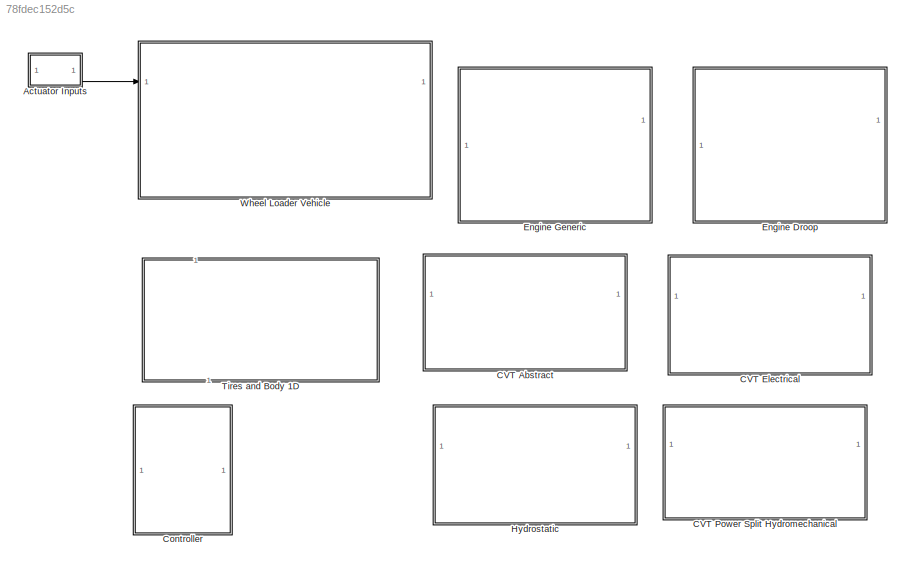
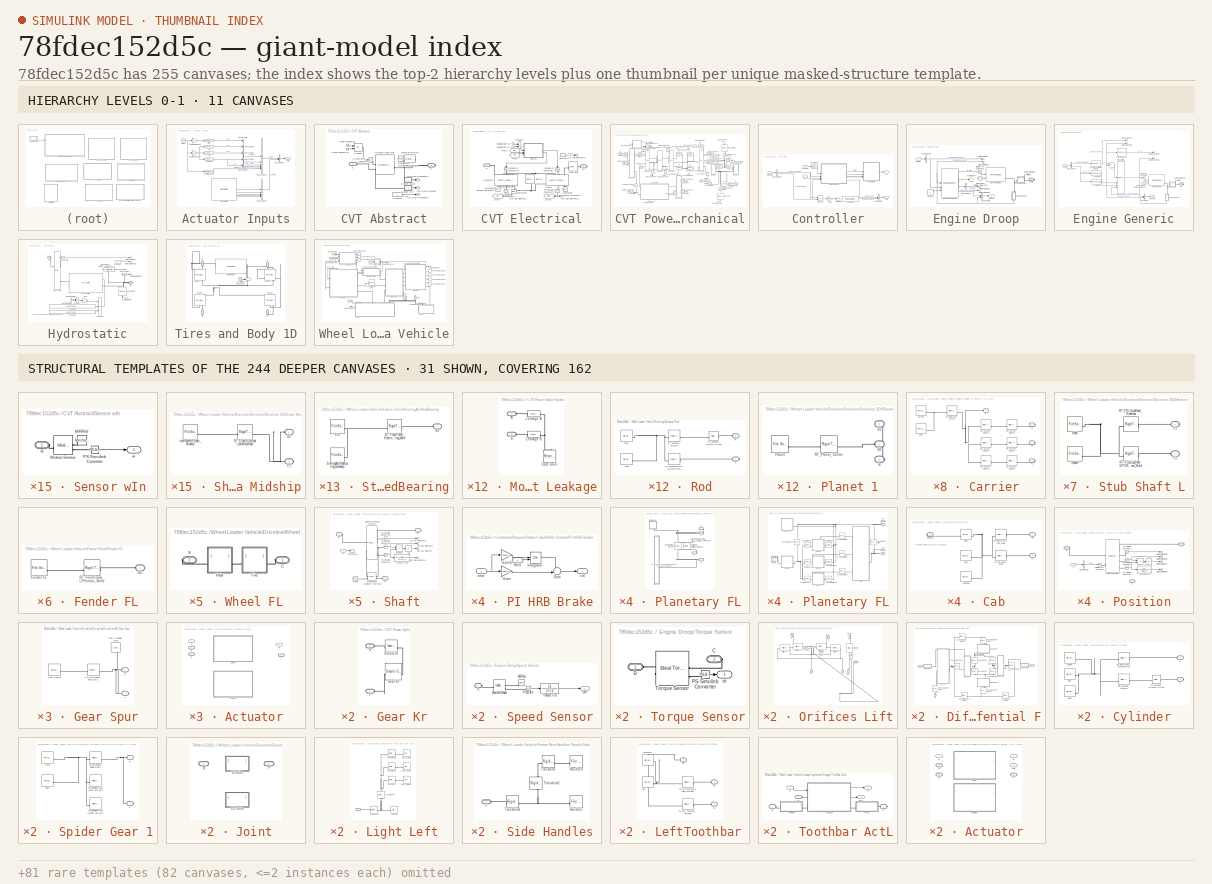
[diagram: thumbnail index - top-2 hierarchy levels (11 canvases) + 31 structural-template representatives of the remaining 244 canvases]
MODEL slx_78fdec152d5c
KIND library
CONFIG SolverName = VariableStepAuto
BLOCK [SubSystem] Actuator Inputs
  AttributesFormatString = %<popup_impl>
BLOCK [BusCreator] Actuator Inputs/Bus Creator
  DisplayOption = bar
  InheritFromInputs = on
  Inputs = 1
BLOCK [BusCreator] Actuator Inputs/Bus Creator1
  DisplayOption = bar
  InheritFromInputs = on
  Inputs = 1
BLOCK [BusCreator] Actuator Inputs/Bus Creator2
  DisplayOption = bar
  InheritFromInputs = on
  Inputs = 1
BLOCK [BusCreator] Actuator Inputs/Bus Creator3
  DisplayOption = bar
  InheritFromInputs = on
  Inputs = 1
BLOCK [BusCreator] Actuator Inputs/Bus Creator4
  DisplayOption = bar
  InheritFromInputs = on
  Inputs = 1
BLOCK [BusCreator] Actuator Inputs/Bus Creator5
  DisplayOption = bar
  InheritFromInputs = on
  Inputs = 6
BLOCK [BusCreator] Actuator Inputs/Bus Creator6
  DisplayOption = bar
  InheritFromInputs = on
  Inputs = 5
BLOCK [BusCreator] Actuator Inputs/Bus Creator7
  DisplayOption = bar
  InheritFromInputs = on
  Inputs = 2
BLOCK [Clock] Actuator Inputs/Clock
BLOCK [Outport] Actuator Inputs/Cmd
BLOCK [Gain] Actuator Inputs/Enable Linkage
BLOCK [Gain] Actuator Inputs/Enable Steering
BLOCK [Lookup_n-D] Actuator Inputs/Inertia Bucket
  BreakpointsForDimension1 = testInput.Active.bucketLoad.t
  InputPortMap = u0
  InternalRulePriority = Speed
  NumberOfTableDimensions = 1
  RndMeth = Simplest
  Table = testInput.Active.bucketLoad.z
BLOCK [Lookup_n-D] Actuator Inputs/Lift
  BreakpointsForDimension1 = testInput.Active.Lift.t
  InputPortMap = u0
  InternalRulePriority = Speed
  InterpMethod = Cubic spline
  NumberOfTableDimensions = 1
  RndMeth = Simplest
  Table = testInput.Active.Lift.p*1000
BLOCK [Reference] Actuator Inputs/Signal Editor  REF=SignalEditorBlockLib/Signal Editor
  LibrarySourceBlock = simulink/Sources/Signal Editor
  SourceBlock = SignalEditorBlockLib/Signal Editor
  SourceType = SignalEditor
  UserDataPersistent = on
BLOCK [Lookup_n-D] Actuator Inputs/Steer
  BreakpointsForDimension1 = testInput.Active.Steer.t
  InputPortMap = u0
  InternalRulePriority = Speed
  InterpMethod = Akima spline
  NumberOfTableDimensions = 1
  RndMeth = Simplest
  Table = testInput.Active.Steer.p*1000
BLOCK [Lookup_n-D] Actuator Inputs/Tilt
  BreakpointsForDimension1 = testInput.Active.Tilt.t
  InputPortMap = u0
  InternalRulePriority = Speed
  InterpMethod = Cubic spline
  NumberOfTableDimensions = 1
  RndMeth = Simplest
  Table = testInput.Active.Tilt.p*1000
BLOCK [Lookup_n-D] Actuator Inputs/Toothbar
  BreakpointsForDimension1 = testInput.Active.Toothbar.t
  InputPortMap = u0
  InternalRulePriority = Speed
  NumberOfTableDimensions = 1
  RndMeth = Simplest
  Table = testInput.Active.Toothbar.p
BLOCK [SubSystem] CVT Abstract
BLOCK [Reference] CVT Abstract/Bearing Friction  REF=sdl_lib/Couplings & Drives/Springs & Dampers/Rotational Damper
  NameLocation = top
  SourceBlock = sdl_lib/Couplings & Drives/Springs & Dampers/Rotational Damper
  SourceType = Rotational Damper
BLOCK [Inport] CVT Abstract/BusElementIn1
BLOCK [Inport] CVT Abstract/BusElementIn2
BLOCK [Constant] CVT Abstract/Constant
  Value = 0
BLOCK [PMIOPort] CVT Abstract/D
  Port = 2
  Side = Right
BLOCK [PMIOPort] CVT Abstract/E
  Side = Left
BLOCK [Reference] CVT Abstract/Mechanical Rotational Reference  REF=fl_lib/Mechanical/Rotational Elements/Mechanical
Rotational Reference
  SourceBlock = fl_lib/Mechanical/Rotational Elements/Mechanical\nRotational Reference
  SourceType = Mechanical\nRotational Reference
BLOCK [Outport] CVT Abstract/Out Bus Element
BLOCK [Outport] CVT Abstract/Out Bus Element11
  NameLocation = top
BLOCK [Outport] CVT Abstract/Out Bus Element12
BLOCK [Product] CVT Abstract/Product
BLOCK [SubSystem] CVT Abstract/Sensor wIn
  NameLocation = top
BLOCK [Reference] CVT Abstract/Sensor wIn/MRRef  REF=fl_lib/Mechanical/Rotational Elements/Mechanical
Rotational Reference
  NameLocation = right
  SourceBlock = fl_lib/Mechanical/Rotational Elements/Mechanical\nRotational Reference
  SourceType = Mechanical\nRotational Reference
BLOCK [Reference] CVT Abstract/Sensor wIn/Motion Sensor  REF=fl_lib/Mechanical/Mechanical Sensors/Ideal Rotational
Motion Sensor
  SourceBlock = fl_lib/Mechanical/Mechanical Sensors/Ideal Rotational\nMotion Sensor
  SourceType = Ideal Rotational\nMotion Sensor
BLOCK [Reference] CVT Abstract/Sensor wIn/PS-Simulink Converter  REF=nesl_utility/PS-Simulink
Converter
  SourceBlock = nesl_utility/PS-Simulink\nConverter
  SourceType = PS-Simulink\nConverter
BLOCK [PMIOPort] CVT Abstract/Sensor wIn/R
  Side = Left
BLOCK [Outport] CVT Abstract/Sensor wIn/w
BLOCK [SubSystem] CVT Abstract/Sensor wOut
  NameLocation = top
BLOCK [Reference] CVT Abstract/Sensor wOut/MRRef  REF=fl_lib/Mechanical/Rotational Elements/Mechanical
Rotational Reference
  NameLocation = right
  SourceBlock = fl_lib/Mechanical/Rotational Elements/Mechanical\nRotational Reference
  SourceType = Mechanical\nRotational Reference
BLOCK [Reference] CVT Abstract/Sensor wOut/Motion Sensor  REF=fl_lib/Mechanical/Mechanical Sensors/Ideal Rotational
Motion Sensor
  SourceBlock = fl_lib/Mechanical/Mechanical Sensors/Ideal Rotational\nMotion Sensor
  SourceType = Ideal Rotational\nMotion Sensor
BLOCK [Reference] CVT Abstract/Sensor wOut/PS-Simulink Converter  REF=nesl_utility/PS-Simulink
Converter
  SourceBlock = nesl_utility/PS-Simulink\nConverter
  SourceType = PS-Simulink\nConverter
BLOCK [PMIOPort] CVT Abstract/Sensor wOut/R
  Side = Left
BLOCK [Outport] CVT Abstract/Sensor wOut/w
BLOCK [Reference] CVT Abstract/Simulink-PS Converter  REF=nesl_utility/Simulink-PS
Converter
  SourceBlock = nesl_utility/Simulink-PS\nConverter
  SourceType = Simulink-PS\nConverter
BLOCK [Reference] CVT Abstract/Variable Gear Box  REF=cvt_components_lib/Variable  (lib defined in slx_8b8a1d3bcfde, slx_9261503687ac, +1 more)
Gear Box
  SourceBlock = cvt_components_lib/Variable\nGear Box
  SourceType = Variable Ratio Gear Box
BLOCK [SubSystem] CVT Electrical
  VariantControl = Electrical
BLOCK [Reference] CVT Electrical/Battery  REF=batteryecm_lib/Battery
  LibrarySourceBlock = ee_lib/Sources/Battery
  NameLocation = right
  SourceBlock = batteryecm_lib/Battery
  SourceType = Battery
BLOCK [Inport] CVT Electrical/BusElementIn1
BLOCK [Inport] CVT Electrical/BusElementIn2
BLOCK [Constant] CVT Electrical/Constant
  Value = 0
BLOCK [SubSystem] CVT Electrical/Control
BLOCK [SubSystem] CVT Electrical/Control/Control
BLOCK [Integrator] CVT Electrical/Control/Control/Integrator
BLOCK [Gain] CVT Electrical/Control/Control/Ki
  Gain = HMPST.Control.Ki
BLOCK [Gain] CVT Electrical/Control/Control/Kp
  Gain = HMPST.Control.Kp
BLOCK [Sum] CVT Electrical/Control/Control/Sum
  Inputs = +-|
BLOCK [Sum] CVT Electrical/Control/Control/Sum1
  Inputs = ++|
BLOCK [Reference] CVT Electrical/Control/Control/Transfer Fcn (with initial states)  REF=simulink_extras/Additional
Linear/Transfer Fcn
(with initial states)
  SourceBlock = simulink_extras/Additional\nLinear/Transfer Fcn\n(with initial states)
  SourceType = Transfer Function with Initial States
BLOCK [Outport] CVT Electrical/Control/Control/Trq
BLOCK [Inport] CVT Electrical/Control/Control/wCmd
BLOCK [Inport] CVT Electrical/Control/Control/wMeas
  Port = 2
BLOCK [Gain] CVT Electrical/Control/Gain
  Gain = -1
BLOCK [Product] CVT Electrical/Control/Product
BLOCK [Product] CVT Electrical/Control/Product1
BLOCK [Inport] CVT Electrical/Control/ratioCmd
BLOCK [Outport] CVT Electrical/Control/trqGen
  Port = 2
BLOCK [Outport] CVT Electrical/Control/trqMot
BLOCK [Inport] CVT Electrical/Control/wIn
  Port = 3
BLOCK [Inport] CVT Electrical/Control/wOut
  Port = 2
BLOCK [PMIOPort] CVT Electrical/D
  Port = 2
  Side = Right
BLOCK [PMIOPort] CVT Electrical/E
  Side = Left
BLOCK [Reference] CVT Electrical/Electrical Reference  REF=fl_lib/Electrical/Electrical Elements/Electrical Reference
  NameLocation = right
  SourceBlock = fl_lib/Electrical/Electrical Elements/Electrical Reference
  SourceType = Electrical Reference
BLOCK [From] CVT Electrical/From
  GotoTag = wIn
BLOCK [From] CVT Electrical/From1
  GotoTag = wOut
BLOCK [Reference] CVT Electrical/Gear Box  REF=fl_lib/Mechanical/Mechanisms/Gear Box
  SourceBlock = fl_lib/Mechanical/Mechanisms/Gear Box
  SourceType = Gear Box
BLOCK [Reference] CVT Electrical/Generator  REF=ee_lib/Electromechanical/Motor & Drive
(System Level)
  NameLocation = left
  SourceBlock = ee_lib/Electromechanical/Motor & Drive\n(System Level)
  SourceType = Motor & Drive\n(System Level)
BLOCK [Goto] CVT Electrical/Goto
  GotoTag = wIn
BLOCK [Goto] CVT Electrical/Goto1
  GotoTag = wOut
  NameLocation = top
BLOCK [Reference] CVT Electrical/Mechanical Rotational Reference  REF=fl_lib/Mechanical/Rotational Elements/Mechanical
Rotational Reference
  NameLocation = right
  SourceBlock = fl_lib/Mechanical/Rotational Elements/Mechanical\nRotational Reference
  SourceType = Mechanical\nRotational Reference
BLOCK [Reference] CVT Electrical/Mechanical Rotational Reference1  REF=fl_lib/Mechanical/Rotational Elements/Mechanical
Rotational Reference
  NameLocation = right
  SourceBlock = fl_lib/Mechanical/Rotational Elements/Mechanical\nRotational Reference
  SourceType = Mechanical\nRotational Reference
BLOCK [Reference] CVT Electrical/Motor  REF=ee_lib/Electromechanical/Motor & Drive
(System Level)
  NameLocation = right
  SourceBlock = ee_lib/Electromechanical/Motor & Drive\n(System Level)
  SourceType = Motor & Drive\n(System Level)
BLOCK [Outport] CVT Electrical/Out Bus Element1
  NameLocation = top
BLOCK [Outport] CVT Electrical/Out Bus Element11
  NameLocation = top
BLOCK [Outport] CVT Electrical/Out Bus Element12
BLOCK [Reference] CVT Electrical/PS-Simulink Converter2  REF=nesl_utility/PS-Simulink
Converter
  NameLocation = left
  SourceBlock = nesl_utility/PS-Simulink\nConverter
  SourceType = PS-Simulink\nConverter
BLOCK [Reference] CVT Electrical/PS-Simulink Converter3  REF=nesl_utility/PS-Simulink
Converter
  NameLocation = left
  SourceBlock = nesl_utility/PS-Simulink\nConverter
  SourceType = PS-Simulink\nConverter
BLOCK [Product] CVT Electrical/Product2
BLOCK [Reference] CVT Electrical/Simulink-PS Converter1  REF=nesl_utility/Simulink-PS
Converter
  NameLocation = left
  SourceBlock = nesl_utility/Simulink-PS\nConverter
  SourceType = Simulink-PS\nConverter
BLOCK [Reference] CVT Electrical/Simulink-PS Converter2  REF=nesl_utility/Simulink-PS
Converter
  NameLocation = left
  SourceBlock = nesl_utility/Simulink-PS\nConverter
  SourceType = Simulink-PS\nConverter
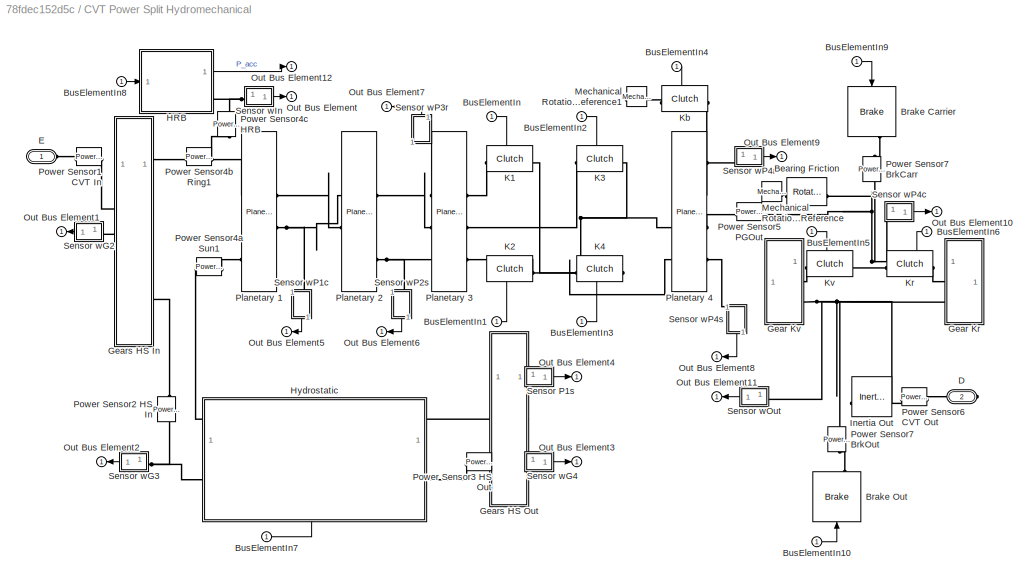
BLOCK [SubSystem] CVT Power Split Hydromechanical
BLOCK [Reference] CVT Power Split Hydromechanical/Bearing Friction  REF=sdl_lib/Couplings & Drives/Springs & Dampers/Rotational Damper
  NameLocation = top
  SourceBlock = sdl_lib/Couplings & Drives/Springs & Dampers/Rotational Damper
  SourceType = Rotational Damper
BLOCK [Reference] CVT Power Split Hydromechanical/Brake Carrier  REF=cvt_components_lib/Brake  (lib defined in slx_8b8a1d3bcfde, slx_9261503687ac, +1 more)
  NameLocation = right
  SourceBlock = cvt_components_lib/Brake
  SourceType = Disk Brake
BLOCK [Reference] CVT Power Split Hydromechanical/Brake Out  REF=cvt_components_lib/Brake  (lib defined in slx_8b8a1d3bcfde, slx_9261503687ac, +1 more)
  NameLocation = left
  SourceBlock = cvt_components_lib/Brake
  SourceType = Disk Brake
BLOCK [Inport] CVT Power Split Hydromechanical/BusElementIn
BLOCK [Inport] CVT Power Split Hydromechanical/BusElementIn1
BLOCK [Inport] CVT Power Split Hydromechanical/BusElementIn10
  NameLocation = top
BLOCK [Inport] CVT Power Split Hydromechanical/BusElementIn2
BLOCK [Inport] CVT Power Split Hydromechanical/BusElementIn3
BLOCK [Inport] CVT Power Split Hydromechanical/BusElementIn4
BLOCK [Inport] CVT Power Split Hydromechanical/BusElementIn5
  NameLocation = top
BLOCK [Inport] CVT Power Split Hydromechanical/BusElementIn6
  NameLocation = top
BLOCK [Inport] CVT Power Split Hydromechanical/BusElementIn7
BLOCK [Inport] CVT Power Split Hydromechanical/BusElementIn8
BLOCK [Inport] CVT Power Split Hydromechanical/BusElementIn9
  NameLocation = top
BLOCK [PMIOPort] CVT Power Split Hydromechanical/D
  Port = 2
  Side = Right
BLOCK [PMIOPort] CVT Power Split Hydromechanical/E
  Side = Left
BLOCK [SubSystem] CVT Power Split Hydromechanical/Gear Kr
BLOCK [PMIOPort] CVT Power Split Hydromechanical/Gear Kr/     B
  Side = Left
BLOCK [PMIOPort] CVT Power Split Hydromechanical/Gear Kr/    F
  Port = 2
  Side = Left
BLOCK [Reference] CVT Power Split Hydromechanical/Gear Kr/Gear Kr  REF=sdl_lib/Gears/Simple Gear
  SourceBlock = sdl_lib/Gears/Simple Gear
  SourceType = Simple Gear
BLOCK [Reference] CVT Power Split Hydromechanical/Gear Kr/Inertia Kr  REF=fl_lib/Mechanical/Rotational Elements/Inertia
  SourceBlock = fl_lib/Mechanical/Rotational Elements/Inertia
  SourceType = Inertia
BLOCK [SubSystem] CVT Power Split Hydromechanical/Gear Kv
BLOCK [PMIOPort] CVT Power Split Hydromechanical/Gear Kv/B
  Side = Right
BLOCK [PMIOPort] CVT Power Split Hydromechanical/Gear Kv/F
  Port = 2
  Side = Right
BLOCK [Reference] CVT Power Split Hydromechanical/Gear Kv/Gear Kv  REF=sdl_lib/Gears/Simple Gear
  SourceBlock = sdl_lib/Gears/Simple Gear
  SourceType = Simple Gear
BLOCK [Reference] CVT Power Split Hydromechanical/Gear Kv/Inertia Kv  REF=fl_lib/Mechanical/Rotational Elements/Inertia
  SourceBlock = fl_lib/Mechanical/Rotational Elements/Inertia
  SourceType = Inertia
BLOCK [SubSystem] CVT Power Split Hydromechanical/Gears HS In
BLOCK [PMIOPort] CVT Power Split Hydromechanical/Gears HS In/    E
  Side = Left
BLOCK [PMIOPort] CVT Power Split Hydromechanical/Gears HS In/    H
  Port = 5
  Side = Left
BLOCK [PMIOPort] CVT Power Split Hydromechanical/Gears HS In/    I
  Port = 3
  Side = Left
BLOCK [PMIOPort] CVT Power Split Hydromechanical/Gears HS In/E
  Port = 2
  Side = Right
BLOCK [Reference] CVT Power Split Hydromechanical/Gears HS In/Gear 1_2  REF=sdl_lib/Gears/Simple Gear
  NameLocation = left
  SourceBlock = sdl_lib/Gears/Simple Gear
  SourceType = Simple Gear
BLOCK [Reference] CVT Power Split Hydromechanical/Gears HS In/Gear 2_3  REF=sdl_lib/Gears/Simple Gear
  NameLocation = left
  SourceBlock = sdl_lib/Gears/Simple Gear
  SourceType = Simple Gear
BLOCK [PMIOPort] CVT Power Split Hydromechanical/Gears HS In/H
  Port = 6
  Side = Right
BLOCK [PMIOPort] CVT Power Split Hydromechanical/Gears HS In/I
  Port = 4
  Side = Right
BLOCK [SubSystem] CVT Power Split Hydromechanical/Gears HS Out
BLOCK [PMIOPort] CVT Power Split Hydromechanical/Gears HS Out/    B
  Port = 3
  Side = Left
BLOCK [PMIOPort] CVT Power Split Hydromechanical/Gears HS Out/    F
  Side = Left
BLOCK [PMIOPort] CVT Power Split Hydromechanical/Gears HS Out/B
  Port = 4
  Side = Right
BLOCK [PMIOPort] CVT Power Split Hydromechanical/Gears HS Out/F
  Port = 2
  Side = Right
BLOCK [Reference] CVT Power Split Hydromechanical/Gears HS Out/Gear 4_5  REF=sdl_lib/Gears/Simple Gear
  NameLocation = right
  SourceBlock = sdl_lib/Gears/Simple Gear
  SourceType = Simple Gear
BLOCK [SubSystem] CVT Power Split Hydromechanical/HRB
BLOCK [Constant] CVT Power Split Hydromechanical/HRB/Constant
  Value = HMPST.HRB.Pump.effVol
BLOCK [Constant] CVT Power Split Hydromechanical/HRB/Constant1
  Value = HMPST.HRB.Pump.effMech
BLOCK [Reference] CVT Power Split Hydromechanical/HRB/Custom Hydraulic Fluid  REF=fl_lib/Isothermal Liquid/Utilities/Isothermal Liquid
Properties (IL)
  LibrarySourceBlock = fl_lib/Hydraulic/Hydraulic Utilities/Custom Hydraulic\nFluid
  NameLocation = right
  SourceBlock = fl_lib/Isothermal Liquid/Utilities/Isothermal Liquid\nProperties (IL)
  SourceType = Isothermal Liquid\nProperties (IL)
BLOCK [Reference] CVT Power Split Hydromechanical/HRB/Gas-Charged Accumulator  REF=SimscapeFluids_lib/Isothermal Liquid/Tanks & Accumulators/Gas-Charged
Accumulator (IL)
  LibrarySourceBlock = sh_lib/Accumulators/Gas-Charged\nAccumulator
  SourceBlock = SimscapeFluids_lib/Isothermal Liquid/Tanks & Accumulators/Gas-Charged\nAccumulator (IL)
  SourceType = Gas-Charged\nAccumulator (IL)
BLOCK [Reference] CVT Power Split Hydromechanical/HRB/Maximum displacement  REF=fl_lib/Physical Signals/Nonlinear Operators/PS Saturation
  SourceBlock = fl_lib/Physical Signals/Nonlinear Operators/PS Saturation
  SourceType = PS Saturation
BLOCK [Reference] CVT Power Split Hydromechanical/HRB/Mechanical Rotational Reference  REF=fl_lib/Mechanical/Rotational Elements/Mechanical
Rotational Reference
  NameLocation = top
  SourceBlock = fl_lib/Mechanical/Rotational Elements/Mechanical\nRotational Reference
  SourceType = Mechanical\nRotational Reference
BLOCK [Reference] CVT Power Split Hydromechanical/HRB/Pressure Relief Valve  REF=SimscapeFluids_lib/Isothermal Liquid/Valves & Orifices/Pressure Control
Valves/Pressure Relief
Valve (IL)
  LibrarySourceBlock = sh_lib/Valves/Pressure Control\nValves/Pressure Relief\nValve
  NameLocation = right
  SourceBlock = SimscapeFluids_lib/Isothermal Liquid/Valves & Orifices/Pressure Control\nValves/Pressure Relief\nValve (IL)
  SourceType = Pressure Relief\nValve (IL)
BLOCK [PMIOPort] CVT Power Split Hydromechanical/HRB/R
  Side = Right
BLOCK [Reference] CVT Power Split Hydromechanical/HRB/Reservoir  REF=fl_lib/Isothermal Liquid/Elements/Reservoir (IL)
  LibrarySourceBlock = fl_lib/Hydraulic/Hydraulic Elements/Hydraulic Reference
  NameLocation = right
  SourceBlock = fl_lib/Isothermal Liquid/Elements/Reservoir (IL)
  SourceType = Reservoir (IL)
BLOCK [Reference] CVT Power Split Hydromechanical/HRB/Simulink-PS Converter  REF=nesl_utility/Simulink-PS
Converter
  SourceBlock = nesl_utility/Simulink-PS\nConverter
  SourceType = Simulink-PS\nConverter
BLOCK [Reference] CVT Power Split Hydromechanical/HRB/Simulink-PS Converter1  REF=nesl_utility/Simulink-PS
Converter
  SourceBlock = nesl_utility/Simulink-PS\nConverter
  SourceType = Simulink-PS\nConverter
BLOCK [Reference] CVT Power Split Hydromechanical/HRB/Simulink-PS Converter3  REF=nesl_utility/Simulink-PS
Converter
  SourceBlock = nesl_utility/Simulink-PS\nConverter
  SourceType = Simulink-PS\nConverter
BLOCK [SubSystem] CVT Power Split Hydromechanical/HRB/Subsystem
BLOCK [PMIOPort] CVT Power Split Hydromechanical/HRB/Subsystem/A
  Side = Left
BLOCK [Reference] CVT Power Split Hydromechanical/HRB/Subsystem/Hydraulic Pressure Sensor  REF=fl_lib/Isothermal Liquid/Sensors/Pressure Sensor (IL)
  LibrarySourceBlock = fl_lib/Hydraulic/Hydraulic Sensors/Hydraulic Pressure\nSensor
  SourceBlock = fl_lib/Isothermal Liquid/Sensors/Pressure Sensor (IL)
  SourceType = Pressure Sensor (IL)
BLOCK [Reference] CVT Power Split Hydromechanical/HRB/Subsystem/Hydraulic Reference1  REF=fl_lib/Isothermal Liquid/Elements/Reservoir (IL)
  LibrarySourceBlock = fl_lib/Hydraulic/Hydraulic Elements/Hydraulic Reference
  NameLocation = right
  SourceBlock = fl_lib/Isothermal Liquid/Elements/Reservoir (IL)
  SourceType = Reservoir (IL)
BLOCK [Reference] CVT Power Split Hydromechanical/HRB/Subsystem/PS-Simulink Converter  REF=nesl_utility/PS-Simulink
Converter
  SourceBlock = nesl_utility/PS-Simulink\nConverter
  SourceType = PS-Simulink\nConverter
BLOCK [Outport] CVT Power Split Hydromechanical/HRB/Subsystem/p
BLOCK [TransferFcn] CVT Power Split Hydromechanical/HRB/Transfer Fcn7
  Denominator = HMPST.Ctrl.HRB.Den
  Numerator = HMPST.Ctrl.HRB.Num
BLOCK [Reference] CVT Power Split Hydromechanical/HRB/Variable-Displacement Hydraulic Machine  REF=SimscapeFluids_lib/Isothermal Liquid/Pumps & Motors/Variable-Displacement
Motor (IL)
  LibrarySourceBlock = sh_legacy_lib/Hydraulic Machines/Variable-Displacement\nHydraulic Machine\n(External\nEfficiencies)
  NameLocation = right
  SourceBlock = SimscapeFluids_lib/Isothermal Liquid/Pumps & Motors/Variable-Displacement\nMotor (IL)
  SourceType = Variable-Displacement\nMotor (IL)
BLOCK [Outport] CVT Power Split Hydromechanical/HRB/p
BLOCK [Inport] CVT Power Split Hydromechanical/HRB/str
BLOCK [Reference] CVT Power Split Hydromechanical/HRB/stroke2disp  REF=fl_lib/Physical Signals/Functions/PS Gain
  SourceBlock = fl_lib/Physical Signals/Functions/PS Gain
  SourceType = PS Gain
BLOCK [SubSystem] CVT Power Split Hydromechanical/Hydrostatic
  NameLocation = top
  PortSchema = {"entries":[{"content":{"sides":[{"content":{"connectorIds":["LConn1"]},"type":"ConnectorPlacement.EquallySpacedRectSide","uuid":"eaa3b61f-d017-4906-bbf2-8ecd84d259f8"},{"content":{"connectorIds":["RConn1"],"side":"RIGHT"},"type":"ConnectorPlacement.EquallySpacedRectSide","uuid":"0fbcb9a0-a672-4528-9ae6-239f56fc7398"},{"content":{"side":"TOP"},"type":"ConnectorPlacement.EquallySpacedRectSide","uui...<+376ch>
BLOCK [Reference] CVT Power Split Hydromechanical/Hydrostatic/CV Charge Pump  REF=fl_lib/Isothermal Liquid/Elements/Constant Volume
Chamber (IL)
  NameLocation = top
  SourceBlock = fl_lib/Isothermal Liquid/Elements/Constant Volume\nChamber (IL)
  SourceType = Constant Volume\nChamber (IL)
BLOCK [Reference] CVT Power Split Hydromechanical/Hydrostatic/CV Motor A  REF=fl_lib/Isothermal Liquid/Elements/Constant Volume
Chamber (IL)
  NameLocation = left
  SourceBlock = fl_lib/Isothermal Liquid/Elements/Constant Volume\nChamber (IL)
  SourceType = Constant Volume\nChamber (IL)
BLOCK [Reference] CVT Power Split Hydromechanical/Hydrostatic/CV Motor B  REF=fl_lib/Isothermal Liquid/Elements/Constant Volume
Chamber (IL)
  NameLocation = left
  SourceBlock = fl_lib/Isothermal Liquid/Elements/Constant Volume\nChamber (IL)
  SourceType = Constant Volume\nChamber (IL)
BLOCK [Reference] CVT Power Split Hydromechanical/Hydrostatic/CV Pump A  REF=fl_lib/Isothermal Liquid/Elements/Constant Volume
Chamber (IL)
  NameLocation = left
  SourceBlock = fl_lib/Isothermal Liquid/Elements/Constant Volume\nChamber (IL)
  SourceType = Constant Volume\nChamber (IL)
BLOCK [Reference] CVT Power Split Hydromechanical/Hydrostatic/CV Pump B  REF=fl_lib/Isothermal Liquid/Elements/Constant Volume
Chamber (IL)
  NameLocation = left
  SourceBlock = fl_lib/Isothermal Liquid/Elements/Constant Volume\nChamber (IL)
  SourceType = Constant Volume\nChamber (IL)
BLOCK [SubSystem] CVT Power Split Hydromechanical/Hydrostatic/Charge Pump
  Tag = PublishSubsystem
BLOCK [PMIOPort] CVT Power Split Hydromechanical/Hydrostatic/Charge Pump/C
  NameLocation = top
  Port = 2
  Side = Left
BLOCK [Reference] CVT Power Split Hydromechanical/Hydrostatic/Charge Pump/Mechanical Rotational Reference  REF=fl_lib/Mechanical/Rotational Elements/Mechanical
Rotational Reference
  NameLocation = right
  SourceBlock = fl_lib/Mechanical/Rotational Elements/Mechanical\nRotational Reference
  SourceType = Mechanical\nRotational Reference
BLOCK [PMIOPort] CVT Power Split Hydromechanical/Hydrostatic/Charge Pump/Outlet
  Side = Right
BLOCK [Reference] CVT Power Split Hydromechanical/Hydrostatic/Charge Pump/Pressure Relief Valve  REF=SimscapeFluids_lib/Isothermal Liquid/Valves & Orifices/Pressure Control
Valves/Pressure Relief
Valve (IL)
  NameLocation = right
  SourceBlock = SimscapeFluids_lib/Isothermal Liquid/Valves & Orifices/Pressure Control\nValves/Pressure Relief\nValve (IL)
  SourceType = Pressure Relief\nValve (IL)
BLOCK [Reference] CVT Power Split Hydromechanical/Hydrostatic/Charge Pump/Pump  REF=SimscapeFluids_lib/Isothermal Liquid/Pumps & Motors/Fixed-Displacement
Pump (IL)
  NameLocation = right
  SourceBlock = SimscapeFluids_lib/Isothermal Liquid/Pumps & Motors/Fixed-Displacement\nPump (IL)
  SourceType = Fixed-Displacement\nPump (IL)
BLOCK [Reference] CVT Power Split Hydromechanical/Hydrostatic/Charge Pump/Reservoir (IL)  REF=fl_lib/Isothermal Liquid/Elements/Reservoir (IL)
  NameLocation = right
  SourceBlock = fl_lib/Isothermal Liquid/Elements/Reservoir (IL)
  SourceType = Reservoir (IL)
BLOCK [Reference] CVT Power Split Hydromechanical/Hydrostatic/Check Valve A  REF=SimscapeFluids_lib/Isothermal Liquid/Valves & Orifices/Directional Control
Valves/Check Valve (IL)
  NameLocation = right
  SourceBlock = SimscapeFluids_lib/Isothermal Liquid/Valves & Orifices/Directional Control\nValves/Check Valve (IL)
  SourceType = Check Valve (IL)
BLOCK [Reference] CVT Power Split Hydromechanical/Hydrostatic/Check Valve B  REF=SimscapeFluids_lib/Isothermal Liquid/Valves & Orifices/Directional Control
Valves/Check Valve (IL)
  NameLocation = right
  SourceBlock = SimscapeFluids_lib/Isothermal Liquid/Valves & Orifices/Directional Control\nValves/Check Valve (IL)
  SourceType = Check Valve (IL)
BLOCK [Inport] CVT Power Split Hydromechanical/Hydrostatic/Ctrl
BLOCK [Gain] CVT Power Split Hydromechanical/Hydrostatic/Gain1
  Gain = pumpNomDisp
BLOCK [Gain] CVT Power Split Hydromechanical/Hydrostatic/Gain2
  Gain = -1
BLOCK [PMIOPort] CVT Power Split Hydromechanical/Hydrostatic/In
  Side = Left
BLOCK [Reference] CVT Power Split Hydromechanical/Hydrostatic/Mechanical Rotational Reference  REF=fl_lib/Mechanical/Rotational Elements/Mechanical
Rotational Reference
  NameLocation = top
  SourceBlock = fl_lib/Mechanical/Rotational Elements/Mechanical\nRotational Reference
  SourceType = Mechanical\nRotational Reference
BLOCK [Reference] CVT Power Split Hydromechanical/Hydrostatic/Mechanical Rotational Reference1  REF=fl_lib/Mechanical/Rotational Elements/Mechanical
Rotational Reference
  SourceBlock = fl_lib/Mechanical/Rotational Elements/Mechanical\nRotational Reference
  SourceType = Mechanical\nRotational Reference
BLOCK [Reference] CVT Power Split Hydromechanical/Hydrostatic/Motor  REF=SimscapeFluids_lib/Isothermal Liquid/Pumps & Motors/Fixed-Displacement
Motor (IL)
  SourceBlock = SimscapeFluids_lib/Isothermal Liquid/Pumps & Motors/Fixed-Displacement\nMotor (IL)
  SourceType = Fixed-Displacement\nMotor (IL)
BLOCK [SubSystem] CVT Power Split Hydromechanical/Hydrostatic/Motor Leakage
  Tag = PublishSubsystem
BLOCK [PMIOPort] CVT Power Split Hydromechanical/Hydrostatic/Motor Leakage/A
  Side = Left
BLOCK [PMIOPort] CVT Power Split Hydromechanical/Hydrostatic/Motor Leakage/B
  Port = 2
  Side = Left
BLOCK [Reference] CVT Power Split Hydromechanical/Hydrostatic/Motor Leakage/Case Drain  REF=fl_lib/Isothermal Liquid/Elements/Reservoir (IL)
  NameLocation = right
  SourceBlock = fl_lib/Isothermal Liquid/Elements/Reservoir (IL)
  SourceType = Reservoir (IL)
BLOCK [Reference] CVT Power Split Hydromechanical/Hydrostatic/Motor Leakage/Leakage A  REF=fl_lib/Isothermal Liquid/Elements/Laminar Leakage (IL)
  SourceBlock = fl_lib/Isothermal Liquid/Elements/Laminar Leakage (IL)
  SourceType = Laminar Leakage (IL)
BLOCK [Reference] CVT Power Split Hydromechanical/Hydrostatic/Motor Leakage/Leakage B  REF=fl_lib/Isothermal Liquid/Elements/Laminar Leakage (IL)
  SourceBlock = fl_lib/Isothermal Liquid/Elements/Laminar Leakage (IL)
  SourceType = Laminar Leakage (IL)
BLOCK [PMIOPort] CVT Power Split Hydromechanical/Hydrostatic/Out
  Port = 2
  Side = Right
BLOCK [Reference] CVT Power Split Hydromechanical/Hydrostatic/Pipe A   REF=fl_lib/Isothermal Liquid/Elements/Pipe (IL)
  SourceBlock = fl_lib/Isothermal Liquid/Elements/Pipe (IL)
  SourceType = Pipe (IL)
BLOCK [Reference] CVT Power Split Hydromechanical/Hydrostatic/Pipe B  REF=fl_lib/Isothermal Liquid/Elements/Pipe (IL)
  SourceBlock = fl_lib/Isothermal Liquid/Elements/Pipe (IL)
  SourceType = Pipe (IL)
BLOCK [Reference] CVT Power Split Hydromechanical/Hydrostatic/Pressure Relief Valve A  REF=SimscapeFluids_lib/Isothermal Liquid/Valves & Orifices/Pressure Control
Valves/Pressure Relief
Valve (IL)
  NameLocation = left
  SourceBlock = SimscapeFluids_lib/Isothermal Liquid/Valves & Orifices/Pressure Control\nValves/Pressure Relief\nValve (IL)
  SourceType = Pressure Relief\nValve (IL)
BLOCK [Reference] CVT Power Split Hydromechanical/Hydrostatic/Pressure Relief Valve B  REF=SimscapeFluids_lib/Isothermal Liquid/Valves & Orifices/Pressure Control
Valves/Pressure Relief
Valve (IL)
  NameLocation = right
  SourceBlock = SimscapeFluids_lib/Isothermal Liquid/Valves & Orifices/Pressure Control\nValves/Pressure Relief\nValve (IL)
  SourceType = Pressure Relief\nValve (IL)
BLOCK [Reference] CVT Power Split Hydromechanical/Hydrostatic/Pump  REF=SimscapeFluids_lib/Isothermal Liquid/Pumps & Motors/Variable-Displacement
Pump (IL)
  SourceBlock = SimscapeFluids_lib/Isothermal Liquid/Pumps & Motors/Variable-Displacement\nPump (IL)
  SourceType = Variable-Displacement\nPump (IL)
BLOCK [SubSystem] CVT Power Split Hydromechanical/Hydrostatic/Pump Leakage
  Tag = PublishSubsystem
BLOCK [PMIOPort] CVT Power Split Hydromechanical/Hydrostatic/Pump Leakage/A
  Port = 2
  Side = Left
BLOCK [PMIOPort] CVT Power Split Hydromechanical/Hydrostatic/Pump Leakage/B
  Side = Left
BLOCK [Reference] CVT Power Split Hydromechanical/Hydrostatic/Pump Leakage/Case Drain  REF=fl_lib/Isothermal Liquid/Elements/Reservoir (IL)
  NameLocation = right
  SourceBlock = fl_lib/Isothermal Liquid/Elements/Reservoir (IL)
  SourceType = Reservoir (IL)
BLOCK [Reference] CVT Power Split Hydromechanical/Hydrostatic/Pump Leakage/Leakage A  REF=fl_lib/Isothermal Liquid/Elements/Laminar Leakage (IL)
  SourceBlock = fl_lib/Isothermal Liquid/Elements/Laminar Leakage (IL)
  SourceType = Laminar Leakage (IL)
BLOCK [Reference] CVT Power Split Hydromechanical/Hydrostatic/Pump Leakage/Leakage B  REF=fl_lib/Isothermal Liquid/Elements/Laminar Leakage (IL)
  SourceBlock = fl_lib/Isothermal Liquid/Elements/Laminar Leakage (IL)
  SourceType = Laminar Leakage (IL)
BLOCK [Reference] CVT Power Split Hydromechanical/Hydrostatic/Simulink-PS Converter1  REF=nesl_utility/Simulink-PS
Converter
  NameLocation = right
  SourceBlock = nesl_utility/Simulink-PS\nConverter
  SourceType = Simulink-PS\nConverter
BLOCK [Reference] CVT Power Split Hydromechanical/Hydrostatic/Transmission Fluid Properties  REF=fl_lib/Isothermal Liquid/Utilities/Isothermal Liquid
Properties (IL)
  SourceBlock = fl_lib/Isothermal Liquid/Utilities/Isothermal Liquid\nProperties (IL)
  SourceType = Isothermal Liquid\nProperties (IL)
BLOCK [Reference] CVT Power Split Hydromechanical/Inertia Out  REF=fl_lib/Mechanical/Rotational Elements/Inertia
  NameLocation = top
  SourceBlock = fl_lib/Mechanical/Rotational Elements/Inertia
  SourceType = Inertia
BLOCK [Reference] CVT Power Split Hydromechanical/K1  REF=cvt_components_lib/Clutch  (lib defined in slx_8b8a1d3bcfde, slx_9261503687ac, +1 more)
  SourceBlock = cvt_components_lib/Clutch
  SourceType = Clutch
BLOCK [Reference] CVT Power Split Hydromechanical/K2  REF=cvt_components_lib/Clutch  (lib defined in slx_8b8a1d3bcfde, slx_9261503687ac, +1 more)
  NameLocation = top
  SourceBlock = cvt_components_lib/Clutch
  SourceType = Clutch
BLOCK [Reference] CVT Power Split Hydromechanical/K3  REF=cvt_components_lib/Clutch  (lib defined in slx_8b8a1d3bcfde, slx_9261503687ac, +1 more)
  SourceBlock = cvt_components_lib/Clutch
  SourceType = Clutch
BLOCK [Reference] CVT Power Split Hydromechanical/K4  REF=cvt_components_lib/Clutch  (lib defined in slx_8b8a1d3bcfde, slx_9261503687ac, +1 more)
  NameLocation = top
  SourceBlock = cvt_components_lib/Clutch
  SourceType = Clutch
BLOCK [Reference] CVT Power Split Hydromechanical/Kb  REF=cvt_components_lib/Clutch  (lib defined in slx_8b8a1d3bcfde, slx_9261503687ac, +1 more)
  SourceBlock = cvt_components_lib/Clutch
  SourceType = Clutch
BLOCK [Reference] CVT Power Split Hydromechanical/Kr  REF=cvt_components_lib/Clutch  (lib defined in slx_8b8a1d3bcfde, slx_9261503687ac, +1 more)
  SourceBlock = cvt_components_lib/Clutch
  SourceType = Clutch
BLOCK [Reference] CVT Power Split Hydromechanical/Kv  REF=cvt_components_lib/Clutch  (lib defined in slx_8b8a1d3bcfde, slx_9261503687ac, +1 more)
  SourceBlock = cvt_components_lib/Clutch
  SourceType = Clutch
BLOCK [Reference] CVT Power Split Hydromechanical/Mechanical Rotational Reference  REF=fl_lib/Mechanical/Rotational Elements/Mechanical
Rotational Reference
  SourceBlock = fl_lib/Mechanical/Rotational Elements/Mechanical\nRotational Reference
  SourceType = Mechanical\nRotational Reference
BLOCK [Reference] CVT Power Split Hydromechanical/Mechanical Rotational Reference1  REF=fl_lib/Mechanical/Rotational Elements/Mechanical
Rotational Reference
  NameLocation = top
  SourceBlock = fl_lib/Mechanical/Rotational Elements/Mechanical\nRotational Reference
  SourceType = Mechanical\nRotational Reference
BLOCK [Outport] CVT Power Split Hydromechanical/Out Bus Element
BLOCK [Outport] CVT Power Split Hydromechanical/Out Bus Element1
BLOCK [Outport] CVT Power Split Hydromechanical/Out Bus Element10
  NameLocation = top
BLOCK [Outport] CVT Power Split Hydromechanical/Out Bus Element11
  NameLocation = top
BLOCK [Outport] CVT Power Split Hydromechanical/Out Bus Element12
BLOCK [Outport] CVT Power Split Hydromechanical/Out Bus Element2
BLOCK [Outport] CVT Power Split Hydromechanical/Out Bus Element3
BLOCK [Outport] CVT Power Split Hydromechanical/Out Bus Element4
  NameLocation = top
BLOCK [Outport] CVT Power Split Hydromechanical/Out Bus Element5
BLOCK [Outport] CVT Power Split Hydromechanical/Out Bus Element6
BLOCK [Outport] CVT Power Split Hydromechanical/Out Bus Element7
  NameLocation = top
BLOCK [Outport] CVT Power Split Hydromechanical/Out Bus Element8
BLOCK [Outport] CVT Power Split Hydromechanical/Out Bus Element9
  NameLocation = top
BLOCK [Reference] CVT Power Split Hydromechanical/Planetary 1  REF=cvt_components_lib/Planetary  (lib defined in slx_8b8a1d3bcfde, slx_9261503687ac, +1 more)
  SourceBlock = cvt_components_lib/Planetary
  SourceType = Planetary Gear
BLOCK [Reference] CVT Power Split Hydromechanical/Planetary 2  REF=cvt_components_lib/Planetary  (lib defined in slx_8b8a1d3bcfde, slx_9261503687ac, +1 more)
  SourceBlock = cvt_components_lib/Planetary
  SourceType = Planetary Gear
BLOCK [Reference] CVT Power Split Hydromechanical/Planetary 3  REF=cvt_components_lib/Planetary  (lib defined in slx_8b8a1d3bcfde, slx_9261503687ac, +1 more)
  SourceBlock = cvt_components_lib/Planetary
  SourceType = Planetary Gear
BLOCK [Reference] CVT Power Split Hydromechanical/Planetary 4  REF=cvt_components_lib/Planetary  (lib defined in slx_8b8a1d3bcfde, slx_9261503687ac, +1 more)
  SourceBlock = cvt_components_lib/Planetary
  SourceType = Planetary Gear
BLOCK [Reference] CVT Power Split Hydromechanical/Power Sensor1 CVT In  REF=cvt_components_lib/Power  (lib defined in slx_8b8a1d3bcfde, slx_9261503687ac, +1 more)
Sensor
  SourceBlock = cvt_components_lib/Power\nSensor
  SourceType = SubSystem
BLOCK [Reference] CVT Power Split Hydromechanical/Power Sensor2 HS In  REF=cvt_components_lib/Power  (lib defined in slx_8b8a1d3bcfde, slx_9261503687ac, +1 more)
Sensor
  NameLocation = left
  SourceBlock = cvt_components_lib/Power\nSensor
  SourceType = SubSystem
BLOCK [Reference] CVT Power Split Hydromechanical/Power Sensor3 HS Out  REF=cvt_components_lib/Power  (lib defined in slx_8b8a1d3bcfde, slx_9261503687ac, +1 more)
Sensor
  SourceBlock = cvt_components_lib/Power\nSensor
  SourceType = SubSystem
BLOCK [Reference] CVT Power Split Hydromechanical/Power Sensor4a Sun1  REF=cvt_components_lib/Power  (lib defined in slx_8b8a1d3bcfde, slx_9261503687ac, +1 more)
Sensor
  SourceBlock = cvt_components_lib/Power\nSensor
  SourceType = SubSystem
BLOCK [Reference] CVT Power Split Hydromechanical/Power Sensor4b Ring1  REF=cvt_components_lib/Power  (lib defined in slx_8b8a1d3bcfde, slx_9261503687ac, +1 more)
Sensor
  SourceBlock = cvt_components_lib/Power\nSensor
  SourceType = SubSystem
BLOCK [Reference] CVT Power Split Hydromechanical/Power Sensor4c HRB  REF=cvt_components_lib/Power  (lib defined in slx_8b8a1d3bcfde, slx_9261503687ac, +1 more)
Sensor
  NameLocation = right
  SourceBlock = cvt_components_lib/Power\nSensor
  SourceType = SubSystem
BLOCK [Reference] CVT Power Split Hydromechanical/Power Sensor5 PGOut  REF=cvt_components_lib/Power  (lib defined in slx_8b8a1d3bcfde, slx_9261503687ac, +1 more)
Sensor
  SourceBlock = cvt_components_lib/Power\nSensor
  SourceType = SubSystem
BLOCK [Reference] CVT Power Split Hydromechanical/Power Sensor6 CVT Out  REF=cvt_components_lib/Power  (lib defined in slx_8b8a1d3bcfde, slx_9261503687ac, +1 more)
Sensor
  SourceBlock = cvt_components_lib/Power\nSensor
  SourceType = SubSystem
BLOCK [Reference] CVT Power Split Hydromechanical/Power Sensor7 BrkCarr  REF=cvt_components_lib/Power  (lib defined in slx_8b8a1d3bcfde, slx_9261503687ac, +1 more)
Sensor
  NameLocation = right
  SourceBlock = cvt_components_lib/Power\nSensor
  SourceType = SubSystem
BLOCK [Reference] CVT Power Split Hydromechanical/Power Sensor7 BrkOut  REF=cvt_components_lib/Power  (lib defined in slx_8b8a1d3bcfde, slx_9261503687ac, +1 more)
Sensor
  NameLocation = right
  SourceBlock = cvt_components_lib/Power\nSensor
  SourceType = SubSystem
BLOCK [SubSystem] CVT Power Split Hydromechanical/Sensor P1s
BLOCK [Reference] CVT Power Split Hydromechanical/Sensor P1s/MRRef  REF=fl_lib/Mechanical/Rotational Elements/Mechanical
Rotational Reference
  NameLocation = right
  SourceBlock = fl_lib/Mechanical/Rotational Elements/Mechanical\nRotational Reference
  SourceType = Mechanical\nRotational Reference
BLOCK [Reference] CVT Power Split Hydromechanical/Sensor P1s/Motion Sensor  REF=fl_lib/Mechanical/Mechanical Sensors/Ideal Rotational
Motion Sensor
  SourceBlock = fl_lib/Mechanical/Mechanical Sensors/Ideal Rotational\nMotion Sensor
  SourceType = Ideal Rotational\nMotion Sensor
BLOCK [Reference] CVT Power Split Hydromechanical/Sensor P1s/PS-Simulink Converter  REF=nesl_utility/PS-Simulink
Converter
  SourceBlock = nesl_utility/PS-Simulink\nConverter
  SourceType = PS-Simulink\nConverter
BLOCK [PMIOPort] CVT Power Split Hydromechanical/Sensor P1s/R
  Side = Left
BLOCK [Outport] CVT Power Split Hydromechanical/Sensor P1s/w
BLOCK [SubSystem] CVT Power Split Hydromechanical/Sensor wG2
BLOCK [Reference] CVT Power Split Hydromechanical/Sensor wG2/MRRef  REF=fl_lib/Mechanical/Rotational Elements/Mechanical
Rotational Reference
  NameLocation = right
  SourceBlock = fl_lib/Mechanical/Rotational Elements/Mechanical\nRotational Reference
  SourceType = Mechanical\nRotational Reference
BLOCK [Reference] CVT Power Split Hydromechanical/Sensor wG2/Motion Sensor  REF=fl_lib/Mechanical/Mechanical Sensors/Ideal Rotational
Motion Sensor
  SourceBlock = fl_lib/Mechanical/Mechanical Sensors/Ideal Rotational\nMotion Sensor
  SourceType = Ideal Rotational\nMotion Sensor
BLOCK [Reference] CVT Power Split Hydromechanical/Sensor wG2/PS-Simulink Converter  REF=nesl_utility/PS-Simulink
Converter
  SourceBlock = nesl_utility/PS-Simulink\nConverter
  SourceType = PS-Simulink\nConverter
BLOCK [PMIOPort] CVT Power Split Hydromechanical/Sensor wG2/R
  Side = Left
BLOCK [Outport] CVT Power Split Hydromechanical/Sensor wG2/w
BLOCK [SubSystem] CVT Power Split Hydromechanical/Sensor wG3
BLOCK [Reference] CVT Power Split Hydromechanical/Sensor wG3/MRRef  REF=fl_lib/Mechanical/Rotational Elements/Mechanical
Rotational Reference
  NameLocation = right
  SourceBlock = fl_lib/Mechanical/Rotational Elements/Mechanical\nRotational Reference
  SourceType = Mechanical\nRotational Reference
BLOCK [Reference] CVT Power Split Hydromechanical/Sensor wG3/Motion Sensor  REF=fl_lib/Mechanical/Mechanical Sensors/Ideal Rotational
Motion Sensor
  SourceBlock = fl_lib/Mechanical/Mechanical Sensors/Ideal Rotational\nMotion Sensor
  SourceType = Ideal Rotational\nMotion Sensor
BLOCK [Reference] CVT Power Split Hydromechanical/Sensor wG3/PS-Simulink Converter  REF=nesl_utility/PS-Simulink
Converter
  SourceBlock = nesl_utility/PS-Simulink\nConverter
  SourceType = PS-Simulink\nConverter
BLOCK [PMIOPort] CVT Power Split Hydromechanical/Sensor wG3/R
  Side = Left
BLOCK [Outport] CVT Power Split Hydromechanical/Sensor wG3/w
BLOCK [SubSystem] CVT Power Split Hydromechanical/Sensor wG4
BLOCK [Reference] CVT Power Split Hydromechanical/Sensor wG4/MRRef  REF=fl_lib/Mechanical/Rotational Elements/Mechanical
Rotational Reference
  NameLocation = right
  SourceBlock = fl_lib/Mechanical/Rotational Elements/Mechanical\nRotational Reference
  SourceType = Mechanical\nRotational Reference
BLOCK [Reference] CVT Power Split Hydromechanical/Sensor wG4/Motion Sensor  REF=fl_lib/Mechanical/Mechanical Sensors/Ideal Rotational
Motion Sensor
  SourceBlock = fl_lib/Mechanical/Mechanical Sensors/Ideal Rotational\nMotion Sensor
  SourceType = Ideal Rotational\nMotion Sensor
BLOCK [Reference] CVT Power Split Hydromechanical/Sensor wG4/PS-Simulink Converter  REF=nesl_utility/PS-Simulink
Converter
  SourceBlock = nesl_utility/PS-Simulink\nConverter
  SourceType = PS-Simulink\nConverter
BLOCK [PMIOPort] CVT Power Split Hydromechanical/Sensor wG4/R
  Side = Left
BLOCK [Outport] CVT Power Split Hydromechanical/Sensor wG4/w
BLOCK [SubSystem] CVT Power Split Hydromechanical/Sensor wIn
  NameLocation = top
BLOCK [Reference] CVT Power Split Hydromechanical/Sensor wIn/MRRef  REF=fl_lib/Mechanical/Rotational Elements/Mechanical
Rotational Reference
  NameLocation = right
  SourceBlock = fl_lib/Mechanical/Rotational Elements/Mechanical\nRotational Reference
  SourceType = Mechanical\nRotational Reference
BLOCK [Reference] CVT Power Split Hydromechanical/Sensor wIn/Motion Sensor  REF=fl_lib/Mechanical/Mechanical Sensors/Ideal Rotational
Motion Sensor
  SourceBlock = fl_lib/Mechanical/Mechanical Sensors/Ideal Rotational\nMotion Sensor
  SourceType = Ideal Rotational\nMotion Sensor
BLOCK [Reference] CVT Power Split Hydromechanical/Sensor wIn/PS-Simulink Converter  REF=nesl_utility/PS-Simulink
Converter
  SourceBlock = nesl_utility/PS-Simulink\nConverter
  SourceType = PS-Simulink\nConverter
BLOCK [PMIOPort] CVT Power Split Hydromechanical/Sensor wIn/R
  Side = Left
BLOCK [Outport] CVT Power Split Hydromechanical/Sensor wIn/w
BLOCK [SubSystem] CVT Power Split Hydromechanical/Sensor wOut
  NameLocation = top
BLOCK [Reference] CVT Power Split Hydromechanical/Sensor wOut/MRRef  REF=fl_lib/Mechanical/Rotational Elements/Mechanical
Rotational Reference
  NameLocation = right
  SourceBlock = fl_lib/Mechanical/Rotational Elements/Mechanical\nRotational Reference
  SourceType = Mechanical\nRotational Reference
BLOCK [Reference] CVT Power Split Hydromechanical/Sensor wOut/Motion Sensor  REF=fl_lib/Mechanical/Mechanical Sensors/Ideal Rotational
Motion Sensor
  SourceBlock = fl_lib/Mechanical/Mechanical Sensors/Ideal Rotational\nMotion Sensor
  SourceType = Ideal Rotational\nMotion Sensor
BLOCK [Reference] CVT Power Split Hydromechanical/Sensor wOut/PS-Simulink Converter  REF=nesl_utility/PS-Simulink
Converter
  SourceBlock = nesl_utility/PS-Simulink\nConverter
  SourceType = PS-Simulink\nConverter
BLOCK [PMIOPort] CVT Power Split Hydromechanical/Sensor wOut/R
  Side = Left
BLOCK [Outport] CVT Power Split Hydromechanical/Sensor wOut/w
BLOCK [SubSystem] CVT Power Split Hydromechanical/Sensor wP1c
  NameLocation = right
BLOCK [Reference] CVT Power Split Hydromechanical/Sensor wP1c/MRRef  REF=fl_lib/Mechanical/Rotational Elements/Mechanical
Rotational Reference
  NameLocation = right
  SourceBlock = fl_lib/Mechanical/Rotational Elements/Mechanical\nRotational Reference
  SourceType = Mechanical\nRotational Reference
BLOCK [Reference] CVT Power Split Hydromechanical/Sensor wP1c/Motion Sensor  REF=fl_lib/Mechanical/Mechanical Sensors/Ideal Rotational
Motion Sensor
  SourceBlock = fl_lib/Mechanical/Mechanical Sensors/Ideal Rotational\nMotion Sensor
  SourceType = Ideal Rotational\nMotion Sensor
BLOCK [Reference] CVT Power Split Hydromechanical/Sensor wP1c/PS-Simulink Converter  REF=nesl_utility/PS-Simulink
Converter
  SourceBlock = nesl_utility/PS-Simulink\nConverter
  SourceType = PS-Simulink\nConverter
BLOCK [PMIOPort] CVT Power Split Hydromechanical/Sensor wP1c/R
  Side = Left
BLOCK [Outport] CVT Power Split Hydromechanical/Sensor wP1c/w
BLOCK [SubSystem] CVT Power Split Hydromechanical/Sensor wP2s
  NameLocation = right
BLOCK [Reference] CVT Power Split Hydromechanical/Sensor wP2s/MRRef  REF=fl_lib/Mechanical/Rotational Elements/Mechanical
Rotational Reference
  NameLocation = right
  SourceBlock = fl_lib/Mechanical/Rotational Elements/Mechanical\nRotational Reference
  SourceType = Mechanical\nRotational Reference
BLOCK [Reference] CVT Power Split Hydromechanical/Sensor wP2s/Motion Sensor  REF=fl_lib/Mechanical/Mechanical Sensors/Ideal Rotational
Motion Sensor
  SourceBlock = fl_lib/Mechanical/Mechanical Sensors/Ideal Rotational\nMotion Sensor
  SourceType = Ideal Rotational\nMotion Sensor
BLOCK [Reference] CVT Power Split Hydromechanical/Sensor wP2s/PS-Simulink Converter  REF=nesl_utility/PS-Simulink
Converter
  SourceBlock = nesl_utility/PS-Simulink\nConverter
  SourceType = PS-Simulink\nConverter
BLOCK [PMIOPort] CVT Power Split Hydromechanical/Sensor wP2s/R
  Side = Left
BLOCK [Outport] CVT Power Split Hydromechanical/Sensor wP2s/w
BLOCK [SubSystem] CVT Power Split Hydromechanical/Sensor wP3r
  NameLocation = right
BLOCK [Reference] CVT Power Split Hydromechanical/Sensor wP3r/MRRef  REF=fl_lib/Mechanical/Rotational Elements/Mechanical
Rotational Reference
  NameLocation = right
  SourceBlock = fl_lib/Mechanical/Rotational Elements/Mechanical\nRotational Reference
  SourceType = Mechanical\nRotational Reference
BLOCK [Reference] CVT Power Split Hydromechanical/Sensor wP3r/Motion Sensor  REF=fl_lib/Mechanical/Mechanical Sensors/Ideal Rotational
Motion Sensor
  SourceBlock = fl_lib/Mechanical/Mechanical Sensors/Ideal Rotational\nMotion Sensor
  SourceType = Ideal Rotational\nMotion Sensor
BLOCK [Reference] CVT Power Split Hydromechanical/Sensor wP3r/PS-Simulink Converter  REF=nesl_utility/PS-Simulink
Converter
  SourceBlock = nesl_utility/PS-Simulink\nConverter
  SourceType = PS-Simulink\nConverter
BLOCK [PMIOPort] CVT Power Split Hydromechanical/Sensor wP3r/R
  Side = Left
BLOCK [Outport] CVT Power Split Hydromechanical/Sensor wP3r/w
BLOCK [SubSystem] CVT Power Split Hydromechanical/Sensor wP4c
BLOCK [Reference] CVT Power Split Hydromechanical/Sensor wP4c/MRRef  REF=fl_lib/Mechanical/Rotational Elements/Mechanical
Rotational Reference
  NameLocation = right
  SourceBlock = fl_lib/Mechanical/Rotational Elements/Mechanical\nRotational Reference
  SourceType = Mechanical\nRotational Reference
BLOCK [Reference] CVT Power Split Hydromechanical/Sensor wP4c/Motion Sensor  REF=fl_lib/Mechanical/Mechanical Sensors/Ideal Rotational
Motion Sensor
  SourceBlock = fl_lib/Mechanical/Mechanical Sensors/Ideal Rotational\nMotion Sensor
  SourceType = Ideal Rotational\nMotion Sensor
BLOCK [Reference] CVT Power Split Hydromechanical/Sensor wP4c/PS-Simulink Converter  REF=nesl_utility/PS-Simulink
Converter
  SourceBlock = nesl_utility/PS-Simulink\nConverter
  SourceType = PS-Simulink\nConverter
BLOCK [PMIOPort] CVT Power Split Hydromechanical/Sensor wP4c/R
  Side = Left
BLOCK [Outport] CVT Power Split Hydromechanical/Sensor wP4c/w
BLOCK [SubSystem] CVT Power Split Hydromechanical/Sensor wP4r
  NameLocation = top
BLOCK [Reference] CVT Power Split Hydromechanical/Sensor wP4r/MRRef  REF=fl_lib/Mechanical/Rotational Elements/Mechanical
Rotational Reference
  NameLocation = right
  SourceBlock = fl_lib/Mechanical/Rotational Elements/Mechanical\nRotational Reference
  SourceType = Mechanical\nRotational Reference
BLOCK [Reference] CVT Power Split Hydromechanical/Sensor wP4r/Motion Sensor  REF=fl_lib/Mechanical/Mechanical Sensors/Ideal Rotational
Motion Sensor
  SourceBlock = fl_lib/Mechanical/Mechanical Sensors/Ideal Rotational\nMotion Sensor
  SourceType = Ideal Rotational\nMotion Sensor
BLOCK [Reference] CVT Power Split Hydromechanical/Sensor wP4r/PS-Simulink Converter  REF=nesl_utility/PS-Simulink
Converter
  SourceBlock = nesl_utility/PS-Simulink\nConverter
  SourceType = PS-Simulink\nConverter
BLOCK [PMIOPort] CVT Power Split Hydromechanical/Sensor wP4r/R
  Side = Left
BLOCK [Outport] CVT Power Split Hydromechanical/Sensor wP4r/w
BLOCK [SubSystem] CVT Power Split Hydromechanical/Sensor wP4s
  NameLocation = right
BLOCK [Reference] CVT Power Split Hydromechanical/Sensor wP4s/MRRef  REF=fl_lib/Mechanical/Rotational Elements/Mechanical
Rotational Reference
  NameLocation = right
  SourceBlock = fl_lib/Mechanical/Rotational Elements/Mechanical\nRotational Reference
  SourceType = Mechanical\nRotational Reference
BLOCK [Reference] CVT Power Split Hydromechanical/Sensor wP4s/Motion Sensor  REF=fl_lib/Mechanical/Mechanical Sensors/Ideal Rotational
Motion Sensor
  SourceBlock = fl_lib/Mechanical/Mechanical Sensors/Ideal Rotational\nMotion Sensor
  SourceType = Ideal Rotational\nMotion Sensor
BLOCK [Reference] CVT Power Split Hydromechanical/Sensor wP4s/PS-Simulink Converter  REF=nesl_utility/PS-Simulink
Converter
  SourceBlock = nesl_utility/PS-Simulink\nConverter
  SourceType = PS-Simulink\nConverter
BLOCK [PMIOPort] CVT Power Split Hydromechanical/Sensor wP4s/R
  Side = Left
BLOCK [Outport] CVT Power Split Hydromechanical/Sensor wP4s/w
BLOCK [SubSystem] Controller
BLOCK [BusCreator] Controller/Bus Creator
  DisplayOption = bar
  InheritFromInputs = on
  Inputs = 2
BLOCK [BusSelector] Controller/Bus Selector
  OutputSignals = ActuEngSpd(RPM),ActuEngTrq(Nm)
BLOCK [Outport] Controller/CVT
BLOCK [SubSystem] Controller/CVT Ratio Ctrl
BLOCK [BusCreator] Controller/CVT Ratio Ctrl/Bus Creator
  DisplayOption = bar
  InheritFromInputs = on
  Inputs = 12
BLOCK [Outport] Controller/CVT Ratio Ctrl/CVT Ctrl
BLOCK [SubSystem] Controller/CVT Ratio Ctrl/Clutch Truth Table
  ErrorFcn = Stateflow.Translate.translate
  PermitHierarchicalResolution = ExplicitOnly
  SFBlockType = Chart
  TreatAsAtomicUnit = on
BLOCK [Demux] Controller/CVT Ratio Ctrl/Clutch Truth Table/ Demux 
  Outputs = 1
BLOCK [S-Function] Controller/CVT Ratio Ctrl/Clutch Truth Table/ SFunction 
  EnableBusSupport = off
  FunctionName = sf_sfun
  PortCounts = [2 8]
  SFcnIsStateOwnerBlock = off
  SFunctionDeploymentMode = off
  Tag = Stateflow S-Function 1
BLOCK [Terminator] Controller/CVT Ratio Ctrl/Clutch Truth Table/ Terminator 
BLOCK [Inport] Controller/CVT Ratio Ctrl/Clutch Truth Table/CmdVehSpdDir
  Port = 2
BLOCK [Outport] Controller/CVT Ratio Ctrl/Clutch Truth Table/K1Actv
BLOCK [Outport] Controller/CVT Ratio Ctrl/Clutch Truth Table/K2Actv
  Port = 2
BLOCK [Outport] Controller/CVT Ratio Ctrl/Clutch Truth Table/K3Actv
  Port = 3
BLOCK [Outport] Controller/CVT Ratio Ctrl/Clutch Truth Table/K4Actv
  Port = 4
BLOCK [Outport] Controller/CVT Ratio Ctrl/Clutch Truth Table/KbActv
  Port = 5
BLOCK [Outport] Controller/CVT Ratio Ctrl/Clutch Truth Table/KrActv
  Port = 7
BLOCK [Outport] Controller/CVT Ratio Ctrl/Clutch Truth Table/KvActv
  Port = 6
BLOCK [Inport] Controller/CVT Ratio Ctrl/Clutch Truth Table/Range
BLOCK [Inport] Controller/CVT Ratio Ctrl/CmdVehSpdDir
  Port = 2
BLOCK [StateSpace] Controller/CVT Ratio Ctrl/Filter
  A = -200
  C = 200
  D = 0
  InitialCondition = HMPST.Ctrl.Swash.XY_A(1,1)/200
BLOCK [From] Controller/CVT Ratio Ctrl/From
  GotoTag = ratio
BLOCK [Goto] Controller/CVT Ratio Ctrl/Goto
  GotoTag = ratio
BLOCK [Inport] Controller/CVT Ratio Ctrl/HRBCtrl (-)
  Port = 3
BLOCK [Inport] Controller/CVT Ratio Ctrl/MBCtrl (-)
  Port = 4
BLOCK [SubSystem] Controller/CVT Ratio Ctrl/Range Calculation
BLOCK [Switch] Controller/CVT Ratio Ctrl/Range Calculation/Check Range 0 or higher
  InputSameDT = off
  SaturateOnIntegerOverflow = off
  Threshold = XY_I(1,2)
BLOCK [Switch] Controller/CVT Ratio Ctrl/Range Calculation/Check Range 2 or higher
  InputSameDT = off
  SaturateOnIntegerOverflow = off
  Threshold = XY_I(2,2)
BLOCK [Switch] Controller/CVT Ratio Ctrl/Range Calculation/Check Range 3 or higher
  InputSameDT = off
  SaturateOnIntegerOverflow = off
  Threshold = XY_I(3,2)
BLOCK [Switch] Controller/CVT Ratio Ctrl/Range Calculation/Check Range 4
  InputSameDT = off
  SaturateOnIntegerOverflow = off
  Threshold = XY_I(4,2)
BLOCK [Constant] Controller/CVT Ratio Ctrl/Range Calculation/Constant1
  SampleTime = HMPST.Simu.TimeStep
  Value = 2
BLOCK [Constant] Controller/CVT Ratio Ctrl/Range Calculation/Constant2
  SampleTime = HMPST.Simu.TimeStep
BLOCK [Constant] Controller/CVT Ratio Ctrl/Range Calculation/Constant3
  SampleTime = HMPST.Simu.TimeStep
  Value = -1
BLOCK [Constant] Controller/CVT Ratio Ctrl/Range Calculation/Constant4
  SampleTime = HMPST.Simu.TimeStep
  Value = 3
BLOCK [Constant] Controller/CVT Ratio Ctrl/Range Calculation/Constant5
  SampleTime = HMPST.Simu.TimeStep
  Value = 4
BLOCK [Outport] Controller/CVT Ratio Ctrl/Range Calculation/Range (-)
BLOCK [Inport] Controller/CVT Ratio Ctrl/Range Calculation/Ratio (-)
BLOCK [Inport] Controller/CVT Ratio Ctrl/Ratio (-)
BLOCK [Saturate] Controller/CVT Ratio Ctrl/Saturation
  LowerLimit = 0
  UpperLimit = HMPST.DesignReq.MaxCVTOutputSpeed/HMPST.Eng.wTarget
  ZeroCross = off
BLOCK [Lookup_n-D] Controller/CVT Ratio Ctrl/Swash Ctrl
  BeginIndexSearchUsingPreviousIndexResult = on
  BreakpointsForDimension1 = HMPST.Ctrl.Swash.XY_A(:,2)
  InputPortMap = u0
  InternalRulePriority = Speed
  NumberOfTableDimensions = 1
  RndMeth = Simplest
  Table = HMPST.Ctrl.Swash.XY_A(:,1)
BLOCK [TransferFcn] Controller/CVT Ratio Ctrl/Transfer Fcn
  Denominator = [0.1 1]
BLOCK [Constant] Controller/Constant
  Value = HMPST.Eng.wTarget
BLOCK [SubSystem] Controller/Desired Ratio Calc
BLOCK [Abs] Controller/Desired Ratio Calc/Abs
  SaturateOnIntegerOverflow = off
  ZeroCross = off
BLOCK [Abs] Controller/Desired Ratio Calc/Abs2
  SaturateOnIntegerOverflow = off
  ZeroCross = off
BLOCK [Gain] Controller/Desired Ratio Calc/AccumPress (MPa)
BLOCK [Inport] Controller/Desired Ratio Calc/ActuEngSpd (RPM)
  Port = 2
BLOCK [BusSelector] Controller/Desired Ratio Calc/Bus Selector
  NameLocation = right
  OutputSignals = OutputShaft,P_acc
BLOCK [Inport] Controller/Desired Ratio Calc/CVTFeedback
  Port = 3
BLOCK [Outport] Controller/Desired Ratio Calc/CmdSpdRate
  Port = 5
BLOCK [Inport] Controller/Desired Ratio Calc/CmdVehSpd (%)
  NameLocation = top
  SampleTime = HMPST.Simu.TimeStep
BLOCK [Outport] Controller/Desired Ratio Calc/CmdVehSpdDir
  Port = 2
BLOCK [Product] Controller/Desired Ratio Calc/Divide
  Inputs = */
BLOCK [Inport] Controller/Desired Ratio Calc/EngTrq (Nm)
  Port = 4
BLOCK [SubSystem] Controller/Desired Ratio Calc/HRB Control
BLOCK [Abs] Controller/Desired Ratio Calc/HRB Control/Abs1
  SaturateOnIntegerOverflow = off
  ZeroCross = off
BLOCK [Inport] Controller/Desired Ratio Calc/HRB Control/AccelCmd
  Port = 4
BLOCK [Sum] Controller/Desired Ratio Calc/HRB Control/Add
  IconShape = rectangular
  Inputs = +-
BLOCK [Sum] Controller/Desired Ratio Calc/HRB Control/Add2
  IconShape = rectangular
BLOCK [Sum] Controller/Desired Ratio Calc/HRB Control/Add3
  IconShape = rectangular
  Inputs = -+
BLOCK [Constant] Controller/Desired Ratio Calc/HRB Control/Constant
BLOCK [Inport] Controller/Desired Ratio Calc/HRB Control/DecelCmd
  Port = 3
BLOCK [Outport] Controller/Desired Ratio Calc/HRB Control/DecelError
  Port = 3
BLOCK [Inport] Controller/Desired Ratio Calc/HRB Control/EngineBrkTrqOut
  Port = 5
BLOCK [Gain] Controller/Desired Ratio Calc/HRB Control/Gain1
  Gain = -1
BLOCK [Gain] Controller/Desired Ratio Calc/HRB Control/Gain2
  Gain = -1
BLOCK [Outport] Controller/Desired Ratio Calc/HRB Control/HRBCtrl
BLOCK [Outport] Controller/Desired Ratio Calc/HRB Control/HRBCtrlBrk
  Port = 2
BLOCK [Inport] Controller/Desired Ratio Calc/HRB Control/HRBLoEnergyLim
  Port = 7
BLOCK [Inport] Controller/Desired Ratio Calc/HRB Control/HRBUpEnergyLim
  Port = 6
BLOCK [SubSystem] Controller/Desired Ratio Calc/HRB Control/PI HRB Brake
BLOCK [Gain] Controller/Desired Ratio Calc/HRB Control/PI HRB Brake/Gain
  Gain = 0.02*0.2
BLOCK [Gain] Controller/Desired Ratio Calc/HRB Control/PI HRB Brake/Gain3
  Gain = 0.002+0.0005
BLOCK [Integrator] Controller/Desired Ratio Calc/HRB Control/PI HRB Brake/Integrator
  ExternalReset = falling
BLOCK [Inport] Controller/Desired Ratio Calc/HRB Control/PI HRB Brake/Rset
  Port = 2
BLOCK [Sum] Controller/Desired Ratio Calc/HRB Control/PI HRB Brake/Sum
  Inputs = ++|
BLOCK [Outport] Controller/Desired Ratio Calc/HRB Control/PI HRB Brake/ctrl
BLOCK [Inport] Controller/Desired Ratio Calc/HRB Control/PI HRB Brake/error
BLOCK [SubSystem] Controller/Desired Ratio Calc/HRB Control/PI HRB Regen
BLOCK [Gain] Controller/Desired Ratio Calc/HRB Control/PI HRB Regen/Gain
  Gain = 0.01*0.2
BLOCK [Gain] Controller/Desired Ratio Calc/HRB Control/PI HRB Regen/Gain3
  Gain = 0.001
BLOCK [Integrator] Controller/Desired Ratio Calc/HRB Control/PI HRB Regen/Integrator
  ExternalReset = falling
BLOCK [Inport] Controller/Desired Ratio Calc/HRB Control/PI HRB Regen/Rset
  Port = 2
BLOCK [Sum] Controller/Desired Ratio Calc/HRB Control/PI HRB Regen/Sum
  Inputs = ++|
BLOCK [Outport] Controller/Desired Ratio Calc/HRB Control/PI HRB Regen/ctrl
BLOCK [Inport] Controller/Desired Ratio Calc/HRB Control/PI HRB Regen/error
BLOCK [Product] Controller/Desired Ratio Calc/HRB Control/Product
  Inputs = 3
BLOCK [Product] Controller/Desired Ratio Calc/HRB Control/Product1
BLOCK [Product] Controller/Desired Ratio Calc/HRB Control/Product2
BLOCK [Product] Controller/Desired Ratio Calc/HRB Control/Product5
  Inputs = 4
BLOCK [Inport] Controller/Desired Ratio Calc/HRB Control/Rset
  Port = 8
BLOCK [Saturate] Controller/Desired Ratio Calc/HRB Control/Saturation1
  LowerLimit = -inf
  UpperLimit = 0
  ZeroCross = off
BLOCK [Saturate] Controller/Desired Ratio Calc/HRB Control/Saturation2
  LowerLimit = 0
  UpperLimit = inf
  ZeroCross = off
BLOCK [Reference] Controller/Desired Ratio Calc/HRB Control/Transfer Fcn (with initial outputs)  REF=simulink_extras/Additional
Linear/Transfer Fcn
(with initial outputs)
  SourceBlock = simulink_extras/Additional\nLinear/Transfer Fcn\n(with initial outputs)
  SourceType = Transfer Function with Initial Outputs
BLOCK [Reference] Controller/Desired Ratio Calc/HRB Control/Transfer Fcn (with initial outputs)1  REF=simulink_extras/Additional
Linear/Transfer Fcn
(with initial outputs)
  SourceBlock = simulink_extras/Additional\nLinear/Transfer Fcn\n(with initial outputs)
  SourceType = Transfer Function with Initial Outputs
BLOCK [Inport] Controller/Desired Ratio Calc/HRB Control/wTransOutCmd
BLOCK [Inport] Controller/Desired Ratio Calc/HRB Control/wTransOutMeas
  Port = 2
BLOCK [SubSystem] Controller/Desired Ratio Calc/HRB Logic
BLOCK [Outport] Controller/Desired Ratio Calc/HRB Logic/AccelCmd ( 0 or 1)
  Port = 2
BLOCK [Fcn] Controller/Desired Ratio Calc/HRB Logic/Accum Press < LoLimit
  Expr = u(1)>11.5
BLOCK [Fcn] Controller/Desired Ratio Calc/HRB Logic/Accum Press < UpLimit
  Expr = u(1)<44.5
BLOCK [Fcn] Controller/Desired Ratio Calc/HRB Logic/Accum Press > UpLimit
  Expr = u(1)>=43
BLOCK [Inport] Controller/Desired Ratio Calc/HRB Logic/AccumPress (MPa)
BLOCK [Outport] Controller/Desired Ratio Calc/HRB Logic/AccumPressInLoLim (0 or 1)
  Port = 5
BLOCK [Outport] Controller/Desired Ratio Calc/HRB Logic/AccumPressInUpLim (0 or 1)
  Port = 4
BLOCK [Outport] Controller/Desired Ratio Calc/HRB Logic/AccumPressOutUpLim (0 or 1)
  Port = 7
BLOCK [Fcn] Controller/Desired Ratio Calc/HRB Logic/Check Accel
  Expr = u(1)>1e-3
BLOCK [Fcn] Controller/Desired Ratio Calc/HRB Logic/Check Decel
  Expr = u(1)<1e-3
BLOCK [Fcn] Controller/Desired Ratio Calc/HRB Logic/Check EngBrkTrq
  Expr = u(1)<-400
BLOCK [Inport] Controller/Desired Ratio Calc/HRB Logic/CmdSpdRate
  Port = 2
BLOCK [DataTypeConversion] Controller/Desired Ratio Calc/HRB Logic/Data Type Conversion
  OutDataTypeStr = double
  RndMeth = Floor
  SaturateOnIntegerOverflow = off
BLOCK [DataTypeConversion] Controller/Desired Ratio Calc/HRB Logic/Data Type Conversion1
  OutDataTypeStr = double
  RndMeth = Floor
  SaturateOnIntegerOverflow = off
BLOCK [DataTypeConversion] Controller/Desired Ratio Calc/HRB Logic/Data Type Conversion2
  OutDataTypeStr = double
  RndMeth = Floor
  SaturateOnIntegerOverflow = off
BLOCK [DataTypeConversion] Controller/Desired Ratio Calc/HRB Logic/Data Type Conversion3
  OutDataTypeStr = double
  RndMeth = Floor
  SaturateOnIntegerOverflow = off
BLOCK [DataTypeConversion] Controller/Desired Ratio Calc/HRB Logic/Data Type Conversion4
  OutDataTypeStr = double
  RndMeth = Floor
  SaturateOnIntegerOverflow = off
BLOCK [DataTypeConversion] Controller/Desired Ratio Calc/HRB Logic/Data Type Conversion5
  OutDataTypeStr = double
  RndMeth = Floor
  SaturateOnIntegerOverflow = off
BLOCK [DataTypeConversion] Controller/Desired Ratio Calc/HRB Logic/Data Type Conversion6
  OutDataTypeStr = double
  RndMeth = Floor
  SaturateOnIntegerOverflow = off
BLOCK [DataTypeConversion] Controller/Desired Ratio Calc/HRB Logic/Data Type Conversion7
  OutDataTypeStr = double
  RndMeth = Floor
  SaturateOnIntegerOverflow = off
BLOCK [Outport] Controller/Desired Ratio Calc/HRB Logic/DecelCmd ( 0 or 1)
BLOCK [Lookup_n-D] Controller/Desired Ratio Calc/HRB Logic/Eng Brake Trq Threshhold
  BreakpointsForDimension1 = [-3 -2 -1 -0.5 0 1]
  InputPortMap = u0
  InternalRulePriority = Speed
  NumberOfTableDimensions = 1
  RndMeth = Simplest
  Table = [-450 -450 -225 -113 0 0]*0.6
BLOCK [Outport] Controller/Desired Ratio Calc/HRB Logic/EngBrkTrqOut-400 (0 or 1)
  Port = 3
BLOCK [Outport] Controller/Desired Ratio Calc/HRB Logic/EngBrkTrqOutLim (0 or 1)
  Port = 6
BLOCK [Inport] Controller/Desired Ratio Calc/HRB Logic/EngTrq (Nm)
  Port = 3
BLOCK [Fcn] Controller/Desired Ratio Calc/HRB Logic/Fcn1
  Expr = u(1)>=0.0099
BLOCK [Inport] Controller/Desired Ratio Calc/HRB Logic/HRBCtrlBrk
  Port = 4
BLOCK [Outport] Controller/Desired Ratio Calc/HRB Logic/HRBPwrLim (0 or 1)
  Port = 8
BLOCK [RelationalOperator] Controller/Desired Ratio Calc/HRB Logic/Relational Operator
  InputSameDT = off
  Operator = <
  OutDataTypeStr = boolean
  ZeroCross = off
BLOCK [Outport] Controller/Desired Ratio Calc/HRBCtrl (-)
  Port = 3
BLOCK [SubSystem] Controller/Desired Ratio Calc/MB Control
BLOCK [Inport] Controller/Desired Ratio Calc/MB Control/AccumLimUp
  Port = 4
BLOCK [Sum] Controller/Desired Ratio Calc/MB Control/Add1
  IconShape = rectangular
  Inputs = +++
BLOCK [Reference] Controller/Desired Ratio Calc/MB Control/Compare To Constant  REF=simulink/Logic and Bit
Operations/Compare
To Constant
  SourceBlock = simulink/Logic and Bit\nOperations/Compare\nTo Constant
  SourceType = Compare To Constant
BLOCK [DataTypeConversion] Controller/Desired Ratio Calc/MB Control/Data Type Conversion
  OutDataTypeStr = double
  RndMeth = Floor
  SaturateOnIntegerOverflow = off
BLOCK [Inport] Controller/Desired Ratio Calc/MB Control/Decel Error
BLOCK [Inport] Controller/Desired Ratio Calc/MB Control/HRBPowerLim
  Port = 5
BLOCK [Outport] Controller/Desired Ratio Calc/MB Control/Out1
BLOCK [SubSystem] Controller/Desired Ratio Calc/MB Control/PI MB No HRB
BLOCK [Gain] Controller/Desired Ratio Calc/MB Control/PI MB No HRB/Gain
  Gain = 0.01
BLOCK [Gain] Controller/Desired Ratio Calc/MB Control/PI MB No HRB/Gain3
  Gain = 0.002
BLOCK [Integrator] Controller/Desired Ratio Calc/MB Control/PI MB No HRB/Integrator
  ExternalReset = falling
BLOCK [Inport] Controller/Desired Ratio Calc/MB Control/PI MB No HRB/Rset
  Port = 2
BLOCK [Sum] Controller/Desired Ratio Calc/MB Control/PI MB No HRB/Sum
  Inputs = ++|
BLOCK [Outport] Controller/Desired Ratio Calc/MB Control/PI MB No HRB/ctrl
BLOCK [Inport] Controller/Desired Ratio Calc/MB Control/PI MB No HRB/error
BLOCK [SubSystem] Controller/Desired Ratio Calc/MB Control/PI MB with MRB
BLOCK [Gain] Controller/Desired Ratio Calc/MB Control/PI MB with MRB/Gain
  Gain = 0.005
BLOCK [Gain] Controller/Desired Ratio Calc/MB Control/PI MB with MRB/Gain3
  Gain = 0.002
BLOCK [Integrator] Controller/Desired Ratio Calc/MB Control/PI MB with MRB/Integrator
  ExternalReset = falling
BLOCK [Inport] Controller/Desired Ratio Calc/MB Control/PI MB with MRB/Rset
  Port = 2
BLOCK [Sum] Controller/Desired Ratio Calc/MB Control/PI MB with MRB/Sum
  Inputs = ++|
BLOCK [Outport] Controller/Desired Ratio Calc/MB Control/PI MB with MRB/ctrl
BLOCK [Inport] Controller/Desired Ratio Calc/MB Control/PI MB with MRB/error
BLOCK [Product] Controller/Desired Ratio Calc/MB Control/Product3
  Inputs = 3
BLOCK [Product] Controller/Desired Ratio Calc/MB Control/Product4
BLOCK [Inport] Controller/Desired Ratio Calc/MB Control/Rset
  Port = 3
BLOCK [Inport] Controller/Desired Ratio Calc/MB Control/wTransOutCmd
  Port = 2
BLOCK [Outport] Controller/Desired Ratio Calc/MBCtrl (-)
  Port = 4
BLOCK [Outport] Controller/Desired Ratio Calc/Ratio (-)
BLOCK [Saturate] Controller/Desired Ratio Calc/Saturation
  LowerLimit = 0.5
  UpperLimit = 2500
BLOCK [Gain] Controller/Desired Ratio Calc/Scale
  Gain = HMPST.Veh.TopSpeed/100
BLOCK [TransferFcn] Controller/Desired Ratio Calc/Transfer Fcn
  Denominator = [0.01 1]
  Numerator = [0.5 0]
BLOCK [Reference] Controller/Desired Ratio Calc/Transfer Fcn (with initial outputs)2  REF=simulink_extras/Additional
Linear/Transfer Fcn
(with initial outputs)
  SourceBlock = simulink_extras/Additional\nLinear/Transfer Fcn\n(with initial outputs)
  SourceType = Transfer Function with Initial Outputs
BLOCK [TransferFcn] Controller/Desired Ratio Calc/Transfer Fcn1
  Denominator = [0.01 1]
BLOCK [SubSystem] Controller/Desired Ratio Calc/VehSpdDir
BLOCK [Constant] Controller/Desired Ratio Calc/VehSpdDir/Constant1
BLOCK [Constant] Controller/Desired Ratio Calc/VehSpdDir/Constant2
  Value = -1
BLOCK [Constant] Controller/Desired Ratio Calc/VehSpdDir/Constant3
  Value = 0
BLOCK [Gain] Controller/Desired Ratio Calc/VehSpdDir/Gain
  Gain = -1
  NameLocation = left
BLOCK [Switch] Controller/Desired Ratio Calc/VehSpdDir/Switch
  Criteria = u2 > Threshold
  InputSameDT = off
  SaturateOnIntegerOverflow = off
  Threshold = 0.001
BLOCK [Switch] Controller/Desired Ratio Calc/VehSpdDir/Switch1
  Criteria = u2 > Threshold
  InputSameDT = off
  SaturateOnIntegerOverflow = off
  Threshold = 0.001
BLOCK [Inport] Controller/Desired Ratio Calc/VehSpdDir/u
BLOCK [Outport] Controller/Desired Ratio Calc/VehSpdDir/u_dir
BLOCK [Gain] Controller/Desired Ratio Calc/WRPM to ORPM
  Gain = HMPST.OutputTransferGearPair.Ratio*HMPST.Differential.Ratio*HMPST.FinalDrive.Ratio
BLOCK [Gain] Controller/Desired Ratio Calc/km//h to m//s
  Gain = 1/3.6
BLOCK [Gain] Controller/Desired Ratio Calc/m//s to RPM
  Gain = 1/HMPST.Tire.Rad*30/pi
BLOCK [Outport] Controller/Eng
  Port = 2
BLOCK [Gain] Controller/Gain
  Gain = pi/30/1000
BLOCK [Product] Controller/Product
BLOCK [Terminator] Controller/Terminator
BLOCK [TransferFcn] Controller/Transfer Fcn
  Denominator = [0.1 1]
BLOCK [Inport] Controller/mCVT
  Port = 2
BLOCK [Inport] Controller/mEngine
  Port = 3
BLOCK [Inport] Controller/vSpdCmd
BLOCK [SubSystem] Engine Droop
  VariantControl = Droop
BLOCK [BusCreator] Engine Droop/Bus Creator
  DisplayOption = bar
  InheritFromInputs = on
  Inputs = 2
BLOCK [BusSelector] Engine Droop/Bus Selector
  OutputSignals = CmdEngSpd(RPM)
BLOCK [BusSelector] Engine Droop/Bus Selector1
  OutputSignals = tEngMax
BLOCK [Constant] Engine Droop/Constant
  Value = 0.2
BLOCK [Inport] Engine Droop/EngCtrl
BLOCK [Outport] Engine Droop/EngFbk
BLOCK [Reference] Engine Droop/Engine Management  REF=engine_mgmt_lib/Engine  (lib defined in slx_05d925da4168, slx_bb3a41218280, +1 more)
Management
  SourceBlock = engine_mgmt_lib/Engine\nManagement
BLOCK [Reference] Engine Droop/Generic Engine  REF=sdl_lib/Engines & Motors/Generic Engine
  SourceBlock = sdl_lib/Engines & Motors/Generic Engine
  SourceType = Generic Engine
BLOCK [Reference] Engine Droop/Mechanical Rotational Reference  REF=fl_lib/Mechanical/Rotational Elements/Mechanical
Rotational Reference
  SourceBlock = fl_lib/Mechanical/Rotational Elements/Mechanical\nRotational Reference
  SourceType = Mechanical\nRotational Reference
BLOCK [Outport] Engine Droop/Out Bus Element
  Port = 2
BLOCK [Outport] Engine Droop/Out Bus Element1
  Port = 2
BLOCK [Outport] Engine Droop/Out Bus Element2
  Port = 2
BLOCK [Outport] Engine Droop/Out Bus Element3
  Port = 2
BLOCK [Outport] Engine Droop/Out Bus Element4
  Port = 2
BLOCK [PMIOPort] Engine Droop/Shaft
  Side = Right
BLOCK [Reference] Engine Droop/Simulink-PS Converter  REF=nesl_utility/Simulink-PS
Converter
  SourceBlock = nesl_utility/Simulink-PS\nConverter
  SourceType = Simulink-PS\nConverter
BLOCK [SubSystem] Engine Droop/Speed Sensor
  NameLocation = right
BLOCK [Reference] Engine Droop/Speed Sensor/MRRef  REF=fl_lib/Mechanical/Rotational Elements/Mechanical
Rotational Reference
  NameLocation = top
  SourceBlock = fl_lib/Mechanical/Rotational Elements/Mechanical\nRotational Reference
  SourceType = Mechanical\nRotational Reference
BLOCK [Reference] Engine Droop/Speed Sensor/Motion Sensor  REF=fl_lib/Mechanical/Mechanical Sensors/Ideal Rotational
Motion Sensor
  SourceBlock = fl_lib/Mechanical/Mechanical Sensors/Ideal Rotational\nMotion Sensor
  SourceType = Ideal Rotational\nMotion Sensor
BLOCK [Reference] Engine Droop/Speed Sensor/Press A3  REF=nesl_utility/PS-Simulink
Converter
  SourceBlock = nesl_utility/PS-Simulink\nConverter
  SourceType = PS-Simulink\nConverter
BLOCK [PMIOPort] Engine Droop/Speed Sensor/R
  NameLocation = top
  Side = Left
BLOCK [TransferFcn] Engine Droop/Speed Sensor/Transfer Fcn
  Denominator = [0.1 1]
BLOCK [Outport] Engine Droop/Speed Sensor/rpm
BLOCK [Terminator] Engine Droop/Terminator1
BLOCK [SubSystem] Engine Droop/Torque Sensor
  PortSchema = {"entries":[{"content":{"sides":[{"content":{"connectorIds":["LConn1"]},"type":"ConnectorPlacement.EquallySpacedRectSide","uuid":"5a764f16-cafe-4867-b916-6b4e7e02daa5"},{"content":{"connectorIds":["RConn1"],"side":"RIGHT"},"type":"ConnectorPlacement.EquallySpacedRectSide","uuid":"8ceee8ac-f09f-4a1d-836f-79964ce3b2d4"},{"content":{"connectorIds":["Out1"],"side":"TOP"},"type":"ConnectorPlacement.Equ...<+251ch>
BLOCK [PMIOPort] Engine Droop/Torque Sensor/C
  Port = 2
  Side = Right
BLOCK [Reference] Engine Droop/Torque Sensor/PS-Simulink Converter  REF=nesl_utility/PS-Simulink
Converter
  SourceBlock = nesl_utility/PS-Simulink\nConverter
  SourceType = PS-Simulink\nConverter
BLOCK [PMIOPort] Engine Droop/Torque Sensor/R
  Side = Left
BLOCK [Reference] Engine Droop/Torque Sensor/Torque Sensor  REF=fl_lib/Mechanical/Mechanical Sensors/Ideal Torque Sensor
  SourceBlock = fl_lib/Mechanical/Mechanical Sensors/Ideal Torque Sensor
  SourceType = Ideal Torque Sensor
BLOCK [Outport] Engine Droop/Torque Sensor/m
BLOCK [SubSystem] Engine Generic
  VariantControl = Generic
BLOCK [Lookup_n-D] Engine Generic/Acc to I Gain
  BreakpointsForDimension1 = [-2 -1 0 1 2]
  InputPortMap = u0
  InternalRulePriority = Speed
  NumberOfTableDimensions = 1
  RndMeth = Simplest
  Table = [25 25 15 15 15]
BLOCK [Lookup_n-D] Engine Generic/Acc to P Gain
  BreakpointsForDimension1 = [-2 -1 0 1 2]
  InputPortMap = u0
  InternalRulePriority = Speed
  NumberOfTableDimensions = 1
  RndMeth = Simplest
  Table = [50 50 15 15 15]
BLOCK [Sum] Engine Generic/Add
  IconShape = rectangular
  Inputs = +-
BLOCK [BusCreator] Engine Generic/Bus Creator
  DisplayOption = bar
  InheritFromInputs = on
  Inputs = 2
BLOCK [BusSelector] Engine Generic/Bus Selector
  OutputSignals = CmdEngSpd(RPM),CmdSpdRate
BLOCK [Inport] Engine Generic/EngCtrl
BLOCK [Outport] Engine Generic/EngFbk
BLOCK [Reference] Engine Generic/Generic Engine  REF=sdl_lib/Engines & Motors/Generic Engine
  SourceBlock = sdl_lib/Engines & Motors/Generic Engine
  SourceType = Generic Engine
BLOCK [Reference] Engine Generic/Mechanical Rotational Reference  REF=fl_lib/Mechanical/Rotational Elements/Mechanical
Rotational Reference
  SourceBlock = fl_lib/Mechanical/Rotational Elements/Mechanical\nRotational Reference
  SourceType = Mechanical\nRotational Reference
BLOCK [Outport] Engine Generic/Out Bus Element
  Port = 2
BLOCK [Outport] Engine Generic/Out Bus Element1
  Port = 2
BLOCK [Outport] Engine Generic/Out Bus Element2
  Port = 2
BLOCK [Outport] Engine Generic/Out Bus Element3
  Port = 2
BLOCK [Outport] Engine Generic/Out Bus Element4
  Port = 2
BLOCK [Reference] Engine Generic/PID Controller  REF=slpidlib/PID Controller
  SourceBlock = slpidlib/PID Controller
  SourceType = PID 1dof
BLOCK [PMIOPort] Engine Generic/Shaft
  Side = Right
BLOCK [Reference] Engine Generic/Simulink-PS Converter  REF=nesl_utility/Simulink-PS
Converter
  SourceBlock = nesl_utility/Simulink-PS\nConverter
  SourceType = Simulink-PS\nConverter
BLOCK [SubSystem] Engine Generic/Speed Sensor
  NameLocation = right
BLOCK [Reference] Engine Generic/Speed Sensor/Ideal Rotational Motion Sensor1  REF=fl_lib/Mechanical/Mechanical Sensors/Ideal Rotational
Motion Sensor
  SourceBlock = fl_lib/Mechanical/Mechanical Sensors/Ideal Rotational\nMotion Sensor
  SourceType = Ideal Rotational\nMotion Sensor
BLOCK [Reference] Engine Generic/Speed Sensor/Mechanical Rotational Reference1  REF=fl_lib/Mechanical/Rotational Elements/Mechanical
Rotational Reference
  SourceBlock = fl_lib/Mechanical/Rotational Elements/Mechanical\nRotational Reference
  SourceType = Mechanical\nRotational Reference
BLOCK [Reference] Engine Generic/Speed Sensor/Press A3  REF=nesl_utility/PS-Simulink
Converter
  SourceBlock = nesl_utility/PS-Simulink\nConverter
  SourceType = PS-Simulink\nConverter
BLOCK [PMIOPort] Engine Generic/Speed Sensor/R
  NameLocation = top
  Side = Left
BLOCK [TransferFcn] Engine Generic/Speed Sensor/Transfer Fcn
  Denominator = [0.1 1]
BLOCK [Outport] Engine Generic/Speed Sensor/w (rpm)
BLOCK [SubSystem] Engine Generic/Subsystem
  PortSchema = {"entries":[{"content":{"sides":[{"content":{"connectorIds":["LConn1"]},"type":"ConnectorPlacement.EquallySpacedRectSide","uuid":"5a764f16-cafe-4867-b916-6b4e7e02daa5"},{"content":{"connectorIds":["RConn1"],"side":"RIGHT"},"type":"ConnectorPlacement.EquallySpacedRectSide","uuid":"8ceee8ac-f09f-4a1d-836f-79964ce3b2d4"},{"content":{"connectorIds":["Out1"],"side":"TOP"},"type":"ConnectorPlacement.Equ...<+251ch>
BLOCK [PMIOPort] Engine Generic/Subsystem/C
  Port = 2
  Side = Right
BLOCK [Reference] Engine Generic/Subsystem/Ideal Torque Sensor  REF=fl_lib/Mechanical/Mechanical Sensors/Ideal Torque Sensor
  SourceBlock = fl_lib/Mechanical/Mechanical Sensors/Ideal Torque Sensor
  SourceType = Ideal Torque Sensor
BLOCK [Reference] Engine Generic/Subsystem/PS-Simulink Converter  REF=nesl_utility/PS-Simulink
Converter
  SourceBlock = nesl_utility/PS-Simulink\nConverter
  SourceType = PS-Simulink\nConverter
BLOCK [PMIOPort] Engine Generic/Subsystem/R
  Side = Left
BLOCK [Outport] Engine Generic/Subsystem/m
BLOCK [Reference] Engine Generic/Transfer Fcn (with initial outputs)  REF=simulink_extras/Additional
Linear/Transfer Fcn
(with initial outputs)
  SourceBlock = simulink_extras/Additional\nLinear/Transfer Fcn\n(with initial outputs)
  SourceType = Transfer Function with Initial Outputs
BLOCK [Lookup_n-D] Engine Generic/Trq Lim Upper
  BreakpointsForDimension1 = HMPST.Eng.MaxTorq.SpdVec
  ExtrapMethod = Clip
  InputPortMap = u0
  InternalRulePriority = Speed
  NumberOfTableDimensions = 1
  RndMeth = Simplest
  Table = HMPST.Eng.MaxTorq.TrqVec
BLOCK [SubSystem] Hydrostatic
  VariantControl = Hydrostatic
BLOCK [Reference] Hydrostatic/Bearing Friction  REF=sdl_lib/Couplings & Drives/Springs & Dampers/Rotational Damper
  NameLocation = top
  SourceBlock = sdl_lib/Couplings & Drives/Springs & Dampers/Rotational Damper
  SourceType = Rotational Damper
BLOCK [Reference] Hydrostatic/Brake Out  REF=cvt_components_lib/Brake  (lib defined in slx_8b8a1d3bcfde, slx_9261503687ac, +1 more)
  NameLocation = right
  SourceBlock = cvt_components_lib/Brake
  SourceType = Disk Brake
BLOCK [Inport] Hydrostatic/BusElementIn
BLOCK [Inport] Hydrostatic/BusElementIn1
BLOCK [Inport] Hydrostatic/BusElementIn2
BLOCK [Constant] Hydrostatic/Constant
  Value = 0
BLOCK [Constant] Hydrostatic/Constant1
  Value = HMPST.Eng.wTarget/HMPST.HydroUnit.Pump.SpeedLimit
BLOCK [Constant] Hydrostatic/Constant2
  Value = HMPST.HydroUnit.Motor.Disp/HMPST.HydroUnit.Pump.Disp
BLOCK [PMIOPort] Hydrostatic/D
  NameLocation = top
  Port = 2
  Side = Right
BLOCK [PMIOPort] Hydrostatic/E
  Side = Left
BLOCK [Gain] Hydrostatic/Gain
  Gain = -1
BLOCK [Reference] Hydrostatic/Gears HS In  REF=$bdroot/CVT Power Split Hydromechanical/Gears
HS In
  SourceBlock = $bdroot/CVT Power Split Hydromechanical/Gears\nHS In
BLOCK [Reference] Hydrostatic/Hydrostatic  REF=$bdroot/CVT Power Split Hydromechanical/Hydrostatic
  NameLocation = top
  SourceBlock = $bdroot/CVT Power Split Hydromechanical/Hydrostatic
  SourceType = Hydrostatic Transmission
BLOCK [Reference] Hydrostatic/Mechanical Rotational Reference  REF=fl_lib/Mechanical/Rotational Elements/Mechanical
Rotational Reference
  SourceBlock = fl_lib/Mechanical/Rotational Elements/Mechanical\nRotational Reference
  SourceType = Mechanical\nRotational Reference
BLOCK [Outport] Hydrostatic/Out Bus Element
BLOCK [Outport] Hydrostatic/Out Bus Element11
  NameLocation = top
BLOCK [Outport] Hydrostatic/Out Bus Element12
BLOCK [Product] Hydrostatic/Product
BLOCK [Product] Hydrostatic/Product1
  Inputs = 3
BLOCK [Reference] Hydrostatic/Sensor wIn  REF=$bdroot/CVT Abstract/Sensor wIn
  NameLocation = top
  SourceBlock = $bdroot/CVT Abstract/Sensor wIn
  SourceType = SubSystem
BLOCK [Reference] Hydrostatic/Sensor wOut  REF=$bdroot/CVT Abstract/Sensor wOut
  NameLocation = top
  SourceBlock = $bdroot/CVT Abstract/Sensor wOut
  SourceType = SubSystem
BLOCK [SubSystem] Tires and Body 1D
  PortSchema = {"entries":[{"content":{"sides":[{"content":{"connectorIds":["LConn1","LConn2"]},"type":"ConnectorPlacement.EquallySpacedRectSide","uuid":"f6e4eca3-fb02-4523-87a7-c8328825f67f"},{"content":{"connectorIds":["RConn1","RConn2"],"side":"RIGHT"},"type":"ConnectorPlacement.EquallySpacedRectSide","uuid":"a01e7d42-3992-448e-add1-f2755d8f064c"},{"content":{"connectorIds":["Out1"],"side":"TOP"},"type":"Conn...<+395ch>
BLOCK [PMIOPort] Tires and Body 1D/FL
  NameLocation = left
  Side = Left
BLOCK [PMIOPort] Tires and Body 1D/FR
  NameLocation = left
  Port = 3
  Side = Right
BLOCK [Reference] Tires and Body 1D/PS-Simulink Converter  REF=nesl_utility/PS-Simulink
Converter
  SourceBlock = nesl_utility/PS-Simulink\nConverter
  SourceType = PS-Simulink\nConverter
BLOCK [PMIOPort] Tires and Body 1D/RL
  NameLocation = right
  Port = 2
  Side = Left
BLOCK [PMIOPort] Tires and Body 1D/RR
  NameLocation = right
  Port = 4
  Side = Right
BLOCK [Reference] Tires and Body 1D/Tire FL  REF=sdl_lib/Tires & Vehicles/Tire (Magic Formula)
  NameLocation = left
  SourceBlock = sdl_lib/Tires & Vehicles/Tire (Magic Formula)
  SourceType = Tire (Magic Formula)
BLOCK [Reference] Tires and Body 1D/Tire FR  REF=sdl_lib/Tires & Vehicles/Tire (Magic Formula)
  NameLocation = left
  SourceBlock = sdl_lib/Tires & Vehicles/Tire (Magic Formula)
  SourceType = Tire (Magic Formula)
BLOCK [Reference] Tires and Body 1D/Tire RL  REF=sdl_lib/Tires & Vehicles/Tire (Magic Formula)
  NameLocation = right
  SourceBlock = sdl_lib/Tires & Vehicles/Tire (Magic Formula)
  SourceType = Tire (Magic Formula)
BLOCK [Reference] Tires and Body 1D/Tire RR  REF=sdl_lib/Tires & Vehicles/Tire (Magic Formula)
  NameLocation = right
  SourceBlock = sdl_lib/Tires & Vehicles/Tire (Magic Formula)
  SourceType = Tire (Magic Formula)
BLOCK [Reference] Tires and Body 1D/Vehicle Body  REF=sdl_lib/Tires & Vehicles/Vehicle Body
  NameLocation = right
  SourceBlock = sdl_lib/Tires & Vehicles/Vehicle Body
  SourceType = Vehicle Body
BLOCK [Outport] Tires and Body 1D/v
BLOCK [SubSystem] Wheel Loader Vehicle
  AttributesFormatString = %<popup_driveline_model> (F: %<popup_driveJointF>, R: %<popup_driveJointR>), %<popup_contact> \n%<popup_actuator_model>, %<popup_impl> %<popup_load>
  VariantControl = simVariant == 1
BLOCK [SubSystem] Wheel Loader Vehicle/Actuators
  AttributesFormatString = %<LabelModeActiveChoice>, %<popup_impl>
  LabelModeActiveChoice = Ideal
  Variant = on
  VariantControl = Actuators
  VariantControlMode = label
BLOCK [Inport] Wheel Loader Vehicle/Actuators/Cmd
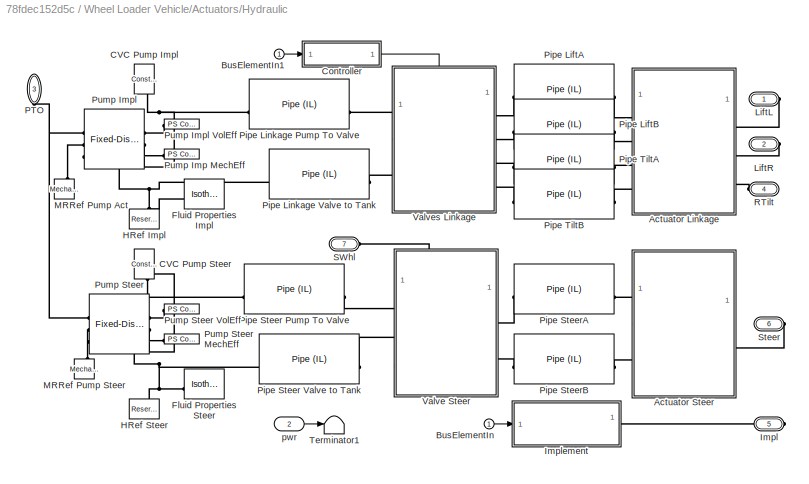
BLOCK [SubSystem] Wheel Loader Vehicle/Actuators/Hydraulic
  VariantControl = Hydraulic
BLOCK [SubSystem] Wheel Loader Vehicle/Actuators/Hydraulic/Actuator Linkage
BLOCK [Reference] Wheel Loader Vehicle/Actuators/Hydraulic/Actuator Linkage/Actuator LiftL  REF=SimscapeFluids_lib/Isothermal Liquid/Actuators/Double-Acting
Actuator (IL)
  SourceBlock = SimscapeFluids_lib/Isothermal Liquid/Actuators/Double-Acting\nActuator (IL)
  SourceType = Double-Acting\nActuator (IL)
BLOCK [Reference] Wheel Loader Vehicle/Actuators/Hydraulic/Actuator Linkage/Actuator LiftR  REF=SimscapeFluids_lib/Isothermal Liquid/Actuators/Double-Acting
Actuator (IL)
  NameLocation = top
  SourceBlock = SimscapeFluids_lib/Isothermal Liquid/Actuators/Double-Acting\nActuator (IL)
  SourceType = Double-Acting\nActuator (IL)
BLOCK [Reference] Wheel Loader Vehicle/Actuators/Hydraulic/Actuator Linkage/Actuator Tilt  REF=SimscapeFluids_lib/Isothermal Liquid/Actuators/Double-Acting
Actuator (IL)
  SourceBlock = SimscapeFluids_lib/Isothermal Liquid/Actuators/Double-Acting\nActuator (IL)
  SourceType = Double-Acting\nActuator (IL)
BLOCK [PMIOPort] Wheel Loader Vehicle/Actuators/Hydraulic/Actuator Linkage/LA
  Side = Left
BLOCK [PMIOPort] Wheel Loader Vehicle/Actuators/Hydraulic/Actuator Linkage/LB
  Port = 2
  Side = Left
BLOCK [Reference] Wheel Loader Vehicle/Actuators/Hydraulic/Actuator Linkage/MTRef Tilt  REF=fl_lib/Mechanical/Translational
Elements/Mechanical
Translational
Reference
  SourceBlock = fl_lib/Mechanical/Translational\nElements/Mechanical\nTranslational\nReference
  SourceType = Mechanical\nTranslational\nReference
BLOCK [Reference] Wheel Loader Vehicle/Actuators/Hydraulic/Actuator Linkage/MTRef Tilt LiftR  REF=fl_lib/Mechanical/Translational
Elements/Mechanical
Translational
Reference
  SourceBlock = fl_lib/Mechanical/Translational\nElements/Mechanical\nTranslational\nReference
  SourceType = Mechanical\nTranslational\nReference
BLOCK [Reference] Wheel Loader Vehicle/Actuators/Hydraulic/Actuator Linkage/MTRef TiltL  REF=fl_lib/Mechanical/Translational
Elements/Mechanical
Translational
Reference
  SourceBlock = fl_lib/Mechanical/Translational\nElements/Mechanical\nTranslational\nReference
  SourceType = Mechanical\nTranslational\nReference
BLOCK [Reference] Wheel Loader Vehicle/Actuators/Hydraulic/Actuator Linkage/PS Terminator  REF=fl_lib/Physical Signals/Sinks/PS Terminator
  SourceBlock = fl_lib/Physical Signals/Sinks/PS Terminator
  SourceType = PS Terminator
BLOCK [Reference] Wheel Loader Vehicle/Actuators/Hydraulic/Actuator Linkage/PS Terminator1  REF=fl_lib/Physical Signals/Sinks/PS Terminator
  SourceBlock = fl_lib/Physical Signals/Sinks/PS Terminator
  SourceType = PS Terminator
BLOCK [Reference] Wheel Loader Vehicle/Actuators/Hydraulic/Actuator Linkage/PS Terminator2  REF=fl_lib/Physical Signals/Sinks/PS Terminator
  SourceBlock = fl_lib/Physical Signals/Sinks/PS Terminator
  SourceType = PS Terminator
BLOCK [PMIOPort] Wheel Loader Vehicle/Actuators/Hydraulic/Actuator Linkage/RLiftL
  Port = 5
  Side = Right
BLOCK [PMIOPort] Wheel Loader Vehicle/Actuators/Hydraulic/Actuator Linkage/RLiftR
  Port = 6
  Side = Right
BLOCK [PMIOPort] Wheel Loader Vehicle/Actuators/Hydraulic/Actuator Linkage/RTilt
  NameLocation = top
  Port = 7
  Side = Right
BLOCK [PMIOPort] Wheel Loader Vehicle/Actuators/Hydraulic/Actuator Linkage/TA
  Port = 3
  Side = Left
BLOCK [PMIOPort] Wheel Loader Vehicle/Actuators/Hydraulic/Actuator Linkage/TB
  Port = 4
  Side = Left
BLOCK [SubSystem] Wheel Loader Vehicle/Actuators/Hydraulic/Actuator Steer
BLOCK [PMIOPort] Wheel Loader Vehicle/Actuators/Hydraulic/Actuator Steer/A
  Side = Left
BLOCK [Reference] Wheel Loader Vehicle/Actuators/Hydraulic/Actuator Steer/Actuator Steer  REF=SimscapeFluids_lib/Isothermal Liquid/Actuators/Double-Acting
Actuator (IL)
  SourceBlock = SimscapeFluids_lib/Isothermal Liquid/Actuators/Double-Acting\nActuator (IL)
  SourceType = Double-Acting\nActuator (IL)
BLOCK [PMIOPort] Wheel Loader Vehicle/Actuators/Hydraulic/Actuator Steer/B
  Port = 2
  Side = Left
BLOCK [Reference] Wheel Loader Vehicle/Actuators/Hydraulic/Actuator Steer/MTRef  REF=fl_lib/Mechanical/Translational
Elements/Mechanical
Translational
Reference
  NameLocation = top
  SourceBlock = fl_lib/Mechanical/Translational\nElements/Mechanical\nTranslational\nReference
  SourceType = Mechanical\nTranslational\nReference
BLOCK [Reference] Wheel Loader Vehicle/Actuators/Hydraulic/Actuator Steer/PS Terminator  REF=fl_lib/Physical Signals/Sinks/PS Terminator
  SourceBlock = fl_lib/Physical Signals/Sinks/PS Terminator
  SourceType = PS Terminator
BLOCK [PMIOPort] Wheel Loader Vehicle/Actuators/Hydraulic/Actuator Steer/R
  NameLocation = top
  Port = 3
  Side = Right
BLOCK [Inport] Wheel Loader Vehicle/Actuators/Hydraulic/BusElementIn
BLOCK [Inport] Wheel Loader Vehicle/Actuators/Hydraulic/BusElementIn1
BLOCK [Reference] Wheel Loader Vehicle/Actuators/Hydraulic/CVC Pump Impl  REF=fl_lib/Isothermal Liquid/Elements/Constant Volume
Chamber (IL)
  NameLocation = right
  SourceBlock = fl_lib/Isothermal Liquid/Elements/Constant Volume\nChamber (IL)
  SourceType = Constant Volume\nChamber (IL)
BLOCK [Reference] Wheel Loader Vehicle/Actuators/Hydraulic/CVC Pump Steer  REF=fl_lib/Isothermal Liquid/Elements/Constant Volume
Chamber (IL)
  NameLocation = right
  SourceBlock = fl_lib/Isothermal Liquid/Elements/Constant Volume\nChamber (IL)
  SourceType = Constant Volume\nChamber (IL)
BLOCK [SubSystem] Wheel Loader Vehicle/Actuators/Hydraulic/Controller
BLOCK [Inport] Wheel Loader Vehicle/Actuators/Hydraulic/Controller/BusElementIn
BLOCK [Inport] Wheel Loader Vehicle/Actuators/Hydraulic/Controller/BusElementIn1
BLOCK [Gain] Wheel Loader Vehicle/Actuators/Hydraulic/Controller/Gain
  Gain = 5
BLOCK [Gain] Wheel Loader Vehicle/Actuators/Hydraulic/Controller/Gain1
  Gain = 5
BLOCK [RateLimiter] Wheel Loader Vehicle/Actuators/Hydraulic/Controller/LiftSpoolPosCmdRateLimit
  FallingSlewLimit = HydFcnParams.liftActCtrl.negSpoolCmdRateLimit
  RisingSlewLimit = HydFcnParams.liftActCtrl.posSpoolCmdRateLimit
  SampleTimeMode = inherited
BLOCK [Saturate] Wheel Loader Vehicle/Actuators/Hydraulic/Controller/LiftSpoolPosCmdSaturation
  LowerLimit = HydFcnParams.liftActCtrl.minSpoolCmd
  UpperLimit = HydFcnParams.liftActCtrl.maxSpoolCmd
BLOCK [Outport] Wheel Loader Vehicle/Actuators/Hydraulic/Controller/Out Bus Element
BLOCK [Outport] Wheel Loader Vehicle/Actuators/Hydraulic/Controller/Out Bus Element1
BLOCK [RateLimiter] Wheel Loader Vehicle/Actuators/Hydraulic/Controller/TiltSpoolPosCmdRateLimit
  FallingSlewLimit = HydFcnParams.tiltActCtrl.negSpoolCmdRateLimit
  RisingSlewLimit = HydFcnParams.tiltActCtrl.posSpoolCmdRateLimit
  SampleTimeMode = inherited
BLOCK [Saturate] Wheel Loader Vehicle/Actuators/Hydraulic/Controller/TiltSpoolPosCmdSaturation
  LowerLimit = HydFcnParams.tiltActCtrl.minSpoolCmd
  UpperLimit = HydFcnParams.tiltActCtrl.maxSpoolCmd
BLOCK [Reference] Wheel Loader Vehicle/Actuators/Hydraulic/Fluid Properties Impl  REF=fl_lib/Isothermal Liquid/Utilities/Isothermal Liquid
Properties (IL)
  SourceBlock = fl_lib/Isothermal Liquid/Utilities/Isothermal Liquid\nProperties (IL)
  SourceType = Isothermal Liquid\nProperties (IL)
BLOCK [Reference] Wheel Loader Vehicle/Actuators/Hydraulic/Fluid Properties Steer  REF=fl_lib/Isothermal Liquid/Utilities/Isothermal Liquid
Properties (IL)
  SourceBlock = fl_lib/Isothermal Liquid/Utilities/Isothermal Liquid\nProperties (IL)
  SourceType = Isothermal Liquid\nProperties (IL)
BLOCK [Reference] Wheel Loader Vehicle/Actuators/Hydraulic/HRef Impl  REF=fl_lib/Isothermal Liquid/Elements/Reservoir (IL)
  SourceBlock = fl_lib/Isothermal Liquid/Elements/Reservoir (IL)
  SourceType = Reservoir (IL)
BLOCK [Reference] Wheel Loader Vehicle/Actuators/Hydraulic/HRef Steer  REF=fl_lib/Isothermal Liquid/Elements/Reservoir (IL)
  SourceBlock = fl_lib/Isothermal Liquid/Elements/Reservoir (IL)
  SourceType = Reservoir (IL)
BLOCK [PMIOPort] Wheel Loader Vehicle/Actuators/Hydraulic/Impl
  Port = 5
  Side = Right
BLOCK [SubSystem] Wheel Loader Vehicle/Actuators/Hydraulic/Implement
  AttributesFormatString = %<LabelModeActiveChoice>
  LabelModeActiveChoice = Bucket
  Variant = on
  VariantControl = Grapple Rake
  VariantControlMode = label
BLOCK [Inport] Wheel Loader Vehicle/Actuators/Hydraulic/Implement/A
BLOCK [SubSystem] Wheel Loader Vehicle/Actuators/Hydraulic/Implement/Bucket
  VariantControl = Bucket
BLOCK [Inport] Wheel Loader Vehicle/Actuators/Hydraulic/Implement/Bucket/A
BLOCK [PMIOPort] Wheel Loader Vehicle/Actuators/Hydraulic/Implement/Bucket/Impl
  Side = Right
BLOCK [Terminator] Wheel Loader Vehicle/Actuators/Hydraulic/Implement/Bucket/Terminator
BLOCK [SubSystem] Wheel Loader Vehicle/Actuators/Hydraulic/Implement/Grapple
  VariantControl = Grapple
BLOCK [Inport] Wheel Loader Vehicle/Actuators/Hydraulic/Implement/Grapple/A
BLOCK [BusSelector] Wheel Loader Vehicle/Actuators/Hydraulic/Implement/Grapple/Bus Selector4
  OutputSignals = leftToothbarAct.pos,rightToothbarAct.pos
BLOCK [Reference] Wheel Loader Vehicle/Actuators/Hydraulic/Implement/Grapple/Damper ToothbarL  REF=sdl_lib/Couplings & Drives/Springs & Dampers/Translational Damper
  SourceBlock = sdl_lib/Couplings & Drives/Springs & Dampers/Translational Damper
  SourceType = Translational Damper
BLOCK [Reference] Wheel Loader Vehicle/Actuators/Hydraulic/Implement/Grapple/Damper ToothbarR  REF=sdl_lib/Couplings & Drives/Springs & Dampers/Translational Damper
  SourceBlock = sdl_lib/Couplings & Drives/Springs & Dampers/Translational Damper
  SourceType = Translational Damper
BLOCK [PMIOPort] Wheel Loader Vehicle/Actuators/Hydraulic/Implement/Grapple/Impl
  Side = Right
BLOCK [Reference] Wheel Loader Vehicle/Actuators/Hydraulic/Implement/Grapple/MTRef ToothbarL  REF=fl_lib/Mechanical/Translational
Elements/Mechanical
Translational
Reference
  NameLocation = top
  SourceBlock = fl_lib/Mechanical/Translational\nElements/Mechanical\nTranslational\nReference
  SourceType = Mechanical\nTranslational\nReference
BLOCK [Reference] Wheel Loader Vehicle/Actuators/Hydraulic/Implement/Grapple/MTRef ToothbarR  REF=fl_lib/Mechanical/Translational
Elements/Mechanical
Translational
Reference
  NameLocation = top
  SourceBlock = fl_lib/Mechanical/Translational\nElements/Mechanical\nTranslational\nReference
  SourceType = Mechanical\nTranslational\nReference
BLOCK [SimscapeBus] Wheel Loader Vehicle/Actuators/Hydraulic/Implement/Grapple/Simscape Bus
  HierarchyStrings = RakeL;RakeR
BLOCK [Reference] Wheel Loader Vehicle/Actuators/Hydraulic/Implement/Grapple/Simulink-PS Converter4  REF=nesl_utility/Simulink-PS
Converter
  SourceBlock = nesl_utility/Simulink-PS\nConverter
  SourceType = Simulink-PS\nConverter
BLOCK [Reference] Wheel Loader Vehicle/Actuators/Hydraulic/Implement/Grapple/Simulink-PS Converter5  REF=nesl_utility/Simulink-PS
Converter
  SourceBlock = nesl_utility/Simulink-PS\nConverter
  SourceType = Simulink-PS\nConverter
BLOCK [Reference] Wheel Loader Vehicle/Actuators/Hydraulic/Implement/Grapple/Spring ToothbarL  REF=fl_lib/Mechanical/Translational
Elements/Translational Spring
  NameLocation = top
  SourceBlock = fl_lib/Mechanical/Translational\nElements/Translational Spring
  SourceType = Translational Spring
BLOCK [Reference] Wheel Loader Vehicle/Actuators/Hydraulic/Implement/Grapple/Spring ToothbarR  REF=fl_lib/Mechanical/Translational
Elements/Translational Spring
  NameLocation = top
  SourceBlock = fl_lib/Mechanical/Translational\nElements/Translational Spring
  SourceType = Translational Spring
BLOCK [TransferFcn] Wheel Loader Vehicle/Actuators/Hydraulic/Implement/Grapple/Transfer Fcn4
  Denominator = [0.1 1]
  Numerator = [1 0]
BLOCK [TransferFcn] Wheel Loader Vehicle/Actuators/Hydraulic/Implement/Grapple/Transfer Fcn5
  Denominator = [0.1 1]
  Numerator = [1 0]
BLOCK [Reference] Wheel Loader Vehicle/Actuators/Hydraulic/Implement/Grapple/Velocity Source ToothbarL  REF=fl_lib/Mechanical/Mechanical Sources/Ideal Translational
Velocity Source
  SourceBlock = fl_lib/Mechanical/Mechanical Sources/Ideal Translational\nVelocity Source
  SourceType = Ideal Translational\nVelocity Source
BLOCK [Reference] Wheel Loader Vehicle/Actuators/Hydraulic/Implement/Grapple/Velocity Source ToothbarR  REF=fl_lib/Mechanical/Mechanical Sources/Ideal Translational
Velocity Source
  SourceBlock = fl_lib/Mechanical/Mechanical Sources/Ideal Translational\nVelocity Source
  SourceType = Ideal Translational\nVelocity Source
BLOCK [PMIOPort] Wheel Loader Vehicle/Actuators/Hydraulic/Implement/Impl
  Side = Right
BLOCK [PMIOPort] Wheel Loader Vehicle/Actuators/Hydraulic/LiftL
  Side = Right
BLOCK [PMIOPort] Wheel Loader Vehicle/Actuators/Hydraulic/LiftR
  Port = 2
  Side = Right
BLOCK [Reference] Wheel Loader Vehicle/Actuators/Hydraulic/MRRef Pump Act  REF=fl_lib/Mechanical/Rotational Elements/Mechanical
Rotational Reference
  SourceBlock = fl_lib/Mechanical/Rotational Elements/Mechanical\nRotational Reference
  SourceType = Mechanical\nRotational Reference
BLOCK [Reference] Wheel Loader Vehicle/Actuators/Hydraulic/MRRef Pump Steer  REF=fl_lib/Mechanical/Rotational Elements/Mechanical
Rotational Reference
  SourceBlock = fl_lib/Mechanical/Rotational Elements/Mechanical\nRotational Reference
  SourceType = Mechanical\nRotational Reference
BLOCK [PMIOPort] Wheel Loader Vehicle/Actuators/Hydraulic/PTO
  NameLocation = right
  Port = 3
  Side = Left
BLOCK [Reference] Wheel Loader Vehicle/Actuators/Hydraulic/Pipe LiftA  REF=fl_lib/Isothermal Liquid/Elements/Pipe (IL)
  NameLocation = top
  SourceBlock = fl_lib/Isothermal Liquid/Elements/Pipe (IL)
  SourceType = Pipe (IL)
BLOCK [Reference] Wheel Loader Vehicle/Actuators/Hydraulic/Pipe LiftB  REF=fl_lib/Isothermal Liquid/Elements/Pipe (IL)
  SourceBlock = fl_lib/Isothermal Liquid/Elements/Pipe (IL)
  SourceType = Pipe (IL)
BLOCK [Reference] Wheel Loader Vehicle/Actuators/Hydraulic/Pipe Linkage Pump To Valve  REF=fl_lib/Isothermal Liquid/Elements/Pipe (IL)
  SourceBlock = fl_lib/Isothermal Liquid/Elements/Pipe (IL)
  SourceType = Pipe (IL)
BLOCK [Reference] Wheel Loader Vehicle/Actuators/Hydraulic/Pipe Linkage Valve to Tank  REF=fl_lib/Isothermal Liquid/Elements/Pipe (IL)
  SourceBlock = fl_lib/Isothermal Liquid/Elements/Pipe (IL)
  SourceType = Pipe (IL)
BLOCK [Reference] Wheel Loader Vehicle/Actuators/Hydraulic/Pipe Steer Pump To Valve  REF=fl_lib/Isothermal Liquid/Elements/Pipe (IL)
  SourceBlock = fl_lib/Isothermal Liquid/Elements/Pipe (IL)
  SourceType = Pipe (IL)
BLOCK [Reference] Wheel Loader Vehicle/Actuators/Hydraulic/Pipe Steer Valve to Tank  REF=fl_lib/Isothermal Liquid/Elements/Pipe (IL)
  SourceBlock = fl_lib/Isothermal Liquid/Elements/Pipe (IL)
  SourceType = Pipe (IL)
BLOCK [Reference] Wheel Loader Vehicle/Actuators/Hydraulic/Pipe SteerA  REF=fl_lib/Isothermal Liquid/Elements/Pipe (IL)
  NameLocation = top
  SourceBlock = fl_lib/Isothermal Liquid/Elements/Pipe (IL)
  SourceType = Pipe (IL)
BLOCK [Reference] Wheel Loader Vehicle/Actuators/Hydraulic/Pipe SteerB  REF=fl_lib/Isothermal Liquid/Elements/Pipe (IL)
  SourceBlock = fl_lib/Isothermal Liquid/Elements/Pipe (IL)
  SourceType = Pipe (IL)
BLOCK [Reference] Wheel Loader Vehicle/Actuators/Hydraulic/Pipe TiltA  REF=fl_lib/Isothermal Liquid/Elements/Pipe (IL)
  SourceBlock = fl_lib/Isothermal Liquid/Elements/Pipe (IL)
  SourceType = Pipe (IL)
BLOCK [Reference] Wheel Loader Vehicle/Actuators/Hydraulic/Pipe TiltB  REF=fl_lib/Isothermal Liquid/Elements/Pipe (IL)
  SourceBlock = fl_lib/Isothermal Liquid/Elements/Pipe (IL)
  SourceType = Pipe (IL)
BLOCK [Reference] Wheel Loader Vehicle/Actuators/Hydraulic/Pump Imp MechEff  REF=fl_lib/Physical Signals/Sources/PS Constant
  NameLocation = right
  SourceBlock = fl_lib/Physical Signals/Sources/PS Constant
  SourceType = PS Constant
BLOCK [Reference] Wheel Loader Vehicle/Actuators/Hydraulic/Pump Impl  REF=SimscapeFluids_lib/Isothermal Liquid/Pumps & Motors/Fixed-Displacement
Pump (IL)
  NameLocation = left
  SourceBlock = SimscapeFluids_lib/Isothermal Liquid/Pumps & Motors/Fixed-Displacement\nPump (IL)
  SourceType = Fixed-Displacement\nPump (IL)
BLOCK [Reference] Wheel Loader Vehicle/Actuators/Hydraulic/Pump Impl VolEff  REF=fl_lib/Physical Signals/Sources/PS Constant
  NameLocation = right
  SourceBlock = fl_lib/Physical Signals/Sources/PS Constant
  SourceType = PS Constant
BLOCK [Reference] Wheel Loader Vehicle/Actuators/Hydraulic/Pump Steer  REF=SimscapeFluids_lib/Isothermal Liquid/Pumps & Motors/Fixed-Displacement
Pump (IL)
  NameLocation = left
  SourceBlock = SimscapeFluids_lib/Isothermal Liquid/Pumps & Motors/Fixed-Displacement\nPump (IL)
  SourceType = Fixed-Displacement\nPump (IL)
BLOCK [Reference] Wheel Loader Vehicle/Actuators/Hydraulic/Pump Steer MechEff  REF=fl_lib/Physical Signals/Sources/PS Constant
  SourceBlock = fl_lib/Physical Signals/Sources/PS Constant
  SourceType = PS Constant
BLOCK [Reference] Wheel Loader Vehicle/Actuators/Hydraulic/Pump Steer VolEff  REF=fl_lib/Physical Signals/Sources/PS Constant
  SourceBlock = fl_lib/Physical Signals/Sources/PS Constant
  SourceType = PS Constant
BLOCK [PMIOPort] Wheel Loader Vehicle/Actuators/Hydraulic/RTilt
  Port = 4
  Side = Left
BLOCK [PMIOPort] Wheel Loader Vehicle/Actuators/Hydraulic/SWhl
  NameLocation = left
  Port = 7
  Side = Left
BLOCK [PMIOPort] Wheel Loader Vehicle/Actuators/Hydraulic/Steer
  Port = 6
  Side = Right
BLOCK [Terminator] Wheel Loader Vehicle/Actuators/Hydraulic/Terminator1
BLOCK [SubSystem] Wheel Loader Vehicle/Actuators/Hydraulic/Valve Steer
  PortSchema = {"entries":[{"content":{"sides":[{"content":{"connectorIds":["LConn1","LConn2"]},"type":"ConnectorPlacement.EquallySpacedRectSide","uuid":"408e1035-6b3d-4519-b3f1-e009707ee901"},{"content":{"connectorIds":["RConn1","RConn2"],"side":"RIGHT"},"type":"ConnectorPlacement.EquallySpacedRectSide","uuid":"f6fc5ec3-963d-4896-a810-4c1d83a284ca"},{"content":{"connectorIds":["LConn3"],"side":"TOP"},"type":"Co...<+397ch>
BLOCK [PMIOPort] Wheel Loader Vehicle/Actuators/Hydraulic/Valve Steer/A
  NameLocation = left
  Port = 3
  Side = Right
BLOCK [PMIOPort] Wheel Loader Vehicle/Actuators/Hydraulic/Valve Steer/B
  NameLocation = right
  Port = 4
  Side = Right
BLOCK [Reference] Wheel Loader Vehicle/Actuators/Hydraulic/Valve Steer/CV SteerA  REF=SimscapeFluids_lib/Isothermal Liquid/Valves & Orifices/Directional Control
Valves/Check Valve (IL)
  NameLocation = right
  SourceBlock = SimscapeFluids_lib/Isothermal Liquid/Valves & Orifices/Directional Control\nValves/Check Valve (IL)
  SourceType = Check Valve (IL)
BLOCK [Reference] Wheel Loader Vehicle/Actuators/Hydraulic/Valve Steer/CV SteerB  REF=SimscapeFluids_lib/Isothermal Liquid/Valves & Orifices/Directional Control
Valves/Check Valve (IL)
  NameLocation = left
  SourceBlock = SimscapeFluids_lib/Isothermal Liquid/Valves & Orifices/Directional Control\nValves/Check Valve (IL)
  SourceType = Check Valve (IL)
BLOCK [Reference] Wheel Loader Vehicle/Actuators/Hydraulic/Valve Steer/CV SteerP  REF=SimscapeFluids_lib/Isothermal Liquid/Valves & Orifices/Directional Control
Valves/Check Valve (IL)
  NameLocation = right
  SourceBlock = SimscapeFluids_lib/Isothermal Liquid/Valves & Orifices/Directional Control\nValves/Check Valve (IL)
  SourceType = Check Valve (IL)
BLOCK [Reference] Wheel Loader Vehicle/Actuators/Hydraulic/Valve Steer/CVC GerotorA  REF=fl_lib/Isothermal Liquid/Elements/Constant Volume
Chamber (IL)
  NameLocation = top
  SourceBlock = fl_lib/Isothermal Liquid/Elements/Constant Volume\nChamber (IL)
  SourceType = Constant Volume\nChamber (IL)
BLOCK [Reference] Wheel Loader Vehicle/Actuators/Hydraulic/Valve Steer/CVC GerotorB  REF=fl_lib/Isothermal Liquid/Elements/Constant Volume
Chamber (IL)
  NameLocation = top
  SourceBlock = fl_lib/Isothermal Liquid/Elements/Constant Volume\nChamber (IL)
  SourceType = Constant Volume\nChamber (IL)
BLOCK [Reference] Wheel Loader Vehicle/Actuators/Hydraulic/Valve Steer/CVC Steer A  REF=fl_lib/Isothermal Liquid/Elements/Constant Volume
Chamber (IL)
  NameLocation = left
  SourceBlock = fl_lib/Isothermal Liquid/Elements/Constant Volume\nChamber (IL)
  SourceType = Constant Volume\nChamber (IL)
BLOCK [Reference] Wheel Loader Vehicle/Actuators/Hydraulic/Valve Steer/CVC Steer B  REF=fl_lib/Isothermal Liquid/Elements/Constant Volume
Chamber (IL)
  NameLocation = top
  SourceBlock = fl_lib/Isothermal Liquid/Elements/Constant Volume\nChamber (IL)
  SourceType = Constant Volume\nChamber (IL)
BLOCK [Reference] Wheel Loader Vehicle/Actuators/Hydraulic/Valve Steer/Gerotor  REF=SimscapeFluids_lib/Isothermal Liquid/Pumps & Motors/Fixed-Displacement
Motor (IL)
  NameLocation = top
  SourceBlock = SimscapeFluids_lib/Isothermal Liquid/Pumps & Motors/Fixed-Displacement\nMotor (IL)
  SourceType = Fixed-Displacement\nMotor (IL)
BLOCK [Reference] Wheel Loader Vehicle/Actuators/Hydraulic/Valve Steer/MRRef Gerotor  REF=fl_lib/Mechanical/Rotational Elements/Mechanical
Rotational Reference
  SourceBlock = fl_lib/Mechanical/Rotational Elements/Mechanical\nRotational Reference
  SourceType = Mechanical\nRotational Reference
BLOCK [SubSystem] Wheel Loader Vehicle/Actuators/Hydraulic/Valve Steer/Orifices
  NameLocation = top
BLOCK [PMIOPort] Wheel Loader Vehicle/Actuators/Hydraulic/Valve Steer/Orifices/A
  NameLocation = right
  Port = 4
  Side = Right
BLOCK [PMIOPort] Wheel Loader Vehicle/Actuators/Hydraulic/Valve Steer/Orifices/B
  NameLocation = right
  Port = 7
  Side = Right
BLOCK [Reference] Wheel Loader Vehicle/Actuators/Hydraulic/Valve Steer/Orifices/CV GerA To SteerR  REF=SimscapeFluids_lib/Isothermal Liquid/Valves & Orifices/Directional Control
Valves/Check Valve (IL)
  NameLocation = top
  SourceBlock = SimscapeFluids_lib/Isothermal Liquid/Valves & Orifices/Directional Control\nValves/Check Valve (IL)
  SourceType = Check Valve (IL)
BLOCK [Reference] Wheel Loader Vehicle/Actuators/Hydraulic/Valve Steer/Orifices/CV GerB To SteerL  REF=SimscapeFluids_lib/Isothermal Liquid/Valves & Orifices/Directional Control
Valves/Check Valve (IL)
  NameLocation = top
  SourceBlock = SimscapeFluids_lib/Isothermal Liquid/Valves & Orifices/Directional Control\nValves/Check Valve (IL)
  SourceType = Check Valve (IL)
BLOCK [Reference] Wheel Loader Vehicle/Actuators/Hydraulic/Valve Steer/Orifices/CV P to GerA  REF=SimscapeFluids_lib/Isothermal Liquid/Valves & Orifices/Directional Control
Valves/Check Valve (IL)
  NameLocation = left
  SourceBlock = SimscapeFluids_lib/Isothermal Liquid/Valves & Orifices/Directional Control\nValves/Check Valve (IL)
  SourceType = Check Valve (IL)
BLOCK [Reference] Wheel Loader Vehicle/Actuators/Hydraulic/Valve Steer/Orifices/CV P to GerB  REF=SimscapeFluids_lib/Isothermal Liquid/Valves & Orifices/Directional Control
Valves/Check Valve (IL)
  NameLocation = right
  SourceBlock = SimscapeFluids_lib/Isothermal Liquid/Valves & Orifices/Directional Control\nValves/Check Valve (IL)
  SourceType = Check Valve (IL)
BLOCK [Reference] Wheel Loader Vehicle/Actuators/Hydraulic/Valve Steer/Orifices/CV P to T  REF=SimscapeFluids_lib/Isothermal Liquid/Valves & Orifices/Directional Control
Valves/Check Valve (IL)
  SourceBlock = SimscapeFluids_lib/Isothermal Liquid/Valves & Orifices/Directional Control\nValves/Check Valve (IL)
  SourceType = Check Valve (IL)
BLOCK [Reference] Wheel Loader Vehicle/Actuators/Hydraulic/Valve Steer/Orifices/CVC GerA to SteerA  REF=fl_lib/Isothermal Liquid/Elements/Constant Volume
Chamber (IL)
  NameLocation = right
  SourceBlock = fl_lib/Isothermal Liquid/Elements/Constant Volume\nChamber (IL)
  SourceType = Constant Volume\nChamber (IL)
BLOCK [Reference] Wheel Loader Vehicle/Actuators/Hydraulic/Valve Steer/Orifices/CVC GerB to SteerL  REF=fl_lib/Isothermal Liquid/Elements/Constant Volume
Chamber (IL)
  NameLocation = left
  SourceBlock = fl_lib/Isothermal Liquid/Elements/Constant Volume\nChamber (IL)
  SourceType = Constant Volume\nChamber (IL)
BLOCK [Reference] Wheel Loader Vehicle/Actuators/Hydraulic/Valve Steer/Orifices/CVC P to Ger A  REF=fl_lib/Isothermal Liquid/Elements/Constant Volume
Chamber (IL)
  SourceBlock = fl_lib/Isothermal Liquid/Elements/Constant Volume\nChamber (IL)
  SourceType = Constant Volume\nChamber (IL)
BLOCK [Reference] Wheel Loader Vehicle/Actuators/Hydraulic/Valve Steer/Orifices/CVC P to GerB  REF=fl_lib/Isothermal Liquid/Elements/Constant Volume
Chamber (IL)
  SourceBlock = fl_lib/Isothermal Liquid/Elements/Constant Volume\nChamber (IL)
  SourceType = Constant Volume\nChamber (IL)
BLOCK [PMIOPort] Wheel Loader Vehicle/Actuators/Hydraulic/Valve Steer/Orifices/GA
  NameLocation = top
  Port = 5
  Side = Right
BLOCK [PMIOPort] Wheel Loader Vehicle/Actuators/Hydraulic/Valve Steer/Orifices/GB
  NameLocation = top
  Port = 6
  Side = Right
BLOCK [Reference] Wheel Loader Vehicle/Actuators/Hydraulic/Valve Steer/Orifices/Orifice GerA to SteerR  REF=SimscapeFluids_lib/Isothermal Liquid/Valves & Orifices/Orifices/Spool Orifice (IL)
  NameLocation = top
  SourceBlock = SimscapeFluids_lib/Isothermal Liquid/Valves & Orifices/Orifices/Spool Orifice (IL)
  SourceType = Spool Orifice (IL)
BLOCK [Reference] Wheel Loader Vehicle/Actuators/Hydraulic/Valve Steer/Orifices/Orifice GerB to SteerL  REF=SimscapeFluids_lib/Isothermal Liquid/Valves & Orifices/Orifices/Spool Orifice (IL)
  NameLocation = top
  SourceBlock = SimscapeFluids_lib/Isothermal Liquid/Valves & Orifices/Orifices/Spool Orifice (IL)
  SourceType = Spool Orifice (IL)
BLOCK [Reference] Wheel Loader Vehicle/Actuators/Hydraulic/Valve Steer/Orifices/Orifice P to GerA  REF=SimscapeFluids_lib/Isothermal Liquid/Valves & Orifices/Orifices/Spool Orifice (IL)
  NameLocation = left
  SourceBlock = SimscapeFluids_lib/Isothermal Liquid/Valves & Orifices/Orifices/Spool Orifice (IL)
  SourceType = Spool Orifice (IL)
BLOCK [Reference] Wheel Loader Vehicle/Actuators/Hydraulic/Valve Steer/Orifices/Orifice P to GerB  REF=SimscapeFluids_lib/Isothermal Liquid/Valves & Orifices/Orifices/Spool Orifice (IL)
  NameLocation = right
  SourceBlock = SimscapeFluids_lib/Isothermal Liquid/Valves & Orifices/Orifices/Spool Orifice (IL)
  SourceType = Spool Orifice (IL)
BLOCK [Reference] Wheel Loader Vehicle/Actuators/Hydraulic/Valve Steer/Orifices/Orifice P to T  REF=SimscapeFluids_lib/Isothermal Liquid/Valves & Orifices/Orifices/Spool Orifice (IL)
  NameLocation = top
  SourceBlock = SimscapeFluids_lib/Isothermal Liquid/Valves & Orifices/Orifices/Spool Orifice (IL)
  SourceType = Spool Orifice (IL)
BLOCK [Reference] Wheel Loader Vehicle/Actuators/Hydraulic/Valve Steer/Orifices/Orifice T to SteerL  REF=SimscapeFluids_lib/Isothermal Liquid/Valves & Orifices/Orifices/Spool Orifice (IL)
  NameLocation = top
  SourceBlock = SimscapeFluids_lib/Isothermal Liquid/Valves & Orifices/Orifices/Spool Orifice (IL)
  SourceType = Spool Orifice (IL)
BLOCK [Reference] Wheel Loader Vehicle/Actuators/Hydraulic/Valve Steer/Orifices/Orifice T to SteerR  REF=SimscapeFluids_lib/Isothermal Liquid/Valves & Orifices/Orifices/Spool Orifice (IL)
  NameLocation = top
  SourceBlock = SimscapeFluids_lib/Isothermal Liquid/Valves & Orifices/Orifices/Spool Orifice (IL)
  SourceType = Spool Orifice (IL)
BLOCK [PMIOPort] Wheel Loader Vehicle/Actuators/Hydraulic/Valve Steer/Orifices/P
  NameLocation = right
  Port = 2
  Side = Left
BLOCK [Reference] Wheel Loader Vehicle/Actuators/Hydraulic/Valve Steer/Orifices/PS Abs P to T  REF=fl_lib/Physical Signals/Nonlinear Operators/PS Abs
  NameLocation = left
  SourceBlock = fl_lib/Physical Signals/Nonlinear Operators/PS Abs
  SourceType = PS Abs
BLOCK [Reference] Wheel Loader Vehicle/Actuators/Hydraulic/Valve Steer/Orifices/PS Gain Ger to Steer  REF=fl_lib/Physical Signals/Functions/PS Gain
  SourceBlock = fl_lib/Physical Signals/Functions/PS Gain
  SourceType = PS Gain
BLOCK [Reference] Wheel Loader Vehicle/Actuators/Hydraulic/Valve Steer/Orifices/PS Gain P to Ger  REF=fl_lib/Physical Signals/Functions/PS Gain
  NameLocation = right
  SourceBlock = fl_lib/Physical Signals/Functions/PS Gain
  SourceType = PS Gain
BLOCK [Reference] Wheel Loader Vehicle/Actuators/Hydraulic/Valve Steer/Orifices/PS Gain Steer to T  REF=fl_lib/Physical Signals/Functions/PS Gain
  NameLocation = top
  SourceBlock = fl_lib/Physical Signals/Functions/PS Gain
  SourceType = PS Gain
BLOCK [PMIOPort] Wheel Loader Vehicle/Actuators/Hydraulic/Valve Steer/Orifices/S
  NameLocation = top
  Side = Left
BLOCK [PMIOPort] Wheel Loader Vehicle/Actuators/Hydraulic/Valve Steer/Orifices/T
  NameLocation = right
  Port = 3
  Side = Left
BLOCK [PMIOPort] Wheel Loader Vehicle/Actuators/Hydraulic/Valve Steer/P
  NameLocation = top
  Side = Left
BLOCK [Reference] Wheel Loader Vehicle/Actuators/Hydraulic/Valve Steer/PRV Steer Pump  REF=SimscapeFluids_lib/Isothermal Liquid/Valves & Orifices/Pressure Control
Valves/Pressure Relief
Valve (IL)
  NameLocation = left
  SourceBlock = SimscapeFluids_lib/Isothermal Liquid/Valves & Orifices/Pressure Control\nValves/Pressure Relief\nValve (IL)
  SourceType = Pressure Relief\nValve (IL)
BLOCK [Reference] Wheel Loader Vehicle/Actuators/Hydraulic/Valve Steer/PRV SteerA  REF=SimscapeFluids_lib/Isothermal Liquid/Valves & Orifices/Pressure Control
Valves/Pressure Relief
Valve (IL)
  NameLocation = left
  SourceBlock = SimscapeFluids_lib/Isothermal Liquid/Valves & Orifices/Pressure Control\nValves/Pressure Relief\nValve (IL)
  SourceType = Pressure Relief\nValve (IL)
BLOCK [Reference] Wheel Loader Vehicle/Actuators/Hydraulic/Valve Steer/PRV SteerB  REF=SimscapeFluids_lib/Isothermal Liquid/Valves & Orifices/Pressure Control
Valves/Pressure Relief
Valve (IL)
  NameLocation = right
  SourceBlock = SimscapeFluids_lib/Isothermal Liquid/Valves & Orifices/Pressure Control\nValves/Pressure Relief\nValve (IL)
  SourceType = Pressure Relief\nValve (IL)
BLOCK [Reference] Wheel Loader Vehicle/Actuators/Hydraulic/Valve Steer/PS Constant  REF=fl_lib/Physical Signals/Sources/PS Constant
  NameLocation = right
  SourceBlock = fl_lib/Physical Signals/Sources/PS Constant
  SourceType = PS Constant
BLOCK [PMIOPort] Wheel Loader Vehicle/Actuators/Hydraulic/Valve Steer/SW
  Port = 5
  Side = Left
BLOCK [Reference] Wheel Loader Vehicle/Actuators/Hydraulic/Valve Steer/Sleeve Damper  REF=fl_lib/Mechanical/Rotational Elements/Rotational Damper
  SourceBlock = fl_lib/Mechanical/Rotational Elements/Rotational Damper
  SourceType = Rotational Damper
BLOCK [Reference] Wheel Loader Vehicle/Actuators/Hydraulic/Valve Steer/Sleeve Deflection  REF=fl_lib/Mechanical/Mechanical Sensors/Ideal Rotational
Motion Sensor
  SourceBlock = fl_lib/Mechanical/Mechanical Sensors/Ideal Rotational\nMotion Sensor
  SourceType = Ideal Rotational\nMotion Sensor
BLOCK [Reference] Wheel Loader Vehicle/Actuators/Hydraulic/Valve Steer/Sleeve Hard Stop  REF=fl_lib/Mechanical/Rotational Elements/Rotational Hard Stop
  SourceBlock = fl_lib/Mechanical/Rotational Elements/Rotational Hard Stop
  SourceType = Rotational Hard Stop
BLOCK [Reference] Wheel Loader Vehicle/Actuators/Hydraulic/Valve Steer/Sleeve Inertia  REF=fl_lib/Mechanical/Rotational Elements/Inertia
  SourceBlock = fl_lib/Mechanical/Rotational Elements/Inertia
  SourceType = Inertia
BLOCK [Reference] Wheel Loader Vehicle/Actuators/Hydraulic/Valve Steer/Sleeve Spring  REF=fl_lib/Mechanical/Rotational Elements/Rotational Spring
  NameLocation = top
  SourceBlock = fl_lib/Mechanical/Rotational Elements/Rotational Spring
  SourceType = Rotational Spring
BLOCK [PMIOPort] Wheel Loader Vehicle/Actuators/Hydraulic/Valve Steer/T
  Port = 2
  Side = Left
BLOCK [SubSystem] Wheel Loader Vehicle/Actuators/Hydraulic/Valve Steer/qSleeve to xSpool
BLOCK [Reference] Wheel Loader Vehicle/Actuators/Hydraulic/Valve Steer/qSleeve to xSpool/PS Dead Zone  REF=fl_lib/Physical Signals/Nonlinear Operators/PS Dead Zone
  SourceBlock = fl_lib/Physical Signals/Nonlinear Operators/PS Dead Zone
  SourceType = PS Dead Zone
BLOCK [Reference] Wheel Loader Vehicle/Actuators/Hydraulic/Valve Steer/qSleeve to xSpool/PS Gain  REF=fl_lib/Physical Signals/Functions/PS Gain
  SourceBlock = fl_lib/Physical Signals/Functions/PS Gain
  SourceType = PS Gain
BLOCK [Reference] Wheel Loader Vehicle/Actuators/Hydraulic/Valve Steer/qSleeve to xSpool/PS Saturation  REF=fl_lib/Physical Signals/Nonlinear Operators/PS Saturation
  SourceBlock = fl_lib/Physical Signals/Nonlinear Operators/PS Saturation
  SourceType = PS Saturation
BLOCK [PMIOPort] Wheel Loader Vehicle/Actuators/Hydraulic/Valve Steer/qSleeve to xSpool/S
  Port = 2
  Side = Right
BLOCK [PMIOPort] Wheel Loader Vehicle/Actuators/Hydraulic/Valve Steer/qSleeve to xSpool/q
  Side = Left
BLOCK [SubSystem] Wheel Loader Vehicle/Actuators/Hydraulic/Valves Linkage
  PortSchema = {"entries":[{"content":{"sides":[{"content":{"connectorIds":["LConn1","LConn2"]},"type":"ConnectorPlacement.EquallySpacedRectSide","uuid":"e97bc73b-9f55-4fad-8581-2066e0d00398"},{"content":{"connectorIds":["RConn1","RConn2","RConn3","RConn4"],"side":"RIGHT"},"type":"ConnectorPlacement.EquallySpacedRectSide","uuid":"96a7ce6b-69e5-4ab0-8b6a-18f7c232fee9"},{"content":{"connectorIds":["In1"],"side":"T...<+286ch>
BLOCK [Reference] Wheel Loader Vehicle/Actuators/Hydraulic/Valves Linkage/CV Lift  REF=SimscapeFluids_lib/Isothermal Liquid/Valves & Orifices/Directional Control
Valves/Check Valve (IL)
  SourceBlock = SimscapeFluids_lib/Isothermal Liquid/Valves & Orifices/Directional Control\nValves/Check Valve (IL)
  SourceType = Check Valve (IL)
BLOCK [Reference] Wheel Loader Vehicle/Actuators/Hydraulic/Valves Linkage/CV LiftA  REF=SimscapeFluids_lib/Isothermal Liquid/Valves & Orifices/Directional Control
Valves/Check Valve (IL)
  NameLocation = right
  SourceBlock = SimscapeFluids_lib/Isothermal Liquid/Valves & Orifices/Directional Control\nValves/Check Valve (IL)
  SourceType = Check Valve (IL)
BLOCK [Reference] Wheel Loader Vehicle/Actuators/Hydraulic/Valves Linkage/CV LiftB  REF=SimscapeFluids_lib/Isothermal Liquid/Valves & Orifices/Directional Control
Valves/Check Valve (IL)
  NameLocation = left
  SourceBlock = SimscapeFluids_lib/Isothermal Liquid/Valves & Orifices/Directional Control\nValves/Check Valve (IL)
  SourceType = Check Valve (IL)
BLOCK [Reference] Wheel Loader Vehicle/Actuators/Hydraulic/Valves Linkage/CV Tilt  REF=SimscapeFluids_lib/Isothermal Liquid/Valves & Orifices/Directional Control
Valves/Check Valve (IL)
  SourceBlock = SimscapeFluids_lib/Isothermal Liquid/Valves & Orifices/Directional Control\nValves/Check Valve (IL)
  SourceType = Check Valve (IL)
BLOCK [Reference] Wheel Loader Vehicle/Actuators/Hydraulic/Valves Linkage/CV TiltA  REF=SimscapeFluids_lib/Isothermal Liquid/Valves & Orifices/Directional Control
Valves/Check Valve (IL)
  NameLocation = left
  SourceBlock = SimscapeFluids_lib/Isothermal Liquid/Valves & Orifices/Directional Control\nValves/Check Valve (IL)
  SourceType = Check Valve (IL)
BLOCK [Reference] Wheel Loader Vehicle/Actuators/Hydraulic/Valves Linkage/CV TiltB  REF=SimscapeFluids_lib/Isothermal Liquid/Valves & Orifices/Directional Control
Valves/Check Valve (IL)
  NameLocation = right
  SourceBlock = SimscapeFluids_lib/Isothermal Liquid/Valves & Orifices/Directional Control\nValves/Check Valve (IL)
  SourceType = Check Valve (IL)
BLOCK [SubSystem] Wheel Loader Vehicle/Actuators/Hydraulic/Valves Linkage/Flow Divider
  NameLocation = right
BLOCK [Reference] Wheel Loader Vehicle/Actuators/Hydraulic/Valves Linkage/Flow Divider/Double-Acting Servo Valve Actuator (IL)  REF=SimscapeFluids_lib/Isothermal Liquid/Valves & Orifices/Valve Actuators &
Forces/Double-Acting Servo
Valve Actuator (IL)
  NameLocation = right
  SourceBlock = SimscapeFluids_lib/Isothermal Liquid/Valves & Orifices/Valve Actuators &\nForces/Double-Acting Servo\nValve Actuator (IL)
  SourceType = Double-Acting Servo\nValve Actuator (IL)
BLOCK [Reference] Wheel Loader Vehicle/Actuators/Hydraulic/Valves Linkage/Flow Divider/Fixed Orifice Lift  REF=SimscapeFluids_lib/Isothermal Liquid/Valves & Orifices/Orifices/Orifice (IL)
  NameLocation = right
  SourceBlock = SimscapeFluids_lib/Isothermal Liquid/Valves & Orifices/Orifices/Orifice (IL)
  SourceType = Orifice (IL)
BLOCK [Reference] Wheel Loader Vehicle/Actuators/Hydraulic/Valves Linkage/Flow Divider/Fixed Orifice Tilt  REF=SimscapeFluids_lib/Isothermal Liquid/Valves & Orifices/Orifices/Orifice (IL)
  NameLocation = left
  SourceBlock = SimscapeFluids_lib/Isothermal Liquid/Valves & Orifices/Orifices/Orifice (IL)
  SourceType = Orifice (IL)
BLOCK [PMIOPort] Wheel Loader Vehicle/Actuators/Hydraulic/Valves Linkage/Flow Divider/Lift
  NameLocation = left
  Port = 2
  Side = Right
BLOCK [PMIOPort] Wheel Loader Vehicle/Actuators/Hydraulic/Valves Linkage/Flow Divider/P
  NameLocation = right
  Side = Left
BLOCK [PMIOPort] Wheel Loader Vehicle/Actuators/Hydraulic/Valves Linkage/Flow Divider/Tilt
  NameLocation = right
  Port = 3
  Side = Right
BLOCK [Reference] Wheel Loader Vehicle/Actuators/Hydraulic/Valves Linkage/Flow Divider/Variable Orifice Lift  REF=SimscapeFluids_lib/Isothermal Liquid/Valves & Orifices/Orifices/Orifice (IL)
  NameLocation = right
  SourceBlock = SimscapeFluids_lib/Isothermal Liquid/Valves & Orifices/Orifices/Orifice (IL)
  SourceType = Orifice (IL)
BLOCK [Reference] Wheel Loader Vehicle/Actuators/Hydraulic/Valves Linkage/Flow Divider/Variable Orifice Tilt  REF=SimscapeFluids_lib/Isothermal Liquid/Valves & Orifices/Orifices/Orifice (IL)
  NameLocation = left
  SourceBlock = SimscapeFluids_lib/Isothermal Liquid/Valves & Orifices/Orifices/Orifice (IL)
  SourceType = Orifice (IL)
BLOCK [Inport] Wheel Loader Vehicle/Actuators/Hydraulic/Valves Linkage/In Bus Element
BLOCK [Inport] Wheel Loader Vehicle/Actuators/Hydraulic/Valves Linkage/In Bus Element1
BLOCK [PMIOPort] Wheel Loader Vehicle/Actuators/Hydraulic/Valves Linkage/LiftA
  NameLocation = left
  Port = 3
  Side = Right
BLOCK [PMIOPort] Wheel Loader Vehicle/Actuators/Hydraulic/Valves Linkage/LiftB
  NameLocation = right
  Port = 4
  Side = Right
BLOCK [SubSystem] Wheel Loader Vehicle/Actuators/Hydraulic/Valves Linkage/Orifices Lift
  NameLocation = top
BLOCK [PMIOPort] Wheel Loader Vehicle/Actuators/Hydraulic/Valves Linkage/Orifices Lift/A
  NameLocation = right
  Port = 5
  Side = Right
BLOCK [PMIOPort] Wheel Loader Vehicle/Actuators/Hydraulic/Valves Linkage/Orifices Lift/B
  NameLocation = right
  Port = 6
  Side = Right
BLOCK [PMIOPort] Wheel Loader Vehicle/Actuators/Hydraulic/Valves Linkage/Orifices Lift/BiPIn
  NameLocation = right
  Port = 4
  Side = Left
BLOCK [PMIOPort] Wheel Loader Vehicle/Actuators/Hydraulic/Valves Linkage/Orifices Lift/BiPOut
  NameLocation = right
  Port = 7
  Side = Right
BLOCK [Reference] Wheel Loader Vehicle/Actuators/Hydraulic/Valves Linkage/Orifices Lift/Orifice AT  REF=SimscapeFluids_lib/Isothermal Liquid/Valves & Orifices/Orifices/Orifice (IL)
  NameLocation = top
  SourceBlock = SimscapeFluids_lib/Isothermal Liquid/Valves & Orifices/Orifices/Orifice (IL)
  SourceType = Orifice (IL)
BLOCK [Reference] Wheel Loader Vehicle/Actuators/Hydraulic/Valves Linkage/Orifices Lift/Orifice BT  REF=SimscapeFluids_lib/Isothermal Liquid/Valves & Orifices/Orifices/Orifice (IL)
  NameLocation = top
  SourceBlock = SimscapeFluids_lib/Isothermal Liquid/Valves & Orifices/Orifices/Orifice (IL)
  SourceType = Orifice (IL)
BLOCK [Reference] Wheel Loader Vehicle/Actuators/Hydraulic/Valves Linkage/Orifices Lift/Orifice BiP  REF=SimscapeFluids_lib/Isothermal Liquid/Valves & Orifices/Orifices/Orifice (IL)
  NameLocation = right
  SourceBlock = SimscapeFluids_lib/Isothermal Liquid/Valves & Orifices/Orifices/Orifice (IL)
  SourceType = Orifice (IL)
BLOCK [Reference] Wheel Loader Vehicle/Actuators/Hydraulic/Valves Linkage/Orifices Lift/Orifice PA  REF=SimscapeFluids_lib/Isothermal Liquid/Valves & Orifices/Orifices/Orifice (IL)
  NameLocation = top
  SourceBlock = SimscapeFluids_lib/Isothermal Liquid/Valves & Orifices/Orifices/Orifice (IL)
  SourceType = Orifice (IL)
BLOCK [Reference] Wheel Loader Vehicle/Actuators/Hydraulic/Valves Linkage/Orifices Lift/Orifice PB  REF=SimscapeFluids_lib/Isothermal Liquid/Valves & Orifices/Orifices/Orifice (IL)
  NameLocation = top
  SourceBlock = SimscapeFluids_lib/Isothermal Liquid/Valves & Orifices/Orifices/Orifice (IL)
  SourceType = Orifice (IL)
BLOCK [PMIOPort] Wheel Loader Vehicle/Actuators/Hydraulic/Valves Linkage/Orifices Lift/P
  NameLocation = left
  Port = 2
  Side = Left
BLOCK [Reference] Wheel Loader Vehicle/Actuators/Hydraulic/Valves Linkage/Orifices Lift/PS Abs  REF=fl_lib/Physical Signals/Nonlinear Operators/PS Abs
  NameLocation = right
  SourceBlock = fl_lib/Physical Signals/Nonlinear Operators/PS Abs
  SourceType = PS Abs
BLOCK [Reference] Wheel Loader Vehicle/Actuators/Hydraulic/Valves Linkage/Orifices Lift/PS Gain  REF=fl_lib/Physical Signals/Functions/PS Gain
  SourceBlock = fl_lib/Physical Signals/Functions/PS Gain
  SourceType = PS Gain
BLOCK [Reference] Wheel Loader Vehicle/Actuators/Hydraulic/Valves Linkage/Orifices Lift/PS Gain1  REF=fl_lib/Physical Signals/Functions/PS Gain
  SourceBlock = fl_lib/Physical Signals/Functions/PS Gain
  SourceType = PS Gain
BLOCK [PMIOPort] Wheel Loader Vehicle/Actuators/Hydraulic/Valves Linkage/Orifices Lift/S
  Side = Left
BLOCK [PMIOPort] Wheel Loader Vehicle/Actuators/Hydraulic/Valves Linkage/Orifices Lift/T
  NameLocation = left
  Port = 3
  Side = Left
BLOCK [SubSystem] Wheel Loader Vehicle/Actuators/Hydraulic/Valves Linkage/Orifices Tilt
  NameLocation = top
BLOCK [PMIOPort] Wheel Loader Vehicle/Actuators/Hydraulic/Valves Linkage/Orifices Tilt/A
  NameLocation = right
  Port = 5
  Side = Right
BLOCK [PMIOPort] Wheel Loader Vehicle/Actuators/Hydraulic/Valves Linkage/Orifices Tilt/B
  NameLocation = right
  Port = 6
  Side = Right
BLOCK [PMIOPort] Wheel Loader Vehicle/Actuators/Hydraulic/Valves Linkage/Orifices Tilt/BiPIn
  NameLocation = right
  Port = 4
  Side = Left
BLOCK [PMIOPort] Wheel Loader Vehicle/Actuators/Hydraulic/Valves Linkage/Orifices Tilt/BiPOut
  NameLocation = right
  Port = 7
  Side = Right
BLOCK [Reference] Wheel Loader Vehicle/Actuators/Hydraulic/Valves Linkage/Orifices Tilt/Orifice AT  REF=SimscapeFluids_lib/Isothermal Liquid/Valves & Orifices/Orifices/Orifice (IL)
  NameLocation = top
  SourceBlock = SimscapeFluids_lib/Isothermal Liquid/Valves & Orifices/Orifices/Orifice (IL)
  SourceType = Orifice (IL)
BLOCK [Reference] Wheel Loader Vehicle/Actuators/Hydraulic/Valves Linkage/Orifices Tilt/Orifice BT  REF=SimscapeFluids_lib/Isothermal Liquid/Valves & Orifices/Orifices/Orifice (IL)
  NameLocation = top
  SourceBlock = SimscapeFluids_lib/Isothermal Liquid/Valves & Orifices/Orifices/Orifice (IL)
  SourceType = Orifice (IL)
BLOCK [Reference] Wheel Loader Vehicle/Actuators/Hydraulic/Valves Linkage/Orifices Tilt/Orifice BiP  REF=SimscapeFluids_lib/Isothermal Liquid/Valves & Orifices/Orifices/Orifice (IL)
  NameLocation = right
  SourceBlock = SimscapeFluids_lib/Isothermal Liquid/Valves & Orifices/Orifices/Orifice (IL)
  SourceType = Orifice (IL)
BLOCK [Reference] Wheel Loader Vehicle/Actuators/Hydraulic/Valves Linkage/Orifices Tilt/Orifice PA  REF=SimscapeFluids_lib/Isothermal Liquid/Valves & Orifices/Orifices/Orifice (IL)
  NameLocation = top
  SourceBlock = SimscapeFluids_lib/Isothermal Liquid/Valves & Orifices/Orifices/Orifice (IL)
  SourceType = Orifice (IL)
BLOCK [Reference] Wheel Loader Vehicle/Actuators/Hydraulic/Valves Linkage/Orifices Tilt/Orifice PB  REF=SimscapeFluids_lib/Isothermal Liquid/Valves & Orifices/Orifices/Orifice (IL)
  NameLocation = top
  SourceBlock = SimscapeFluids_lib/Isothermal Liquid/Valves & Orifices/Orifices/Orifice (IL)
  SourceType = Orifice (IL)
BLOCK [PMIOPort] Wheel Loader Vehicle/Actuators/Hydraulic/Valves Linkage/Orifices Tilt/P
  NameLocation = right
  Port = 2
  Side = Left
BLOCK [Reference] Wheel Loader Vehicle/Actuators/Hydraulic/Valves Linkage/Orifices Tilt/PS Abs  REF=fl_lib/Physical Signals/Nonlinear Operators/PS Abs
  NameLocation = right
  SourceBlock = fl_lib/Physical Signals/Nonlinear Operators/PS Abs
  SourceType = PS Abs
BLOCK [Reference] Wheel Loader Vehicle/Actuators/Hydraulic/Valves Linkage/Orifices Tilt/PS Gain  REF=fl_lib/Physical Signals/Functions/PS Gain
  SourceBlock = fl_lib/Physical Signals/Functions/PS Gain
  SourceType = PS Gain
BLOCK [Reference] Wheel Loader Vehicle/Actuators/Hydraulic/Valves Linkage/Orifices Tilt/PS Gain1  REF=fl_lib/Physical Signals/Functions/PS Gain
  SourceBlock = fl_lib/Physical Signals/Functions/PS Gain
  SourceType = PS Gain
BLOCK [PMIOPort] Wheel Loader Vehicle/Actuators/Hydraulic/Valves Linkage/Orifices Tilt/S
  Side = Left
BLOCK [PMIOPort] Wheel Loader Vehicle/Actuators/Hydraulic/Valves Linkage/Orifices Tilt/T
  NameLocation = left
  Port = 3
  Side = Left
BLOCK [PMIOPort] Wheel Loader Vehicle/Actuators/Hydraulic/Valves Linkage/P
  NameLocation = top
  Side = Left
BLOCK [Reference] Wheel Loader Vehicle/Actuators/Hydraulic/Valves Linkage/PRV LiftA  REF=SimscapeFluids_lib/Isothermal Liquid/Valves & Orifices/Pressure Control
Valves/Pressure Relief
Valve (IL)
  NameLocation = right
  SourceBlock = SimscapeFluids_lib/Isothermal Liquid/Valves & Orifices/Pressure Control\nValves/Pressure Relief\nValve (IL)
  SourceType = Pressure Relief\nValve (IL)
BLOCK [Reference] Wheel Loader Vehicle/Actuators/Hydraulic/Valves Linkage/PRV LiftB  REF=SimscapeFluids_lib/Isothermal Liquid/Valves & Orifices/Pressure Control
Valves/Pressure Relief
Valve (IL)
  NameLocation = left
  SourceBlock = SimscapeFluids_lib/Isothermal Liquid/Valves & Orifices/Pressure Control\nValves/Pressure Relief\nValve (IL)
  SourceType = Pressure Relief\nValve (IL)
BLOCK [Reference] Wheel Loader Vehicle/Actuators/Hydraulic/Valves Linkage/PRV Pump  REF=SimscapeFluids_lib/Isothermal Liquid/Valves & Orifices/Pressure Control
Valves/Pressure Relief
Valve (IL)
  NameLocation = left
  SourceBlock = SimscapeFluids_lib/Isothermal Liquid/Valves & Orifices/Pressure Control\nValves/Pressure Relief\nValve (IL)
  SourceType = Pressure Relief\nValve (IL)
BLOCK [Reference] Wheel Loader Vehicle/Actuators/Hydraulic/Valves Linkage/PRV TiltA  REF=SimscapeFluids_lib/Isothermal Liquid/Valves & Orifices/Pressure Control
Valves/Pressure Relief
Valve (IL)
  NameLocation = right
  SourceBlock = SimscapeFluids_lib/Isothermal Liquid/Valves & Orifices/Pressure Control\nValves/Pressure Relief\nValve (IL)
  SourceType = Pressure Relief\nValve (IL)
BLOCK [Reference] Wheel Loader Vehicle/Actuators/Hydraulic/Valves Linkage/PRV TiltB  REF=SimscapeFluids_lib/Isothermal Liquid/Valves & Orifices/Pressure Control
Valves/Pressure Relief
Valve (IL)
  NameLocation = left
  SourceBlock = SimscapeFluids_lib/Isothermal Liquid/Valves & Orifices/Pressure Control\nValves/Pressure Relief\nValve (IL)
  SourceType = Pressure Relief\nValve (IL)
BLOCK [Reference] Wheel Loader Vehicle/Actuators/Hydraulic/Valves Linkage/Simulink-PS Converter  REF=nesl_utility/Simulink-PS
Converter
  SourceBlock = nesl_utility/Simulink-PS\nConverter
  SourceType = Simulink-PS\nConverter
BLOCK [Reference] Wheel Loader Vehicle/Actuators/Hydraulic/Valves Linkage/Simulink-PS Converter1  REF=nesl_utility/Simulink-PS
Converter
  SourceBlock = nesl_utility/Simulink-PS\nConverter
  SourceType = Simulink-PS\nConverter
BLOCK [PMIOPort] Wheel Loader Vehicle/Actuators/Hydraulic/Valves Linkage/T
  Port = 2
  Side = Left
BLOCK [PMIOPort] Wheel Loader Vehicle/Actuators/Hydraulic/Valves Linkage/TiltA
  NameLocation = left
  Port = 5
  Side = Right
BLOCK [PMIOPort] Wheel Loader Vehicle/Actuators/Hydraulic/Valves Linkage/TiltB
  NameLocation = right
  Port = 6
  Side = Right
BLOCK [Inport] Wheel Loader Vehicle/Actuators/Hydraulic/pwr
  Port = 2
BLOCK [SubSystem] Wheel Loader Vehicle/Actuators/Ideal
  VariantControl = Ideal
BLOCK [Inport] Wheel Loader Vehicle/Actuators/Ideal/Cmd
BLOCK [PMIOPort] Wheel Loader Vehicle/Actuators/Ideal/Impl
  Port = 5
  Side = Right
BLOCK [PMIOPort] Wheel Loader Vehicle/Actuators/Ideal/LiftL
  Side = Right
BLOCK [PMIOPort] Wheel Loader Vehicle/Actuators/Ideal/LiftR
  Port = 2
  Side = Right
BLOCK [PMIOPort] Wheel Loader Vehicle/Actuators/Ideal/PTO
  Port = 3
  Side = Left
BLOCK [SubSystem] Wheel Loader Vehicle/Actuators/Ideal/Power Draw
BLOCK [Constant] Wheel Loader Vehicle/Actuators/Ideal/Power Draw/Constant
  Value = -5*1e-3*200
BLOCK [Product] Wheel Loader Vehicle/Actuators/Ideal/Power Draw/Divide
  Inputs = */
BLOCK [Reference] Wheel Loader Vehicle/Actuators/Ideal/Power Draw/Gear PTO  REF=sdl_lib/Gears/Simple Gear
  SourceBlock = sdl_lib/Gears/Simple Gear
  SourceType = Simple Gear
BLOCK [Reference] Wheel Loader Vehicle/Actuators/Ideal/Power Draw/Ideal Torque Source  REF=fl_lib/Mechanical/Mechanical Sources/Ideal Torque Source
  NameLocation = top
  SourceBlock = fl_lib/Mechanical/Mechanical Sources/Ideal Torque Source
  SourceType = Ideal Torque Source
BLOCK [SubSystem] Wheel Loader Vehicle/Actuators/Ideal/Power Draw/Limit w
BLOCK [Reference] Wheel Loader Vehicle/Actuators/Ideal/Power Draw/Limit w/PS Abs  REF=fl_lib/Physical Signals/Nonlinear Operators/PS Abs
  SourceBlock = fl_lib/Physical Signals/Nonlinear Operators/PS Abs
  SourceType = PS Abs
BLOCK [Reference] Wheel Loader Vehicle/Actuators/Ideal/Power Draw/Limit w/PS Constant  REF=fl_lib/Physical Signals/Sources/PS Constant
  NameLocation = right
  SourceBlock = fl_lib/Physical Signals/Sources/PS Constant
  SourceType = PS Constant
BLOCK [Reference] Wheel Loader Vehicle/Actuators/Ideal/Power Draw/Limit w/PS Max  REF=fl_lib/Physical Signals/Nonlinear Operators/PS Max
  SourceBlock = fl_lib/Physical Signals/Nonlinear Operators/PS Max
  SourceType = PS Max
BLOCK [Reference] Wheel Loader Vehicle/Actuators/Ideal/Power Draw/Limit w/PS Product  REF=fl_lib/Physical Signals/Functions/PS Product
  SourceBlock = fl_lib/Physical Signals/Functions/PS Product
  SourceType = PS Product
BLOCK [Reference] Wheel Loader Vehicle/Actuators/Ideal/Power Draw/Limit w/PS Sign  REF=fl_lib/Physical Signals/Nonlinear Operators/PS Sign
  SourceBlock = fl_lib/Physical Signals/Nonlinear Operators/PS Sign
  SourceType = PS Sign
BLOCK [PMIOPort] Wheel Loader Vehicle/Actuators/Ideal/Power Draw/Limit w/w
  Port = 2
  Side = Left
BLOCK [PMIOPort] Wheel Loader Vehicle/Actuators/Ideal/Power Draw/Limit w/wLim
  Side = Right
BLOCK [Reference] Wheel Loader Vehicle/Actuators/Ideal/Power Draw/MRRef  REF=fl_lib/Mechanical/Rotational Elements/Mechanical
Rotational Reference
  NameLocation = right
  SourceBlock = fl_lib/Mechanical/Rotational Elements/Mechanical\nRotational Reference
  SourceType = Mechanical\nRotational Reference
BLOCK [Reference] Wheel Loader Vehicle/Actuators/Ideal/Power Draw/Motion Sensor  REF=fl_lib/Mechanical/Mechanical Sensors/Ideal Rotational
Motion Sensor
  SourceBlock = fl_lib/Mechanical/Mechanical Sensors/Ideal Rotational\nMotion Sensor
  SourceType = Ideal Rotational\nMotion Sensor
BLOCK [Reference] Wheel Loader Vehicle/Actuators/Ideal/Power Draw/PS-Simulink Converter  REF=nesl_utility/PS-Simulink
Converter
  SourceBlock = nesl_utility/PS-Simulink\nConverter
  SourceType = PS-Simulink\nConverter
BLOCK [PMIOPort] Wheel Loader Vehicle/Actuators/Ideal/Power Draw/PTO
  Side = Right
BLOCK [Product] Wheel Loader Vehicle/Actuators/Ideal/Power Draw/Product
BLOCK [Reference] Wheel Loader Vehicle/Actuators/Ideal/Power Draw/Simulink-PS Converter  REF=nesl_utility/Simulink-PS
Converter
  NameLocation = top
  SourceBlock = nesl_utility/Simulink-PS\nConverter
  SourceType = Simulink-PS\nConverter
BLOCK [TransferFcn] Wheel Loader Vehicle/Actuators/Ideal/Power Draw/Transfer Fcn
  Denominator = [0.01 1]
BLOCK [Inport] Wheel Loader Vehicle/Actuators/Ideal/Power Draw/pwr
  NameLocation = top
BLOCK [PMIOPort] Wheel Loader Vehicle/Actuators/Ideal/RTilt
  Port = 4
  Side = Left
BLOCK [PMIOPort] Wheel Loader Vehicle/Actuators/Ideal/SWhl
  Port = 7
  Side = Left
BLOCK [Reference] Wheel Loader Vehicle/Actuators/Ideal/Shaft Inertia  REF=fl_lib/Mechanical/Rotational Elements/Inertia
  SourceBlock = fl_lib/Mechanical/Rotational Elements/Inertia
  SourceType = Inertia
BLOCK [PMIOPort] Wheel Loader Vehicle/Actuators/Ideal/Steer
  Port = 6
  Side = Right
BLOCK [Reference] Wheel Loader Vehicle/Actuators/Ideal/Steering Mechanism Inertia  REF=fl_lib/Mechanical/Rotational Elements/Inertia
  NameLocation = top
  SourceBlock = fl_lib/Mechanical/Rotational Elements/Inertia
  SourceType = Inertia
BLOCK [Terminator] Wheel Loader Vehicle/Actuators/Ideal/Terminator
BLOCK [Inport] Wheel Loader Vehicle/Actuators/Ideal/pwr
  Port = 2
BLOCK [PMIOPort] Wheel Loader Vehicle/Actuators/Impl
  Port = 5
  Side = Right
BLOCK [PMIOPort] Wheel Loader Vehicle/Actuators/LiftL
  Side = Right
BLOCK [PMIOPort] Wheel Loader Vehicle/Actuators/LiftR
  Port = 2
  Side = Right
BLOCK [PMIOPort] Wheel Loader Vehicle/Actuators/PTO
  Port = 3
  Side = Left
BLOCK [PMIOPort] Wheel Loader Vehicle/Actuators/RTilt
  Port = 4
  Side = Left
BLOCK [PMIOPort] Wheel Loader Vehicle/Actuators/SWhl
  Port = 7
  Side = Left
BLOCK [PMIOPort] Wheel Loader Vehicle/Actuators/Steer
  Port = 6
  Side = Right
BLOCK [Inport] Wheel Loader Vehicle/Actuators/pwr
  Port = 2
BLOCK [Inport] Wheel Loader Vehicle/BusElementIn
BLOCK [Inport] Wheel Loader Vehicle/BusElementIn1
BLOCK [Inport] Wheel Loader Vehicle/BusElementIn2
BLOCK [Inport] Wheel Loader Vehicle/BusElementIn3
BLOCK [Inport] Wheel Loader Vehicle/BusElementIn4
BLOCK [ConnectionLabel] Wheel Loader Vehicle/Connection Label
  Label = Tilt
BLOCK [ConnectionLabel] Wheel Loader Vehicle/Connection Label1
  Label = Tilt
BLOCK [ConnectionLabel] Wheel Loader Vehicle/Connection Label2
  Label = LiftL
BLOCK [ConnectionLabel] Wheel Loader Vehicle/Connection Label3
  Label = LiftL
BLOCK [ConnectionLabel] Wheel Loader Vehicle/Connection Label4
  Label = Impl
  NameLocation = right
BLOCK [ConnectionLabel] Wheel Loader Vehicle/Connection Label5
  Label = Impl
BLOCK [ConnectionLabel] Wheel Loader Vehicle/Connection Label6
  Label = LiftR
BLOCK [ConnectionLabel] Wheel Loader Vehicle/Connection Label7
  Label = LiftR
BLOCK [SubSystem] Wheel Loader Vehicle/Driveline
  AttributesFormatString = %<popup_driveline_model>
  NameLocation = right
BLOCK [SubSystem] Wheel Loader Vehicle/Driveline/Axle Housing Front
  Tag = 26328293-4415-CB41-A9FB-B9AA4EE664BB
BLOCK [Reference] Wheel Loader Vehicle/Driveline/Axle Housing Front/Bearing  REF=sm_lib/Body Elements/File Solid
  SourceBlock = sm_lib/Body Elements/File Solid
  SourceType = File Solid
BLOCK [Reference] Wheel Loader Vehicle/Driveline/Axle Housing Front/Bolts  REF=sm_lib/Body Elements/File Solid
  SourceBlock = sm_lib/Body Elements/File Solid
  SourceType = File Solid
BLOCK [PMIOPort] Wheel Loader Vehicle/Driveline/Axle Housing Front/Frame
  Port = 2
  Side = Right
BLOCK [PMIOPort] Wheel Loader Vehicle/Driveline/Axle Housing Front/HFL
  Side = Left
BLOCK [PMIOPort] Wheel Loader Vehicle/Driveline/Axle Housing Front/HFP
  Port = 3
  Side = Left
BLOCK [PMIOPort] Wheel Loader Vehicle/Driveline/Axle Housing Front/HFR
  Port = 4
  Side = Left
BLOCK [Reference] Wheel Loader Vehicle/Driveline/Axle Housing Front/Housing  REF=sm_lib/Body Elements/File Solid
  SourceBlock = sm_lib/Body Elements/File Solid
  SourceType = File Solid
BLOCK [Reference] Wheel Loader Vehicle/Driveline/Axle Housing Front/RT_FrontAxle_FDPinion  REF=sm_lib/Frames and
Transforms/Rigid
Transform
  SourceBlock = sm_lib/Frames and\nTransforms/Rigid\nTransform
  SourceType = Rigid\nTransform
BLOCK [Reference] Wheel Loader Vehicle/Driveline/Axle Housing Front/RT_FrontAxle_LFFDRing_Weld  REF=sm_lib/Frames and
Transforms/Rigid
Transform
  SourceBlock = sm_lib/Frames and\nTransforms/Rigid\nTransform
  SourceType = Rigid\nTransform
BLOCK [Reference] Wheel Loader Vehicle/Driveline/Axle Housing Front/RT_FrontAxle_RFFDRing_Weld  REF=sm_lib/Frames and
Transforms/Rigid
Transform
  SourceBlock = sm_lib/Frames and\nTransforms/Rigid\nTransform
  SourceType = Rigid\nTransform
BLOCK [Reference] Wheel Loader Vehicle/Driveline/Axle Housing Front/RT_FrontFrame_Axle_Weld  REF=sm_lib/Frames and
Transforms/Rigid
Transform
  SourceBlock = sm_lib/Frames and\nTransforms/Rigid\nTransform
  SourceType = Rigid\nTransform
BLOCK [SubSystem] Wheel Loader Vehicle/Driveline/Axle Housing Rear
  Tag = 1D918CE5-F562-3F48-9394-464191D609BF
BLOCK [Reference] Wheel Loader Vehicle/Driveline/Axle Housing Rear/Bolts  REF=sm_lib/Body Elements/File Solid
  SourceBlock = sm_lib/Body Elements/File Solid
  SourceType = File Solid
BLOCK [PMIOPort] Wheel Loader Vehicle/Driveline/Axle Housing Rear/Frame
  Side = Left
BLOCK [PMIOPort] Wheel Loader Vehicle/Driveline/Axle Housing Rear/HRL
  Port = 2
  Side = Right
BLOCK [PMIOPort] Wheel Loader Vehicle/Driveline/Axle Housing Rear/HRP
  Port = 3
  Side = Right
BLOCK [PMIOPort] Wheel Loader Vehicle/Driveline/Axle Housing Rear/HRR
  Port = 4
  Side = Right
BLOCK [Reference] Wheel Loader Vehicle/Driveline/Axle Housing Rear/Housing  REF=sm_lib/Body Elements/File Solid
  SourceBlock = sm_lib/Body Elements/File Solid
  SourceType = File Solid
BLOCK [Reference] Wheel Loader Vehicle/Driveline/Axle Housing Rear/RT_RearAxle_GBHousing_Weld  REF=sm_lib/Frames and
Transforms/Rigid
Transform
  SourceBlock = sm_lib/Frames and\nTransforms/Rigid\nTransform
  SourceType = Rigid\nTransform
BLOCK [Reference] Wheel Loader Vehicle/Driveline/Axle Housing Rear/RT_RearAxle_LRFDRing_Weld  REF=sm_lib/Frames and
Transforms/Rigid
Transform
  SourceBlock = sm_lib/Frames and\nTransforms/Rigid\nTransform
  SourceType = Rigid\nTransform
BLOCK [Reference] Wheel Loader Vehicle/Driveline/Axle Housing Rear/RT_RearAxle_RRFDRing_Weld  REF=sm_lib/Frames and
Transforms/Rigid
Transform
  SourceBlock = sm_lib/Frames and\nTransforms/Rigid\nTransform
  SourceType = Rigid\nTransform
BLOCK [Reference] Wheel Loader Vehicle/Driveline/Axle Housing Rear/RT_RearFrame_Axle_Weld  REF=sm_lib/Frames and
Transforms/Rigid
Transform
  SourceBlock = sm_lib/Frames and\nTransforms/Rigid\nTransform
  SourceType = Rigid\nTransform
BLOCK [BusCreator] Wheel Loader Vehicle/Driveline/Bus Creator
  DisplayOption = bar
  InheritFromInputs = on
  Inputs = 4
BLOCK [ConnectionLabel] Wheel Loader Vehicle/Driveline/Connection Label
  Label = G
  NameLocation = top
BLOCK [ConnectionLabel] Wheel Loader Vehicle/Driveline/Connection Label1
  Label = G
BLOCK [ConnectionLabel] Wheel Loader Vehicle/Driveline/Connection Label2
  Label = G
BLOCK [ConnectionLabel] Wheel Loader Vehicle/Driveline/Connection Label3
  Label = G
  NameLocation = top
BLOCK [ConnectionLabel] Wheel Loader Vehicle/Driveline/Connection Label4
  Label = G
  NameLocation = top
BLOCK [SubSystem] Wheel Loader Vehicle/Driveline/Driveline
  AttributesFormatString = %<LabelModeActiveChoice>
  LabelModeActiveChoice = Driveline_1D
  NameLocation = top
  PortSchema = {"entries":[{"content":{"sides":[{"content":{"connectorIds":["LConn1","LConn2","LConn3"]},"type":"ConnectorPlacement.EquallySpacedRectSide","uuid":"ac94f403-7500-4d3b-9e0f-075c8f20a849"},{"content":{"connectorIds":["RConn1","RConn2","RConn3"],"side":"RIGHT"},"type":"ConnectorPlacement.EquallySpacedRectSide","uuid":"0eb844aa-00af-4edc-a570-50ab4e6b66c2"},{"content":{"connectorIds":["LConn4","LConn5...<+477ch>
  Variant = on
  VariantControl = Choice
  VariantControlMode = label
BLOCK [SubSystem] Wheel Loader Vehicle/Driveline/Driveline/Driveline 1D
  NameLocation = top
  PortSchema = {"entries":[{"content":{"sides":[{"content":{"connectorIds":["LConn1","LConn2","LConn3"]},"type":"ConnectorPlacement.EquallySpacedRectSide","uuid":"b63b559c-62bd-445e-b7ec-d91a1cc2405e"},{"content":{"connectorIds":["RConn1","RConn2","RConn3"],"side":"RIGHT"},"type":"ConnectorPlacement.EquallySpacedRectSide","uuid":"032d5054-ea2a-4303-8f34-205eab6388de"},{"content":{"connectorIds":["LConn4","LConn5...<+477ch>
  VariantControl = Driveline_1D
BLOCK [SubSystem] Wheel Loader Vehicle/Driveline/Driveline/Driveline 1D/Driveline
  NameLocation = top
BLOCK [Reference] Wheel Loader Vehicle/Driveline/Driveline/Driveline 1D/Driveline/Damper  REF=fl_lib/Mechanical/Rotational Elements/Rotational Damper
  NameLocation = top
  SourceBlock = fl_lib/Mechanical/Rotational Elements/Rotational Damper
  SourceType = Rotational Damper
BLOCK [Reference] Wheel Loader Vehicle/Driveline/Driveline/Driveline 1D/Driveline/Differential Front  REF=sdl_lib/Gears/Differential
  SourceBlock = sdl_lib/Gears/Differential
  SourceType = Differential
BLOCK [Reference] Wheel Loader Vehicle/Driveline/Driveline/Driveline 1D/Driveline/Differential Rear  REF=sdl_lib/Gears/Differential
  SourceBlock = sdl_lib/Gears/Differential
  SourceType = Differential
BLOCK [PMIOPort] Wheel Loader Vehicle/Driveline/Driveline/Driveline 1D/Driveline/FL
  NameLocation = left
  Port = 3
  Side = Left
BLOCK [PMIOPort] Wheel Loader Vehicle/Driveline/Driveline/Driveline 1D/Driveline/FR
  NameLocation = left
  Port = 6
  Side = Right
BLOCK [Reference] Wheel Loader Vehicle/Driveline/Driveline/Driveline 1D/Driveline/Gear Output Transfer  REF=sdl_lib/Gears/Simple Gear
  SourceBlock = sdl_lib/Gears/Simple Gear
  SourceType = Simple Gear
BLOCK [Reference] Wheel Loader Vehicle/Driveline/Driveline/Driveline 1D/Driveline/Gear Sun FR  REF=sdl_lib/Gears/Simple Gear
  NameLocation = left
  SourceBlock = sdl_lib/Gears/Simple Gear
  SourceType = Simple Gear
BLOCK [Reference] Wheel Loader Vehicle/Driveline/Driveline/Driveline 1D/Driveline/Gear Sun LF  REF=sdl_lib/Gears/Simple Gear
  NameLocation = left
  SourceBlock = sdl_lib/Gears/Simple Gear
  SourceType = Simple Gear
BLOCK [Reference] Wheel Loader Vehicle/Driveline/Driveline/Driveline 1D/Driveline/Gear Sun LR  REF=sdl_lib/Gears/Simple Gear
  NameLocation = right
  SourceBlock = sdl_lib/Gears/Simple Gear
  SourceType = Simple Gear
BLOCK [Reference] Wheel Loader Vehicle/Driveline/Driveline/Driveline 1D/Driveline/Gear Sun RR  REF=sdl_lib/Gears/Simple Gear
  NameLocation = right
  SourceBlock = sdl_lib/Gears/Simple Gear
  SourceType = Simple Gear
BLOCK [Reference] Wheel Loader Vehicle/Driveline/Driveline/Driveline 1D/Driveline/Inertia Carrier FL  REF=fl_lib/Mechanical/Rotational Elements/Inertia
  NameLocation = left
  SourceBlock = fl_lib/Mechanical/Rotational Elements/Inertia
  SourceType = Inertia
BLOCK [Reference] Wheel Loader Vehicle/Driveline/Driveline/Driveline 1D/Driveline/Inertia Carrier FR  REF=fl_lib/Mechanical/Rotational Elements/Inertia
  NameLocation = right
  SourceBlock = fl_lib/Mechanical/Rotational Elements/Inertia
  SourceType = Inertia
BLOCK [Reference] Wheel Loader Vehicle/Driveline/Driveline/Driveline 1D/Driveline/Inertia Carrier RL  REF=fl_lib/Mechanical/Rotational Elements/Inertia
  NameLocation = right
  SourceBlock = fl_lib/Mechanical/Rotational Elements/Inertia
  SourceType = Inertia
BLOCK [Reference] Wheel Loader Vehicle/Driveline/Driveline/Driveline 1D/Driveline/Inertia Carrier RR  REF=fl_lib/Mechanical/Rotational Elements/Inertia
  NameLocation = left
  SourceBlock = fl_lib/Mechanical/Rotational Elements/Inertia
  SourceType = Inertia
BLOCK [Reference] Wheel Loader Vehicle/Driveline/Driveline/Driveline 1D/Driveline/Inertia Driveshaft FL  REF=fl_lib/Mechanical/Rotational Elements/Inertia
  NameLocation = top
  SourceBlock = fl_lib/Mechanical/Rotational Elements/Inertia
  SourceType = Inertia
BLOCK [Reference] Wheel Loader Vehicle/Driveline/Driveline/Driveline 1D/Driveline/Inertia Driveshaft FR  REF=fl_lib/Mechanical/Rotational Elements/Inertia
  SourceBlock = fl_lib/Mechanical/Rotational Elements/Inertia
  SourceType = Inertia
BLOCK [Reference] Wheel Loader Vehicle/Driveline/Driveline/Driveline 1D/Driveline/Inertia Driveshaft RL  REF=fl_lib/Mechanical/Rotational Elements/Inertia
  SourceBlock = fl_lib/Mechanical/Rotational Elements/Inertia
  SourceType = Inertia
BLOCK [Reference] Wheel Loader Vehicle/Driveline/Driveline/Driveline 1D/Driveline/Inertia Driveshaft RR  REF=fl_lib/Mechanical/Rotational Elements/Inertia
  NameLocation = top
  SourceBlock = fl_lib/Mechanical/Rotational Elements/Inertia
  SourceType = Inertia
BLOCK [Reference] Wheel Loader Vehicle/Driveline/Driveline/Driveline 1D/Driveline/Inertia Driveshaft Rear  REF=fl_lib/Mechanical/Rotational Elements/Inertia
  SourceBlock = fl_lib/Mechanical/Rotational Elements/Inertia
  SourceType = Inertia
BLOCK [PMIOPort] Wheel Loader Vehicle/Driveline/Driveline/Driveline 1D/Driveline/RL
  NameLocation = right
  Side = Left
BLOCK [PMIOPort] Wheel Loader Vehicle/Driveline/Driveline/Driveline 1D/Driveline/RR
  NameLocation = right
  Port = 4
  Side = Right
BLOCK [Reference] Wheel Loader Vehicle/Driveline/Driveline/Driveline 1D/Driveline/Spring  REF=fl_lib/Mechanical/Rotational Elements/Rotational Spring
  SourceBlock = fl_lib/Mechanical/Rotational Elements/Rotational Spring
  SourceType = Rotational Spring
BLOCK [PMIOPort] Wheel Loader Vehicle/Driveline/Driveline/Driveline 1D/Driveline/Trans
  Port = 5
  Side = Right
BLOCK [PMIOPort] Wheel Loader Vehicle/Driveline/Driveline/Driveline 1D/Driveline/TransA
  Port = 2
  Side = Left
BLOCK [PMIOPort] Wheel Loader Vehicle/Driveline/Driveline/Driveline 1D/HFL
  Port = 10
  Side = Right
BLOCK [PMIOPort] Wheel Loader Vehicle/Driveline/Driveline/Driveline 1D/HFP
  Port = 11
  Side = Right
BLOCK [PMIOPort] Wheel Loader Vehicle/Driveline/Driveline/Driveline 1D/HFR
  Port = 12
  Side = Right
BLOCK [PMIOPort] Wheel Loader Vehicle/Driveline/Driveline/Driveline 1D/HRL
  Port = 4
  Side = Left
BLOCK [PMIOPort] Wheel Loader Vehicle/Driveline/Driveline/Driveline 1D/HRP
  Port = 5
  Side = Left
BLOCK [PMIOPort] Wheel Loader Vehicle/Driveline/Driveline/Driveline 1D/HRR
  NameLocation = top
  Port = 6
  Side = Left
BLOCK [SubSystem] Wheel Loader Vehicle/Driveline/Driveline/Driveline 1D/Planetary FL
  NameLocation = right
BLOCK [PMIOPort] Wheel Loader Vehicle/Driveline/Driveline/Driveline 1D/Planetary FL/   C
  NameLocation = top
  Port = 2
  Side = Right
BLOCK [PMIOPort] Wheel Loader Vehicle/Driveline/Driveline/Driveline 1D/Planetary FL/   R
  Port = 4
  Side = Right
BLOCK [PMIOPort] Wheel Loader Vehicle/Driveline/Driveline/Driveline 1D/Planetary FL/C1
  Port = 3
  Side = Left
BLOCK [SubSystem] Wheel Loader Vehicle/Driveline/Driveline/Driveline 1D/Planetary FL/Carrier
  Tag = E5EDD8BF-BFC4-A349-9C21-406C76E99105
BLOCK [PMIOPort] Wheel Loader Vehicle/Driveline/Driveline/Driveline 1D/Planetary FL/Carrier/B
  Side = Left
BLOCK [Reference] Wheel Loader Vehicle/Driveline/Driveline/Driveline 1D/Planetary FL/Carrier/Bolts  REF=sm_lib/Body Elements/File Solid
  SourceBlock = sm_lib/Body Elements/File Solid
  SourceType = File Solid
BLOCK [Reference] Wheel Loader Vehicle/Driveline/Driveline/Driveline 1D/Planetary FL/Carrier/Carrier  REF=sm_lib/Body Elements/File Solid
  SourceBlock = sm_lib/Body Elements/File Solid
  SourceType = File Solid
BLOCK [PMIOPort] Wheel Loader Vehicle/Driveline/Driveline/Driveline 1D/Planetary FL/Carrier/F1
  Port = 2
  Side = Right
BLOCK [PMIOPort] Wheel Loader Vehicle/Driveline/Driveline/Driveline 1D/Planetary FL/Carrier/F2
  Port = 3
  Side = Right
BLOCK [PMIOPort] Wheel Loader Vehicle/Driveline/Driveline/Driveline 1D/Planetary FL/Carrier/F3
  Port = 4
  Side = Right
BLOCK [Reference] Wheel Loader Vehicle/Driveline/Driveline/Driveline 1D/Planetary FL/Carrier/RT1_Carrier_Planet1  REF=sm_lib/Frames and
Transforms/Rigid
Transform
  SourceBlock = sm_lib/Frames and\nTransforms/Rigid\nTransform
  SourceType = Rigid\nTransform
BLOCK [Reference] Wheel Loader Vehicle/Driveline/Driveline/Driveline 1D/Planetary FL/Carrier/RT1_Carrier_Planet2  REF=sm_lib/Frames and
Transforms/Rigid
Transform
  SourceBlock = sm_lib/Frames and\nTransforms/Rigid\nTransform
  SourceType = Rigid\nTransform
BLOCK [Reference] Wheel Loader Vehicle/Driveline/Driveline/Driveline 1D/Planetary FL/Carrier/RT1_Carrier_Planet3  REF=sm_lib/Frames and
Transforms/Rigid
Transform
  SourceBlock = sm_lib/Frames and\nTransforms/Rigid\nTransform
  SourceType = Rigid\nTransform
BLOCK [Reference] Wheel Loader Vehicle/Driveline/Driveline/Driveline 1D/Planetary FL/Carrier/RT2_Carrier_Planet1  REF=sm_lib/Frames and
Transforms/Rigid
Transform
  SourceBlock = sm_lib/Frames and\nTransforms/Rigid\nTransform
  SourceType = Rigid\nTransform
BLOCK [Reference] Wheel Loader Vehicle/Driveline/Driveline/Driveline 1D/Planetary FL/Carrier/RT2_Carrier_Planet2  REF=sm_lib/Frames and
Transforms/Rigid
Transform
  SourceBlock = sm_lib/Frames and\nTransforms/Rigid\nTransform
  SourceType = Rigid\nTransform
BLOCK [Reference] Wheel Loader Vehicle/Driveline/Driveline/Driveline 1D/Planetary FL/Carrier/RT2_Carrier_Planet3  REF=sm_lib/Frames and
Transforms/Rigid
Transform
  SourceBlock = sm_lib/Frames and\nTransforms/Rigid\nTransform
  SourceType = Rigid\nTransform
BLOCK [Reference] Wheel Loader Vehicle/Driveline/Driveline/Driveline 1D/Planetary FL/Carrier/RT_RearAxle_Carrier  REF=sm_lib/Frames and
Transforms/Rigid
Transform
  SourceBlock = sm_lib/Frames and\nTransforms/Rigid\nTransform
  SourceType = Rigid\nTransform
BLOCK [Reference] Wheel Loader Vehicle/Driveline/Driveline/Driveline 1D/Planetary FL/Mechanical Rotational Reference  REF=fl_lib/Mechanical/Rotational Elements/Mechanical
Rotational Reference
  NameLocation = top
  SourceBlock = fl_lib/Mechanical/Rotational Elements/Mechanical\nRotational Reference
  SourceType = Mechanical\nRotational Reference
BLOCK [PMIOPort] Wheel Loader Vehicle/Driveline/Driveline/Driveline 1D/Planetary FL/R1
  Side = Right
BLOCK [Reference] Wheel Loader Vehicle/Driveline/Driveline/Driveline 1D/Planetary FL/Revolute Ring Carrier  REF=sm_lib/Joints/Revolute Joint
  NameLocation = left
  SourceBlock = sm_lib/Joints/Revolute Joint
  SourceType = Revolute Joint
BLOCK [SubSystem] Wheel Loader Vehicle/Driveline/Driveline/Driveline 1D/Planetary FL/Ring Gear
  NameLocation = left
  Tag = B2A6520B-B79A-3144-97C4-6FFE059DED13
BLOCK [PMIOPort] Wheel Loader Vehicle/Driveline/Driveline/Driveline 1D/Planetary FL/Ring Gear/B
  Side = Left
BLOCK [Reference] Wheel Loader Vehicle/Driveline/Driveline/Driveline 1D/Planetary FL/Ring Gear/Bolts  REF=sm_lib/Body Elements/File Solid
  SourceBlock = sm_lib/Body Elements/File Solid
  SourceType = File Solid
BLOCK [Reference] Wheel Loader Vehicle/Driveline/Driveline/Driveline 1D/Planetary FL/Ring Gear/Ring  REF=sm_lib/Body Elements/File Solid
  SourceBlock = sm_lib/Body Elements/File Solid
  SourceType = File Solid
BLOCK [Reference] Wheel Loader Vehicle/Driveline/Driveline/Driveline 1D/Planetary FL/Ring Gear/RingGear_Center  REF=sm_lib/Frames and
Transforms/Rigid
Transform
  SourceBlock = sm_lib/Frames and\nTransforms/Rigid\nTransform
  SourceType = Rigid\nTransform
BLOCK [Reference] Wheel Loader Vehicle/Driveline/Driveline/Driveline 1D/Planetary FL/Rotational Multibody Interface  REF=fl_lib/Mechanical/Multibody Interfaces/Rotational Multibody
Interface
  NameLocation = left
  SourceBlock = fl_lib/Mechanical/Multibody Interfaces/Rotational Multibody\nInterface
  SourceType = Rotational Multibody\nInterface
BLOCK [SubSystem] Wheel Loader Vehicle/Driveline/Driveline/Driveline 1D/Planetary FR
  NameLocation = right
BLOCK [PMIOPort] Wheel Loader Vehicle/Driveline/Driveline/Driveline 1D/Planetary FR/   C
  Port = 2
  Side = Right
BLOCK [PMIOPort] Wheel Loader Vehicle/Driveline/Driveline/Driveline 1D/Planetary FR/   R
  Side = Left
BLOCK [PMIOPort] Wheel Loader Vehicle/Driveline/Driveline/Driveline 1D/Planetary FR/C1
  Port = 3
  Side = Left
BLOCK [SubSystem] Wheel Loader Vehicle/Driveline/Driveline/Driveline 1D/Planetary FR/Carrier
  Tag = E5EDD8BF-BFC4-A349-9C21-406C76E99105
BLOCK [PMIOPort] Wheel Loader Vehicle/Driveline/Driveline/Driveline 1D/Planetary FR/Carrier/B
  Side = Left
BLOCK [Reference] Wheel Loader Vehicle/Driveline/Driveline/Driveline 1D/Planetary FR/Carrier/Bolts  REF=sm_lib/Body Elements/File Solid
  SourceBlock = sm_lib/Body Elements/File Solid
  SourceType = File Solid
BLOCK [Reference] Wheel Loader Vehicle/Driveline/Driveline/Driveline 1D/Planetary FR/Carrier/Carrier  REF=sm_lib/Body Elements/File Solid
  SourceBlock = sm_lib/Body Elements/File Solid
  SourceType = File Solid
BLOCK [PMIOPort] Wheel Loader Vehicle/Driveline/Driveline/Driveline 1D/Planetary FR/Carrier/F1
  Port = 2
  Side = Right
BLOCK [PMIOPort] Wheel Loader Vehicle/Driveline/Driveline/Driveline 1D/Planetary FR/Carrier/F2
  Port = 3
  Side = Right
BLOCK [PMIOPort] Wheel Loader Vehicle/Driveline/Driveline/Driveline 1D/Planetary FR/Carrier/F3
  Port = 4
  Side = Right
BLOCK [Reference] Wheel Loader Vehicle/Driveline/Driveline/Driveline 1D/Planetary FR/Carrier/RT1_Carrier_Planet1  REF=sm_lib/Frames and
Transforms/Rigid
Transform
  SourceBlock = sm_lib/Frames and\nTransforms/Rigid\nTransform
  SourceType = Rigid\nTransform
BLOCK [Reference] Wheel Loader Vehicle/Driveline/Driveline/Driveline 1D/Planetary FR/Carrier/RT1_Carrier_Planet2  REF=sm_lib/Frames and
Transforms/Rigid
Transform
  SourceBlock = sm_lib/Frames and\nTransforms/Rigid\nTransform
  SourceType = Rigid\nTransform
BLOCK [Reference] Wheel Loader Vehicle/Driveline/Driveline/Driveline 1D/Planetary FR/Carrier/RT1_Carrier_Planet3  REF=sm_lib/Frames and
Transforms/Rigid
Transform
  SourceBlock = sm_lib/Frames and\nTransforms/Rigid\nTransform
  SourceType = Rigid\nTransform
BLOCK [Reference] Wheel Loader Vehicle/Driveline/Driveline/Driveline 1D/Planetary FR/Carrier/RT2_Carrier_Planet1  REF=sm_lib/Frames and
Transforms/Rigid
Transform
  SourceBlock = sm_lib/Frames and\nTransforms/Rigid\nTransform
  SourceType = Rigid\nTransform
BLOCK [Reference] Wheel Loader Vehicle/Driveline/Driveline/Driveline 1D/Planetary FR/Carrier/RT2_Carrier_Planet2  REF=sm_lib/Frames and
Transforms/Rigid
Transform
  SourceBlock = sm_lib/Frames and\nTransforms/Rigid\nTransform
  SourceType = Rigid\nTransform
BLOCK [Reference] Wheel Loader Vehicle/Driveline/Driveline/Driveline 1D/Planetary FR/Carrier/RT2_Carrier_Planet3  REF=sm_lib/Frames and
Transforms/Rigid
Transform
  SourceBlock = sm_lib/Frames and\nTransforms/Rigid\nTransform
  SourceType = Rigid\nTransform
BLOCK [Reference] Wheel Loader Vehicle/Driveline/Driveline/Driveline 1D/Planetary FR/Carrier/RT_RearAxle_Carrier  REF=sm_lib/Frames and
Transforms/Rigid
Transform
  SourceBlock = sm_lib/Frames and\nTransforms/Rigid\nTransform
  SourceType = Rigid\nTransform
BLOCK [Reference] Wheel Loader Vehicle/Driveline/Driveline/Driveline 1D/Planetary FR/Mechanical Rotational Reference  REF=fl_lib/Mechanical/Rotational Elements/Mechanical
Rotational Reference
  SourceBlock = fl_lib/Mechanical/Rotational Elements/Mechanical\nRotational Reference
  SourceType = Mechanical\nRotational Reference
BLOCK [PMIOPort] Wheel Loader Vehicle/Driveline/Driveline/Driveline 1D/Planetary FR/R1
  Port = 4
  Side = Left
BLOCK [Reference] Wheel Loader Vehicle/Driveline/Driveline/Driveline 1D/Planetary FR/Revolute Ring Carrier  REF=sm_lib/Joints/Revolute Joint
  NameLocation = left
  SourceBlock = sm_lib/Joints/Revolute Joint
  SourceType = Revolute Joint
BLOCK [SubSystem] Wheel Loader Vehicle/Driveline/Driveline/Driveline 1D/Planetary FR/Ring Gear
  NameLocation = left
  Tag = B2A6520B-B79A-3144-97C4-6FFE059DED13
BLOCK [PMIOPort] Wheel Loader Vehicle/Driveline/Driveline/Driveline 1D/Planetary FR/Ring Gear/B
  Side = Left
BLOCK [Reference] Wheel Loader Vehicle/Driveline/Driveline/Driveline 1D/Planetary FR/Ring Gear/Bolts  REF=sm_lib/Body Elements/File Solid
  SourceBlock = sm_lib/Body Elements/File Solid
  SourceType = File Solid
BLOCK [Reference] Wheel Loader Vehicle/Driveline/Driveline/Driveline 1D/Planetary FR/Ring Gear/Ring  REF=sm_lib/Body Elements/File Solid
  SourceBlock = sm_lib/Body Elements/File Solid
  SourceType = File Solid
BLOCK [Reference] Wheel Loader Vehicle/Driveline/Driveline/Driveline 1D/Planetary FR/Ring Gear/RingGear_Center  REF=sm_lib/Frames and
Transforms/Rigid
Transform
  SourceBlock = sm_lib/Frames and\nTransforms/Rigid\nTransform
  SourceType = Rigid\nTransform
BLOCK [Reference] Wheel Loader Vehicle/Driveline/Driveline/Driveline 1D/Planetary FR/Rotational Multibody Interface  REF=fl_lib/Mechanical/Multibody Interfaces/Rotational Multibody
Interface
  NameLocation = right
  SourceBlock = fl_lib/Mechanical/Multibody Interfaces/Rotational Multibody\nInterface
  SourceType = Rotational Multibody\nInterface
BLOCK [SubSystem] Wheel Loader Vehicle/Driveline/Driveline/Driveline 1D/Planetary RL
  NameLocation = left
BLOCK [PMIOPort] Wheel Loader Vehicle/Driveline/Driveline/Driveline 1D/Planetary RL/   C
  NameLocation = top
  Port = 3
  Side = Right
BLOCK [PMIOPort] Wheel Loader Vehicle/Driveline/Driveline/Driveline 1D/Planetary RL/   R
  Side = Right
BLOCK [PMIOPort] Wheel Loader Vehicle/Driveline/Driveline/Driveline 1D/Planetary RL/C1
  Port = 2
  Side = Left
BLOCK [SubSystem] Wheel Loader Vehicle/Driveline/Driveline/Driveline 1D/Planetary RL/Carrier
  Tag = E5EDD8BF-BFC4-A349-9C21-406C76E99105
BLOCK [PMIOPort] Wheel Loader Vehicle/Driveline/Driveline/Driveline 1D/Planetary RL/Carrier/B
  Side = Left
BLOCK [Reference] Wheel Loader Vehicle/Driveline/Driveline/Driveline 1D/Planetary RL/Carrier/Bolts  REF=sm_lib/Body Elements/File Solid
  SourceBlock = sm_lib/Body Elements/File Solid
  SourceType = File Solid
BLOCK [Reference] Wheel Loader Vehicle/Driveline/Driveline/Driveline 1D/Planetary RL/Carrier/Carrier  REF=sm_lib/Body Elements/File Solid
  SourceBlock = sm_lib/Body Elements/File Solid
  SourceType = File Solid
BLOCK [PMIOPort] Wheel Loader Vehicle/Driveline/Driveline/Driveline 1D/Planetary RL/Carrier/F1
  Port = 2
  Side = Right
BLOCK [PMIOPort] Wheel Loader Vehicle/Driveline/Driveline/Driveline 1D/Planetary RL/Carrier/F2
  Port = 3
  Side = Right
BLOCK [PMIOPort] Wheel Loader Vehicle/Driveline/Driveline/Driveline 1D/Planetary RL/Carrier/F3
  Port = 4
  Side = Right
BLOCK [Reference] Wheel Loader Vehicle/Driveline/Driveline/Driveline 1D/Planetary RL/Carrier/RT1_Carrier_Planet1  REF=sm_lib/Frames and
Transforms/Rigid
Transform
  SourceBlock = sm_lib/Frames and\nTransforms/Rigid\nTransform
  SourceType = Rigid\nTransform
BLOCK [Reference] Wheel Loader Vehicle/Driveline/Driveline/Driveline 1D/Planetary RL/Carrier/RT1_Carrier_Planet2  REF=sm_lib/Frames and
Transforms/Rigid
Transform
  SourceBlock = sm_lib/Frames and\nTransforms/Rigid\nTransform
  SourceType = Rigid\nTransform
BLOCK [Reference] Wheel Loader Vehicle/Driveline/Driveline/Driveline 1D/Planetary RL/Carrier/RT1_Carrier_Planet3  REF=sm_lib/Frames and
Transforms/Rigid
Transform
  SourceBlock = sm_lib/Frames and\nTransforms/Rigid\nTransform
  SourceType = Rigid\nTransform
BLOCK [Reference] Wheel Loader Vehicle/Driveline/Driveline/Driveline 1D/Planetary RL/Carrier/RT2_Carrier_Planet1  REF=sm_lib/Frames and
Transforms/Rigid
Transform
  SourceBlock = sm_lib/Frames and\nTransforms/Rigid\nTransform
  SourceType = Rigid\nTransform
BLOCK [Reference] Wheel Loader Vehicle/Driveline/Driveline/Driveline 1D/Planetary RL/Carrier/RT2_Carrier_Planet2  REF=sm_lib/Frames and
Transforms/Rigid
Transform
  SourceBlock = sm_lib/Frames and\nTransforms/Rigid\nTransform
  SourceType = Rigid\nTransform
BLOCK [Reference] Wheel Loader Vehicle/Driveline/Driveline/Driveline 1D/Planetary RL/Carrier/RT2_Carrier_Planet3  REF=sm_lib/Frames and
Transforms/Rigid
Transform
  SourceBlock = sm_lib/Frames and\nTransforms/Rigid\nTransform
  SourceType = Rigid\nTransform
BLOCK [Reference] Wheel Loader Vehicle/Driveline/Driveline/Driveline 1D/Planetary RL/Carrier/RT_RearAxle_Carrier  REF=sm_lib/Frames and
Transforms/Rigid
Transform
  SourceBlock = sm_lib/Frames and\nTransforms/Rigid\nTransform
  SourceType = Rigid\nTransform
BLOCK [Reference] Wheel Loader Vehicle/Driveline/Driveline/Driveline 1D/Planetary RL/Mechanical Rotational Reference  REF=fl_lib/Mechanical/Rotational Elements/Mechanical
Rotational Reference
  NameLocation = top
  SourceBlock = fl_lib/Mechanical/Rotational Elements/Mechanical\nRotational Reference
  SourceType = Mechanical\nRotational Reference
BLOCK [PMIOPort] Wheel Loader Vehicle/Driveline/Driveline/Driveline 1D/Planetary RL/R1
  Port = 4
  Side = Right
BLOCK [Reference] Wheel Loader Vehicle/Driveline/Driveline/Driveline 1D/Planetary RL/Revolute Ring Carrier  REF=sm_lib/Joints/Revolute Joint
  NameLocation = left
  SourceBlock = sm_lib/Joints/Revolute Joint
  SourceType = Revolute Joint
BLOCK [SubSystem] Wheel Loader Vehicle/Driveline/Driveline/Driveline 1D/Planetary RL/Ring Gear
  NameLocation = left
  Tag = B2A6520B-B79A-3144-97C4-6FFE059DED13
BLOCK [PMIOPort] Wheel Loader Vehicle/Driveline/Driveline/Driveline 1D/Planetary RL/Ring Gear/B
  Side = Left
BLOCK [Reference] Wheel Loader Vehicle/Driveline/Driveline/Driveline 1D/Planetary RL/Ring Gear/Bolts  REF=sm_lib/Body Elements/File Solid
  SourceBlock = sm_lib/Body Elements/File Solid
  SourceType = File Solid
BLOCK [Reference] Wheel Loader Vehicle/Driveline/Driveline/Driveline 1D/Planetary RL/Ring Gear/Ring  REF=sm_lib/Body Elements/File Solid
  SourceBlock = sm_lib/Body Elements/File Solid
  SourceType = File Solid
BLOCK [Reference] Wheel Loader Vehicle/Driveline/Driveline/Driveline 1D/Planetary RL/Ring Gear/RingGear_Center  REF=sm_lib/Frames and
Transforms/Rigid
Transform
  SourceBlock = sm_lib/Frames and\nTransforms/Rigid\nTransform
  SourceType = Rigid\nTransform
BLOCK [Reference] Wheel Loader Vehicle/Driveline/Driveline/Driveline 1D/Planetary RL/Rotational Multibody Interface  REF=fl_lib/Mechanical/Multibody Interfaces/Rotational Multibody
Interface
  NameLocation = left
  SourceBlock = fl_lib/Mechanical/Multibody Interfaces/Rotational Multibody\nInterface
  SourceType = Rotational Multibody\nInterface
BLOCK [SubSystem] Wheel Loader Vehicle/Driveline/Driveline/Driveline 1D/Planetary RR
  NameLocation = left
BLOCK [PMIOPort] Wheel Loader Vehicle/Driveline/Driveline/Driveline 1D/Planetary RR/   C
  Port = 3
  Side = Right
BLOCK [PMIOPort] Wheel Loader Vehicle/Driveline/Driveline/Driveline 1D/Planetary RR/   R
  Port = 4
  Side = Left
BLOCK [PMIOPort] Wheel Loader Vehicle/Driveline/Driveline/Driveline 1D/Planetary RR/C1
  Port = 2
  Side = Left
BLOCK [SubSystem] Wheel Loader Vehicle/Driveline/Driveline/Driveline 1D/Planetary RR/Carrier
  Tag = E5EDD8BF-BFC4-A349-9C21-406C76E99105
BLOCK [PMIOPort] Wheel Loader Vehicle/Driveline/Driveline/Driveline 1D/Planetary RR/Carrier/B
  Side = Left
BLOCK [Reference] Wheel Loader Vehicle/Driveline/Driveline/Driveline 1D/Planetary RR/Carrier/Bolts  REF=sm_lib/Body Elements/File Solid
  SourceBlock = sm_lib/Body Elements/File Solid
  SourceType = File Solid
BLOCK [Reference] Wheel Loader Vehicle/Driveline/Driveline/Driveline 1D/Planetary RR/Carrier/Carrier  REF=sm_lib/Body Elements/File Solid
  SourceBlock = sm_lib/Body Elements/File Solid
  SourceType = File Solid
BLOCK [PMIOPort] Wheel Loader Vehicle/Driveline/Driveline/Driveline 1D/Planetary RR/Carrier/F1
  Port = 2
  Side = Right
BLOCK [PMIOPort] Wheel Loader Vehicle/Driveline/Driveline/Driveline 1D/Planetary RR/Carrier/F2
  Port = 3
  Side = Right
BLOCK [PMIOPort] Wheel Loader Vehicle/Driveline/Driveline/Driveline 1D/Planetary RR/Carrier/F3
  Port = 4
  Side = Right
BLOCK [Reference] Wheel Loader Vehicle/Driveline/Driveline/Driveline 1D/Planetary RR/Carrier/RT1_Carrier_Planet1  REF=sm_lib/Frames and
Transforms/Rigid
Transform
  SourceBlock = sm_lib/Frames and\nTransforms/Rigid\nTransform
  SourceType = Rigid\nTransform
BLOCK [Reference] Wheel Loader Vehicle/Driveline/Driveline/Driveline 1D/Planetary RR/Carrier/RT1_Carrier_Planet2  REF=sm_lib/Frames and
Transforms/Rigid
Transform
  SourceBlock = sm_lib/Frames and\nTransforms/Rigid\nTransform
  SourceType = Rigid\nTransform
BLOCK [Reference] Wheel Loader Vehicle/Driveline/Driveline/Driveline 1D/Planetary RR/Carrier/RT1_Carrier_Planet3  REF=sm_lib/Frames and
Transforms/Rigid
Transform
  SourceBlock = sm_lib/Frames and\nTransforms/Rigid\nTransform
  SourceType = Rigid\nTransform
BLOCK [Reference] Wheel Loader Vehicle/Driveline/Driveline/Driveline 1D/Planetary RR/Carrier/RT2_Carrier_Planet1  REF=sm_lib/Frames and
Transforms/Rigid
Transform
  SourceBlock = sm_lib/Frames and\nTransforms/Rigid\nTransform
  SourceType = Rigid\nTransform
BLOCK [Reference] Wheel Loader Vehicle/Driveline/Driveline/Driveline 1D/Planetary RR/Carrier/RT2_Carrier_Planet2  REF=sm_lib/Frames and
Transforms/Rigid
Transform
  SourceBlock = sm_lib/Frames and\nTransforms/Rigid\nTransform
  SourceType = Rigid\nTransform
BLOCK [Reference] Wheel Loader Vehicle/Driveline/Driveline/Driveline 1D/Planetary RR/Carrier/RT2_Carrier_Planet3  REF=sm_lib/Frames and
Transforms/Rigid
Transform
  SourceBlock = sm_lib/Frames and\nTransforms/Rigid\nTransform
  SourceType = Rigid\nTransform
BLOCK [Reference] Wheel Loader Vehicle/Driveline/Driveline/Driveline 1D/Planetary RR/Carrier/RT_RearAxle_Carrier  REF=sm_lib/Frames and
Transforms/Rigid
Transform
  SourceBlock = sm_lib/Frames and\nTransforms/Rigid\nTransform
  SourceType = Rigid\nTransform
BLOCK [Reference] Wheel Loader Vehicle/Driveline/Driveline/Driveline 1D/Planetary RR/Mechanical Rotational Reference  REF=fl_lib/Mechanical/Rotational Elements/Mechanical
Rotational Reference
  SourceBlock = fl_lib/Mechanical/Rotational Elements/Mechanical\nRotational Reference
  SourceType = Mechanical\nRotational Reference
BLOCK [PMIOPort] Wheel Loader Vehicle/Driveline/Driveline/Driveline 1D/Planetary RR/R1
  Side = Left
BLOCK [Reference] Wheel Loader Vehicle/Driveline/Driveline/Driveline 1D/Planetary RR/Revolute Ring Carrier  REF=sm_lib/Joints/Revolute Joint
  NameLocation = left
  SourceBlock = sm_lib/Joints/Revolute Joint
  SourceType = Revolute Joint
BLOCK [SubSystem] Wheel Loader Vehicle/Driveline/Driveline/Driveline 1D/Planetary RR/Ring Gear
  NameLocation = left
  Tag = B2A6520B-B79A-3144-97C4-6FFE059DED13
BLOCK [PMIOPort] Wheel Loader Vehicle/Driveline/Driveline/Driveline 1D/Planetary RR/Ring Gear/B
  Side = Left
BLOCK [Reference] Wheel Loader Vehicle/Driveline/Driveline/Driveline 1D/Planetary RR/Ring Gear/Bolts  REF=sm_lib/Body Elements/File Solid
  SourceBlock = sm_lib/Body Elements/File Solid
  SourceType = File Solid
BLOCK [Reference] Wheel Loader Vehicle/Driveline/Driveline/Driveline 1D/Planetary RR/Ring Gear/Ring  REF=sm_lib/Body Elements/File Solid
  SourceBlock = sm_lib/Body Elements/File Solid
  SourceType = File Solid
BLOCK [Reference] Wheel Loader Vehicle/Driveline/Driveline/Driveline 1D/Planetary RR/Ring Gear/RingGear_Center  REF=sm_lib/Frames and
Transforms/Rigid
Transform
  SourceBlock = sm_lib/Frames and\nTransforms/Rigid\nTransform
  SourceType = Rigid\nTransform
BLOCK [Reference] Wheel Loader Vehicle/Driveline/Driveline/Driveline 1D/Planetary RR/Rotational Multibody Interface  REF=fl_lib/Mechanical/Multibody Interfaces/Rotational Multibody
Interface
  NameLocation = right
  SourceBlock = fl_lib/Mechanical/Multibody Interfaces/Rotational Multibody\nInterface
  SourceType = Rotational Multibody\nInterface
BLOCK [Reference] Wheel Loader Vehicle/Driveline/Driveline/Driveline 1D/Reference Frame  REF=sm_lib/Frames and
Transforms/Reference
Frame
  SourceBlock = sm_lib/Frames and\nTransforms/Reference\nFrame
  SourceType = Reference\nFrame
BLOCK [Reference] Wheel Loader Vehicle/Driveline/Driveline/Driveline 1D/Reference Frame1  REF=sm_lib/Frames and
Transforms/Reference
Frame
  SourceBlock = sm_lib/Frames and\nTransforms/Reference\nFrame
  SourceType = Reference\nFrame
BLOCK [PMIOPort] Wheel Loader Vehicle/Driveline/Driveline/Driveline 1D/Tr
  NameLocation = top
  Port = 8
  Side = Right
BLOCK [PMIOPort] Wheel Loader Vehicle/Driveline/Driveline/Driveline 1D/Tr1
  NameLocation = right
  Port = 2
  Side = Left
BLOCK [PMIOPort] Wheel Loader Vehicle/Driveline/Driveline/Driveline 1D/wFL
  NameLocation = left
  Port = 3
  Side = Left
BLOCK [PMIOPort] Wheel Loader Vehicle/Driveline/Driveline/Driveline 1D/wFR
  NameLocation = left
  Port = 9
  Side = Right
BLOCK [PMIOPort] Wheel Loader Vehicle/Driveline/Driveline/Driveline 1D/wRL
  NameLocation = right
  Side = Left
BLOCK [PMIOPort] Wheel Loader Vehicle/Driveline/Driveline/Driveline 1D/wRR
  NameLocation = right
  Port = 7
  Side = Right
BLOCK [SubSystem] Wheel Loader Vehicle/Driveline/Driveline/Driveline 3D
  NameLocation = top
  PortSchema = {"entries":[{"content":{"sides":[{"content":{"connectorIds":["LConn1","LConn2","LConn3"]},"type":"ConnectorPlacement.EquallySpacedRectSide","uuid":"ac94f403-7500-4d3b-9e0f-075c8f20a849"},{"content":{"connectorIds":["RConn1","RConn2","RConn3"],"side":"RIGHT"},"type":"ConnectorPlacement.EquallySpacedRectSide","uuid":"0eb844aa-00af-4edc-a570-50ab4e6b66c2"},{"content":{"connectorIds":["LConn4","LConn5...<+477ch>
  VariantControl = Driveline_3D
BLOCK [SubSystem] Wheel Loader Vehicle/Driveline/Driveline/Driveline 3D/Center Shaft
BLOCK [PMIOPort] Wheel Loader Vehicle/Driveline/Driveline/Driveline 3D/Center Shaft/B1
  Port = 2
  Side = Right
BLOCK [PMIOPort] Wheel Loader Vehicle/Driveline/Driveline/Driveline 3D/Center Shaft/B2
  Side = Left
BLOCK [SubSystem] Wheel Loader Vehicle/Driveline/Driveline/Driveline 3D/Center Shaft/Center Bearing
  Tag = B404EA4B-CCBB-5D4C-9E00-516187D4968A
BLOCK [PMIOPort] Wheel Loader Vehicle/Driveline/Driveline/Driveline 3D/Center Shaft/Center Bearing/B1
  Side = Left
BLOCK [PMIOPort] Wheel Loader Vehicle/Driveline/Driveline/Driveline 3D/Center Shaft/Center Bearing/B2
  Port = 2
  Side = Right
BLOCK [Reference] Wheel Loader Vehicle/Driveline/Driveline/Driveline 3D/Center Shaft/Center Bearing/Center_Bearing  REF=sm_lib/Body Elements/File Solid
  SourceBlock = sm_lib/Body Elements/File Solid
  SourceType = File Solid
BLOCK [Reference] Wheel Loader Vehicle/Driveline/Driveline/Driveline 3D/Center Shaft/Center Bearing/RT_MidShipShaft_CentreBearingDriveShaft  REF=sm_lib/Frames and
Transforms/Rigid
Transform
  SourceBlock = sm_lib/Frames and\nTransforms/Rigid\nTransform
  SourceType = Rigid\nTransform
BLOCK [Reference] Wheel Loader Vehicle/Driveline/Driveline/Driveline 3D/Center Shaft/Center Bearing/RT_RearDriveShaft_CenterBearingDriveShaft  REF=sm_lib/Frames and
Transforms/Rigid
Transform
  SourceBlock = sm_lib/Frames and\nTransforms/Rigid\nTransform
  SourceType = Rigid\nTransform
BLOCK [SubSystem] Wheel Loader Vehicle/Driveline/Driveline/Driveline 3D/Center Shaft/Shaft Midship
  Tag = 1CA4EEB4-9711-B949-9B74-FDF79E4E06F5
BLOCK [PMIOPort] Wheel Loader Vehicle/Driveline/Driveline/Driveline 3D/Center Shaft/Shaft Midship/B1
  Side = Left
BLOCK [PMIOPort] Wheel Loader Vehicle/Driveline/Driveline/Driveline 3D/Center Shaft/Shaft Midship/F1
  Port = 2
  Side = Right
BLOCK [Reference] Wheel Loader Vehicle/Driveline/Driveline/Driveline 3D/Center Shaft/Shaft Midship/Intermediate_Shaft_Midship  REF=sm_lib/Body Elements/File Solid
  SourceBlock = sm_lib/Body Elements/File Solid
  SourceType = File Solid
BLOCK [Reference] Wheel Loader Vehicle/Driveline/Driveline/Driveline 3D/Center Shaft/Shaft Midship/RT_FrontDriveShaft_MidShipShaft  REF=sm_lib/Frames and
Transforms/Rigid
Transform
  SourceBlock = sm_lib/Frames and\nTransforms/Rigid\nTransform
  SourceType = Rigid\nTransform
BLOCK [Reference] Wheel Loader Vehicle/Driveline/Driveline/Driveline 3D/Common Gear Constraint  REF=sm_lib/Gears and
Couplings/Gears/Common Gear
Constraint
  NameLocation = right
  SourceBlock = sm_lib/Gears and\nCouplings/Gears/Common Gear\nConstraint
  SourceType = Common Gear\nConstraint
BLOCK [SubSystem] Wheel Loader Vehicle/Driveline/Driveline/Driveline 3D/Differential F
  NameLocation = top
  PortSchema = {"entries":[{"content":{"sides":[{"content":{"connectorIds":["LConn1"]},"type":"ConnectorPlacement.EquallySpacedRectSide","uuid":"6caa8627-c586-4624-9941-b1de02eaac8c"},{"content":{"side":"RIGHT"},"type":"ConnectorPlacement.EquallySpacedRectSide","uuid":"92f56e30-b0a7-4c10-9542-dd710977b4de"},{"content":{"connectorIds":["LConn2"],"side":"TOP"},"type":"ConnectorPlacement.EquallySpacedRectSide","uui...<+379ch>
BLOCK [Reference] Wheel Loader Vehicle/Driveline/Driveline/Driveline 3D/Differential F/Bevel Gear L1  REF=sm_lib/Gears and
Couplings/Gears/Bevel Gear
Constraint
  NameLocation = right
  SourceBlock = sm_lib/Gears and\nCouplings/Gears/Bevel Gear\nConstraint
  SourceType = Bevel Gear\nConstraint
BLOCK [Reference] Wheel Loader Vehicle/Driveline/Driveline/Driveline 3D/Differential F/Bevel Gear L2  REF=sm_lib/Gears and
Couplings/Gears/Bevel Gear
Constraint
  NameLocation = right
  SourceBlock = sm_lib/Gears and\nCouplings/Gears/Bevel Gear\nConstraint
  SourceType = Bevel Gear\nConstraint
BLOCK [Reference] Wheel Loader Vehicle/Driveline/Driveline/Driveline 3D/Differential F/Bevel Gear R1  REF=sm_lib/Gears and
Couplings/Gears/Bevel Gear
Constraint
  NameLocation = left
  SourceBlock = sm_lib/Gears and\nCouplings/Gears/Bevel Gear\nConstraint
  SourceType = Bevel Gear\nConstraint
BLOCK [Reference] Wheel Loader Vehicle/Driveline/Driveline/Driveline 3D/Differential F/Bevel Gear R2  REF=sm_lib/Gears and
Couplings/Gears/Bevel Gear
Constraint
  NameLocation = left
  SourceBlock = sm_lib/Gears and\nCouplings/Gears/Bevel Gear\nConstraint
  SourceType = Bevel Gear\nConstraint
BLOCK [Reference] Wheel Loader Vehicle/Driveline/Driveline/Driveline 3D/Differential F/Bevel Gear Ring Gear  REF=sm_lib/Gears and
Couplings/Gears/Bevel Gear
Constraint
  NameLocation = left
  SourceBlock = sm_lib/Gears and\nCouplings/Gears/Bevel Gear\nConstraint
  SourceType = Bevel Gear\nConstraint
BLOCK [PMIOPort] Wheel Loader Vehicle/Driveline/Driveline/Driveline 3D/Differential F/L
  Port = 2
  Side = Left
BLOCK [PMIOPort] Wheel Loader Vehicle/Driveline/Driveline/Driveline 3D/Differential F/P
  NameLocation = right
  Side = Left
BLOCK [PMIOPort] Wheel Loader Vehicle/Driveline/Driveline/Driveline 3D/Differential F/R
  Port = 3
  Side = Right
BLOCK [Reference] Wheel Loader Vehicle/Driveline/Driveline/Driveline 3D/Differential F/Revoiute Spider Gear 2  REF=sm_lib/Joints/Revolute Joint
  NameLocation = right
  SourceBlock = sm_lib/Joints/Revolute Joint
  SourceType = Revolute Joint
BLOCK [Reference] Wheel Loader Vehicle/Driveline/Driveline/Driveline 3D/Differential F/Revolute Side Gear L  REF=sm_lib/Joints/Revolute Joint
  SourceBlock = sm_lib/Joints/Revolute Joint
  SourceType = Revolute Joint
BLOCK [Reference] Wheel Loader Vehicle/Driveline/Driveline/Driveline 3D/Differential F/Revolute Side Gear R  REF=sm_lib/Joints/Revolute Joint
  SourceBlock = sm_lib/Joints/Revolute Joint
  SourceType = Revolute Joint
BLOCK [Reference] Wheel Loader Vehicle/Driveline/Driveline/Driveline 3D/Differential F/Revolute Spider Gear 1  REF=sm_lib/Joints/Revolute Joint
  NameLocation = left
  SourceBlock = sm_lib/Joints/Revolute Joint
  SourceType = Revolute Joint
BLOCK [SubSystem] Wheel Loader Vehicle/Driveline/Driveline/Driveline 3D/Differential F/Ring Gear
BLOCK [PMIOPort] Wheel Loader Vehicle/Driveline/Driveline/Driveline 3D/Differential F/Ring Gear/B
  Port = 2
  Side = Left
BLOCK [Reference] Wheel Loader Vehicle/Driveline/Driveline/Driveline 3D/Differential F/Ring Gear/Casing_A  REF=sm_lib/Body Elements/File Solid
  SourceBlock = sm_lib/Body Elements/File Solid
  SourceType = File Solid
BLOCK [Reference] Wheel Loader Vehicle/Driveline/Driveline/Driveline 3D/Differential F/Ring Gear/Casing_B  REF=sm_lib/Body Elements/File Solid
  SourceBlock = sm_lib/Body Elements/File Solid
  SourceType = File Solid
BLOCK [PMIOPort] Wheel Loader Vehicle/Driveline/Driveline/Driveline 3D/Differential F/Ring Gear/F
  Side = Right
BLOCK [Reference] Wheel Loader Vehicle/Driveline/Driveline/Driveline 3D/Differential F/Ring Gear/RT_FDL_StubShaft_RingGear  REF=sm_lib/Frames and
Transforms/Rigid
Transform
  SourceBlock = sm_lib/Frames and\nTransforms/Rigid\nTransform
  SourceType = Rigid\nTransform
BLOCK [Reference] Wheel Loader Vehicle/Driveline/Driveline/Driveline 3D/Differential F/Ring Gear/RT_FDL_StubShaft_SideGear  REF=sm_lib/Frames and
Transforms/Rigid
Transform
  SourceBlock = sm_lib/Frames and\nTransforms/Rigid\nTransform
  SourceType = Rigid\nTransform
BLOCK [Reference] Wheel Loader Vehicle/Driveline/Driveline/Driveline 3D/Differential F/Ring Gear/Rigid Transform  REF=sm_lib/Frames and
Transforms/Rigid
Transform
  SourceBlock = sm_lib/Frames and\nTransforms/Rigid\nTransform
  SourceType = Rigid\nTransform
BLOCK [Reference] Wheel Loader Vehicle/Driveline/Driveline/Driveline 3D/Differential F/Ring Gear/Ring  REF=sm_lib/Body Elements/File Solid
  SourceBlock = sm_lib/Body Elements/File Solid
  SourceType = File Solid
BLOCK [SubSystem] Wheel Loader Vehicle/Driveline/Driveline/Driveline 3D/Differential F/Side Gear L
  Tag = 82B7E5A7-066D-D840-B016-CBC53DCFFBF1
BLOCK [PMIOPort] Wheel Loader Vehicle/Driveline/Driveline/Driveline 3D/Differential F/Side Gear L/B
  Side = Left
BLOCK [PMIOPort] Wheel Loader Vehicle/Driveline/Driveline/Driveline 3D/Differential F/Side Gear L/F
  NameLocation = top
  Port = 2
  Side = Right
BLOCK [Reference] Wheel Loader Vehicle/Driveline/Driveline/Driveline 3D/Differential F/Side Gear L/RT_FDL_StubShaft_SideGear  REF=sm_lib/Frames and
Transforms/Rigid
Transform
  NameLocation = left
  SourceBlock = sm_lib/Frames and\nTransforms/Rigid\nTransform
  SourceType = Rigid\nTransform
BLOCK [Reference] Wheel Loader Vehicle/Driveline/Driveline/Driveline 3D/Differential F/Side Gear L/Side_Gear_L  REF=sm_lib/Body Elements/File Solid
  SourceBlock = sm_lib/Body Elements/File Solid
  SourceType = File Solid
BLOCK [SubSystem] Wheel Loader Vehicle/Driveline/Driveline/Driveline 3D/Differential F/Side Gear R
  Tag = 9945E860-3A96-9245-825B-98601901AA6C
BLOCK [PMIOPort] Wheel Loader Vehicle/Driveline/Driveline/Driveline 3D/Differential F/Side Gear R/B
  Side = Left
BLOCK [PMIOPort] Wheel Loader Vehicle/Driveline/Driveline/Driveline 3D/Differential F/Side Gear R/F
  Port = 2
  Side = Right
BLOCK [Reference] Wheel Loader Vehicle/Driveline/Driveline/Driveline 3D/Differential F/Side Gear R/RT_FDSpiderGear2_FDRSideGear_BGC  REF=sm_lib/Frames and
Transforms/Rigid
Transform
  NameLocation = right
  SourceBlock = sm_lib/Frames and\nTransforms/Rigid\nTransform
  SourceType = Rigid\nTransform
BLOCK [Reference] Wheel Loader Vehicle/Driveline/Driveline/Driveline 3D/Differential F/Side Gear R/Side_Gear_R  REF=sm_lib/Body Elements/File Solid
  SourceBlock = sm_lib/Body Elements/File Solid
  SourceType = File Solid
BLOCK [SubSystem] Wheel Loader Vehicle/Driveline/Driveline/Driveline 3D/Differential F/Spider Gear 1
  NameLocation = right
BLOCK [PMIOPort] Wheel Loader Vehicle/Driveline/Driveline/Driveline 3D/Differential F/Spider Gear 1/B
  Side = Left
BLOCK [PMIOPort] Wheel Loader Vehicle/Driveline/Driveline/Driveline 3D/Differential F/Spider Gear 1/F
  NameLocation = top
  Port = 2
  Side = Right
BLOCK [Reference] Wheel Loader Vehicle/Driveline/Driveline/Driveline 3D/Differential F/Spider Gear 1/Gear  REF=sm_lib/Body Elements/File Solid
  SourceBlock = sm_lib/Body Elements/File Solid
  SourceType = File Solid
BLOCK [Reference] Wheel Loader Vehicle/Driveline/Driveline/Driveline 3D/Differential F/Spider Gear 1/RT_FD_Casing_SpiderGear4  REF=sm_lib/Frames and
Transforms/Rigid
Transform
  NameLocation = right
  SourceBlock = sm_lib/Frames and\nTransforms/Rigid\nTransform
  SourceType = Rigid\nTransform
BLOCK [Reference] Wheel Loader Vehicle/Driveline/Driveline/Driveline 3D/Differential F/Spider Gear 1/Shaft  REF=sm_lib/Body Elements/File Solid
  SourceBlock = sm_lib/Body Elements/File Solid
  SourceType = File Solid
BLOCK [SubSystem] Wheel Loader Vehicle/Driveline/Driveline/Driveline 3D/Differential F/Spider Gear 2
  NameLocation = right
BLOCK [PMIOPort] Wheel Loader Vehicle/Driveline/Driveline/Driveline 3D/Differential F/Spider Gear 2/B
  Side = Left
BLOCK [PMIOPort] Wheel Loader Vehicle/Driveline/Driveline/Driveline 3D/Differential F/Spider Gear 2/F
  NameLocation = top
  Port = 2
  Side = Right
BLOCK [Reference] Wheel Loader Vehicle/Driveline/Driveline/Driveline 3D/Differential F/Spider Gear 2/Gear  REF=sm_lib/Body Elements/File Solid
  SourceBlock = sm_lib/Body Elements/File Solid
  SourceType = File Solid
BLOCK [Reference] Wheel Loader Vehicle/Driveline/Driveline/Driveline 3D/Differential F/Spider Gear 2/RT_FD_Casing_SpiderGear3  REF=sm_lib/Frames and
Transforms/Rigid
Transform
  NameLocation = right
  SourceBlock = sm_lib/Frames and\nTransforms/Rigid\nTransform
  SourceType = Rigid\nTransform
BLOCK [Reference] Wheel Loader Vehicle/Driveline/Driveline/Driveline 3D/Differential F/Spider Gear 2/Shaft  REF=sm_lib/Body Elements/File Solid
  SourceBlock = sm_lib/Body Elements/File Solid
  SourceType = File Solid
BLOCK [SubSystem] Wheel Loader Vehicle/Driveline/Driveline/Driveline 3D/Differential F/Stub Shaft L
  Tag = BA53F97C-3CCB-444F-8C36-4FE8605CCC16
BLOCK [PMIOPort] Wheel Loader Vehicle/Driveline/Driveline/Driveline 3D/Differential F/Stub Shaft L/F1
  Port = 2
  Side = Right
BLOCK [PMIOPort] Wheel Loader Vehicle/Driveline/Driveline/Driveline 3D/Differential F/Stub Shaft L/F3
  Side = Left
BLOCK [Reference] Wheel Loader Vehicle/Driveline/Driveline/Driveline 3D/Differential F/Stub Shaft L/RT_FDLStubShaft_LFFDSunGear_Weld  REF=sm_lib/Frames and
Transforms/Rigid
Transform
  SourceBlock = sm_lib/Frames and\nTransforms/Rigid\nTransform
  SourceType = Rigid\nTransform
BLOCK [Reference] Wheel Loader Vehicle/Driveline/Driveline/Driveline 3D/Differential F/Stub Shaft L/RT_FDL_StubShaft_SideGear  REF=sm_lib/Frames and
Transforms/Rigid
Transform
  SourceBlock = sm_lib/Frames and\nTransforms/Rigid\nTransform
  SourceType = Rigid\nTransform
BLOCK [Reference] Wheel Loader Vehicle/Driveline/Driveline/Driveline 3D/Differential F/Stub Shaft L/Shaft  REF=sm_lib/Body Elements/File Solid
  SourceBlock = sm_lib/Body Elements/File Solid
  SourceType = File Solid
BLOCK [Reference] Wheel Loader Vehicle/Driveline/Driveline/Driveline 3D/Differential F/Stub Shaft L/Spacer  REF=sm_lib/Body Elements/File Solid
  SourceBlock = sm_lib/Body Elements/File Solid
  SourceType = File Solid
BLOCK [SubSystem] Wheel Loader Vehicle/Driveline/Driveline/Driveline 3D/Differential F/Stub Shaft R
  Tag = 8BF71B7B-4A4E-4449-9BB5-8667A1D23DF7
BLOCK [PMIOPort] Wheel Loader Vehicle/Driveline/Driveline/Driveline 3D/Differential F/Stub Shaft R/F1
  Port = 2
  Side = Right
BLOCK [PMIOPort] Wheel Loader Vehicle/Driveline/Driveline/Driveline 3D/Differential F/Stub Shaft R/F3
  Side = Left
BLOCK [Reference] Wheel Loader Vehicle/Driveline/Driveline/Driveline 3D/Differential F/Stub Shaft R/FDRStubShaft_primary  REF=sm_lib/Body Elements/File Solid
  SourceBlock = sm_lib/Body Elements/File Solid
  SourceType = File Solid
BLOCK [Reference] Wheel Loader Vehicle/Driveline/Driveline/Driveline 3D/Differential F/Stub Shaft R/FDRStubShaft_secondary  REF=sm_lib/Body Elements/File Solid
  SourceBlock = sm_lib/Body Elements/File Solid
  SourceType = File Solid
BLOCK [Reference] Wheel Loader Vehicle/Driveline/Driveline/Driveline 3D/Differential F/Stub Shaft R/RT_FDRStubShaft_RFFDSunGear_Weld  REF=sm_lib/Frames and
Transforms/Rigid
Transform
  SourceBlock = sm_lib/Frames and\nTransforms/Rigid\nTransform
  SourceType = Rigid\nTransform
BLOCK [Reference] Wheel Loader Vehicle/Driveline/Driveline/Driveline 3D/Differential F/Stub Shaft R/RT_FDR_StubShaft_Casing  REF=sm_lib/Frames and
Transforms/Rigid
Transform
  SourceBlock = sm_lib/Frames and\nTransforms/Rigid\nTransform
  SourceType = Rigid\nTransform
BLOCK [Reference] Wheel Loader Vehicle/Driveline/Driveline/Driveline 3D/Differential F/Stub Shaft R/RT_FDR_StubShaft_SideGear  REF=sm_lib/Frames and
Transforms/Rigid
Transform
  SourceBlock = sm_lib/Frames and\nTransforms/Rigid\nTransform
  SourceType = Rigid\nTransform
BLOCK [Reference] Wheel Loader Vehicle/Driveline/Driveline/Driveline 3D/Differential F/Stub Shaft R/RT_FrontAxle_FDRStubShaft  REF=sm_lib/Frames and
Transforms/Rigid
Transform
  SourceBlock = sm_lib/Frames and\nTransforms/Rigid\nTransform
  SourceType = Rigid\nTransform
BLOCK [Reference] Wheel Loader Vehicle/Driveline/Driveline/Driveline 3D/Differential F/Transform Side Gear R  REF=sm_lib/Frames and
Transforms/Rigid
Transform
  NameLocation = top
  SourceBlock = sm_lib/Frames and\nTransforms/Rigid\nTransform
  SourceType = Rigid\nTransform
BLOCK [Reference] Wheel Loader Vehicle/Driveline/Driveline/Driveline 3D/Differential F/Transform Spider Gear 1  REF=sm_lib/Frames and
Transforms/Rigid
Transform
  SourceBlock = sm_lib/Frames and\nTransforms/Rigid\nTransform
  SourceType = Rigid\nTransform
BLOCK [Reference] Wheel Loader Vehicle/Driveline/Driveline/Driveline 3D/Differential F/Transform Spider Gear 2  REF=sm_lib/Frames and
Transforms/Rigid
Transform
  NameLocation = top
  SourceBlock = sm_lib/Frames and\nTransforms/Rigid\nTransform
  SourceType = Rigid\nTransform
BLOCK [SubSystem] Wheel Loader Vehicle/Driveline/Driveline/Driveline 3D/Differential R
  PortSchema = {"entries":[{"content":{"sides":[{"content":{"connectorIds":["LConn1"]},"type":"ConnectorPlacement.EquallySpacedRectSide","uuid":"c6c34cb6-4adc-4dcc-9206-ba657dac7b98"},{"content":{"connectorIds":["RConn1"],"side":"RIGHT"},"type":"ConnectorPlacement.EquallySpacedRectSide","uuid":"746b050e-ecd9-4d25-a3bf-d6d079e98d03"},{"content":{"side":"TOP"},"type":"ConnectorPlacement.EquallySpacedRectSide","uui...<+379ch>
BLOCK [Reference] Wheel Loader Vehicle/Driveline/Driveline/Driveline 3D/Differential R/Bevel Gear L1  REF=sm_lib/Gears and
Couplings/Gears/Bevel Gear
Constraint
  NameLocation = right
  SourceBlock = sm_lib/Gears and\nCouplings/Gears/Bevel Gear\nConstraint
  SourceType = Bevel Gear\nConstraint
BLOCK [Reference] Wheel Loader Vehicle/Driveline/Driveline/Driveline 3D/Differential R/Bevel Gear L2  REF=sm_lib/Gears and
Couplings/Gears/Bevel Gear
Constraint
  NameLocation = right
  SourceBlock = sm_lib/Gears and\nCouplings/Gears/Bevel Gear\nConstraint
  SourceType = Bevel Gear\nConstraint
BLOCK [Reference] Wheel Loader Vehicle/Driveline/Driveline/Driveline 3D/Differential R/Bevel Gear R1  REF=sm_lib/Gears and
Couplings/Gears/Bevel Gear
Constraint
  NameLocation = left
  SourceBlock = sm_lib/Gears and\nCouplings/Gears/Bevel Gear\nConstraint
  SourceType = Bevel Gear\nConstraint
BLOCK [Reference] Wheel Loader Vehicle/Driveline/Driveline/Driveline 3D/Differential R/Bevel Gear R2  REF=sm_lib/Gears and
Couplings/Gears/Bevel Gear
Constraint
  NameLocation = left
  SourceBlock = sm_lib/Gears and\nCouplings/Gears/Bevel Gear\nConstraint
  SourceType = Bevel Gear\nConstraint
BLOCK [Reference] Wheel Loader Vehicle/Driveline/Driveline/Driveline 3D/Differential R/Bevel Gear Ring Gear  REF=sm_lib/Gears and
Couplings/Gears/Bevel Gear
Constraint
  NameLocation = right
  SourceBlock = sm_lib/Gears and\nCouplings/Gears/Bevel Gear\nConstraint
  SourceType = Bevel Gear\nConstraint
BLOCK [PMIOPort] Wheel Loader Vehicle/Driveline/Driveline/Driveline 3D/Differential R/L
  NameLocation = top
  Side = Left
BLOCK [PMIOPort] Wheel Loader Vehicle/Driveline/Driveline/Driveline 3D/Differential R/P
  NameLocation = left
  Port = 3
  Side = Right
BLOCK [PMIOPort] Wheel Loader Vehicle/Driveline/Driveline/Driveline 3D/Differential R/R
  NameLocation = top
  Port = 2
  Side = Right
BLOCK [Reference] Wheel Loader Vehicle/Driveline/Driveline/Driveline 3D/Differential R/Revolute Side Gear L  REF=sm_lib/Joints/Revolute Joint
  NameLocation = top
  SourceBlock = sm_lib/Joints/Revolute Joint
  SourceType = Revolute Joint
BLOCK [Reference] Wheel Loader Vehicle/Driveline/Driveline/Driveline 3D/Differential R/Revolute Side Gear R  REF=sm_lib/Joints/Revolute Joint
  NameLocation = top
  SourceBlock = sm_lib/Joints/Revolute Joint
  SourceType = Revolute Joint
BLOCK [Reference] Wheel Loader Vehicle/Driveline/Driveline/Driveline 3D/Differential R/Revolute Spider Gear 1  REF=sm_lib/Joints/Revolute Joint
  NameLocation = right
  SourceBlock = sm_lib/Joints/Revolute Joint
  SourceType = Revolute Joint
BLOCK [Reference] Wheel Loader Vehicle/Driveline/Driveline/Driveline 3D/Differential R/Revolute Spider Gear 2  REF=sm_lib/Joints/Revolute Joint
  NameLocation = left
  SourceBlock = sm_lib/Joints/Revolute Joint
  SourceType = Revolute Joint
BLOCK [SubSystem] Wheel Loader Vehicle/Driveline/Driveline/Driveline 3D/Differential R/Ring Gear
  NameLocation = top
BLOCK [Reference] Wheel Loader Vehicle/Driveline/Driveline/Driveline 3D/Differential R/Ring Gear/Casing A  REF=sm_lib/Body Elements/File Solid
  SourceBlock = sm_lib/Body Elements/File Solid
  SourceType = File Solid
BLOCK [Reference] Wheel Loader Vehicle/Driveline/Driveline/Driveline 3D/Differential R/Ring Gear/Casing B  REF=sm_lib/Body Elements/File Solid
  SourceBlock = sm_lib/Body Elements/File Solid
  SourceType = File Solid
BLOCK [PMIOPort] Wheel Loader Vehicle/Driveline/Driveline/Driveline 3D/Differential R/Ring Gear/Pin
  Side = Left
BLOCK [Reference] Wheel Loader Vehicle/Driveline/Driveline/Driveline 3D/Differential R/Ring Gear/RT_RDL_StubShaft_Casing  REF=sm_lib/Frames and
Transforms/Rigid
Transform
  SourceBlock = sm_lib/Frames and\nTransforms/Rigid\nTransform
  SourceType = Rigid\nTransform
BLOCK [Reference] Wheel Loader Vehicle/Driveline/Driveline/Driveline 3D/Differential R/Ring Gear/RT_RD_Pinion_Ring_BGC  REF=sm_lib/Frames and
Transforms/Rigid
Transform
  SourceBlock = sm_lib/Frames and\nTransforms/Rigid\nTransform
  SourceType = Rigid\nTransform
BLOCK [Reference] Wheel Loader Vehicle/Driveline/Driveline/Driveline 3D/Differential R/Ring Gear/Ring Gear  REF=sm_lib/Body Elements/File Solid
  SourceBlock = sm_lib/Body Elements/File Solid
  SourceType = File Solid
BLOCK [PMIOPort] Wheel Loader Vehicle/Driveline/Driveline/Driveline 3D/Differential R/Ring Gear/SGR
  Port = 2
  Side = Right
BLOCK [Reference] Wheel Loader Vehicle/Driveline/Driveline/Driveline 3D/Differential R/Ring Gear/Transform CG  REF=sm_lib/Frames and
Transforms/Rigid
Transform
  SourceBlock = sm_lib/Frames and\nTransforms/Rigid\nTransform
  SourceType = Rigid\nTransform
BLOCK [Reference] Wheel Loader Vehicle/Driveline/Driveline/Driveline 3D/Differential R/Ring Gear/Transform Side Gear L  REF=sm_lib/Frames and
Transforms/Rigid
Transform
  SourceBlock = sm_lib/Frames and\nTransforms/Rigid\nTransform
  SourceType = Rigid\nTransform
BLOCK [Reference] Wheel Loader Vehicle/Driveline/Driveline/Driveline 3D/Differential R/Ring Gear/Transform Spider Gear 2  REF=sm_lib/Frames and
Transforms/Rigid
Transform
  SourceBlock = sm_lib/Frames and\nTransforms/Rigid\nTransform
  SourceType = Rigid\nTransform
BLOCK [SubSystem] Wheel Loader Vehicle/Driveline/Driveline/Driveline 3D/Differential R/Side Gear L
  NameLocation = top
  Tag = 361A7578-C81C-7744-A762-C8782D1ABB60
BLOCK [PMIOPort] Wheel Loader Vehicle/Driveline/Driveline/Driveline 3D/Differential R/Side Gear L/B
  Side = Left
BLOCK [PMIOPort] Wheel Loader Vehicle/Driveline/Driveline/Driveline 3D/Differential R/Side Gear L/F
  Port = 2
  Side = Right
BLOCK [Reference] Wheel Loader Vehicle/Driveline/Driveline/Driveline 3D/Differential R/Side Gear L/RT_RDL_StubShaft_SideGear  REF=sm_lib/Frames and
Transforms/Rigid
Transform
  SourceBlock = sm_lib/Frames and\nTransforms/Rigid\nTransform
  SourceType = Rigid\nTransform
BLOCK [Reference] Wheel Loader Vehicle/Driveline/Driveline/Driveline 3D/Differential R/Side Gear L/RT_RDSpiderGear1_RDLSideGear_BGC  REF=sm_lib/Frames and
Transforms/Rigid
Transform
  SourceBlock = sm_lib/Frames and\nTransforms/Rigid\nTransform
  SourceType = Rigid\nTransform
BLOCK [Reference] Wheel Loader Vehicle/Driveline/Driveline/Driveline 3D/Differential R/Side Gear L/RT_RDSpiderGear2_RDLSideGear_BGC  REF=sm_lib/Frames and
Transforms/Rigid
Transform
  SourceBlock = sm_lib/Frames and\nTransforms/Rigid\nTransform
  SourceType = Rigid\nTransform
BLOCK [Reference] Wheel Loader Vehicle/Driveline/Driveline/Driveline 3D/Differential R/Side Gear L/Side Gear L  REF=sm_lib/Body Elements/File Solid
  SourceBlock = sm_lib/Body Elements/File Solid
  SourceType = File Solid
BLOCK [SubSystem] Wheel Loader Vehicle/Driveline/Driveline/Driveline 3D/Differential R/Side Gear R
  NameLocation = top
BLOCK [PMIOPort] Wheel Loader Vehicle/Driveline/Driveline/Driveline 3D/Differential R/Side Gear R/B
  Side = Left
BLOCK [PMIOPort] Wheel Loader Vehicle/Driveline/Driveline/Driveline 3D/Differential R/Side Gear R/F
  Port = 2
  Side = Right
BLOCK [Reference] Wheel Loader Vehicle/Driveline/Driveline/Driveline 3D/Differential R/Side Gear R/RT_RDSpiderGear1toRDRSideGear_BGC  REF=sm_lib/Frames and
Transforms/Rigid
Transform
  NameLocation = left
  SourceBlock = sm_lib/Frames and\nTransforms/Rigid\nTransform
  SourceType = Rigid\nTransform
BLOCK [Reference] Wheel Loader Vehicle/Driveline/Driveline/Driveline 3D/Differential R/Side Gear R/Side Gear R  REF=sm_lib/Body Elements/File Solid
  NameLocation = left
  SourceBlock = sm_lib/Body Elements/File Solid
  SourceType = File Solid
BLOCK [SubSystem] Wheel Loader Vehicle/Driveline/Driveline/Driveline 3D/Differential R/Spider Gear 1
  NameLocation = right
  Tag = B1135552-F645-FF45-B931-164E00C356B7
BLOCK [PMIOPort] Wheel Loader Vehicle/Driveline/Driveline/Driveline 3D/Differential R/Spider Gear 1/B
  Side = Left
BLOCK [PMIOPort] Wheel Loader Vehicle/Driveline/Driveline/Driveline 3D/Differential R/Spider Gear 1/F
  Port = 2
  Side = Right
BLOCK [Reference] Wheel Loader Vehicle/Driveline/Driveline/Driveline 3D/Differential R/Spider Gear 1/Gear  REF=sm_lib/Body Elements/File Solid
  SourceBlock = sm_lib/Body Elements/File Solid
  SourceType = File Solid
BLOCK [Reference] Wheel Loader Vehicle/Driveline/Driveline/Driveline 3D/Differential R/Spider Gear 1/RT_RDSpiderGear1_RDLSideGear_BGC  REF=sm_lib/Frames and
Transforms/Rigid
Transform
  SourceBlock = sm_lib/Frames and\nTransforms/Rigid\nTransform
  SourceType = Rigid\nTransform
BLOCK [Reference] Wheel Loader Vehicle/Driveline/Driveline/Driveline 3D/Differential R/Spider Gear 1/RT_RDSpiderGear1toRDRSideGear_BGC  REF=sm_lib/Frames and
Transforms/Rigid
Transform
  SourceBlock = sm_lib/Frames and\nTransforms/Rigid\nTransform
  SourceType = Rigid\nTransform
BLOCK [Reference] Wheel Loader Vehicle/Driveline/Driveline/Driveline 3D/Differential R/Spider Gear 1/RT_RD_Casing_SpiderGear1  REF=sm_lib/Frames and
Transforms/Rigid
Transform
  SourceBlock = sm_lib/Frames and\nTransforms/Rigid\nTransform
  SourceType = Rigid\nTransform
BLOCK [Reference] Wheel Loader Vehicle/Driveline/Driveline/Driveline 3D/Differential R/Spider Gear 1/Shaft  REF=sm_lib/Body Elements/File Solid
  SourceBlock = sm_lib/Body Elements/File Solid
  SourceType = File Solid
BLOCK [SubSystem] Wheel Loader Vehicle/Driveline/Driveline/Driveline 3D/Differential R/Spider Gear 2
  NameLocation = left
  Tag = B6A4E329-AF1B-7543-9C49-A9CF9A85CA37
BLOCK [PMIOPort] Wheel Loader Vehicle/Driveline/Driveline/Driveline 3D/Differential R/Spider Gear 2/B
  Side = Left
BLOCK [PMIOPort] Wheel Loader Vehicle/Driveline/Driveline/Driveline 3D/Differential R/Spider Gear 2/F
  Port = 2
  Side = Right
BLOCK [Reference] Wheel Loader Vehicle/Driveline/Driveline/Driveline 3D/Differential R/Spider Gear 2/Gear  REF=sm_lib/Body Elements/File Solid
  SourceBlock = sm_lib/Body Elements/File Solid
  SourceType = File Solid
BLOCK [Reference] Wheel Loader Vehicle/Driveline/Driveline/Driveline 3D/Differential R/Spider Gear 2/RT_RDSpiderGear2_RDLSideGear_BGC  REF=sm_lib/Frames and
Transforms/Rigid
Transform
  SourceBlock = sm_lib/Frames and\nTransforms/Rigid\nTransform
  SourceType = Rigid\nTransform
BLOCK [Reference] Wheel Loader Vehicle/Driveline/Driveline/Driveline 3D/Differential R/Spider Gear 2/RT_RDSpiderGear2_RDRSideGear_BGC  REF=sm_lib/Frames and
Transforms/Rigid
Transform
  SourceBlock = sm_lib/Frames and\nTransforms/Rigid\nTransform
  SourceType = Rigid\nTransform
BLOCK [Reference] Wheel Loader Vehicle/Driveline/Driveline/Driveline 3D/Differential R/Spider Gear 2/RT_RD_Casing_SpiderGear2  REF=sm_lib/Frames and
Transforms/Rigid
Transform
  SourceBlock = sm_lib/Frames and\nTransforms/Rigid\nTransform
  SourceType = Rigid\nTransform
BLOCK [Reference] Wheel Loader Vehicle/Driveline/Driveline/Driveline 3D/Differential R/Spider Gear 2/Shaft  REF=sm_lib/Body Elements/File Solid
  SourceBlock = sm_lib/Body Elements/File Solid
  SourceType = File Solid
BLOCK [SubSystem] Wheel Loader Vehicle/Driveline/Driveline/Driveline 3D/Differential R/Stub Shaft L
  NameLocation = top
  Tag = 4AB1D8B0-1E66-4A4E-AAD6-9273547C17BC
BLOCK [PMIOPort] Wheel Loader Vehicle/Driveline/Driveline/Driveline 3D/Differential R/Stub Shaft L/F2
  Side = Right
BLOCK [PMIOPort] Wheel Loader Vehicle/Driveline/Driveline/Driveline 3D/Differential R/Stub Shaft L/F3
  Port = 2
  Side = Left
BLOCK [Reference] Wheel Loader Vehicle/Driveline/Driveline/Driveline 3D/Differential R/Stub Shaft L/RT_RDLStubShaft_LRFDSunGear_Weld  REF=sm_lib/Frames and
Transforms/Rigid
Transform
  SourceBlock = sm_lib/Frames and\nTransforms/Rigid\nTransform
  SourceType = Rigid\nTransform
BLOCK [Reference] Wheel Loader Vehicle/Driveline/Driveline/Driveline 3D/Differential R/Stub Shaft L/RT_RDL_StubShaft_Casing  REF=sm_lib/Frames and
Transforms/Rigid
Transform
  SourceBlock = sm_lib/Frames and\nTransforms/Rigid\nTransform
  SourceType = Rigid\nTransform
BLOCK [Reference] Wheel Loader Vehicle/Driveline/Driveline/Driveline 3D/Differential R/Stub Shaft L/Shaft  REF=sm_lib/Body Elements/File Solid
  SourceBlock = sm_lib/Body Elements/File Solid
  SourceType = File Solid
BLOCK [Reference] Wheel Loader Vehicle/Driveline/Driveline/Driveline 3D/Differential R/Stub Shaft L/Spacer  REF=sm_lib/Body Elements/File Solid
  SourceBlock = sm_lib/Body Elements/File Solid
  SourceType = File Solid
BLOCK [Reference] Wheel Loader Vehicle/Driveline/Driveline/Driveline 3D/Differential R/Stub Shaft L/Transform Frame Offset  REF=sm_lib/Frames and
Transforms/Rigid
Transform
  SourceBlock = sm_lib/Frames and\nTransforms/Rigid\nTransform
  SourceType = Rigid\nTransform
BLOCK [SubSystem] Wheel Loader Vehicle/Driveline/Driveline/Driveline 3D/Differential R/Stub Shaft R
  NameLocation = top
BLOCK [PMIOPort] Wheel Loader Vehicle/Driveline/Driveline/Driveline 3D/Differential R/Stub Shaft R/B
  Port = 2
  Side = Left
BLOCK [PMIOPort] Wheel Loader Vehicle/Driveline/Driveline/Driveline 3D/Differential R/Stub Shaft R/F
  Side = Right
BLOCK [Reference] Wheel Loader Vehicle/Driveline/Driveline/Driveline 3D/Differential R/Stub Shaft R/RT_RDRStubShaft_RRFDSunGear_Weld  REF=sm_lib/Frames and
Transforms/Rigid
Transform
  SourceBlock = sm_lib/Frames and\nTransforms/Rigid\nTransform
  SourceType = Rigid\nTransform
BLOCK [Reference] Wheel Loader Vehicle/Driveline/Driveline/Driveline 3D/Differential R/Stub Shaft R/RT_RDR_StubShaft_SideGear  REF=sm_lib/Frames and
Transforms/Rigid
Transform
  SourceBlock = sm_lib/Frames and\nTransforms/Rigid\nTransform
  SourceType = Rigid\nTransform
BLOCK [Reference] Wheel Loader Vehicle/Driveline/Driveline/Driveline 3D/Differential R/Stub Shaft R/Shaft  REF=sm_lib/Body Elements/File Solid
  SourceBlock = sm_lib/Body Elements/File Solid
  SourceType = File Solid
BLOCK [Reference] Wheel Loader Vehicle/Driveline/Driveline/Driveline 3D/Differential R/Stub Shaft R/Spacer  REF=sm_lib/Body Elements/File Solid
  SourceBlock = sm_lib/Body Elements/File Solid
  SourceType = File Solid
BLOCK [Reference] Wheel Loader Vehicle/Driveline/Driveline/Driveline 3D/Differential R/Transform Side Gear R  REF=sm_lib/Frames and
Transforms/Rigid
Transform
  SourceBlock = sm_lib/Frames and\nTransforms/Rigid\nTransform
  SourceType = Rigid\nTransform
BLOCK [Reference] Wheel Loader Vehicle/Driveline/Driveline/Driveline 3D/Differential R/Transform Spider Gear 1  REF=sm_lib/Frames and
Transforms/Rigid
Transform
  NameLocation = top
  SourceBlock = sm_lib/Frames and\nTransforms/Rigid\nTransform
  SourceType = Rigid\nTransform
BLOCK [Reference] Wheel Loader Vehicle/Driveline/Driveline/Driveline 3D/Differential R/Transform Spider Gear 2  REF=sm_lib/Frames and
Transforms/Rigid
Transform
  SourceBlock = sm_lib/Frames and\nTransforms/Rigid\nTransform
  SourceType = Rigid\nTransform
BLOCK [SubSystem] Wheel Loader Vehicle/Driveline/Driveline/Driveline 3D/Driveshaft Front
  AttributesFormatString = %<popup_driveJointF>
BLOCK [PMIOPort] Wheel Loader Vehicle/Driveline/Driveline/Driveline 3D/Driveshaft Front/F
  Side = Left
BLOCK [SubSystem] Wheel Loader Vehicle/Driveline/Driveline/Driveline 3D/Driveshaft Front/FrontAxleUJoint
  Tag = 60D07D58-7FC7-5942-BB41-65938CF8EFE1
BLOCK [PMIOPort] Wheel Loader Vehicle/Driveline/Driveline/Driveline 3D/Driveshaft Front/FrontAxleUJoint/A
  NameLocation = top
  Port = 2
  Side = Right
BLOCK [Reference] Wheel Loader Vehicle/Driveline/Driveline/Driveline 3D/Driveshaft Front/FrontAxleUJoint/Pinion_Spacer  REF=sm_lib/Body Elements/File Solid
  NameLocation = left
  SourceBlock = sm_lib/Body Elements/File Solid
  SourceType = File Solid
BLOCK [Reference] Wheel Loader Vehicle/Driveline/Driveline/Driveline 3D/Driveshaft Front/FrontAxleUJoint/RT_FDPinion_FrontAxleUjoint  REF=sm_lib/Frames and
Transforms/Rigid
Transform
  SourceBlock = sm_lib/Frames and\nTransforms/Rigid\nTransform
  SourceType = Rigid\nTransform
BLOCK [Reference] Wheel Loader Vehicle/Driveline/Driveline/Driveline 3D/Driveshaft Front/FrontAxleUJoint/RT_FDPinion_FrontAxleUjoint1  REF=sm_lib/Frames and
Transforms/Rigid
Transform
  SourceBlock = sm_lib/Frames and\nTransforms/Rigid\nTransform
  SourceType = Rigid\nTransform
BLOCK [PMIOPort] Wheel Loader Vehicle/Driveline/Driveline/Driveline 3D/Driveshaft Front/FrontAxleUJoint/X
  Side = Left
BLOCK [SubSystem] Wheel Loader Vehicle/Driveline/Driveline/Driveline 3D/Driveshaft Front/Intermediate Shaft
  Tag = CE4E0A64-2E2F-3043-8389-BC068A2627EB
BLOCK [PMIOPort] Wheel Loader Vehicle/Driveline/Driveline/Driveline 3D/Driveshaft Front/Intermediate Shaft/B2
  NameLocation = top
  Port = 2
  Side = Left
BLOCK [PMIOPort] Wheel Loader Vehicle/Driveline/Driveline/Driveline 3D/Driveshaft Front/Intermediate Shaft/F1
  Side = Right
BLOCK [Reference] Wheel Loader Vehicle/Driveline/Driveline/Driveline 3D/Driveshaft Front/Intermediate Shaft/Intermediate_ShaftF  REF=sm_lib/Body Elements/File Solid
  NameLocation = left
  SourceBlock = sm_lib/Body Elements/File Solid
  SourceType = File Solid
BLOCK [Reference] Wheel Loader Vehicle/Driveline/Driveline/Driveline 3D/Driveshaft Front/Intermediate Shaft/RT_FrontDriveShaft_MidShipShaft  REF=sm_lib/Frames and
Transforms/Rigid
Transform
  SourceBlock = sm_lib/Frames and\nTransforms/Rigid\nTransform
  SourceType = Rigid\nTransform
BLOCK [SubSystem] Wheel Loader Vehicle/Driveline/Driveline/Driveline 3D/Driveshaft Front/Joint
  LabelModeActiveChoice = CV_Joint
  Variant = on
  VariantControl = Choice
  VariantControlMode = label
BLOCK [PMIOPort] Wheel Loader Vehicle/Driveline/Driveline/Driveline 3D/Driveshaft Front/Joint/B
  Side = Left
BLOCK [SubSystem] Wheel Loader Vehicle/Driveline/Driveline/Driveline 3D/Driveshaft Front/Joint/CV Joint
  VariantControl = CV_Joint
BLOCK [PMIOPort] Wheel Loader Vehicle/Driveline/Driveline/Driveline 3D/Driveshaft Front/Joint/CV Joint/B
  Side = Left
BLOCK [Reference] Wheel Loader Vehicle/Driveline/Driveline/Driveline 3D/Driveshaft Front/Joint/CV Joint/Constant Velocity Joint  REF=sm_lib/Joints/Constant Velocity
Joint
  SourceBlock = sm_lib/Joints/Constant Velocity\nJoint
  SourceType = Constant Velocity\nJoint
BLOCK [PMIOPort] Wheel Loader Vehicle/Driveline/Driveline/Driveline 3D/Driveshaft Front/Joint/CV Joint/F
  NameLocation = top
  Port = 2
  Side = Right
BLOCK [Reference] Wheel Loader Vehicle/Driveline/Driveline/Driveline 3D/Driveshaft Front/Joint/CV Joint/Spherical Solid  REF=sm_lib/Body Elements/Spherical Solid
  NameLocation = left
  SourceBlock = sm_lib/Body Elements/Spherical Solid
  SourceType = Spherical Solid
BLOCK [PMIOPort] Wheel Loader Vehicle/Driveline/Driveline/Driveline 3D/Driveshaft Front/Joint/F
  Port = 2
  Side = Right
BLOCK [SubSystem] Wheel Loader Vehicle/Driveline/Driveline/Driveline 3D/Driveshaft Front/Joint/U Joint
  VariantControl = U_Joint
BLOCK [PMIOPort] Wheel Loader Vehicle/Driveline/Driveline/Driveline 3D/Driveshaft Front/Joint/U Joint/B
  Side = Left
BLOCK [SubSystem] Wheel Loader Vehicle/Driveline/Driveline/Driveline 3D/Driveshaft Front/Joint/U Joint/Cross Pins
  Tag = 1403F490-2814-F840-9C6C-A69852EB0E39
BLOCK [PMIOPort] Wheel Loader Vehicle/Driveline/Driveline/Driveline 3D/Driveshaft Front/Joint/U Joint/Cross Pins/B1
  Side = Left
BLOCK [Reference] Wheel Loader Vehicle/Driveline/Driveline/Driveline 3D/Driveshaft Front/Joint/U Joint/Cross Pins/Cross  REF=sm_lib/Body Elements/File Solid
  SourceBlock = sm_lib/Body Elements/File Solid
  SourceType = File Solid
BLOCK [PMIOPort] Wheel Loader Vehicle/Driveline/Driveline/Driveline 3D/Driveshaft Front/Joint/U Joint/Cross Pins/F1
  Port = 2
  Side = Right
BLOCK [Reference] Wheel Loader Vehicle/Driveline/Driveline/Driveline 3D/Driveshaft Front/Joint/U Joint/Cross Pins/RT_FrontAxleUJt_FrontDriveShaftCB  REF=sm_lib/Frames and
Transforms/Rigid
Transform
  SourceBlock = sm_lib/Frames and\nTransforms/Rigid\nTransform
  SourceType = Rigid\nTransform
BLOCK [Reference] Wheel Loader Vehicle/Driveline/Driveline/Driveline 3D/Driveshaft Front/Joint/U Joint/Cross Pins/RT_FrontDriveShaftCB_DriveShaft  REF=sm_lib/Frames and
Transforms/Rigid
Transform
  SourceBlock = sm_lib/Frames and\nTransforms/Rigid\nTransform
  SourceType = Rigid\nTransform
BLOCK [Reference] Wheel Loader Vehicle/Driveline/Driveline/Driveline 3D/Driveshaft Front/Joint/U Joint/Cross Pins/bRot  REF=sm_lib/Frames and
Transforms/Rigid
Transform
  SourceBlock = sm_lib/Frames and\nTransforms/Rigid\nTransform
  SourceType = Rigid\nTransform
BLOCK [Reference] Wheel Loader Vehicle/Driveline/Driveline/Driveline 3D/Driveshaft Front/Joint/U Joint/Cross Pins/fRot  REF=sm_lib/Frames and
Transforms/Rigid
Transform
  SourceBlock = sm_lib/Frames and\nTransforms/Rigid\nTransform
  SourceType = Rigid\nTransform
BLOCK [PMIOPort] Wheel Loader Vehicle/Driveline/Driveline/Driveline 3D/Driveshaft Front/Joint/U Joint/F
  Port = 2
  Side = Right
BLOCK [Reference] Wheel Loader Vehicle/Driveline/Driveline/Driveline 3D/Driveshaft Front/Joint/U Joint/Revolute U Joint A  REF=sm_lib/Joints/Revolute Joint
  SourceBlock = sm_lib/Joints/Revolute Joint
  SourceType = Revolute Joint
BLOCK [Reference] Wheel Loader Vehicle/Driveline/Driveline/Driveline 3D/Driveshaft Front/Joint/U Joint/U Joint B  REF=sm_lib/Joints/Revolute Joint
  SourceBlock = sm_lib/Joints/Revolute Joint
  SourceType = Revolute Joint
BLOCK [Reference] Wheel Loader Vehicle/Driveline/Driveline/Driveline 3D/Driveshaft Front/Joint/U Joint/bRot  REF=sm_lib/Frames and
Transforms/Rigid
Transform
  SourceBlock = sm_lib/Frames and\nTransforms/Rigid\nTransform
  SourceType = Rigid\nTransform
BLOCK [Reference] Wheel Loader Vehicle/Driveline/Driveline/Driveline 3D/Driveshaft Front/Joint/U Joint/fRot  REF=sm_lib/Frames and
Transforms/Rigid
Transform
  SourceBlock = sm_lib/Frames and\nTransforms/Rigid\nTransform
  SourceType = Rigid\nTransform
BLOCK [SubSystem] Wheel Loader Vehicle/Driveline/Driveline/Driveline 3D/Driveshaft Front/Pinion
  Tag = 545F0601-AC89-E141-97FA-F657C359B94C
BLOCK [PMIOPort] Wheel Loader Vehicle/Driveline/Driveline/Driveline 3D/Driveshaft Front/Pinion/F1
  Side = Left
BLOCK [Reference] Wheel Loader Vehicle/Driveline/Driveline/Driveline 3D/Driveshaft Front/Pinion/Pinion  REF=sm_lib/Body Elements/File Solid
  NameLocation = left
  SourceBlock = sm_lib/Body Elements/File Solid
  SourceType = File Solid
BLOCK [Reference] Wheel Loader Vehicle/Driveline/Driveline/Driveline 3D/Driveshaft Front/Pinion/RT_FD_Pinion_Ring_BGC  REF=sm_lib/Frames and
Transforms/Rigid
Transform
  SourceBlock = sm_lib/Frames and\nTransforms/Rigid\nTransform
  SourceType = Rigid\nTransform
BLOCK [PMIOPort] Wheel Loader Vehicle/Driveline/Driveline/Driveline 3D/Driveshaft Front/Pinion/X1
  Port = 2
  Side = Right
BLOCK [PMIOPort] Wheel Loader Vehicle/Driveline/Driveline/Driveline 3D/Driveshaft Front/X
  Port = 2
  Side = Right
BLOCK [SubSystem] Wheel Loader Vehicle/Driveline/Driveline/Driveline 3D/Driveshaft Front/Yoke Diff
BLOCK [PMIOPort] Wheel Loader Vehicle/Driveline/Driveline/Driveline 3D/Driveshaft Front/Yoke Diff/B
  Port = 2
  Side = Right
BLOCK [PMIOPort] Wheel Loader Vehicle/Driveline/Driveline/Driveline 3D/Driveshaft Front/Yoke Diff/F
  Side = Left
BLOCK [Reference] Wheel Loader Vehicle/Driveline/Driveline/Driveline 3D/Driveshaft Front/Yoke Diff/RT_FrontAxleUJt_FrontDriveShaftCB  REF=sm_lib/Frames and
Transforms/Rigid
Transform
  SourceBlock = sm_lib/Frames and\nTransforms/Rigid\nTransform
  SourceType = Rigid\nTransform
BLOCK [Reference] Wheel Loader Vehicle/Driveline/Driveline/Driveline 3D/Driveshaft Front/Yoke Diff/Yoke_Diff  REF=sm_lib/Body Elements/File Solid
  NameLocation = left
  SourceBlock = sm_lib/Body Elements/File Solid
  SourceType = File Solid
BLOCK [SubSystem] Wheel Loader Vehicle/Driveline/Driveline/Driveline 3D/Driveshaft Front/Yoke Driveshaft
BLOCK [PMIOPort] Wheel Loader Vehicle/Driveline/Driveline/Driveline 3D/Driveshaft Front/Yoke Driveshaft/B
  Port = 2
  Side = Right
BLOCK [PMIOPort] Wheel Loader Vehicle/Driveline/Driveline/Driveline 3D/Driveshaft Front/Yoke Driveshaft/F
  Side = Left
BLOCK [Reference] Wheel Loader Vehicle/Driveline/Driveline/Driveline 3D/Driveshaft Front/Yoke Driveshaft/RT_FrontDriveShaftCB_DriveShaft  REF=sm_lib/Frames and
Transforms/Rigid
Transform
  SourceBlock = sm_lib/Frames and\nTransforms/Rigid\nTransform
  SourceType = Rigid\nTransform
BLOCK [Reference] Wheel Loader Vehicle/Driveline/Driveline/Driveline 3D/Driveshaft Front/Yoke Driveshaft/Yoke_Driveshaft  REF=sm_lib/Body Elements/File Solid
  NameLocation = right
  SourceBlock = sm_lib/Body Elements/File Solid
  SourceType = File Solid
BLOCK [SubSystem] Wheel Loader Vehicle/Driveline/Driveline/Driveline 3D/Driveshaft Rear
  AttributesFormatString = %<popup_driveJointR>
BLOCK [PMIOPort] Wheel Loader Vehicle/Driveline/Driveline/Driveline 3D/Driveshaft Rear/B
  Side = Left
BLOCK [PMIOPort] Wheel Loader Vehicle/Driveline/Driveline/Driveline 3D/Driveshaft Rear/F
  Port = 2
  Side = Right
BLOCK [SubSystem] Wheel Loader Vehicle/Driveline/Driveline/Driveline 3D/Driveshaft Rear/Joint
  LabelModeActiveChoice = CV_Joint
  Variant = on
  VariantControl = Choice
  VariantControlMode = label
BLOCK [PMIOPort] Wheel Loader Vehicle/Driveline/Driveline/Driveline 3D/Driveshaft Rear/Joint/B
  Port = 2
  Side = Right
BLOCK [SubSystem] Wheel Loader Vehicle/Driveline/Driveline/Driveline 3D/Driveshaft Rear/Joint/CV Joint
  VariantControl = CV_Joint
BLOCK [PMIOPort] Wheel Loader Vehicle/Driveline/Driveline/Driveline 3D/Driveshaft Rear/Joint/CV Joint/B
  NameLocation = top
  Port = 2
  Side = Right
BLOCK [Reference] Wheel Loader Vehicle/Driveline/Driveline/Driveline 3D/Driveshaft Rear/Joint/CV Joint/Constant Velocity Joint  REF=sm_lib/Joints/Constant Velocity
Joint
  SourceBlock = sm_lib/Joints/Constant Velocity\nJoint
  SourceType = Constant Velocity\nJoint
BLOCK [PMIOPort] Wheel Loader Vehicle/Driveline/Driveline/Driveline 3D/Driveshaft Rear/Joint/CV Joint/F
  Side = Left
BLOCK [Reference] Wheel Loader Vehicle/Driveline/Driveline/Driveline 3D/Driveshaft Rear/Joint/CV Joint/Spherical Solid  REF=sm_lib/Body Elements/Spherical Solid
  NameLocation = left
  SourceBlock = sm_lib/Body Elements/Spherical Solid
  SourceType = Spherical Solid
BLOCK [PMIOPort] Wheel Loader Vehicle/Driveline/Driveline/Driveline 3D/Driveshaft Rear/Joint/F
  Side = Left
BLOCK [SubSystem] Wheel Loader Vehicle/Driveline/Driveline/Driveline 3D/Driveshaft Rear/Joint/U Joint
  VariantControl = U_Joint
BLOCK [PMIOPort] Wheel Loader Vehicle/Driveline/Driveline/Driveline 3D/Driveshaft Rear/Joint/U Joint/B
  Port = 2
  Side = Right
BLOCK [PMIOPort] Wheel Loader Vehicle/Driveline/Driveline/Driveline 3D/Driveshaft Rear/Joint/U Joint/F
  Side = Left
BLOCK [Reference] Wheel Loader Vehicle/Driveline/Driveline/Driveline 3D/Driveshaft Rear/Joint/U Joint/RearAxleUJt_RearDriveShaftCB1  REF=sm_lib/Joints/Revolute Joint
  NameLocation = top
  SourceBlock = sm_lib/Joints/Revolute Joint
  SourceType = Revolute Joint
BLOCK [SubSystem] Wheel Loader Vehicle/Driveline/Driveline/Driveline 3D/Driveshaft Rear/Joint/U Joint/RearDriveShaftCB
  Tag = B0068E9A-A351-294E-81B7-B0C2820C95FF
BLOCK [PMIOPort] Wheel Loader Vehicle/Driveline/Driveline/Driveline 3D/Driveshaft Rear/Joint/U Joint/RearDriveShaftCB/B1
  Side = Left
BLOCK [Reference] Wheel Loader Vehicle/Driveline/Driveline/Driveline 3D/Driveshaft Rear/Joint/U Joint/RearDriveShaftCB/Cross  REF=sm_lib/Body Elements/File Solid
  SourceBlock = sm_lib/Body Elements/File Solid
  SourceType = File Solid
BLOCK [PMIOPort] Wheel Loader Vehicle/Driveline/Driveline/Driveline 3D/Driveshaft Rear/Joint/U Joint/RearDriveShaftCB/F1
  Port = 2
  Side = Right
BLOCK [Reference] Wheel Loader Vehicle/Driveline/Driveline/Driveline 3D/Driveshaft Rear/Joint/U Joint/RearDriveShaftCB/RT_RearDriveShaftCB_DriveShaft  REF=sm_lib/Frames and
Transforms/Rigid
Transform
  SourceBlock = sm_lib/Frames and\nTransforms/Rigid\nTransform
  SourceType = Rigid\nTransform
BLOCK [Reference] Wheel Loader Vehicle/Driveline/Driveline/Driveline 3D/Driveshaft Rear/Joint/U Joint/RearDriveShaftCB_DriveShaft1  REF=sm_lib/Joints/Revolute Joint
  NameLocation = top
  SourceBlock = sm_lib/Joints/Revolute Joint
  SourceType = Revolute Joint
BLOCK [Reference] Wheel Loader Vehicle/Driveline/Driveline/Driveline 3D/Driveshaft Rear/Joint/U Joint/bRot  REF=sm_lib/Frames and
Transforms/Rigid
Transform
  SourceBlock = sm_lib/Frames and\nTransforms/Rigid\nTransform
  SourceType = Rigid\nTransform
BLOCK [Reference] Wheel Loader Vehicle/Driveline/Driveline/Driveline 3D/Driveshaft Rear/Joint/U Joint/bRot1  REF=sm_lib/Frames and
Transforms/Rigid
Transform
  SourceBlock = sm_lib/Frames and\nTransforms/Rigid\nTransform
  SourceType = Rigid\nTransform
BLOCK [Reference] Wheel Loader Vehicle/Driveline/Driveline/Driveline 3D/Driveshaft Rear/Joint/U Joint/fRot  REF=sm_lib/Frames and
Transforms/Rigid
Transform
  SourceBlock = sm_lib/Frames and\nTransforms/Rigid\nTransform
  SourceType = Rigid\nTransform
BLOCK [Reference] Wheel Loader Vehicle/Driveline/Driveline/Driveline 3D/Driveshaft Rear/Joint/U Joint/fRot1  REF=sm_lib/Frames and
Transforms/Rigid
Transform
  SourceBlock = sm_lib/Frames and\nTransforms/Rigid\nTransform
  SourceType = Rigid\nTransform
BLOCK [Reference] Wheel Loader Vehicle/Driveline/Driveline/Driveline 3D/Driveshaft Rear/Transform Align UJ B  REF=sm_lib/Frames and
Transforms/Rigid
Transform
  SourceBlock = sm_lib/Frames and\nTransforms/Rigid\nTransform
  SourceType = Rigid\nTransform
BLOCK [Reference] Wheel Loader Vehicle/Driveline/Driveline/Driveline 3D/Driveshaft Rear/Transform Align UJ F  REF=sm_lib/Frames and
Transforms/Rigid
Transform
  SourceBlock = sm_lib/Frames and\nTransforms/Rigid\nTransform
  SourceType = Rigid\nTransform
BLOCK [SubSystem] Wheel Loader Vehicle/Driveline/Driveline/Driveline 3D/Driveshaft Rear/Yoke Diff
  Tag = 690D9C7B-F5F6-6144-865A-DB3D79C967E7
BLOCK [PMIOPort] Wheel Loader Vehicle/Driveline/Driveline/Driveline 3D/Driveshaft Rear/Yoke Diff/B1
  Side = Left
BLOCK [PMIOPort] Wheel Loader Vehicle/Driveline/Driveline/Driveline 3D/Driveshaft Rear/Yoke Diff/F1
  Port = 2
  Side = Right
BLOCK [Reference] Wheel Loader Vehicle/Driveline/Driveline/Driveline 3D/Driveshaft Rear/Yoke Diff/RT_GBSpurGear2_RearAxleUJoint  REF=sm_lib/Frames and
Transforms/Rigid
Transform
  SourceBlock = sm_lib/Frames and\nTransforms/Rigid\nTransform
  SourceType = Rigid\nTransform
BLOCK [Reference] Wheel Loader Vehicle/Driveline/Driveline/Driveline 3D/Driveshaft Rear/Yoke Diff/RT_RearAxleUJt_RearDriveShaftCB  REF=sm_lib/Frames and
Transforms/Rigid
Transform
  SourceBlock = sm_lib/Frames and\nTransforms/Rigid\nTransform
  SourceType = Rigid\nTransform
BLOCK [Reference] Wheel Loader Vehicle/Driveline/Driveline/Driveline 3D/Driveshaft Rear/Yoke Diff/Yoke_Diff  REF=sm_lib/Body Elements/File Solid
  SourceBlock = sm_lib/Body Elements/File Solid
  SourceType = File Solid
BLOCK [SubSystem] Wheel Loader Vehicle/Driveline/Driveline/Driveline 3D/Driveshaft Rear/Yoke Driveshaft
  Tag = 5B67AF1E-6DD8-3742-BE28-0676A6A17E10
BLOCK [PMIOPort] Wheel Loader Vehicle/Driveline/Driveline/Driveline 3D/Driveshaft Rear/Yoke Driveshaft/B1
  Side = Left
BLOCK [PMIOPort] Wheel Loader Vehicle/Driveline/Driveline/Driveline 3D/Driveshaft Rear/Yoke Driveshaft/F1
  Port = 2
  Side = Right
BLOCK [Reference] Wheel Loader Vehicle/Driveline/Driveline/Driveline 3D/Driveshaft Rear/Yoke Driveshaft/Intermediate_ShaftR  REF=sm_lib/Body Elements/File Solid
  SourceBlock = sm_lib/Body Elements/File Solid
  SourceType = File Solid
BLOCK [Reference] Wheel Loader Vehicle/Driveline/Driveline/Driveline 3D/Driveshaft Rear/Yoke Driveshaft/RT_RearDriveShaftCB_DriveShaft  REF=sm_lib/Frames and
Transforms/Rigid
Transform
  SourceBlock = sm_lib/Frames and\nTransforms/Rigid\nTransform
  SourceType = Rigid\nTransform
BLOCK [Reference] Wheel Loader Vehicle/Driveline/Driveline/Driveline 3D/Driveshaft Rear/Yoke Driveshaft/RT_RearDriveShaft_CenterBearingDriveShaft  REF=sm_lib/Frames and
Transforms/Rigid
Transform
  SourceBlock = sm_lib/Frames and\nTransforms/Rigid\nTransform
  SourceType = Rigid\nTransform
BLOCK [Reference] Wheel Loader Vehicle/Driveline/Driveline/Driveline 3D/Driveshaft Rear/Yoke Driveshaft/Yoke_Driveshaft  REF=sm_lib/Body Elements/File Solid
  SourceBlock = sm_lib/Body Elements/File Solid
  SourceType = File Solid
BLOCK [SubSystem] Wheel Loader Vehicle/Driveline/Driveline/Driveline 3D/Gear Driveshaft
  NameLocation = top
  Tag = 431AF5D6-54DA-7142-9431-C4596B630D74
BLOCK [PMIOPort] Wheel Loader Vehicle/Driveline/Driveline/Driveline 3D/Gear Driveshaft/B1
  Side = Left
BLOCK [PMIOPort] Wheel Loader Vehicle/Driveline/Driveline/Driveline 3D/Gear Driveshaft/F1
  Port = 2
  Side = Right
BLOCK [Reference] Wheel Loader Vehicle/Driveline/Driveline/Driveline 3D/Gear Driveshaft/Gear Driveshaft  REF=sm_lib/Body Elements/File Solid
  SourceBlock = sm_lib/Body Elements/File Solid
  SourceType = File Solid
BLOCK [Reference] Wheel Loader Vehicle/Driveline/Driveline/Driveline 3D/Gear Driveshaft/RT_GBHousing_SpurGear2  REF=sm_lib/Frames and
Transforms/Rigid
Transform
  SourceBlock = sm_lib/Frames and\nTransforms/Rigid\nTransform
  SourceType = Rigid\nTransform
BLOCK [Reference] Wheel Loader Vehicle/Driveline/Driveline/Driveline 3D/Gear Driveshaft/RT_GBSpurGear2_RDPinion_Weld  REF=sm_lib/Frames and
Transforms/Rigid
Transform
  SourceBlock = sm_lib/Frames and\nTransforms/Rigid\nTransform
  SourceType = Rigid\nTransform
BLOCK [Reference] Wheel Loader Vehicle/Driveline/Driveline/Driveline 3D/Gear Driveshaft/RT_GBSpurGear2_RearAxleUJoint  REF=sm_lib/Frames and
Transforms/Rigid
Transform
  SourceBlock = sm_lib/Frames and\nTransforms/Rigid\nTransform
  SourceType = Rigid\nTransform
BLOCK [Reference] Wheel Loader Vehicle/Driveline/Driveline/Driveline 3D/Gear Driveshaft/RT_GBSpurGear_CGC  REF=sm_lib/Frames and
Transforms/Rigid
Transform
  SourceBlock = sm_lib/Frames and\nTransforms/Rigid\nTransform
  SourceType = Rigid\nTransform
BLOCK [SubSystem] Wheel Loader Vehicle/Driveline/Driveline/Driveline 3D/Gear Spur
  Tag = 6EB64544-2A1C-0847-BADC-74C9179BE488
BLOCK [PMIOPort] Wheel Loader Vehicle/Driveline/Driveline/Driveline 3D/Gear Spur/B
  Side = Left
BLOCK [PMIOPort] Wheel Loader Vehicle/Driveline/Driveline/Driveline 3D/Gear Spur/F
  Port = 2
  Side = Right
BLOCK [Reference] Wheel Loader Vehicle/Driveline/Driveline/Driveline 3D/Gear Spur/Gear Transfer  REF=sm_lib/Body Elements/File Solid
  SourceBlock = sm_lib/Body Elements/File Solid
  SourceType = File Solid
BLOCK [Reference] Wheel Loader Vehicle/Driveline/Driveline/Driveline 3D/Gear Spur/RT_GBHousing_SpurGear1  REF=sm_lib/Frames and
Transforms/Rigid
Transform
  SourceBlock = sm_lib/Frames and\nTransforms/Rigid\nTransform
  SourceType = Rigid\nTransform
BLOCK [Reference] Wheel Loader Vehicle/Driveline/Driveline/Driveline 3D/Gear Spur/Shaft Driveline Input  REF=sm_lib/Body Elements/Cylindrical Solid
  NameLocation = right
  SourceBlock = sm_lib/Body Elements/Cylindrical Solid
  SourceType = Cylindrical Solid
BLOCK [PMIOPort] Wheel Loader Vehicle/Driveline/Driveline/Driveline 3D/HFL
  Port = 10
  Side = Right
BLOCK [PMIOPort] Wheel Loader Vehicle/Driveline/Driveline/Driveline 3D/HFP
  Port = 11
  Side = Right
BLOCK [PMIOPort] Wheel Loader Vehicle/Driveline/Driveline/Driveline 3D/HFR
  Port = 12
  Side = Right
BLOCK [PMIOPort] Wheel Loader Vehicle/Driveline/Driveline/Driveline 3D/HRL
  Port = 4
  Side = Left
BLOCK [PMIOPort] Wheel Loader Vehicle/Driveline/Driveline/Driveline 3D/HRP
  Port = 5
  Side = Left
BLOCK [PMIOPort] Wheel Loader Vehicle/Driveline/Driveline/Driveline 3D/HRR
  Port = 6
  Side = Left
BLOCK [SubSystem] Wheel Loader Vehicle/Driveline/Driveline/Driveline 3D/Housing
  Tag = FD1DF3FF-DA5A-0743-8F9C-61712535B657
BLOCK [PMIOPort] Wheel Loader Vehicle/Driveline/Driveline/Driveline 3D/Housing/B1
  Port = 3
  Side = Left
BLOCK [PMIOPort] Wheel Loader Vehicle/Driveline/Driveline/Driveline 3D/Housing/F1
  Port = 2
  Side = Right
BLOCK [PMIOPort] Wheel Loader Vehicle/Driveline/Driveline/Driveline 3D/Housing/F2
  Side = Right
BLOCK [Reference] Wheel Loader Vehicle/Driveline/Driveline/Driveline 3D/Housing/Housing  REF=sm_lib/Body Elements/File Solid
  SourceBlock = sm_lib/Body Elements/File Solid
  SourceType = File Solid
BLOCK [Reference] Wheel Loader Vehicle/Driveline/Driveline/Driveline 3D/Housing/RT_GBHousing_SpurGear1  REF=sm_lib/Frames and
Transforms/Rigid
Transform
  SourceBlock = sm_lib/Frames and\nTransforms/Rigid\nTransform
  SourceType = Rigid\nTransform
BLOCK [Reference] Wheel Loader Vehicle/Driveline/Driveline/Driveline 3D/Housing/RT_GBHousing_SpurGear2  REF=sm_lib/Frames and
Transforms/Rigid
Transform
  SourceBlock = sm_lib/Frames and\nTransforms/Rigid\nTransform
  SourceType = Rigid\nTransform
BLOCK [Reference] Wheel Loader Vehicle/Driveline/Driveline/Driveline 3D/Housing/RT_RearAxle_GBHousing_Weld  REF=sm_lib/Frames and
Transforms/Rigid
Transform
  SourceBlock = sm_lib/Frames and\nTransforms/Rigid\nTransform
  SourceType = Rigid\nTransform
BLOCK [Reference] Wheel Loader Vehicle/Driveline/Driveline/Driveline 3D/Mechanical Rotational Reference1  REF=fl_lib/Mechanical/Rotational Elements/Mechanical
Rotational Reference
  SourceBlock = fl_lib/Mechanical/Rotational Elements/Mechanical\nRotational Reference
  SourceType = Mechanical\nRotational Reference
BLOCK [SubSystem] Wheel Loader Vehicle/Driveline/Driveline/Driveline 3D/Pinion
  Tag = 8E104B94-12D7-814C-ADF4-87AC864C83F8
BLOCK [PMIOPort] Wheel Loader Vehicle/Driveline/Driveline/Driveline 3D/Pinion/B1
  Side = Right
BLOCK [PMIOPort] Wheel Loader Vehicle/Driveline/Driveline/Driveline 3D/Pinion/F1
  Port = 2
  Side = Left
BLOCK [Reference] Wheel Loader Vehicle/Driveline/Driveline/Driveline 3D/Pinion/Pinion  REF=sm_lib/Body Elements/File Solid
  SourceBlock = sm_lib/Body Elements/File Solid
  SourceType = File Solid
BLOCK [Reference] Wheel Loader Vehicle/Driveline/Driveline/Driveline 3D/Pinion/RT_GBSpurGear2_RDPinion_Weld  REF=sm_lib/Frames and
Transforms/Rigid
Transform
  SourceBlock = sm_lib/Frames and\nTransforms/Rigid\nTransform
  SourceType = Rigid\nTransform
BLOCK [Reference] Wheel Loader Vehicle/Driveline/Driveline/Driveline 3D/Pinion/RT_RD_Pinion_Ring_BGC  REF=sm_lib/Frames and
Transforms/Rigid
Transform
  SourceBlock = sm_lib/Frames and\nTransforms/Rigid\nTransform
  SourceType = Rigid\nTransform
BLOCK [SubSystem] Wheel Loader Vehicle/Driveline/Driveline/Driveline 3D/Planetary FL
BLOCK [PMIOPort] Wheel Loader Vehicle/Driveline/Driveline/Driveline 3D/Planetary FL/C  
  Port = 4
  Side = Right
BLOCK [PMIOPort] Wheel Loader Vehicle/Driveline/Driveline/Driveline 3D/Planetary FL/C1
  Port = 3
  Side = Left
BLOCK [SubSystem] Wheel Loader Vehicle/Driveline/Driveline/Driveline 3D/Planetary FL/Carrier
  Tag = E5EDD8BF-BFC4-A349-9C21-406C76E99105
BLOCK [Reference] Wheel Loader Vehicle/Driveline/Driveline/Driveline 3D/Planetary FL/Carrier/Bolts  REF=sm_lib/Body Elements/File Solid
  SourceBlock = sm_lib/Body Elements/File Solid
  SourceType = File Solid
BLOCK [PMIOPort] Wheel Loader Vehicle/Driveline/Driveline/Driveline 3D/Planetary FL/Carrier/C
  Side = Right
BLOCK [Reference] Wheel Loader Vehicle/Driveline/Driveline/Driveline 3D/Planetary FL/Carrier/Carrier  REF=sm_lib/Body Elements/File Solid
  SourceBlock = sm_lib/Body Elements/File Solid
  SourceType = File Solid
BLOCK [PMIOPort] Wheel Loader Vehicle/Driveline/Driveline/Driveline 3D/Planetary FL/Carrier/P1
  Port = 2
  Side = Left
BLOCK [PMIOPort] Wheel Loader Vehicle/Driveline/Driveline/Driveline 3D/Planetary FL/Carrier/P2
  Port = 3
  Side = Left
BLOCK [PMIOPort] Wheel Loader Vehicle/Driveline/Driveline/Driveline 3D/Planetary FL/Carrier/P3
  Port = 4
  Side = Left
BLOCK [Reference] Wheel Loader Vehicle/Driveline/Driveline/Driveline 3D/Planetary FL/Carrier/RT1_Carrier_Planet1  REF=sm_lib/Frames and
Transforms/Rigid
Transform
  SourceBlock = sm_lib/Frames and\nTransforms/Rigid\nTransform
  SourceType = Rigid\nTransform
BLOCK [Reference] Wheel Loader Vehicle/Driveline/Driveline/Driveline 3D/Planetary FL/Carrier/RT1_Carrier_Planet2  REF=sm_lib/Frames and
Transforms/Rigid
Transform
  SourceBlock = sm_lib/Frames and\nTransforms/Rigid\nTransform
  SourceType = Rigid\nTransform
BLOCK [Reference] Wheel Loader Vehicle/Driveline/Driveline/Driveline 3D/Planetary FL/Carrier/RT1_Carrier_Planet3  REF=sm_lib/Frames and
Transforms/Rigid
Transform
  SourceBlock = sm_lib/Frames and\nTransforms/Rigid\nTransform
  SourceType = Rigid\nTransform
BLOCK [Reference] Wheel Loader Vehicle/Driveline/Driveline/Driveline 3D/Planetary FL/Carrier/RT2_Carrier_Planet1  REF=sm_lib/Frames and
Transforms/Rigid
Transform
  SourceBlock = sm_lib/Frames and\nTransforms/Rigid\nTransform
  SourceType = Rigid\nTransform
BLOCK [Reference] Wheel Loader Vehicle/Driveline/Driveline/Driveline 3D/Planetary FL/Carrier/RT2_Carrier_Planet2  REF=sm_lib/Frames and
Transforms/Rigid
Transform
  SourceBlock = sm_lib/Frames and\nTransforms/Rigid\nTransform
  SourceType = Rigid\nTransform
BLOCK [Reference] Wheel Loader Vehicle/Driveline/Driveline/Driveline 3D/Planetary FL/Carrier/RT2_Carrier_Planet3  REF=sm_lib/Frames and
Transforms/Rigid
Transform
  SourceBlock = sm_lib/Frames and\nTransforms/Rigid\nTransform
  SourceType = Rigid\nTransform
BLOCK [Reference] Wheel Loader Vehicle/Driveline/Driveline/Driveline 3D/Planetary FL/Carrier/RT_RearAxle_Carrier  REF=sm_lib/Frames and
Transforms/Rigid
Transform
  SourceBlock = sm_lib/Frames and\nTransforms/Rigid\nTransform
  SourceType = Rigid\nTransform
BLOCK [Reference] Wheel Loader Vehicle/Driveline/Driveline/Driveline 3D/Planetary FL/Constraint Ring P1  REF=sm_lib/Gears and
Couplings/Gears/Common Gear
Constraint
  SourceBlock = sm_lib/Gears and\nCouplings/Gears/Common Gear\nConstraint
  SourceType = Common Gear\nConstraint
BLOCK [Reference] Wheel Loader Vehicle/Driveline/Driveline/Driveline 3D/Planetary FL/Constraint Ring P2  REF=sm_lib/Gears and
Couplings/Gears/Common Gear
Constraint
  SourceBlock = sm_lib/Gears and\nCouplings/Gears/Common Gear\nConstraint
  SourceType = Common Gear\nConstraint
BLOCK [Reference] Wheel Loader Vehicle/Driveline/Driveline/Driveline 3D/Planetary FL/Constraint Ring P3   REF=sm_lib/Gears and
Couplings/Gears/Common Gear
Constraint
  SourceBlock = sm_lib/Gears and\nCouplings/Gears/Common Gear\nConstraint
  SourceType = Common Gear\nConstraint
BLOCK [Reference] Wheel Loader Vehicle/Driveline/Driveline/Driveline 3D/Planetary FL/Constraint Sun P1  REF=sm_lib/Gears and
Couplings/Gears/Common Gear
Constraint
  SourceBlock = sm_lib/Gears and\nCouplings/Gears/Common Gear\nConstraint
  SourceType = Common Gear\nConstraint
BLOCK [Reference] Wheel Loader Vehicle/Driveline/Driveline/Driveline 3D/Planetary FL/Constraint Sun P2  REF=sm_lib/Gears and
Couplings/Gears/Common Gear
Constraint
  SourceBlock = sm_lib/Gears and\nCouplings/Gears/Common Gear\nConstraint
  SourceType = Common Gear\nConstraint
BLOCK [Reference] Wheel Loader Vehicle/Driveline/Driveline/Driveline 3D/Planetary FL/Constraint Sun P3  REF=sm_lib/Gears and
Couplings/Gears/Common Gear
Constraint
  SourceBlock = sm_lib/Gears and\nCouplings/Gears/Common Gear\nConstraint
  SourceType = Common Gear\nConstraint
BLOCK [SubSystem] Wheel Loader Vehicle/Driveline/Driveline/Driveline 3D/Planetary FL/Planet 1
  PortSchema = {"entries":[{"content":{"sides":[{"content":{"connectorIds":["LConn1"]},"type":"ConnectorPlacement.EquallySpacedRectSide","uuid":"a60cb0c8-d211-4b25-8f67-7c487f4c42c9"},{"content":{"connectorIds":["RConn1"],"side":"RIGHT"},"type":"ConnectorPlacement.EquallySpacedRectSide","uuid":"60889ee7-a0f0-4123-a185-e299563c3562"},{"content":{"side":"TOP"},"type":"ConnectorPlacement.EquallySpacedRectSide","uui...<+379ch>  <repeated x12 — deduplicated; at blocks: Planet 1, Planet 2, Planet 3>
  Tag = FDEB1220-0511-4448-BDCD-A712481434B5
BLOCK [PMIOPort] Wheel Loader Vehicle/Driveline/Driveline/Driveline 3D/Planetary FL/Planet 1/B
  Port = 3
  Side = Right
BLOCK [PMIOPort] Wheel Loader Vehicle/Driveline/Driveline/Driveline 3D/Planetary FL/Planet 1/B1
  Port = 2
  Side = Right
BLOCK [PMIOPort] Wheel Loader Vehicle/Driveline/Driveline/Driveline 3D/Planetary FL/Planet 1/B2
  Side = Left
BLOCK [Reference] Wheel Loader Vehicle/Driveline/Driveline/Driveline 3D/Planetary FL/Planet 1/Planet  REF=sm_lib/Body Elements/File Solid
  SourceBlock = sm_lib/Body Elements/File Solid
  SourceType = File Solid
BLOCK [Reference] Wheel Loader Vehicle/Driveline/Driveline/Driveline 3D/Planetary FL/Planet 1/RT_Planet_Center  REF=sm_lib/Frames and
Transforms/Rigid
Transform
  SourceBlock = sm_lib/Frames and\nTransforms/Rigid\nTransform
  SourceType = Rigid\nTransform
BLOCK [SubSystem] Wheel Loader Vehicle/Driveline/Driveline/Driveline 3D/Planetary FL/Planet 2
  Tag = FDEB1220-0511-4448-BDCD-A712481434B5
BLOCK [PMIOPort] Wheel Loader Vehicle/Driveline/Driveline/Driveline 3D/Planetary FL/Planet 2/B
  Port = 3
  Side = Right
BLOCK [PMIOPort] Wheel Loader Vehicle/Driveline/Driveline/Driveline 3D/Planetary FL/Planet 2/B1
  Port = 2
  Side = Right
BLOCK [PMIOPort] Wheel Loader Vehicle/Driveline/Driveline/Driveline 3D/Planetary FL/Planet 2/B2
  Side = Left
BLOCK [Reference] Wheel Loader Vehicle/Driveline/Driveline/Driveline 3D/Planetary FL/Planet 2/Planet  REF=sm_lib/Body Elements/File Solid
  SourceBlock = sm_lib/Body Elements/File Solid
  SourceType = File Solid
BLOCK [Reference] Wheel Loader Vehicle/Driveline/Driveline/Driveline 3D/Planetary FL/Planet 2/RT_Planet_Center  REF=sm_lib/Frames and
Transforms/Rigid
Transform
  SourceBlock = sm_lib/Frames and\nTransforms/Rigid\nTransform
  SourceType = Rigid\nTransform
BLOCK [SubSystem] Wheel Loader Vehicle/Driveline/Driveline/Driveline 3D/Planetary FL/Planet 3
  Tag = FDEB1220-0511-4448-BDCD-A712481434B5
BLOCK [PMIOPort] Wheel Loader Vehicle/Driveline/Driveline/Driveline 3D/Planetary FL/Planet 3/B
  Port = 3
  Side = Right
BLOCK [PMIOPort] Wheel Loader Vehicle/Driveline/Driveline/Driveline 3D/Planetary FL/Planet 3/B1
  Port = 2
  Side = Right
BLOCK [PMIOPort] Wheel Loader Vehicle/Driveline/Driveline/Driveline 3D/Planetary FL/Planet 3/B2
  Side = Left
BLOCK [Reference] Wheel Loader Vehicle/Driveline/Driveline/Driveline 3D/Planetary FL/Planet 3/Planet  REF=sm_lib/Body Elements/File Solid
  SourceBlock = sm_lib/Body Elements/File Solid
  SourceType = File Solid
BLOCK [Reference] Wheel Loader Vehicle/Driveline/Driveline/Driveline 3D/Planetary FL/Planet 3/RT_Planet_Center  REF=sm_lib/Frames and
Transforms/Rigid
Transform
  SourceBlock = sm_lib/Frames and\nTransforms/Rigid\nTransform
  SourceType = Rigid\nTransform
BLOCK [PMIOPort] Wheel Loader Vehicle/Driveline/Driveline/Driveline 3D/Planetary FL/R  
  Port = 5
  Side = Right
BLOCK [PMIOPort] Wheel Loader Vehicle/Driveline/Driveline/Driveline 3D/Planetary FL/R1
  Port = 6
  Side = Left
BLOCK [Reference] Wheel Loader Vehicle/Driveline/Driveline/Driveline 3D/Planetary FL/Revolute Carrier P1  REF=sm_lib/Joints/Revolute Joint
  SourceBlock = sm_lib/Joints/Revolute Joint
  SourceType = Revolute Joint
BLOCK [Reference] Wheel Loader Vehicle/Driveline/Driveline/Driveline 3D/Planetary FL/Revolute Carrier P2  REF=sm_lib/Joints/Revolute Joint
  SourceBlock = sm_lib/Joints/Revolute Joint
  SourceType = Revolute Joint
BLOCK [Reference] Wheel Loader Vehicle/Driveline/Driveline/Driveline 3D/Planetary FL/Revolute Carrier P3  REF=sm_lib/Joints/Revolute Joint
  SourceBlock = sm_lib/Joints/Revolute Joint
  SourceType = Revolute Joint
BLOCK [Reference] Wheel Loader Vehicle/Driveline/Driveline/Driveline 3D/Planetary FL/Revolute Ring Carrier  REF=sm_lib/Joints/Revolute Joint
  NameLocation = right
  SourceBlock = sm_lib/Joints/Revolute Joint
  SourceType = Revolute Joint
BLOCK [Reference] Wheel Loader Vehicle/Driveline/Driveline/Driveline 3D/Planetary FL/Revolute Ring Sun  REF=sm_lib/Joints/Revolute Joint
  NameLocation = left
  SourceBlock = sm_lib/Joints/Revolute Joint
  SourceType = Revolute Joint
BLOCK [SubSystem] Wheel Loader Vehicle/Driveline/Driveline/Driveline 3D/Planetary FL/Ring Gear
  Tag = B2A6520B-B79A-3144-97C4-6FFE059DED13
BLOCK [PMIOPort] Wheel Loader Vehicle/Driveline/Driveline/Driveline 3D/Planetary FL/Ring Gear/B
  Side = Left
BLOCK [Reference] Wheel Loader Vehicle/Driveline/Driveline/Driveline 3D/Planetary FL/Ring Gear/Bolts  REF=sm_lib/Body Elements/File Solid
  SourceBlock = sm_lib/Body Elements/File Solid
  SourceType = File Solid
BLOCK [Reference] Wheel Loader Vehicle/Driveline/Driveline/Driveline 3D/Planetary FL/Ring Gear/Ring  REF=sm_lib/Body Elements/File Solid
  SourceBlock = sm_lib/Body Elements/File Solid
  SourceType = File Solid
BLOCK [Reference] Wheel Loader Vehicle/Driveline/Driveline/Driveline 3D/Planetary FL/Ring Gear/RingGear_Center  REF=sm_lib/Frames and
Transforms/Rigid
Transform
  SourceBlock = sm_lib/Frames and\nTransforms/Rigid\nTransform
  SourceType = Rigid\nTransform
BLOCK [PMIOPort] Wheel Loader Vehicle/Driveline/Driveline/Driveline 3D/Planetary FL/S  
  Side = Right
BLOCK [PMIOPort] Wheel Loader Vehicle/Driveline/Driveline/Driveline 3D/Planetary FL/S1
  Port = 2
  Side = Left
BLOCK [SubSystem] Wheel Loader Vehicle/Driveline/Driveline/Driveline 3D/Planetary FL/Sun Gear
  Tag = 8B7F22EE-9A8C-C248-9BA7-4E4096F4C17B
BLOCK [PMIOPort] Wheel Loader Vehicle/Driveline/Driveline/Driveline 3D/Planetary FL/Sun Gear/B1
  Side = Left
BLOCK [PMIOPort] Wheel Loader Vehicle/Driveline/Driveline/Driveline 3D/Planetary FL/Sun Gear/F1
  Port = 2
  Side = Right
BLOCK [Reference] Wheel Loader Vehicle/Driveline/Driveline/Driveline 3D/Planetary FL/Sun Gear/RT_SunGear_Planet1_CGC  REF=sm_lib/Frames and
Transforms/Rigid
Transform
  SourceBlock = sm_lib/Frames and\nTransforms/Rigid\nTransform
  SourceType = Rigid\nTransform
BLOCK [Reference] Wheel Loader Vehicle/Driveline/Driveline/Driveline 3D/Planetary FL/Sun Gear/Sun  REF=sm_lib/Body Elements/File Solid
  SourceBlock = sm_lib/Body Elements/File Solid
  SourceType = File Solid
BLOCK [SubSystem] Wheel Loader Vehicle/Driveline/Driveline/Driveline 3D/Planetary FR
  NameLocation = top
BLOCK [PMIOPort] Wheel Loader Vehicle/Driveline/Driveline/Driveline 3D/Planetary FR/C  
  Port = 4
  Side = Right
BLOCK [PMIOPort] Wheel Loader Vehicle/Driveline/Driveline/Driveline 3D/Planetary FR/C1
  Port = 3
  Side = Left
BLOCK [SubSystem] Wheel Loader Vehicle/Driveline/Driveline/Driveline 3D/Planetary FR/Carrier
  Tag = E5EDD8BF-BFC4-A349-9C21-406C76E99105
BLOCK [Reference] Wheel Loader Vehicle/Driveline/Driveline/Driveline 3D/Planetary FR/Carrier/Bolts  REF=sm_lib/Body Elements/File Solid
  SourceBlock = sm_lib/Body Elements/File Solid
  SourceType = File Solid
BLOCK [PMIOPort] Wheel Loader Vehicle/Driveline/Driveline/Driveline 3D/Planetary FR/Carrier/C
  Side = Right
BLOCK [Reference] Wheel Loader Vehicle/Driveline/Driveline/Driveline 3D/Planetary FR/Carrier/Carrier  REF=sm_lib/Body Elements/File Solid
  SourceBlock = sm_lib/Body Elements/File Solid
  SourceType = File Solid
BLOCK [PMIOPort] Wheel Loader Vehicle/Driveline/Driveline/Driveline 3D/Planetary FR/Carrier/P1
  Port = 2
  Side = Left
BLOCK [PMIOPort] Wheel Loader Vehicle/Driveline/Driveline/Driveline 3D/Planetary FR/Carrier/P2
  Port = 3
  Side = Left
BLOCK [PMIOPort] Wheel Loader Vehicle/Driveline/Driveline/Driveline 3D/Planetary FR/Carrier/P3
  Port = 4
  Side = Left
BLOCK [Reference] Wheel Loader Vehicle/Driveline/Driveline/Driveline 3D/Planetary FR/Carrier/RT1_Carrier_Planet1  REF=sm_lib/Frames and
Transforms/Rigid
Transform
  SourceBlock = sm_lib/Frames and\nTransforms/Rigid\nTransform
  SourceType = Rigid\nTransform
BLOCK [Reference] Wheel Loader Vehicle/Driveline/Driveline/Driveline 3D/Planetary FR/Carrier/RT1_Carrier_Planet2  REF=sm_lib/Frames and
Transforms/Rigid
Transform
  SourceBlock = sm_lib/Frames and\nTransforms/Rigid\nTransform
  SourceType = Rigid\nTransform
BLOCK [Reference] Wheel Loader Vehicle/Driveline/Driveline/Driveline 3D/Planetary FR/Carrier/RT1_Carrier_Planet3  REF=sm_lib/Frames and
Transforms/Rigid
Transform
  SourceBlock = sm_lib/Frames and\nTransforms/Rigid\nTransform
  SourceType = Rigid\nTransform
BLOCK [Reference] Wheel Loader Vehicle/Driveline/Driveline/Driveline 3D/Planetary FR/Carrier/RT2_Carrier_Planet1  REF=sm_lib/Frames and
Transforms/Rigid
Transform
  SourceBlock = sm_lib/Frames and\nTransforms/Rigid\nTransform
  SourceType = Rigid\nTransform
BLOCK [Reference] Wheel Loader Vehicle/Driveline/Driveline/Driveline 3D/Planetary FR/Carrier/RT2_Carrier_Planet2  REF=sm_lib/Frames and
Transforms/Rigid
Transform
  SourceBlock = sm_lib/Frames and\nTransforms/Rigid\nTransform
  SourceType = Rigid\nTransform
BLOCK [Reference] Wheel Loader Vehicle/Driveline/Driveline/Driveline 3D/Planetary FR/Carrier/RT2_Carrier_Planet3  REF=sm_lib/Frames and
Transforms/Rigid
Transform
  SourceBlock = sm_lib/Frames and\nTransforms/Rigid\nTransform
  SourceType = Rigid\nTransform
BLOCK [Reference] Wheel Loader Vehicle/Driveline/Driveline/Driveline 3D/Planetary FR/Carrier/RT_RearAxle_Carrier  REF=sm_lib/Frames and
Transforms/Rigid
Transform
  SourceBlock = sm_lib/Frames and\nTransforms/Rigid\nTransform
  SourceType = Rigid\nTransform
BLOCK [Reference] Wheel Loader Vehicle/Driveline/Driveline/Driveline 3D/Planetary FR/Constraint Ring P1  REF=sm_lib/Gears and
Couplings/Gears/Common Gear
Constraint
  SourceBlock = sm_lib/Gears and\nCouplings/Gears/Common Gear\nConstraint
  SourceType = Common Gear\nConstraint
BLOCK [Reference] Wheel Loader Vehicle/Driveline/Driveline/Driveline 3D/Planetary FR/Constraint Ring P2  REF=sm_lib/Gears and
Couplings/Gears/Common Gear
Constraint
  SourceBlock = sm_lib/Gears and\nCouplings/Gears/Common Gear\nConstraint
  SourceType = Common Gear\nConstraint
BLOCK [Reference] Wheel Loader Vehicle/Driveline/Driveline/Driveline 3D/Planetary FR/Constraint Ring P3   REF=sm_lib/Gears and
Couplings/Gears/Common Gear
Constraint
  SourceBlock = sm_lib/Gears and\nCouplings/Gears/Common Gear\nConstraint
  SourceType = Common Gear\nConstraint
BLOCK [Reference] Wheel Loader Vehicle/Driveline/Driveline/Driveline 3D/Planetary FR/Constraint Sun P1  REF=sm_lib/Gears and
Couplings/Gears/Common Gear
Constraint
  SourceBlock = sm_lib/Gears and\nCouplings/Gears/Common Gear\nConstraint
  SourceType = Common Gear\nConstraint
BLOCK [Reference] Wheel Loader Vehicle/Driveline/Driveline/Driveline 3D/Planetary FR/Constraint Sun P2  REF=sm_lib/Gears and
Couplings/Gears/Common Gear
Constraint
  SourceBlock = sm_lib/Gears and\nCouplings/Gears/Common Gear\nConstraint
  SourceType = Common Gear\nConstraint
BLOCK [Reference] Wheel Loader Vehicle/Driveline/Driveline/Driveline 3D/Planetary FR/Constraint Sun P3  REF=sm_lib/Gears and
Couplings/Gears/Common Gear
Constraint
  SourceBlock = sm_lib/Gears and\nCouplings/Gears/Common Gear\nConstraint
  SourceType = Common Gear\nConstraint
BLOCK [SubSystem] Wheel Loader Vehicle/Driveline/Driveline/Driveline 3D/Planetary FR/Planet 1
  Tag = FDEB1220-0511-4448-BDCD-A712481434B5
BLOCK [PMIOPort] Wheel Loader Vehicle/Driveline/Driveline/Driveline 3D/Planetary FR/Planet 1/B
  Port = 3
  Side = Right
BLOCK [PMIOPort] Wheel Loader Vehicle/Driveline/Driveline/Driveline 3D/Planetary FR/Planet 1/B1
  Port = 2
  Side = Right
BLOCK [PMIOPort] Wheel Loader Vehicle/Driveline/Driveline/Driveline 3D/Planetary FR/Planet 1/B2
  Side = Left
BLOCK [Reference] Wheel Loader Vehicle/Driveline/Driveline/Driveline 3D/Planetary FR/Planet 1/Planet  REF=sm_lib/Body Elements/File Solid
  SourceBlock = sm_lib/Body Elements/File Solid
  SourceType = File Solid
BLOCK [Reference] Wheel Loader Vehicle/Driveline/Driveline/Driveline 3D/Planetary FR/Planet 1/RT_Planet_Center  REF=sm_lib/Frames and
Transforms/Rigid
Transform
  SourceBlock = sm_lib/Frames and\nTransforms/Rigid\nTransform
  SourceType = Rigid\nTransform
BLOCK [SubSystem] Wheel Loader Vehicle/Driveline/Driveline/Driveline 3D/Planetary FR/Planet 2
  Tag = FDEB1220-0511-4448-BDCD-A712481434B5
BLOCK [PMIOPort] Wheel Loader Vehicle/Driveline/Driveline/Driveline 3D/Planetary FR/Planet 2/B
  Port = 3
  Side = Right
BLOCK [PMIOPort] Wheel Loader Vehicle/Driveline/Driveline/Driveline 3D/Planetary FR/Planet 2/B1
  Port = 2
  Side = Right
BLOCK [PMIOPort] Wheel Loader Vehicle/Driveline/Driveline/Driveline 3D/Planetary FR/Planet 2/B2
  Side = Left
BLOCK [Reference] Wheel Loader Vehicle/Driveline/Driveline/Driveline 3D/Planetary FR/Planet 2/Planet  REF=sm_lib/Body Elements/File Solid
  SourceBlock = sm_lib/Body Elements/File Solid
  SourceType = File Solid
BLOCK [Reference] Wheel Loader Vehicle/Driveline/Driveline/Driveline 3D/Planetary FR/Planet 2/RT_Planet_Center  REF=sm_lib/Frames and
Transforms/Rigid
Transform
  SourceBlock = sm_lib/Frames and\nTransforms/Rigid\nTransform
  SourceType = Rigid\nTransform
BLOCK [SubSystem] Wheel Loader Vehicle/Driveline/Driveline/Driveline 3D/Planetary FR/Planet 3
  Tag = FDEB1220-0511-4448-BDCD-A712481434B5
BLOCK [PMIOPort] Wheel Loader Vehicle/Driveline/Driveline/Driveline 3D/Planetary FR/Planet 3/B
  Port = 3
  Side = Right
BLOCK [PMIOPort] Wheel Loader Vehicle/Driveline/Driveline/Driveline 3D/Planetary FR/Planet 3/B1
  Port = 2
  Side = Right
BLOCK [PMIOPort] Wheel Loader Vehicle/Driveline/Driveline/Driveline 3D/Planetary FR/Planet 3/B2
  Side = Left
BLOCK [Reference] Wheel Loader Vehicle/Driveline/Driveline/Driveline 3D/Planetary FR/Planet 3/Planet  REF=sm_lib/Body Elements/File Solid
  SourceBlock = sm_lib/Body Elements/File Solid
  SourceType = File Solid
BLOCK [Reference] Wheel Loader Vehicle/Driveline/Driveline/Driveline 3D/Planetary FR/Planet 3/RT_Planet_Center  REF=sm_lib/Frames and
Transforms/Rigid
Transform
  SourceBlock = sm_lib/Frames and\nTransforms/Rigid\nTransform
  SourceType = Rigid\nTransform
BLOCK [PMIOPort] Wheel Loader Vehicle/Driveline/Driveline/Driveline 3D/Planetary FR/R  
  Port = 5
  Side = Right
BLOCK [PMIOPort] Wheel Loader Vehicle/Driveline/Driveline/Driveline 3D/Planetary FR/R1
  Port = 6
  Side = Left
BLOCK [Reference] Wheel Loader Vehicle/Driveline/Driveline/Driveline 3D/Planetary FR/Revolute Carrier P1  REF=sm_lib/Joints/Revolute Joint
  SourceBlock = sm_lib/Joints/Revolute Joint
  SourceType = Revolute Joint
BLOCK [Reference] Wheel Loader Vehicle/Driveline/Driveline/Driveline 3D/Planetary FR/Revolute Carrier P2  REF=sm_lib/Joints/Revolute Joint
  SourceBlock = sm_lib/Joints/Revolute Joint
  SourceType = Revolute Joint
BLOCK [Reference] Wheel Loader Vehicle/Driveline/Driveline/Driveline 3D/Planetary FR/Revolute Carrier P3  REF=sm_lib/Joints/Revolute Joint
  SourceBlock = sm_lib/Joints/Revolute Joint
  SourceType = Revolute Joint
BLOCK [Reference] Wheel Loader Vehicle/Driveline/Driveline/Driveline 3D/Planetary FR/Revolute Ring Carrier  REF=sm_lib/Joints/Revolute Joint
  NameLocation = right
  SourceBlock = sm_lib/Joints/Revolute Joint
  SourceType = Revolute Joint
BLOCK [Reference] Wheel Loader Vehicle/Driveline/Driveline/Driveline 3D/Planetary FR/Revolute Ring Sun  REF=sm_lib/Joints/Revolute Joint
  NameLocation = left
  SourceBlock = sm_lib/Joints/Revolute Joint
  SourceType = Revolute Joint
BLOCK [SubSystem] Wheel Loader Vehicle/Driveline/Driveline/Driveline 3D/Planetary FR/Ring Gear
  Tag = B2A6520B-B79A-3144-97C4-6FFE059DED13
BLOCK [PMIOPort] Wheel Loader Vehicle/Driveline/Driveline/Driveline 3D/Planetary FR/Ring Gear/B
  Side = Left
BLOCK [Reference] Wheel Loader Vehicle/Driveline/Driveline/Driveline 3D/Planetary FR/Ring Gear/Bolts  REF=sm_lib/Body Elements/File Solid
  SourceBlock = sm_lib/Body Elements/File Solid
  SourceType = File Solid
BLOCK [Reference] Wheel Loader Vehicle/Driveline/Driveline/Driveline 3D/Planetary FR/Ring Gear/Ring  REF=sm_lib/Body Elements/File Solid
  SourceBlock = sm_lib/Body Elements/File Solid
  SourceType = File Solid
BLOCK [Reference] Wheel Loader Vehicle/Driveline/Driveline/Driveline 3D/Planetary FR/Ring Gear/RingGear_Center  REF=sm_lib/Frames and
Transforms/Rigid
Transform
  SourceBlock = sm_lib/Frames and\nTransforms/Rigid\nTransform
  SourceType = Rigid\nTransform
BLOCK [PMIOPort] Wheel Loader Vehicle/Driveline/Driveline/Driveline 3D/Planetary FR/S  
  Side = Right
BLOCK [PMIOPort] Wheel Loader Vehicle/Driveline/Driveline/Driveline 3D/Planetary FR/S1
  Port = 2
  Side = Left
BLOCK [SubSystem] Wheel Loader Vehicle/Driveline/Driveline/Driveline 3D/Planetary FR/Sun Gear
  Tag = 8B7F22EE-9A8C-C248-9BA7-4E4096F4C17B
BLOCK [PMIOPort] Wheel Loader Vehicle/Driveline/Driveline/Driveline 3D/Planetary FR/Sun Gear/B1
  Side = Left
BLOCK [PMIOPort] Wheel Loader Vehicle/Driveline/Driveline/Driveline 3D/Planetary FR/Sun Gear/F1
  Port = 2
  Side = Right
BLOCK [Reference] Wheel Loader Vehicle/Driveline/Driveline/Driveline 3D/Planetary FR/Sun Gear/RT_SunGear_Planet1_CGC  REF=sm_lib/Frames and
Transforms/Rigid
Transform
  SourceBlock = sm_lib/Frames and\nTransforms/Rigid\nTransform
  SourceType = Rigid\nTransform
BLOCK [Reference] Wheel Loader Vehicle/Driveline/Driveline/Driveline 3D/Planetary FR/Sun Gear/Sun  REF=sm_lib/Body Elements/File Solid
  SourceBlock = sm_lib/Body Elements/File Solid
  SourceType = File Solid
BLOCK [SubSystem] Wheel Loader Vehicle/Driveline/Driveline/Driveline 3D/Planetary RL
BLOCK [PMIOPort] Wheel Loader Vehicle/Driveline/Driveline/Driveline 3D/Planetary RL/C  
  Port = 4
  Side = Right
BLOCK [PMIOPort] Wheel Loader Vehicle/Driveline/Driveline/Driveline 3D/Planetary RL/C1
  Port = 3
  Side = Left
BLOCK [SubSystem] Wheel Loader Vehicle/Driveline/Driveline/Driveline 3D/Planetary RL/Carrier
  Tag = E5EDD8BF-BFC4-A349-9C21-406C76E99105
BLOCK [Reference] Wheel Loader Vehicle/Driveline/Driveline/Driveline 3D/Planetary RL/Carrier/Bolts  REF=sm_lib/Body Elements/File Solid
  SourceBlock = sm_lib/Body Elements/File Solid
  SourceType = File Solid
BLOCK [PMIOPort] Wheel Loader Vehicle/Driveline/Driveline/Driveline 3D/Planetary RL/Carrier/C
  Side = Left
BLOCK [Reference] Wheel Loader Vehicle/Driveline/Driveline/Driveline 3D/Planetary RL/Carrier/Carrier  REF=sm_lib/Body Elements/File Solid
  SourceBlock = sm_lib/Body Elements/File Solid
  SourceType = File Solid
BLOCK [PMIOPort] Wheel Loader Vehicle/Driveline/Driveline/Driveline 3D/Planetary RL/Carrier/P1
  Port = 2
  Side = Right
BLOCK [PMIOPort] Wheel Loader Vehicle/Driveline/Driveline/Driveline 3D/Planetary RL/Carrier/P2
  Port = 3
  Side = Right
BLOCK [PMIOPort] Wheel Loader Vehicle/Driveline/Driveline/Driveline 3D/Planetary RL/Carrier/P3
  Port = 4
  Side = Right
BLOCK [Reference] Wheel Loader Vehicle/Driveline/Driveline/Driveline 3D/Planetary RL/Carrier/RT1_Carrier_Planet1  REF=sm_lib/Frames and
Transforms/Rigid
Transform
  SourceBlock = sm_lib/Frames and\nTransforms/Rigid\nTransform
  SourceType = Rigid\nTransform
BLOCK [Reference] Wheel Loader Vehicle/Driveline/Driveline/Driveline 3D/Planetary RL/Carrier/RT1_Carrier_Planet2  REF=sm_lib/Frames and
Transforms/Rigid
Transform
  SourceBlock = sm_lib/Frames and\nTransforms/Rigid\nTransform
  SourceType = Rigid\nTransform
BLOCK [Reference] Wheel Loader Vehicle/Driveline/Driveline/Driveline 3D/Planetary RL/Carrier/RT1_Carrier_Planet3  REF=sm_lib/Frames and
Transforms/Rigid
Transform
  SourceBlock = sm_lib/Frames and\nTransforms/Rigid\nTransform
  SourceType = Rigid\nTransform
BLOCK [Reference] Wheel Loader Vehicle/Driveline/Driveline/Driveline 3D/Planetary RL/Carrier/RT2_Carrier_Planet1  REF=sm_lib/Frames and
Transforms/Rigid
Transform
  SourceBlock = sm_lib/Frames and\nTransforms/Rigid\nTransform
  SourceType = Rigid\nTransform
BLOCK [Reference] Wheel Loader Vehicle/Driveline/Driveline/Driveline 3D/Planetary RL/Carrier/RT2_Carrier_Planet2  REF=sm_lib/Frames and
Transforms/Rigid
Transform
  SourceBlock = sm_lib/Frames and\nTransforms/Rigid\nTransform
  SourceType = Rigid\nTransform
BLOCK [Reference] Wheel Loader Vehicle/Driveline/Driveline/Driveline 3D/Planetary RL/Carrier/RT2_Carrier_Planet3  REF=sm_lib/Frames and
Transforms/Rigid
Transform
  SourceBlock = sm_lib/Frames and\nTransforms/Rigid\nTransform
  SourceType = Rigid\nTransform
BLOCK [Reference] Wheel Loader Vehicle/Driveline/Driveline/Driveline 3D/Planetary RL/Carrier/RT_RearAxle_Carrier  REF=sm_lib/Frames and
Transforms/Rigid
Transform
  SourceBlock = sm_lib/Frames and\nTransforms/Rigid\nTransform
  SourceType = Rigid\nTransform
BLOCK [Reference] Wheel Loader Vehicle/Driveline/Driveline/Driveline 3D/Planetary RL/Constraint Ring P1  REF=sm_lib/Gears and
Couplings/Gears/Common Gear
Constraint
  SourceBlock = sm_lib/Gears and\nCouplings/Gears/Common Gear\nConstraint
  SourceType = Common Gear\nConstraint
BLOCK [Reference] Wheel Loader Vehicle/Driveline/Driveline/Driveline 3D/Planetary RL/Constraint Ring P2  REF=sm_lib/Gears and
Couplings/Gears/Common Gear
Constraint
  SourceBlock = sm_lib/Gears and\nCouplings/Gears/Common Gear\nConstraint
  SourceType = Common Gear\nConstraint
BLOCK [Reference] Wheel Loader Vehicle/Driveline/Driveline/Driveline 3D/Planetary RL/Constraint Ring P3   REF=sm_lib/Gears and
Couplings/Gears/Common Gear
Constraint
  SourceBlock = sm_lib/Gears and\nCouplings/Gears/Common Gear\nConstraint
  SourceType = Common Gear\nConstraint
BLOCK [Reference] Wheel Loader Vehicle/Driveline/Driveline/Driveline 3D/Planetary RL/Constraint Sun P1  REF=sm_lib/Gears and
Couplings/Gears/Common Gear
Constraint
  SourceBlock = sm_lib/Gears and\nCouplings/Gears/Common Gear\nConstraint
  SourceType = Common Gear\nConstraint
BLOCK [Reference] Wheel Loader Vehicle/Driveline/Driveline/Driveline 3D/Planetary RL/Constraint Sun P2  REF=sm_lib/Gears and
Couplings/Gears/Common Gear
Constraint
  SourceBlock = sm_lib/Gears and\nCouplings/Gears/Common Gear\nConstraint
  SourceType = Common Gear\nConstraint
BLOCK [Reference] Wheel Loader Vehicle/Driveline/Driveline/Driveline 3D/Planetary RL/Constraint Sun P3  REF=sm_lib/Gears and
Couplings/Gears/Common Gear
Constraint
  SourceBlock = sm_lib/Gears and\nCouplings/Gears/Common Gear\nConstraint
  SourceType = Common Gear\nConstraint
BLOCK [SubSystem] Wheel Loader Vehicle/Driveline/Driveline/Driveline 3D/Planetary RL/Planet 1
  Tag = FDEB1220-0511-4448-BDCD-A712481434B5
BLOCK [PMIOPort] Wheel Loader Vehicle/Driveline/Driveline/Driveline 3D/Planetary RL/Planet 1/B
  Port = 3
  Side = Right
BLOCK [PMIOPort] Wheel Loader Vehicle/Driveline/Driveline/Driveline 3D/Planetary RL/Planet 1/B1
  Port = 2
  Side = Right
BLOCK [PMIOPort] Wheel Loader Vehicle/Driveline/Driveline/Driveline 3D/Planetary RL/Planet 1/B2
  Side = Left
BLOCK [Reference] Wheel Loader Vehicle/Driveline/Driveline/Driveline 3D/Planetary RL/Planet 1/Planet  REF=sm_lib/Body Elements/File Solid
  SourceBlock = sm_lib/Body Elements/File Solid
  SourceType = File Solid
BLOCK [Reference] Wheel Loader Vehicle/Driveline/Driveline/Driveline 3D/Planetary RL/Planet 1/RT_Planet_Center  REF=sm_lib/Frames and
Transforms/Rigid
Transform
  SourceBlock = sm_lib/Frames and\nTransforms/Rigid\nTransform
  SourceType = Rigid\nTransform
BLOCK [SubSystem] Wheel Loader Vehicle/Driveline/Driveline/Driveline 3D/Planetary RL/Planet 2
  Tag = FDEB1220-0511-4448-BDCD-A712481434B5
BLOCK [PMIOPort] Wheel Loader Vehicle/Driveline/Driveline/Driveline 3D/Planetary RL/Planet 2/B
  Port = 3
  Side = Right
BLOCK [PMIOPort] Wheel Loader Vehicle/Driveline/Driveline/Driveline 3D/Planetary RL/Planet 2/B1
  Port = 2
  Side = Right
BLOCK [PMIOPort] Wheel Loader Vehicle/Driveline/Driveline/Driveline 3D/Planetary RL/Planet 2/B2
  Side = Left
BLOCK [Reference] Wheel Loader Vehicle/Driveline/Driveline/Driveline 3D/Planetary RL/Planet 2/Planet  REF=sm_lib/Body Elements/File Solid
  SourceBlock = sm_lib/Body Elements/File Solid
  SourceType = File Solid
BLOCK [Reference] Wheel Loader Vehicle/Driveline/Driveline/Driveline 3D/Planetary RL/Planet 2/RT_Planet_Center  REF=sm_lib/Frames and
Transforms/Rigid
Transform
  SourceBlock = sm_lib/Frames and\nTransforms/Rigid\nTransform
  SourceType = Rigid\nTransform
BLOCK [SubSystem] Wheel Loader Vehicle/Driveline/Driveline/Driveline 3D/Planetary RL/Planet 3
  Tag = FDEB1220-0511-4448-BDCD-A712481434B5
BLOCK [PMIOPort] Wheel Loader Vehicle/Driveline/Driveline/Driveline 3D/Planetary RL/Planet 3/B
  Port = 3
  Side = Right
BLOCK [PMIOPort] Wheel Loader Vehicle/Driveline/Driveline/Driveline 3D/Planetary RL/Planet 3/B1
  Port = 2
  Side = Right
BLOCK [PMIOPort] Wheel Loader Vehicle/Driveline/Driveline/Driveline 3D/Planetary RL/Planet 3/B2
  Side = Left
BLOCK [Reference] Wheel Loader Vehicle/Driveline/Driveline/Driveline 3D/Planetary RL/Planet 3/Planet  REF=sm_lib/Body Elements/File Solid
  SourceBlock = sm_lib/Body Elements/File Solid
  SourceType = File Solid
BLOCK [Reference] Wheel Loader Vehicle/Driveline/Driveline/Driveline 3D/Planetary RL/Planet 3/RT_Planet_Center  REF=sm_lib/Frames and
Transforms/Rigid
Transform
  SourceBlock = sm_lib/Frames and\nTransforms/Rigid\nTransform
  SourceType = Rigid\nTransform
BLOCK [PMIOPort] Wheel Loader Vehicle/Driveline/Driveline/Driveline 3D/Planetary RL/R  
  Side = Right
BLOCK [PMIOPort] Wheel Loader Vehicle/Driveline/Driveline/Driveline 3D/Planetary RL/R1
  Port = 2
  Side = Left
BLOCK [Reference] Wheel Loader Vehicle/Driveline/Driveline/Driveline 3D/Planetary RL/Revolute Carrier P1  REF=sm_lib/Joints/Revolute Joint
  SourceBlock = sm_lib/Joints/Revolute Joint
  SourceType = Revolute Joint
BLOCK [Reference] Wheel Loader Vehicle/Driveline/Driveline/Driveline 3D/Planetary RL/Revolute Carrier P2  REF=sm_lib/Joints/Revolute Joint
  SourceBlock = sm_lib/Joints/Revolute Joint
  SourceType = Revolute Joint
BLOCK [Reference] Wheel Loader Vehicle/Driveline/Driveline/Driveline 3D/Planetary RL/Revolute Carrier P3  REF=sm_lib/Joints/Revolute Joint
  SourceBlock = sm_lib/Joints/Revolute Joint
  SourceType = Revolute Joint
BLOCK [Reference] Wheel Loader Vehicle/Driveline/Driveline/Driveline 3D/Planetary RL/Revolute Ring Carrier  REF=sm_lib/Joints/Revolute Joint
  NameLocation = right
  SourceBlock = sm_lib/Joints/Revolute Joint
  SourceType = Revolute Joint
BLOCK [Reference] Wheel Loader Vehicle/Driveline/Driveline/Driveline 3D/Planetary RL/Revolute Ring Sun  REF=sm_lib/Joints/Revolute Joint
  NameLocation = left
  SourceBlock = sm_lib/Joints/Revolute Joint
  SourceType = Revolute Joint
BLOCK [SubSystem] Wheel Loader Vehicle/Driveline/Driveline/Driveline 3D/Planetary RL/Ring Gear
  Tag = B2A6520B-B79A-3144-97C4-6FFE059DED13
BLOCK [PMIOPort] Wheel Loader Vehicle/Driveline/Driveline/Driveline 3D/Planetary RL/Ring Gear/B
  Side = Left
BLOCK [Reference] Wheel Loader Vehicle/Driveline/Driveline/Driveline 3D/Planetary RL/Ring Gear/Bolts  REF=sm_lib/Body Elements/File Solid
  SourceBlock = sm_lib/Body Elements/File Solid
  SourceType = File Solid
BLOCK [Reference] Wheel Loader Vehicle/Driveline/Driveline/Driveline 3D/Planetary RL/Ring Gear/Ring  REF=sm_lib/Body Elements/File Solid
  SourceBlock = sm_lib/Body Elements/File Solid
  SourceType = File Solid
BLOCK [Reference] Wheel Loader Vehicle/Driveline/Driveline/Driveline 3D/Planetary RL/Ring Gear/RingGear_Center  REF=sm_lib/Frames and
Transforms/Rigid
Transform
  SourceBlock = sm_lib/Frames and\nTransforms/Rigid\nTransform
  SourceType = Rigid\nTransform
BLOCK [PMIOPort] Wheel Loader Vehicle/Driveline/Driveline/Driveline 3D/Planetary RL/S  
  Port = 5
  Side = Right
BLOCK [PMIOPort] Wheel Loader Vehicle/Driveline/Driveline/Driveline 3D/Planetary RL/S1
  Port = 6
  Side = Left
BLOCK [SubSystem] Wheel Loader Vehicle/Driveline/Driveline/Driveline 3D/Planetary RL/Sun Gear
  Tag = 8B7F22EE-9A8C-C248-9BA7-4E4096F4C17B
BLOCK [PMIOPort] Wheel Loader Vehicle/Driveline/Driveline/Driveline 3D/Planetary RL/Sun Gear/B1
  Side = Left
BLOCK [PMIOPort] Wheel Loader Vehicle/Driveline/Driveline/Driveline 3D/Planetary RL/Sun Gear/F1
  Port = 2
  Side = Right
BLOCK [Reference] Wheel Loader Vehicle/Driveline/Driveline/Driveline 3D/Planetary RL/Sun Gear/RT_SunGear_Planet1_CGC  REF=sm_lib/Frames and
Transforms/Rigid
Transform
  SourceBlock = sm_lib/Frames and\nTransforms/Rigid\nTransform
  SourceType = Rigid\nTransform
BLOCK [Reference] Wheel Loader Vehicle/Driveline/Driveline/Driveline 3D/Planetary RL/Sun Gear/Sun  REF=sm_lib/Body Elements/File Solid
  SourceBlock = sm_lib/Body Elements/File Solid
  SourceType = File Solid
BLOCK [SubSystem] Wheel Loader Vehicle/Driveline/Driveline/Driveline 3D/Planetary RR
  NameLocation = top
BLOCK [PMIOPort] Wheel Loader Vehicle/Driveline/Driveline/Driveline 3D/Planetary RR/C  
  Port = 4
  Side = Right
BLOCK [PMIOPort] Wheel Loader Vehicle/Driveline/Driveline/Driveline 3D/Planetary RR/C1
  Port = 3
  Side = Left
BLOCK [SubSystem] Wheel Loader Vehicle/Driveline/Driveline/Driveline 3D/Planetary RR/Carrier
  Tag = E5EDD8BF-BFC4-A349-9C21-406C76E99105
BLOCK [Reference] Wheel Loader Vehicle/Driveline/Driveline/Driveline 3D/Planetary RR/Carrier/Bolts  REF=sm_lib/Body Elements/File Solid
  SourceBlock = sm_lib/Body Elements/File Solid
  SourceType = File Solid
BLOCK [PMIOPort] Wheel Loader Vehicle/Driveline/Driveline/Driveline 3D/Planetary RR/Carrier/C
  Side = Right
BLOCK [Reference] Wheel Loader Vehicle/Driveline/Driveline/Driveline 3D/Planetary RR/Carrier/Carrier  REF=sm_lib/Body Elements/File Solid
  SourceBlock = sm_lib/Body Elements/File Solid
  SourceType = File Solid
BLOCK [PMIOPort] Wheel Loader Vehicle/Driveline/Driveline/Driveline 3D/Planetary RR/Carrier/P1
  Port = 2
  Side = Left
BLOCK [PMIOPort] Wheel Loader Vehicle/Driveline/Driveline/Driveline 3D/Planetary RR/Carrier/P2
  Port = 3
  Side = Left
BLOCK [PMIOPort] Wheel Loader Vehicle/Driveline/Driveline/Driveline 3D/Planetary RR/Carrier/P3
  Port = 4
  Side = Left
BLOCK [Reference] Wheel Loader Vehicle/Driveline/Driveline/Driveline 3D/Planetary RR/Carrier/RT1_Carrier_Planet1  REF=sm_lib/Frames and
Transforms/Rigid
Transform
  SourceBlock = sm_lib/Frames and\nTransforms/Rigid\nTransform
  SourceType = Rigid\nTransform
BLOCK [Reference] Wheel Loader Vehicle/Driveline/Driveline/Driveline 3D/Planetary RR/Carrier/RT1_Carrier_Planet2  REF=sm_lib/Frames and
Transforms/Rigid
Transform
  SourceBlock = sm_lib/Frames and\nTransforms/Rigid\nTransform
  SourceType = Rigid\nTransform
BLOCK [Reference] Wheel Loader Vehicle/Driveline/Driveline/Driveline 3D/Planetary RR/Carrier/RT1_Carrier_Planet3  REF=sm_lib/Frames and
Transforms/Rigid
Transform
  SourceBlock = sm_lib/Frames and\nTransforms/Rigid\nTransform
  SourceType = Rigid\nTransform
BLOCK [Reference] Wheel Loader Vehicle/Driveline/Driveline/Driveline 3D/Planetary RR/Carrier/RT2_Carrier_Planet1  REF=sm_lib/Frames and
Transforms/Rigid
Transform
  SourceBlock = sm_lib/Frames and\nTransforms/Rigid\nTransform
  SourceType = Rigid\nTransform
BLOCK [Reference] Wheel Loader Vehicle/Driveline/Driveline/Driveline 3D/Planetary RR/Carrier/RT2_Carrier_Planet2  REF=sm_lib/Frames and
Transforms/Rigid
Transform
  SourceBlock = sm_lib/Frames and\nTransforms/Rigid\nTransform
  SourceType = Rigid\nTransform
BLOCK [Reference] Wheel Loader Vehicle/Driveline/Driveline/Driveline 3D/Planetary RR/Carrier/RT2_Carrier_Planet3  REF=sm_lib/Frames and
Transforms/Rigid
Transform
  SourceBlock = sm_lib/Frames and\nTransforms/Rigid\nTransform
  SourceType = Rigid\nTransform
BLOCK [Reference] Wheel Loader Vehicle/Driveline/Driveline/Driveline 3D/Planetary RR/Carrier/RT_RearAxle_Carrier  REF=sm_lib/Frames and
Transforms/Rigid
Transform
  SourceBlock = sm_lib/Frames and\nTransforms/Rigid\nTransform
  SourceType = Rigid\nTransform
BLOCK [Reference] Wheel Loader Vehicle/Driveline/Driveline/Driveline 3D/Planetary RR/Constraint Ring P1  REF=sm_lib/Gears and
Couplings/Gears/Common Gear
Constraint
  SourceBlock = sm_lib/Gears and\nCouplings/Gears/Common Gear\nConstraint
  SourceType = Common Gear\nConstraint
BLOCK [Reference] Wheel Loader Vehicle/Driveline/Driveline/Driveline 3D/Planetary RR/Constraint Ring P2  REF=sm_lib/Gears and
Couplings/Gears/Common Gear
Constraint
  SourceBlock = sm_lib/Gears and\nCouplings/Gears/Common Gear\nConstraint
  SourceType = Common Gear\nConstraint
BLOCK [Reference] Wheel Loader Vehicle/Driveline/Driveline/Driveline 3D/Planetary RR/Constraint Ring P3   REF=sm_lib/Gears and
Couplings/Gears/Common Gear
Constraint
  SourceBlock = sm_lib/Gears and\nCouplings/Gears/Common Gear\nConstraint
  SourceType = Common Gear\nConstraint
BLOCK [Reference] Wheel Loader Vehicle/Driveline/Driveline/Driveline 3D/Planetary RR/Constraint Sun P1  REF=sm_lib/Gears and
Couplings/Gears/Common Gear
Constraint
  SourceBlock = sm_lib/Gears and\nCouplings/Gears/Common Gear\nConstraint
  SourceType = Common Gear\nConstraint
BLOCK [Reference] Wheel Loader Vehicle/Driveline/Driveline/Driveline 3D/Planetary RR/Constraint Sun P2  REF=sm_lib/Gears and
Couplings/Gears/Common Gear
Constraint
  SourceBlock = sm_lib/Gears and\nCouplings/Gears/Common Gear\nConstraint
  SourceType = Common Gear\nConstraint
BLOCK [Reference] Wheel Loader Vehicle/Driveline/Driveline/Driveline 3D/Planetary RR/Constraint Sun P3  REF=sm_lib/Gears and
Couplings/Gears/Common Gear
Constraint
  SourceBlock = sm_lib/Gears and\nCouplings/Gears/Common Gear\nConstraint
  SourceType = Common Gear\nConstraint
BLOCK [SubSystem] Wheel Loader Vehicle/Driveline/Driveline/Driveline 3D/Planetary RR/Planet 1
  Tag = FDEB1220-0511-4448-BDCD-A712481434B5
BLOCK [PMIOPort] Wheel Loader Vehicle/Driveline/Driveline/Driveline 3D/Planetary RR/Planet 1/B
  Port = 3
  Side = Right
BLOCK [PMIOPort] Wheel Loader Vehicle/Driveline/Driveline/Driveline 3D/Planetary RR/Planet 1/B1
  Port = 2
  Side = Right
BLOCK [PMIOPort] Wheel Loader Vehicle/Driveline/Driveline/Driveline 3D/Planetary RR/Planet 1/B2
  Side = Left
BLOCK [Reference] Wheel Loader Vehicle/Driveline/Driveline/Driveline 3D/Planetary RR/Planet 1/Planet  REF=sm_lib/Body Elements/File Solid
  SourceBlock = sm_lib/Body Elements/File Solid
  SourceType = File Solid
BLOCK [Reference] Wheel Loader Vehicle/Driveline/Driveline/Driveline 3D/Planetary RR/Planet 1/RT_Planet_Center  REF=sm_lib/Frames and
Transforms/Rigid
Transform
  SourceBlock = sm_lib/Frames and\nTransforms/Rigid\nTransform
  SourceType = Rigid\nTransform
BLOCK [SubSystem] Wheel Loader Vehicle/Driveline/Driveline/Driveline 3D/Planetary RR/Planet 2
  Tag = FDEB1220-0511-4448-BDCD-A712481434B5
BLOCK [PMIOPort] Wheel Loader Vehicle/Driveline/Driveline/Driveline 3D/Planetary RR/Planet 2/B
  Port = 3
  Side = Right
BLOCK [PMIOPort] Wheel Loader Vehicle/Driveline/Driveline/Driveline 3D/Planetary RR/Planet 2/B1
  Port = 2
  Side = Right
BLOCK [PMIOPort] Wheel Loader Vehicle/Driveline/Driveline/Driveline 3D/Planetary RR/Planet 2/B2
  Side = Left
BLOCK [Reference] Wheel Loader Vehicle/Driveline/Driveline/Driveline 3D/Planetary RR/Planet 2/Planet  REF=sm_lib/Body Elements/File Solid
  SourceBlock = sm_lib/Body Elements/File Solid
  SourceType = File Solid
BLOCK [Reference] Wheel Loader Vehicle/Driveline/Driveline/Driveline 3D/Planetary RR/Planet 2/RT_Planet_Center  REF=sm_lib/Frames and
Transforms/Rigid
Transform
  SourceBlock = sm_lib/Frames and\nTransforms/Rigid\nTransform
  SourceType = Rigid\nTransform
BLOCK [SubSystem] Wheel Loader Vehicle/Driveline/Driveline/Driveline 3D/Planetary RR/Planet 3
  Tag = FDEB1220-0511-4448-BDCD-A712481434B5
BLOCK [PMIOPort] Wheel Loader Vehicle/Driveline/Driveline/Driveline 3D/Planetary RR/Planet 3/B
  Port = 3
  Side = Right
BLOCK [PMIOPort] Wheel Loader Vehicle/Driveline/Driveline/Driveline 3D/Planetary RR/Planet 3/B1
  Port = 2
  Side = Right
BLOCK [PMIOPort] Wheel Loader Vehicle/Driveline/Driveline/Driveline 3D/Planetary RR/Planet 3/B2
  Side = Left
BLOCK [Reference] Wheel Loader Vehicle/Driveline/Driveline/Driveline 3D/Planetary RR/Planet 3/Planet  REF=sm_lib/Body Elements/File Solid
  SourceBlock = sm_lib/Body Elements/File Solid
  SourceType = File Solid
BLOCK [Reference] Wheel Loader Vehicle/Driveline/Driveline/Driveline 3D/Planetary RR/Planet 3/RT_Planet_Center  REF=sm_lib/Frames and
Transforms/Rigid
Transform
  SourceBlock = sm_lib/Frames and\nTransforms/Rigid\nTransform
  SourceType = Rigid\nTransform
BLOCK [PMIOPort] Wheel Loader Vehicle/Driveline/Driveline/Driveline 3D/Planetary RR/R  
  Side = Right
BLOCK [PMIOPort] Wheel Loader Vehicle/Driveline/Driveline/Driveline 3D/Planetary RR/R1
  Port = 2
  Side = Left
BLOCK [Reference] Wheel Loader Vehicle/Driveline/Driveline/Driveline 3D/Planetary RR/Revolute Carrier P1  REF=sm_lib/Joints/Revolute Joint
  SourceBlock = sm_lib/Joints/Revolute Joint
  SourceType = Revolute Joint
BLOCK [Reference] Wheel Loader Vehicle/Driveline/Driveline/Driveline 3D/Planetary RR/Revolute Carrier P2  REF=sm_lib/Joints/Revolute Joint
  SourceBlock = sm_lib/Joints/Revolute Joint
  SourceType = Revolute Joint
BLOCK [Reference] Wheel Loader Vehicle/Driveline/Driveline/Driveline 3D/Planetary RR/Revolute Carrier P3  REF=sm_lib/Joints/Revolute Joint
  SourceBlock = sm_lib/Joints/Revolute Joint
  SourceType = Revolute Joint
BLOCK [Reference] Wheel Loader Vehicle/Driveline/Driveline/Driveline 3D/Planetary RR/Revolute Ring Carrier  REF=sm_lib/Joints/Revolute Joint
  NameLocation = right
  SourceBlock = sm_lib/Joints/Revolute Joint
  SourceType = Revolute Joint
BLOCK [Reference] Wheel Loader Vehicle/Driveline/Driveline/Driveline 3D/Planetary RR/Revolute Ring Sun  REF=sm_lib/Joints/Revolute Joint
  NameLocation = left
  SourceBlock = sm_lib/Joints/Revolute Joint
  SourceType = Revolute Joint
BLOCK [SubSystem] Wheel Loader Vehicle/Driveline/Driveline/Driveline 3D/Planetary RR/Ring Gear
  Tag = B2A6520B-B79A-3144-97C4-6FFE059DED13
BLOCK [PMIOPort] Wheel Loader Vehicle/Driveline/Driveline/Driveline 3D/Planetary RR/Ring Gear/B
  Side = Left
BLOCK [Reference] Wheel Loader Vehicle/Driveline/Driveline/Driveline 3D/Planetary RR/Ring Gear/Bolts  REF=sm_lib/Body Elements/File Solid
  SourceBlock = sm_lib/Body Elements/File Solid
  SourceType = File Solid
BLOCK [Reference] Wheel Loader Vehicle/Driveline/Driveline/Driveline 3D/Planetary RR/Ring Gear/Ring  REF=sm_lib/Body Elements/File Solid
  SourceBlock = sm_lib/Body Elements/File Solid
  SourceType = File Solid
BLOCK [Reference] Wheel Loader Vehicle/Driveline/Driveline/Driveline 3D/Planetary RR/Ring Gear/RingGear_Center  REF=sm_lib/Frames and
Transforms/Rigid
Transform
  SourceBlock = sm_lib/Frames and\nTransforms/Rigid\nTransform
  SourceType = Rigid\nTransform
BLOCK [PMIOPort] Wheel Loader Vehicle/Driveline/Driveline/Driveline 3D/Planetary RR/S  
  Port = 5
  Side = Right
BLOCK [PMIOPort] Wheel Loader Vehicle/Driveline/Driveline/Driveline 3D/Planetary RR/S1
  Port = 6
  Side = Left
BLOCK [SubSystem] Wheel Loader Vehicle/Driveline/Driveline/Driveline 3D/Planetary RR/Sun Gear
  Tag = 8B7F22EE-9A8C-C248-9BA7-4E4096F4C17B
BLOCK [PMIOPort] Wheel Loader Vehicle/Driveline/Driveline/Driveline 3D/Planetary RR/Sun Gear/B1
  Side = Left
BLOCK [PMIOPort] Wheel Loader Vehicle/Driveline/Driveline/Driveline 3D/Planetary RR/Sun Gear/F1
  Port = 2
  Side = Right
BLOCK [Reference] Wheel Loader Vehicle/Driveline/Driveline/Driveline 3D/Planetary RR/Sun Gear/RT_SunGear_Planet1_CGC  REF=sm_lib/Frames and
Transforms/Rigid
Transform
  SourceBlock = sm_lib/Frames and\nTransforms/Rigid\nTransform
  SourceType = Rigid\nTransform
BLOCK [Reference] Wheel Loader Vehicle/Driveline/Driveline/Driveline 3D/Planetary RR/Sun Gear/Sun  REF=sm_lib/Body Elements/File Solid
  SourceBlock = sm_lib/Body Elements/File Solid
  SourceType = File Solid
BLOCK [Reference] Wheel Loader Vehicle/Driveline/Driveline/Driveline 3D/Prismatic Driveshaft  REF=sm_lib/Joints/Prismatic
Joint
  SourceBlock = sm_lib/Joints/Prismatic\nJoint
  SourceType = Prismatic\nJoint
BLOCK [Reference] Wheel Loader Vehicle/Driveline/Driveline/Driveline 3D/Revolute Gear Driveshaft  REF=sm_lib/Joints/Revolute Joint
  SourceBlock = sm_lib/Joints/Revolute Joint
  SourceType = Revolute Joint
BLOCK [Reference] Wheel Loader Vehicle/Driveline/Driveline/Driveline 3D/Revolute Gear Spur  REF=sm_lib/Joints/Revolute Joint
  SourceBlock = sm_lib/Joints/Revolute Joint
  SourceType = Revolute Joint
BLOCK [Reference] Wheel Loader Vehicle/Driveline/Driveline/Driveline 3D/Revolute Pinion  REF=sm_lib/Joints/Revolute Joint
  SourceBlock = sm_lib/Joints/Revolute Joint
  SourceType = Revolute Joint
BLOCK [Reference] Wheel Loader Vehicle/Driveline/Driveline/Driveline 3D/Rotational Multibody Interface2  REF=fl_lib/Mechanical/Multibody Interfaces/Rotational Multibody
Interface
  SourceBlock = fl_lib/Mechanical/Multibody Interfaces/Rotational Multibody\nInterface
  SourceType = Rotational Multibody\nInterface
BLOCK [PMIOPort] Wheel Loader Vehicle/Driveline/Driveline/Driveline 3D/Tr
  NameLocation = top
  Port = 8
  Side = Right
BLOCK [PMIOPort] Wheel Loader Vehicle/Driveline/Driveline/Driveline 3D/Tr1
  Port = 2
  Side = Left
BLOCK [PMIOPort] Wheel Loader Vehicle/Driveline/Driveline/Driveline 3D/wFL
  NameLocation = left
  Port = 3
  Side = Left
BLOCK [PMIOPort] Wheel Loader Vehicle/Driveline/Driveline/Driveline 3D/wFR
  NameLocation = left
  Port = 9
  Side = Right
BLOCK [PMIOPort] Wheel Loader Vehicle/Driveline/Driveline/Driveline 3D/wRL
  NameLocation = left
  Side = Left
BLOCK [PMIOPort] Wheel Loader Vehicle/Driveline/Driveline/Driveline 3D/wRR
  NameLocation = left
  Port = 7
  Side = Right
BLOCK [PMIOPort] Wheel Loader Vehicle/Driveline/Driveline/HFL
  Port = 10
  Side = Right
BLOCK [PMIOPort] Wheel Loader Vehicle/Driveline/Driveline/HFP
  Port = 11
  Side = Right
BLOCK [PMIOPort] Wheel Loader Vehicle/Driveline/Driveline/HFR
  Port = 12
  Side = Right
BLOCK [PMIOPort] Wheel Loader Vehicle/Driveline/Driveline/HRL
  Port = 4
  Side = Left
BLOCK [PMIOPort] Wheel Loader Vehicle/Driveline/Driveline/HRP
  Port = 5
  Side = Left
BLOCK [PMIOPort] Wheel Loader Vehicle/Driveline/Driveline/HRR
  Port = 6
  Side = Left
BLOCK [PMIOPort] Wheel Loader Vehicle/Driveline/Driveline/Tr
  NameLocation = left
  Port = 8
  Side = Right
BLOCK [PMIOPort] Wheel Loader Vehicle/Driveline/Driveline/Tr1
  NameLocation = left
  Port = 2
  Side = Left
BLOCK [PMIOPort] Wheel Loader Vehicle/Driveline/Driveline/wFL
  NameLocation = left
  Port = 3
  Side = Left
BLOCK [PMIOPort] Wheel Loader Vehicle/Driveline/Driveline/wFR
  NameLocation = left
  Port = 9
  Side = Right
BLOCK [PMIOPort] Wheel Loader Vehicle/Driveline/Driveline/wRL
  NameLocation = left
  Side = Left
BLOCK [PMIOPort] Wheel Loader Vehicle/Driveline/Driveline/wRR
  NameLocation = left
  Port = 7
  Side = Right
BLOCK [PMIOPort] Wheel Loader Vehicle/Driveline/F
  NameLocation = left
  Port = 3
  Side = Right
BLOCK [From] Wheel Loader Vehicle/Driveline/From
  GotoTag = RL
BLOCK [From] Wheel Loader Vehicle/Driveline/From1
  GotoTag = FL
BLOCK [From] Wheel Loader Vehicle/Driveline/From2
  GotoTag = FR
BLOCK [From] Wheel Loader Vehicle/Driveline/From3
  GotoTag = RR
BLOCK [PMIOPort] Wheel Loader Vehicle/Driveline/G
  Port = 4
  Side = Right
BLOCK [Goto] Wheel Loader Vehicle/Driveline/Goto
  GotoTag = RL
BLOCK [Goto] Wheel Loader Vehicle/Driveline/Goto1
  GotoTag = FL
BLOCK [Goto] Wheel Loader Vehicle/Driveline/Goto2
  GotoTag = FR
BLOCK [Goto] Wheel Loader Vehicle/Driveline/Goto3
  GotoTag = RR
BLOCK [Reference] Wheel Loader Vehicle/Driveline/Ground Contact FL  REF=wheel_loader_contact_lib/Ground  (lib defined in slx_c9c847b5a653, slx_ee41a34c1fd8)
Contact Tire
  SourceBlock = wheel_loader_contact_lib/Ground\nContact Tire
BLOCK [Reference] Wheel Loader Vehicle/Driveline/Ground Contact FR  REF=wheel_loader_contact_lib/Ground  (lib defined in slx_c9c847b5a653, slx_ee41a34c1fd8)
Contact Tire
  NameLocation = top
  SourceBlock = wheel_loader_contact_lib/Ground\nContact Tire
BLOCK [Reference] Wheel Loader Vehicle/Driveline/Ground Contact RL  REF=wheel_loader_contact_lib/Ground  (lib defined in slx_c9c847b5a653, slx_ee41a34c1fd8)
Contact Tire
  SourceBlock = wheel_loader_contact_lib/Ground\nContact Tire
BLOCK [Reference] Wheel Loader Vehicle/Driveline/Ground Contact RR  REF=wheel_loader_contact_lib/Ground  (lib defined in slx_c9c847b5a653, slx_ee41a34c1fd8)
Contact Tire
  NameLocation = top
  SourceBlock = wheel_loader_contact_lib/Ground\nContact Tire
BLOCK [Outport] Wheel Loader Vehicle/Driveline/Out Bus Element
BLOCK [PMIOPort] Wheel Loader Vehicle/Driveline/R
  NameLocation = right
  Port = 2
  Side = Right
BLOCK [PMIOPort] Wheel Loader Vehicle/Driveline/Tr
  Side = Right
BLOCK [SubSystem] Wheel Loader Vehicle/Driveline/Wheel FL
  NameLocation = left
BLOCK [PMIOPort] Wheel Loader Vehicle/Driveline/Wheel FL/C
  Side = Left
BLOCK [SubSystem] Wheel Loader Vehicle/Driveline/Wheel FL/Hub
  Tag = B230D770-3EF4-C446-A53F-6306E8DE466B
BLOCK [PMIOPort] Wheel Loader Vehicle/Driveline/Wheel FL/Hub/B1
  Side = Left
BLOCK [Reference] Wheel Loader Vehicle/Driveline/Wheel FL/Hub/Bolts  REF=sm_lib/Body Elements/File Solid
  SourceBlock = sm_lib/Body Elements/File Solid
  SourceType = File Solid
BLOCK [PMIOPort] Wheel Loader Vehicle/Driveline/Wheel FL/Hub/F1
  Port = 2
  Side = Right
BLOCK [Reference] Wheel Loader Vehicle/Driveline/Wheel FL/Hub/Hub  REF=sm_lib/Body Elements/File Solid
  SourceBlock = sm_lib/Body Elements/File Solid
  SourceType = File Solid
BLOCK [Reference] Wheel Loader Vehicle/Driveline/Wheel FL/Hub/RT_LFFDCarrier_LFWheelHub_Weld  REF=sm_lib/Frames and
Transforms/Rigid
Transform
  SourceBlock = sm_lib/Frames and\nTransforms/Rigid\nTransform
  SourceType = Rigid\nTransform
BLOCK [Reference] Wheel Loader Vehicle/Driveline/Wheel FL/Hub/RT_LF_WheelHub_Tire_Weld  REF=sm_lib/Frames and
Transforms/Rigid
Transform
  SourceBlock = sm_lib/Frames and\nTransforms/Rigid\nTransform
  SourceType = Rigid\nTransform
BLOCK [Reference] Wheel Loader Vehicle/Driveline/Wheel FL/Hub/Transform Center Offset  REF=sm_lib/Frames and
Transforms/Rigid
Transform
  SourceBlock = sm_lib/Frames and\nTransforms/Rigid\nTransform
  SourceType = Rigid\nTransform
BLOCK [PMIOPort] Wheel Loader Vehicle/Driveline/Wheel FL/S
  Port = 2
  Side = Right
BLOCK [SubSystem] Wheel Loader Vehicle/Driveline/Wheel FL/Tire
  Tag = 1B5B75A7-7B5C-4849-8411-0061864F750D
BLOCK [PMIOPort] Wheel Loader Vehicle/Driveline/Wheel FL/Tire/B1
  Side = Left
BLOCK [PMIOPort] Wheel Loader Vehicle/Driveline/Wheel FL/Tire/B2
  Port = 2
  Side = Right
BLOCK [Reference] Wheel Loader Vehicle/Driveline/Wheel FL/Tire/RT_Gnd_LFTire  REF=sm_lib/Frames and
Transforms/Rigid
Transform
  SourceBlock = sm_lib/Frames and\nTransforms/Rigid\nTransform
  SourceType = Rigid\nTransform
BLOCK [Reference] Wheel Loader Vehicle/Driveline/Wheel FL/Tire/RT_LF_WheelHub_Tire_Weld  REF=sm_lib/Frames and
Transforms/Rigid
Transform
  SourceBlock = sm_lib/Frames and\nTransforms/Rigid\nTransform
  SourceType = Rigid\nTransform
BLOCK [Reference] Wheel Loader Vehicle/Driveline/Wheel FL/Tire/Tire  REF=sm_lib/Body Elements/File Solid
  SourceBlock = sm_lib/Body Elements/File Solid
  SourceType = File Solid
BLOCK [SubSystem] Wheel Loader Vehicle/Driveline/Wheel FR
  NameLocation = left
BLOCK [PMIOPort] Wheel Loader Vehicle/Driveline/Wheel FR/C
  Port = 2
  Side = Right
BLOCK [SubSystem] Wheel Loader Vehicle/Driveline/Wheel FR/Hub
  Tag = 5DF5B1C3-69E9-F644-9747-64BA6A51FD34
BLOCK [PMIOPort] Wheel Loader Vehicle/Driveline/Wheel FR/Hub/B1
  Side = Left
BLOCK [Reference] Wheel Loader Vehicle/Driveline/Wheel FR/Hub/Bolts  REF=sm_lib/Body Elements/File Solid
  SourceBlock = sm_lib/Body Elements/File Solid
  SourceType = File Solid
BLOCK [PMIOPort] Wheel Loader Vehicle/Driveline/Wheel FR/Hub/F1
  Port = 2
  Side = Right
BLOCK [Reference] Wheel Loader Vehicle/Driveline/Wheel FR/Hub/Hub  REF=sm_lib/Body Elements/File Solid
  SourceBlock = sm_lib/Body Elements/File Solid
  SourceType = File Solid
BLOCK [Reference] Wheel Loader Vehicle/Driveline/Wheel FR/Hub/RT_RFFDCarrier_RFWheelHub_Weld  REF=sm_lib/Frames and
Transforms/Rigid
Transform
  SourceBlock = sm_lib/Frames and\nTransforms/Rigid\nTransform
  SourceType = Rigid\nTransform
BLOCK [Reference] Wheel Loader Vehicle/Driveline/Wheel FR/Hub/RT_RF_WheelHub_Tire_Weld  REF=sm_lib/Frames and
Transforms/Rigid
Transform
  SourceBlock = sm_lib/Frames and\nTransforms/Rigid\nTransform
  SourceType = Rigid\nTransform
BLOCK [Reference] Wheel Loader Vehicle/Driveline/Wheel FR/Hub/Transform Center Offset  REF=sm_lib/Frames and
Transforms/Rigid
Transform
  SourceBlock = sm_lib/Frames and\nTransforms/Rigid\nTransform
  SourceType = Rigid\nTransform
BLOCK [PMIOPort] Wheel Loader Vehicle/Driveline/Wheel FR/S
  Side = Left
BLOCK [SubSystem] Wheel Loader Vehicle/Driveline/Wheel FR/Tire
  Tag = 2A7E39F9-3B28-3A4E-B0C7-8D7EA453C230
BLOCK [PMIOPort] Wheel Loader Vehicle/Driveline/Wheel FR/Tire/B1
  Side = Left
BLOCK [PMIOPort] Wheel Loader Vehicle/Driveline/Wheel FR/Tire/B2
  Port = 2
  Side = Right
BLOCK [Reference] Wheel Loader Vehicle/Driveline/Wheel FR/Tire/RT_Gnd_RFTire  REF=sm_lib/Frames and
Transforms/Rigid
Transform
  SourceBlock = sm_lib/Frames and\nTransforms/Rigid\nTransform
  SourceType = Rigid\nTransform
BLOCK [Reference] Wheel Loader Vehicle/Driveline/Wheel FR/Tire/RT_RF_WheelHub_Tire_Weld  REF=sm_lib/Frames and
Transforms/Rigid
Transform
  SourceBlock = sm_lib/Frames and\nTransforms/Rigid\nTransform
  SourceType = Rigid\nTransform
BLOCK [Reference] Wheel Loader Vehicle/Driveline/Wheel FR/Tire/Tire  REF=sm_lib/Body Elements/File Solid
  SourceBlock = sm_lib/Body Elements/File Solid
  SourceType = File Solid
BLOCK [SubSystem] Wheel Loader Vehicle/Driveline/Wheel RL
  NameLocation = right
BLOCK [PMIOPort] Wheel Loader Vehicle/Driveline/Wheel RL/C
  Side = Left
BLOCK [SubSystem] Wheel Loader Vehicle/Driveline/Wheel RL/Hub
  Tag = CC0284A2-2BFF-0E47-890D-925832CDD082
BLOCK [PMIOPort] Wheel Loader Vehicle/Driveline/Wheel RL/Hub/B1
  Side = Left
BLOCK [Reference] Wheel Loader Vehicle/Driveline/Wheel RL/Hub/Bolts  REF=sm_lib/Body Elements/File Solid
  SourceBlock = sm_lib/Body Elements/File Solid
  SourceType = File Solid
BLOCK [PMIOPort] Wheel Loader Vehicle/Driveline/Wheel RL/Hub/F1
  Port = 2
  Side = Right
BLOCK [Reference] Wheel Loader Vehicle/Driveline/Wheel RL/Hub/Hub  REF=sm_lib/Body Elements/File Solid
  SourceBlock = sm_lib/Body Elements/File Solid
  SourceType = File Solid
BLOCK [Reference] Wheel Loader Vehicle/Driveline/Wheel RL/Hub/RT_LRFDCarrier_LRWheelHub_Weld  REF=sm_lib/Frames and
Transforms/Rigid
Transform
  SourceBlock = sm_lib/Frames and\nTransforms/Rigid\nTransform
  SourceType = Rigid\nTransform
BLOCK [Reference] Wheel Loader Vehicle/Driveline/Wheel RL/Hub/RT_LR_WheelHub_Tire_Weld  REF=sm_lib/Frames and
Transforms/Rigid
Transform
  SourceBlock = sm_lib/Frames and\nTransforms/Rigid\nTransform
  SourceType = Rigid\nTransform
BLOCK [Reference] Wheel Loader Vehicle/Driveline/Wheel RL/Hub/Rigid Transform  REF=sm_lib/Frames and
Transforms/Rigid
Transform
  SourceBlock = sm_lib/Frames and\nTransforms/Rigid\nTransform
  SourceType = Rigid\nTransform
BLOCK [PMIOPort] Wheel Loader Vehicle/Driveline/Wheel RL/S
  Port = 2
  Side = Right
BLOCK [SubSystem] Wheel Loader Vehicle/Driveline/Wheel RL/Tire
  Tag = 72D24446-88E9-5644-B0BB-80BAAAD3866B
BLOCK [PMIOPort] Wheel Loader Vehicle/Driveline/Wheel RL/Tire/B1
  Side = Left
BLOCK [PMIOPort] Wheel Loader Vehicle/Driveline/Wheel RL/Tire/B2
  Port = 2
  Side = Right
BLOCK [Reference] Wheel Loader Vehicle/Driveline/Wheel RL/Tire/RT_Gnd_LRTire  REF=sm_lib/Frames and
Transforms/Rigid
Transform
  SourceBlock = sm_lib/Frames and\nTransforms/Rigid\nTransform
  SourceType = Rigid\nTransform
BLOCK [Reference] Wheel Loader Vehicle/Driveline/Wheel RL/Tire/RT_LR_WheelHub_Tire_Weld  REF=sm_lib/Frames and
Transforms/Rigid
Transform
  SourceBlock = sm_lib/Frames and\nTransforms/Rigid\nTransform
  SourceType = Rigid\nTransform
BLOCK [Reference] Wheel Loader Vehicle/Driveline/Wheel RL/Tire/Tire  REF=sm_lib/Body Elements/File Solid
  SourceBlock = sm_lib/Body Elements/File Solid
  SourceType = File Solid
BLOCK [SubSystem] Wheel Loader Vehicle/Driveline/Wheel RR
  NameLocation = right
BLOCK [PMIOPort] Wheel Loader Vehicle/Driveline/Wheel RR/C
  Port = 2
  Side = Right
BLOCK [SubSystem] Wheel Loader Vehicle/Driveline/Wheel RR/Hub
  Tag = 11A7BD13-C7ED-8E4B-96CC-E8FBD77457E9
BLOCK [PMIOPort] Wheel Loader Vehicle/Driveline/Wheel RR/Hub/B1
  Side = Left
BLOCK [Reference] Wheel Loader Vehicle/Driveline/Wheel RR/Hub/Bolts  REF=sm_lib/Body Elements/File Solid
  SourceBlock = sm_lib/Body Elements/File Solid
  SourceType = File Solid
BLOCK [PMIOPort] Wheel Loader Vehicle/Driveline/Wheel RR/Hub/F1
  Port = 2
  Side = Right
BLOCK [Reference] Wheel Loader Vehicle/Driveline/Wheel RR/Hub/Hub  REF=sm_lib/Body Elements/File Solid
  SourceBlock = sm_lib/Body Elements/File Solid
  SourceType = File Solid
BLOCK [Reference] Wheel Loader Vehicle/Driveline/Wheel RR/Hub/RT_RRFDCarrier_RRWheelHub_Weld  REF=sm_lib/Frames and
Transforms/Rigid
Transform
  SourceBlock = sm_lib/Frames and\nTransforms/Rigid\nTransform
  SourceType = Rigid\nTransform
BLOCK [Reference] Wheel Loader Vehicle/Driveline/Wheel RR/Hub/RT_RR_WheelHub_Tire_Weld  REF=sm_lib/Frames and
Transforms/Rigid
Transform
  SourceBlock = sm_lib/Frames and\nTransforms/Rigid\nTransform
  SourceType = Rigid\nTransform
BLOCK [Reference] Wheel Loader Vehicle/Driveline/Wheel RR/Hub/Rigid Transform  REF=sm_lib/Frames and
Transforms/Rigid
Transform
  SourceBlock = sm_lib/Frames and\nTransforms/Rigid\nTransform
  SourceType = Rigid\nTransform
BLOCK [PMIOPort] Wheel Loader Vehicle/Driveline/Wheel RR/S
  Side = Left
BLOCK [SubSystem] Wheel Loader Vehicle/Driveline/Wheel RR/Tire
  Tag = 1C442381-0767-DA43-BB70-3697AC20F422
BLOCK [PMIOPort] Wheel Loader Vehicle/Driveline/Wheel RR/Tire/B1
  Side = Left
BLOCK [PMIOPort] Wheel Loader Vehicle/Driveline/Wheel RR/Tire/B2
  Port = 2
  Side = Right
BLOCK [Reference] Wheel Loader Vehicle/Driveline/Wheel RR/Tire/RT_Gnd_RRTire  REF=sm_lib/Frames and
Transforms/Rigid
Transform
  SourceBlock = sm_lib/Frames and\nTransforms/Rigid\nTransform
  SourceType = Rigid\nTransform
BLOCK [Reference] Wheel Loader Vehicle/Driveline/Wheel RR/Tire/RT_RR_WheelHub_Tire_Weld  REF=sm_lib/Frames and
Transforms/Rigid
Transform
  SourceBlock = sm_lib/Frames and\nTransforms/Rigid\nTransform
  SourceType = Rigid\nTransform
BLOCK [Reference] Wheel Loader Vehicle/Driveline/Wheel RR/Tire/Tire  REF=sm_lib/Body Elements/File Solid
  SourceBlock = sm_lib/Body Elements/File Solid
  SourceType = File Solid
BLOCK [SubSystem] Wheel Loader Vehicle/Frame Front
BLOCK [PMIOPort] Wheel Loader Vehicle/Frame Front/Arm
  Port = 6
  Side = Right
BLOCK [SubSystem] Wheel Loader Vehicle/Frame Front/Camera Frames
BLOCK [PMIOPort] Wheel Loader Vehicle/Frame Front/Camera Frames/H
  Side = Left
BLOCK [Reference] Wheel Loader Vehicle/Frame Front/Camera Frames/Reference Camera Cab  REF=sm_lib/Frames and
Transforms/Reference
Frame
  SourceBlock = sm_lib/Frames and\nTransforms/Reference\nFrame
  SourceType = Reference\nFrame
BLOCK [Reference] Wheel Loader Vehicle/Frame Front/Camera Frames/Reference Camera ImplRR  REF=sm_lib/Frames and
Transforms/Reference
Frame
  SourceBlock = sm_lib/Frames and\nTransforms/Reference\nFrame
  SourceType = Reference\nFrame
BLOCK [Reference] Wheel Loader Vehicle/Frame Front/Camera Frames/Reference Camera IsoFR  REF=sm_lib/Frames and
Transforms/Reference
Frame
  SourceBlock = sm_lib/Frames and\nTransforms/Reference\nFrame
  SourceType = Reference\nFrame
BLOCK [Reference] Wheel Loader Vehicle/Frame Front/Camera Frames/Reference Camera LinkageR  REF=sm_lib/Frames and
Transforms/Reference
Frame
  SourceBlock = sm_lib/Frames and\nTransforms/Reference\nFrame
  SourceType = Reference\nFrame
BLOCK [Reference] Wheel Loader Vehicle/Frame Front/Camera Frames/Reference Camera RR  REF=sm_lib/Frames and
Transforms/Reference
Frame
  SourceBlock = sm_lib/Frames and\nTransforms/Reference\nFrame
  SourceType = Reference\nFrame
BLOCK [Reference] Wheel Loader Vehicle/Frame Front/Camera Frames/Reference Camera Rear  REF=sm_lib/Frames and
Transforms/Reference
Frame
  SourceBlock = sm_lib/Frames and\nTransforms/Reference\nFrame
  SourceType = Reference\nFrame
BLOCK [Reference] Wheel Loader Vehicle/Frame Front/Camera Frames/Reference Camera Right  REF=sm_lib/Frames and
Transforms/Reference
Frame
  SourceBlock = sm_lib/Frames and\nTransforms/Reference\nFrame
  SourceType = Reference\nFrame
BLOCK [Reference] Wheel Loader Vehicle/Frame Front/Camera Frames/Reference Camera Roof  REF=sm_lib/Frames and
Transforms/Reference
Frame
  SourceBlock = sm_lib/Frames and\nTransforms/Reference\nFrame
  SourceType = Reference\nFrame
BLOCK [Reference] Wheel Loader Vehicle/Frame Front/Camera Frames/Reference Camera WhlFR  REF=sm_lib/Frames and
Transforms/Reference
Frame
  SourceBlock = sm_lib/Frames and\nTransforms/Reference\nFrame
  SourceType = Reference\nFrame
BLOCK [Reference] Wheel Loader Vehicle/Frame Front/Camera Frames/Transform Camera Cab  REF=sm_lib/Frames and
Transforms/Rigid
Transform
  SourceBlock = sm_lib/Frames and\nTransforms/Rigid\nTransform
  SourceType = Rigid\nTransform
BLOCK [Reference] Wheel Loader Vehicle/Frame Front/Camera Frames/Transform Camera ImplRR  REF=sm_lib/Frames and
Transforms/Rigid
Transform
  SourceBlock = sm_lib/Frames and\nTransforms/Rigid\nTransform
  SourceType = Rigid\nTransform
BLOCK [Reference] Wheel Loader Vehicle/Frame Front/Camera Frames/Transform Camera IsoFR  REF=sm_lib/Frames and
Transforms/Rigid
Transform
  SourceBlock = sm_lib/Frames and\nTransforms/Rigid\nTransform
  SourceType = Rigid\nTransform
BLOCK [Reference] Wheel Loader Vehicle/Frame Front/Camera Frames/Transform Camera LinkageR  REF=sm_lib/Frames and
Transforms/Rigid
Transform
  SourceBlock = sm_lib/Frames and\nTransforms/Rigid\nTransform
  SourceType = Rigid\nTransform
BLOCK [Reference] Wheel Loader Vehicle/Frame Front/Camera Frames/Transform Camera RR  REF=sm_lib/Frames and
Transforms/Rigid
Transform
  SourceBlock = sm_lib/Frames and\nTransforms/Rigid\nTransform
  SourceType = Rigid\nTransform
BLOCK [Reference] Wheel Loader Vehicle/Frame Front/Camera Frames/Transform Camera Rear  REF=sm_lib/Frames and
Transforms/Rigid
Transform
  SourceBlock = sm_lib/Frames and\nTransforms/Rigid\nTransform
  SourceType = Rigid\nTransform
BLOCK [Reference] Wheel Loader Vehicle/Frame Front/Camera Frames/Transform Camera Right  REF=sm_lib/Frames and
Transforms/Rigid
Transform
  SourceBlock = sm_lib/Frames and\nTransforms/Rigid\nTransform
  SourceType = Rigid\nTransform
BLOCK [Reference] Wheel Loader Vehicle/Frame Front/Camera Frames/Transform Camera Roof  REF=sm_lib/Frames and
Transforms/Rigid
Transform
  SourceBlock = sm_lib/Frames and\nTransforms/Rigid\nTransform
  SourceType = Rigid\nTransform
BLOCK [Reference] Wheel Loader Vehicle/Frame Front/Camera Frames/Transform Camera WhlFR  REF=sm_lib/Frames and
Transforms/Rigid
Transform
  SourceBlock = sm_lib/Frames and\nTransforms/Rigid\nTransform
  SourceType = Rigid\nTransform
BLOCK [PMIOPort] Wheel Loader Vehicle/Frame Front/Drive
  Port = 7
  Side = Left
BLOCK [SubSystem] Wheel Loader Vehicle/Frame Front/Fender FL
  Tag = 23FC4218-D579-E34B-A76B-8575254F2127
BLOCK [PMIOPort] Wheel Loader Vehicle/Frame Front/Fender FL/B1
  Side = Left
BLOCK [Reference] Wheel Loader Vehicle/Frame Front/Fender FL/Fender FL  REF=sm_lib/Body Elements/File Solid
  SourceBlock = sm_lib/Body Elements/File Solid
  SourceType = File Solid
BLOCK [Reference] Wheel Loader Vehicle/Frame Front/Fender FL/RT_FrontFrame_LFFender_Weld  REF=sm_lib/Frames and
Transforms/Rigid
Transform
  SourceBlock = sm_lib/Frames and\nTransforms/Rigid\nTransform
  SourceType = Rigid\nTransform
BLOCK [SubSystem] Wheel Loader Vehicle/Frame Front/Fender FR
  Tag = 09759EF1-6615-2140-AB69-C7D1A2E7CB45
BLOCK [PMIOPort] Wheel Loader Vehicle/Frame Front/Fender FR/B1
  Side = Left
BLOCK [Reference] Wheel Loader Vehicle/Frame Front/Fender FR/Fender FR  REF=sm_lib/Body Elements/File Solid
  SourceBlock = sm_lib/Body Elements/File Solid
  SourceType = File Solid
BLOCK [Reference] Wheel Loader Vehicle/Frame Front/Fender FR/RT_FrontFrame_RFFender_Weld  REF=sm_lib/Frames and
Transforms/Rigid
Transform
  SourceBlock = sm_lib/Frames and\nTransforms/Rigid\nTransform
  SourceType = Rigid\nTransform
BLOCK [SubSystem] Wheel Loader Vehicle/Frame Front/FrontFrame
  Tag = 8DD4DE4B-D0E2-8341-9F65-F61D78DC0BCD
BLOCK [PMIOPort] Wheel Loader Vehicle/Frame Front/FrontFrame/B1
  Side = Left
BLOCK [PMIOPort] Wheel Loader Vehicle/Frame Front/FrontFrame/B2
  Port = 2
  Side = Left
BLOCK [PMIOPort] Wheel Loader Vehicle/Frame Front/FrontFrame/F1
  Port = 3
  Side = Right
BLOCK [PMIOPort] Wheel Loader Vehicle/Frame Front/FrontFrame/F2
  Port = 4
  Side = Right
BLOCK [PMIOPort] Wheel Loader Vehicle/Frame Front/FrontFrame/F3
  Port = 5
  Side = Right
BLOCK [PMIOPort] Wheel Loader Vehicle/Frame Front/FrontFrame/F4
  Port = 6
  Side = Right
BLOCK [PMIOPort] Wheel Loader Vehicle/Frame Front/FrontFrame/F5
  Port = 7
  Side = Right
BLOCK [PMIOPort] Wheel Loader Vehicle/Frame Front/FrontFrame/F6
  Port = 8
  Side = Right
BLOCK [PMIOPort] Wheel Loader Vehicle/Frame Front/FrontFrame/F7
  Port = 9
  Side = Right
BLOCK [PMIOPort] Wheel Loader Vehicle/Frame Front/FrontFrame/F8
  Port = 10
  Side = Right
BLOCK [Reference] Wheel Loader Vehicle/Frame Front/FrontFrame/Hinge_Caps  REF=sm_lib/Body Elements/File Solid
  SourceBlock = sm_lib/Body Elements/File Solid
  SourceType = File Solid
BLOCK [Reference] Wheel Loader Vehicle/Frame Front/FrontFrame/Housing  REF=sm_lib/Body Elements/File Solid
  SourceBlock = sm_lib/Body Elements/File Solid
  SourceType = File Solid
BLOCK [Reference] Wheel Loader Vehicle/Frame Front/FrontFrame/Pins  REF=sm_lib/Body Elements/File Solid
  SourceBlock = sm_lib/Body Elements/File Solid
  SourceType = File Solid
BLOCK [Reference] Wheel Loader Vehicle/Frame Front/FrontFrame/RT_FrontFrame_Axle_Weld  REF=sm_lib/Frames and
Transforms/Rigid
Transform
  SourceBlock = sm_lib/Frames and\nTransforms/Rigid\nTransform
  SourceType = Rigid\nTransform
BLOCK [Reference] Wheel Loader Vehicle/Frame Front/FrontFrame/RT_FrontFrame_LFFender_Weld  REF=sm_lib/Frames and
Transforms/Rigid
Transform
  SourceBlock = sm_lib/Frames and\nTransforms/Rigid\nTransform
  SourceType = Rigid\nTransform
BLOCK [Reference] Wheel Loader Vehicle/Frame Front/FrontFrame/RT_FrontFrame_LeftLiftActCyl  REF=sm_lib/Frames and
Transforms/Rigid
Transform
  SourceBlock = sm_lib/Frames and\nTransforms/Rigid\nTransform
  SourceType = Rigid\nTransform
BLOCK [Reference] Wheel Loader Vehicle/Frame Front/FrontFrame/RT_FrontFrame_RFFender_Weld  REF=sm_lib/Frames and
Transforms/Rigid
Transform
  SourceBlock = sm_lib/Frames and\nTransforms/Rigid\nTransform
  SourceType = Rigid\nTransform
BLOCK [Reference] Wheel Loader Vehicle/Frame Front/FrontFrame/RT_FrontFrame_RightLiftActCyl  REF=sm_lib/Frames and
Transforms/Rigid
Transform
  SourceBlock = sm_lib/Frames and\nTransforms/Rigid\nTransform
  SourceType = Rigid\nTransform
BLOCK [Reference] Wheel Loader Vehicle/Frame Front/FrontFrame/RT_FrontFrame_SteeringActRodBearing_Weld  REF=sm_lib/Frames and
Transforms/Rigid
Transform
  SourceBlock = sm_lib/Frames and\nTransforms/Rigid\nTransform
  SourceType = Rigid\nTransform
BLOCK [Reference] Wheel Loader Vehicle/Frame Front/FrontFrame/RT_FrontFrame_TiltActCyl  REF=sm_lib/Frames and
Transforms/Rigid
Transform
  SourceBlock = sm_lib/Frames and\nTransforms/Rigid\nTransform
  SourceType = Rigid\nTransform
BLOCK [Reference] Wheel Loader Vehicle/Frame Front/FrontFrame/RT_Lift  REF=sm_lib/Frames and
Transforms/Rigid
Transform
  SourceBlock = sm_lib/Frames and\nTransforms/Rigid\nTransform
  SourceType = Rigid\nTransform
BLOCK [Reference] Wheel Loader Vehicle/Frame Front/FrontFrame/RT_Steering  REF=sm_lib/Frames and
Transforms/Rigid
Transform
  SourceBlock = sm_lib/Frames and\nTransforms/Rigid\nTransform
  SourceType = Rigid\nTransform
BLOCK [Reference] Wheel Loader Vehicle/Frame Front/FrontFrame/RT_SteeringActRod_FrontFrame  REF=sm_lib/Frames and
Transforms/Rigid
Transform
  SourceBlock = sm_lib/Frames and\nTransforms/Rigid\nTransform
  SourceType = Rigid\nTransform
BLOCK [PMIOPort] Wheel Loader Vehicle/Frame Front/Hinge
  Port = 2
  Side = Left
BLOCK [PMIOPort] Wheel Loader Vehicle/Frame Front/LiftL
  Port = 3
  Side = Right
BLOCK [PMIOPort] Wheel Loader Vehicle/Frame Front/LiftR
  Port = 4
  Side = Right
BLOCK [SubSystem] Wheel Loader Vehicle/Frame Front/Lights
BLOCK [SubSystem] Wheel Loader Vehicle/Frame Front/Lights/Cap Front
BLOCK [Reference] Wheel Loader Vehicle/Frame Front/Lights/Cap Front/Cap_Front  REF=sm_lib/Body Elements/File Solid
  SourceBlock = sm_lib/Body Elements/File Solid
  SourceType = File Solid
BLOCK [PMIOPort] Wheel Loader Vehicle/Frame Front/Lights/Cap Front/F
  Side = Left
BLOCK [Reference] Wheel Loader Vehicle/Frame Front/Lights/Cap Front/Transform  REF=sm_lib/Frames and
Transforms/Rigid
Transform
  SourceBlock = sm_lib/Frames and\nTransforms/Rigid\nTransform
  SourceType = Rigid\nTransform
BLOCK [SubSystem] Wheel Loader Vehicle/Frame Front/Lights/Cap Side
BLOCK [Reference] Wheel Loader Vehicle/Frame Front/Lights/Cap Side/Cap_Side  REF=sm_lib/Body Elements/File Solid
  SourceBlock = sm_lib/Body Elements/File Solid
  SourceType = File Solid
BLOCK [PMIOPort] Wheel Loader Vehicle/Frame Front/Lights/Cap Side/G
  Side = Left
BLOCK [Reference] Wheel Loader Vehicle/Frame Front/Lights/Cap Side/Transform  REF=sm_lib/Frames and
Transforms/Rigid
Transform
  SourceBlock = sm_lib/Frames and\nTransforms/Rigid\nTransform
  SourceType = Rigid\nTransform
BLOCK [SubSystem] Wheel Loader Vehicle/Frame Front/Lights/Light Left
BLOCK [PMIOPort] Wheel Loader Vehicle/Frame Front/Lights/Light Left/F
  Side = Left
BLOCK [Reference] Wheel Loader Vehicle/Frame Front/Lights/Light Left/Housing  REF=sm_lib/Body Elements/File Solid
  SourceBlock = sm_lib/Body Elements/File Solid
  SourceType = File Solid
BLOCK [Reference] Wheel Loader Vehicle/Frame Front/Lights/Light Left/Inner_Reflector  REF=sm_lib/Body Elements/File Solid
  SourceBlock = sm_lib/Body Elements/File Solid
  SourceType = File Solid
BLOCK [Reference] Wheel Loader Vehicle/Frame Front/Lights/Light Left/Lens_Lower  REF=sm_lib/Body Elements/File Solid
  NameLocation = top
  SourceBlock = sm_lib/Body Elements/File Solid
  SourceType = File Solid
BLOCK [Reference] Wheel Loader Vehicle/Frame Front/Lights/Light Left/Lens_Upper  REF=sm_lib/Body Elements/File Solid
  NameLocation = top
  SourceBlock = sm_lib/Body Elements/File Solid
  SourceType = File Solid
BLOCK [Reference] Wheel Loader Vehicle/Frame Front/Lights/Light Left/Transform  REF=sm_lib/Frames and
Transforms/Rigid
Transform
  SourceBlock = sm_lib/Frames and\nTransforms/Rigid\nTransform
  SourceType = Rigid\nTransform
BLOCK [Reference] Wheel Loader Vehicle/Frame Front/Lights/Light Left/Transform1  REF=sm_lib/Frames and
Transforms/Rigid
Transform
  SourceBlock = sm_lib/Frames and\nTransforms/Rigid\nTransform
  SourceType = Rigid\nTransform
BLOCK [Reference] Wheel Loader Vehicle/Frame Front/Lights/Light Left/Transform2  REF=sm_lib/Frames and
Transforms/Rigid
Transform
  SourceBlock = sm_lib/Frames and\nTransforms/Rigid\nTransform
  SourceType = Rigid\nTransform
BLOCK [Reference] Wheel Loader Vehicle/Frame Front/Lights/Light Left/Transform3  REF=sm_lib/Frames and
Transforms/Rigid
Transform
  NameLocation = left
  SourceBlock = sm_lib/Frames and\nTransforms/Rigid\nTransform
  SourceType = Rigid\nTransform
BLOCK [Reference] Wheel Loader Vehicle/Frame Front/Lights/Light Left/Transform4  REF=sm_lib/Frames and
Transforms/Rigid
Transform
  SourceBlock = sm_lib/Frames and\nTransforms/Rigid\nTransform
  SourceType = Rigid\nTransform
BLOCK [SubSystem] Wheel Loader Vehicle/Frame Front/Lights/Light Right
BLOCK [PMIOPort] Wheel Loader Vehicle/Frame Front/Lights/Light Right/F
  Side = Left
BLOCK [Reference] Wheel Loader Vehicle/Frame Front/Lights/Light Right/Inner_Reflector  REF=sm_lib/Body Elements/File Solid
  SourceBlock = sm_lib/Body Elements/File Solid
  SourceType = File Solid
BLOCK [Reference] Wheel Loader Vehicle/Frame Front/Lights/Light Right/Lens_Lower  REF=sm_lib/Body Elements/File Solid
  SourceBlock = sm_lib/Body Elements/File Solid
  SourceType = File Solid
BLOCK [Reference] Wheel Loader Vehicle/Frame Front/Lights/Light Right/Lens_Upper  REF=sm_lib/Body Elements/File Solid
  SourceBlock = sm_lib/Body Elements/File Solid
  SourceType = File Solid
BLOCK [Reference] Wheel Loader Vehicle/Frame Front/Lights/Light Right/Solid  REF=sm_lib/Body Elements/File Solid
  SourceBlock = sm_lib/Body Elements/File Solid
  SourceType = File Solid
BLOCK [Reference] Wheel Loader Vehicle/Frame Front/Lights/Light Right/Transform  REF=sm_lib/Frames and
Transforms/Rigid
Transform
  SourceBlock = sm_lib/Frames and\nTransforms/Rigid\nTransform
  SourceType = Rigid\nTransform
BLOCK [Reference] Wheel Loader Vehicle/Frame Front/Lights/Light Right/Transform1  REF=sm_lib/Frames and
Transforms/Rigid
Transform
  SourceBlock = sm_lib/Frames and\nTransforms/Rigid\nTransform
  SourceType = Rigid\nTransform
BLOCK [Reference] Wheel Loader Vehicle/Frame Front/Lights/Light Right/Transform2  REF=sm_lib/Frames and
Transforms/Rigid
Transform
  SourceBlock = sm_lib/Frames and\nTransforms/Rigid\nTransform
  SourceType = Rigid\nTransform
BLOCK [Reference] Wheel Loader Vehicle/Frame Front/Lights/Light Right/Transform3  REF=sm_lib/Frames and
Transforms/Rigid
Transform
  NameLocation = left
  SourceBlock = sm_lib/Frames and\nTransforms/Rigid\nTransform
  SourceType = Rigid\nTransform
BLOCK [Reference] Wheel Loader Vehicle/Frame Front/Lights/Light Right/Transform4  REF=sm_lib/Frames and
Transforms/Rigid
Transform
  SourceBlock = sm_lib/Frames and\nTransforms/Rigid\nTransform
  SourceType = Rigid\nTransform
BLOCK [PMIOPort] Wheel Loader Vehicle/Frame Front/Lights/R
  Side = Left
BLOCK [Reference] Wheel Loader Vehicle/Frame Front/Lights/Transform Cap Front  REF=sm_lib/Frames and
Transforms/Rigid
Transform
  SourceBlock = sm_lib/Frames and\nTransforms/Rigid\nTransform
  SourceType = Rigid\nTransform
BLOCK [Reference] Wheel Loader Vehicle/Frame Front/Lights/Transform Cap Side  REF=sm_lib/Frames and
Transforms/Rigid
Transform
  SourceBlock = sm_lib/Frames and\nTransforms/Rigid\nTransform
  SourceType = Rigid\nTransform
BLOCK [Reference] Wheel Loader Vehicle/Frame Front/Lights/Transform Light Left  REF=sm_lib/Frames and
Transforms/Rigid
Transform
  SourceBlock = sm_lib/Frames and\nTransforms/Rigid\nTransform
  SourceType = Rigid\nTransform
BLOCK [Reference] Wheel Loader Vehicle/Frame Front/Lights/Transform Light Right  REF=sm_lib/Frames and
Transforms/Rigid
Transform
  SourceBlock = sm_lib/Frames and\nTransforms/Rigid\nTransform
  SourceType = Rigid\nTransform
BLOCK [PMIOPort] Wheel Loader Vehicle/Frame Front/Ref
  NameLocation = left
  Port = 8
  Side = Right
BLOCK [PMIOPort] Wheel Loader Vehicle/Frame Front/Steer
  Side = Left
BLOCK [SubSystem] Wheel Loader Vehicle/Frame Front/SteeringActRodBearing
  Tag = 03D27E01-1F06-D945-BD84-AA4BCEEC5D59
BLOCK [PMIOPort] Wheel Loader Vehicle/Frame Front/SteeringActRodBearing/B1
  Side = Left
BLOCK [Reference] Wheel Loader Vehicle/Frame Front/SteeringActRodBearing/Pin  REF=sm_lib/Body Elements/File Solid
  SourceBlock = sm_lib/Body Elements/File Solid
  SourceType = File Solid
BLOCK [Reference] Wheel Loader Vehicle/Frame Front/SteeringActRodBearing/RT_FrontFrame_SteeringActRodBearing_Weld  REF=sm_lib/Frames and
Transforms/Rigid
Transform
  SourceBlock = sm_lib/Frames and\nTransforms/Rigid\nTransform
  SourceType = Rigid\nTransform
BLOCK [Reference] Wheel Loader Vehicle/Frame Front/SteeringActRodBearing/SteeringActRodBearing_secondary  REF=sm_lib/Body Elements/File Solid
  SourceBlock = sm_lib/Body Elements/File Solid
  SourceType = File Solid
BLOCK [PMIOPort] Wheel Loader Vehicle/Frame Front/Tilt
  Port = 5
  Side = Right
BLOCK [Reference] Wheel Loader Vehicle/Frame Front/Transform Lights  REF=sm_lib/Frames and
Transforms/Rigid
Transform
  SourceBlock = sm_lib/Frames and\nTransforms/Rigid\nTransform
  SourceType = Rigid\nTransform
BLOCK [Reference] Wheel Loader Vehicle/Frame Front/Transform Ref  REF=sm_lib/Frames and
Transforms/Rigid
Transform
  NameLocation = left
  SourceBlock = sm_lib/Frames and\nTransforms/Rigid\nTransform
  SourceType = Rigid\nTransform
BLOCK [SubSystem] Wheel Loader Vehicle/Frame Rear
BLOCK [BusSelector] Wheel Loader Vehicle/Frame Rear/Bus Selector
  OutputSignals = Operator.SteerCmd
BLOCK [Inport] Wheel Loader Vehicle/Frame Rear/BusElementIn
BLOCK [SubSystem] Wheel Loader Vehicle/Frame Rear/Cab
  Tag = 8AB14510-8440-2D42-A5EA-732CCF7C6FFF
BLOCK [PMIOPort] Wheel Loader Vehicle/Frame Rear/Cab/B1
  Side = Left
BLOCK [PMIOPort] Wheel Loader Vehicle/Frame Rear/Cab/F1
  Port = 2
  Side = Right
BLOCK [Reference] Wheel Loader Vehicle/Frame Rear/Cab/RT_Cab_Hood_Weld  REF=sm_lib/Frames and
Transforms/Rigid
Transform
  SourceBlock = sm_lib/Frames and\nTransforms/Rigid\nTransform
  SourceType = Rigid\nTransform
BLOCK [Reference] Wheel Loader Vehicle/Frame Rear/Cab/RT_RearFrame_Cab_Weld  REF=sm_lib/Frames and
Transforms/Rigid
Transform
  SourceBlock = sm_lib/Frames and\nTransforms/Rigid\nTransform
  SourceType = Rigid\nTransform
BLOCK [Reference] Wheel Loader Vehicle/Frame Rear/Cab/Roof  REF=sm_lib/Body Elements/File Solid
  SourceBlock = sm_lib/Body Elements/File Solid
  SourceType = File Solid
BLOCK [PMIOPort] Wheel Loader Vehicle/Frame Rear/Cab/STRWHL
  Port = 3
  Side = Right
BLOCK [Reference] Wheel Loader Vehicle/Frame Rear/Cab/Seat  REF=sm_lib/Body Elements/File Solid
  SourceBlock = sm_lib/Body Elements/File Solid
  SourceType = File Solid
BLOCK [Reference] Wheel Loader Vehicle/Frame Rear/Cab/Windows  REF=sm_lib/Body Elements/File Solid
  SourceBlock = sm_lib/Body Elements/File Solid
  SourceType = File Solid
BLOCK [SubSystem] Wheel Loader Vehicle/Frame Rear/Camera Frames
BLOCK [PMIOPort] Wheel Loader Vehicle/Frame Rear/Camera Frames/H
  Side = Left
BLOCK [Reference] Wheel Loader Vehicle/Frame Rear/Camera Frames/Reference Camera Cab  REF=sm_lib/Frames and
Transforms/Reference
Frame
  SourceBlock = sm_lib/Frames and\nTransforms/Reference\nFrame
  SourceType = Reference\nFrame
BLOCK [Reference] Wheel Loader Vehicle/Frame Rear/Camera Frames/Reference Camera DiffR toF  REF=sm_lib/Frames and
Transforms/Reference
Frame
  SourceBlock = sm_lib/Frames and\nTransforms/Reference\nFrame
  SourceType = Reference\nFrame
BLOCK [Reference] Wheel Loader Vehicle/Frame Rear/Camera Frames/Reference Camera DiffR toR  REF=sm_lib/Frames and
Transforms/Reference
Frame
  SourceBlock = sm_lib/Frames and\nTransforms/Reference\nFrame
  SourceType = Reference\nFrame
BLOCK [Reference] Wheel Loader Vehicle/Frame Rear/Camera Frames/Reference Camera Driveline RR  REF=sm_lib/Frames and
Transforms/Reference
Frame
  SourceBlock = sm_lib/Frames and\nTransforms/Reference\nFrame
  SourceType = Reference\nFrame
BLOCK [Reference] Wheel Loader Vehicle/Frame Rear/Camera Frames/Reference Camera Driveline Top  REF=sm_lib/Frames and
Transforms/Reference
Frame
  SourceBlock = sm_lib/Frames and\nTransforms/Reference\nFrame
  SourceType = Reference\nFrame
BLOCK [Reference] Wheel Loader Vehicle/Frame Rear/Camera Frames/Reference Camera Driveline TopLow  REF=sm_lib/Frames and
Transforms/Reference
Frame
  SourceBlock = sm_lib/Frames and\nTransforms/Reference\nFrame
  SourceType = Reference\nFrame
BLOCK [Reference] Wheel Loader Vehicle/Frame Rear/Camera Frames/Reference Camera FinalDriveRR  REF=sm_lib/Frames and
Transforms/Reference
Frame
  SourceBlock = sm_lib/Frames and\nTransforms/Reference\nFrame
  SourceType = Reference\nFrame
BLOCK [Reference] Wheel Loader Vehicle/Frame Rear/Camera Frames/Reference Camera RR  REF=sm_lib/Frames and
Transforms/Reference
Frame
  SourceBlock = sm_lib/Frames and\nTransforms/Reference\nFrame
  SourceType = Reference\nFrame
BLOCK [Reference] Wheel Loader Vehicle/Frame Rear/Camera Frames/Reference Camera Rear  REF=sm_lib/Frames and
Transforms/Reference
Frame
  SourceBlock = sm_lib/Frames and\nTransforms/Reference\nFrame
  SourceType = Reference\nFrame
BLOCK [Reference] Wheel Loader Vehicle/Frame Rear/Camera Frames/Reference Camera Right  REF=sm_lib/Frames and
Transforms/Reference
Frame
  SourceBlock = sm_lib/Frames and\nTransforms/Reference\nFrame
  SourceType = Reference\nFrame
BLOCK [Reference] Wheel Loader Vehicle/Frame Rear/Camera Frames/Transform Camera Cab  REF=sm_lib/Frames and
Transforms/Rigid
Transform
  SourceBlock = sm_lib/Frames and\nTransforms/Rigid\nTransform
  SourceType = Rigid\nTransform
BLOCK [Reference] Wheel Loader Vehicle/Frame Rear/Camera Frames/Transform Camera DiffR toF  REF=sm_lib/Frames and
Transforms/Rigid
Transform
  SourceBlock = sm_lib/Frames and\nTransforms/Rigid\nTransform
  SourceType = Rigid\nTransform
BLOCK [Reference] Wheel Loader Vehicle/Frame Rear/Camera Frames/Transform Camera DiffR toR  REF=sm_lib/Frames and
Transforms/Rigid
Transform
  SourceBlock = sm_lib/Frames and\nTransforms/Rigid\nTransform
  SourceType = Rigid\nTransform
BLOCK [Reference] Wheel Loader Vehicle/Frame Rear/Camera Frames/Transform Camera FinalDriveRR  REF=sm_lib/Frames and
Transforms/Rigid
Transform
  SourceBlock = sm_lib/Frames and\nTransforms/Rigid\nTransform
  SourceType = Rigid\nTransform
BLOCK [Reference] Wheel Loader Vehicle/Frame Rear/Camera Frames/Transform Camera RR  REF=sm_lib/Frames and
Transforms/Rigid
Transform
  SourceBlock = sm_lib/Frames and\nTransforms/Rigid\nTransform
  SourceType = Rigid\nTransform
BLOCK [Reference] Wheel Loader Vehicle/Frame Rear/Camera Frames/Transform Camera Rear  REF=sm_lib/Frames and
Transforms/Rigid
Transform
  SourceBlock = sm_lib/Frames and\nTransforms/Rigid\nTransform
  SourceType = Rigid\nTransform
BLOCK [Reference] Wheel Loader Vehicle/Frame Rear/Camera Frames/Transform Camera Right  REF=sm_lib/Frames and
Transforms/Rigid
Transform
  SourceBlock = sm_lib/Frames and\nTransforms/Rigid\nTransform
  SourceType = Rigid\nTransform
BLOCK [Reference] Wheel Loader Vehicle/Frame Rear/Camera Frames/Transform Driveline RR  REF=sm_lib/Frames and
Transforms/Rigid
Transform
  SourceBlock = sm_lib/Frames and\nTransforms/Rigid\nTransform
  SourceType = Rigid\nTransform
BLOCK [Reference] Wheel Loader Vehicle/Frame Rear/Camera Frames/Transform Driveline Top  REF=sm_lib/Frames and
Transforms/Rigid
Transform
  SourceBlock = sm_lib/Frames and\nTransforms/Rigid\nTransform
  SourceType = Rigid\nTransform
BLOCK [Reference] Wheel Loader Vehicle/Frame Rear/Camera Frames/Transform Driveline TopLow  REF=sm_lib/Frames and
Transforms/Rigid
Transform
  SourceBlock = sm_lib/Frames and\nTransforms/Rigid\nTransform
  SourceType = Rigid\nTransform
BLOCK [SubSystem] Wheel Loader Vehicle/Frame Rear/Chassis
  Tag = 0034DD1C-3F78-EA48-8EB0-FD1E79A95281
BLOCK [PMIOPort] Wheel Loader Vehicle/Frame Rear/Chassis/B1
  Side = Left
BLOCK [Reference] Wheel Loader Vehicle/Frame Rear/Chassis/Bushings  REF=sm_lib/Body Elements/File Solid
  SourceBlock = sm_lib/Body Elements/File Solid
  SourceType = File Solid
BLOCK [Reference] Wheel Loader Vehicle/Frame Rear/Chassis/Chassis  REF=sm_lib/Body Elements/File Solid
  SourceBlock = sm_lib/Body Elements/File Solid
  SourceType = File Solid
BLOCK [PMIOPort] Wheel Loader Vehicle/Frame Rear/Chassis/F1
  Port = 2
  Side = Right
BLOCK [PMIOPort] Wheel Loader Vehicle/Frame Rear/Chassis/F2
  Port = 3
  Side = Right
BLOCK [PMIOPort] Wheel Loader Vehicle/Frame Rear/Chassis/F3
  Port = 4
  Side = Right
BLOCK [PMIOPort] Wheel Loader Vehicle/Frame Rear/Chassis/F4
  Port = 5
  Side = Right
BLOCK [PMIOPort] Wheel Loader Vehicle/Frame Rear/Chassis/F5
  Port = 6
  Side = Right
BLOCK [PMIOPort] Wheel Loader Vehicle/Frame Rear/Chassis/F6
  Port = 7
  Side = Right
BLOCK [PMIOPort] Wheel Loader Vehicle/Frame Rear/Chassis/F7
  Port = 8
  Side = Right
BLOCK [PMIOPort] Wheel Loader Vehicle/Frame Rear/Chassis/F8
  Port = 9
  Side = Right
BLOCK [PMIOPort] Wheel Loader Vehicle/Frame Rear/Chassis/F9
  Port = 10
  Side = Right
BLOCK [Reference] Wheel Loader Vehicle/Frame Rear/Chassis/Hinge Caps  REF=sm_lib/Body Elements/File Solid
  SourceBlock = sm_lib/Body Elements/File Solid
  SourceType = File Solid
BLOCK [Reference] Wheel Loader Vehicle/Frame Rear/Chassis/Inertia  REF=sm_lib/Body Elements/Inertia
  SourceBlock = sm_lib/Body Elements/Inertia
  SourceType = Inertia
BLOCK [Reference] Wheel Loader Vehicle/Frame Rear/Chassis/RT_Ground_RearFrame  REF=sm_lib/Frames and
Transforms/Rigid
Transform
  SourceBlock = sm_lib/Frames and\nTransforms/Rigid\nTransform
  SourceType = Rigid\nTransform
BLOCK [Reference] Wheel Loader Vehicle/Frame Rear/Chassis/RT_RearFrame_Axle_Weld  REF=sm_lib/Frames and
Transforms/Rigid
Transform
  SourceBlock = sm_lib/Frames and\nTransforms/Rigid\nTransform
  SourceType = Rigid\nTransform
BLOCK [Reference] Wheel Loader Vehicle/Frame Rear/Chassis/RT_RearFrame_Cab_Weld  REF=sm_lib/Frames and
Transforms/Rigid
Transform
  SourceBlock = sm_lib/Frames and\nTransforms/Rigid\nTransform
  SourceType = Rigid\nTransform
BLOCK [Reference] Wheel Loader Vehicle/Frame Rear/Chassis/RT_RearFrame_Counterweight_Weld  REF=sm_lib/Frames and
Transforms/Rigid
Transform
  SourceBlock = sm_lib/Frames and\nTransforms/Rigid\nTransform
  SourceType = Rigid\nTransform
BLOCK [Reference] Wheel Loader Vehicle/Frame Rear/Chassis/RT_RearFrame_LRFender_Weld  REF=sm_lib/Frames and
Transforms/Rigid
Transform
  SourceBlock = sm_lib/Frames and\nTransforms/Rigid\nTransform
  SourceType = Rigid\nTransform
BLOCK [Reference] Wheel Loader Vehicle/Frame Rear/Chassis/RT_RearFrame_RRFender_Weld  REF=sm_lib/Frames and
Transforms/Rigid
Transform
  SourceBlock = sm_lib/Frames and\nTransforms/Rigid\nTransform
  SourceType = Rigid\nTransform
BLOCK [Reference] Wheel Loader Vehicle/Frame Rear/Chassis/RT_RearFrame_SteeringActCyl  REF=sm_lib/Frames and
Transforms/Rigid
Transform
  SourceBlock = sm_lib/Frames and\nTransforms/Rigid\nTransform
  SourceType = Rigid\nTransform
BLOCK [Reference] Wheel Loader Vehicle/Frame Rear/Chassis/RT_RearFrame_SteeringActCylBearing_Weld  REF=sm_lib/Frames and
Transforms/Rigid
Transform
  SourceBlock = sm_lib/Frames and\nTransforms/Rigid\nTransform
  SourceType = Rigid\nTransform
BLOCK [Reference] Wheel Loader Vehicle/Frame Rear/Chassis/RT_RearFrame_SteeringCoupler  REF=sm_lib/Frames and
Transforms/Rigid
Transform
  SourceBlock = sm_lib/Frames and\nTransforms/Rigid\nTransform
  SourceType = Rigid\nTransform
BLOCK [Reference] Wheel Loader Vehicle/Frame Rear/Chassis/RT_Steering  REF=sm_lib/Frames and
Transforms/Rigid
Transform
  SourceBlock = sm_lib/Frames and\nTransforms/Rigid\nTransform
  SourceType = Rigid\nTransform
BLOCK [Reference] Wheel Loader Vehicle/Frame Rear/Chassis/Rigid Transform  REF=sm_lib/Frames and
Transforms/Rigid
Transform
  SourceBlock = sm_lib/Frames and\nTransforms/Rigid\nTransform
  SourceType = Rigid\nTransform
BLOCK [SubSystem] Wheel Loader Vehicle/Frame Rear/Counterweight
  Tag = 99BCECF5-04B2-334D-A294-C62C2B495A17
BLOCK [PMIOPort] Wheel Loader Vehicle/Frame Rear/Counterweight/B1
  Side = Left
BLOCK [Reference] Wheel Loader Vehicle/Frame Rear/Counterweight/Bottom  REF=sm_lib/Body Elements/File Solid
  SourceBlock = sm_lib/Body Elements/File Solid
  SourceType = File Solid
BLOCK [Reference] Wheel Loader Vehicle/Frame Rear/Counterweight/RT_RearFrame_Counterweight_Weld  REF=sm_lib/Frames and
Transforms/Rigid
Transform
  SourceBlock = sm_lib/Frames and\nTransforms/Rigid\nTransform
  SourceType = Rigid\nTransform
BLOCK [Reference] Wheel Loader Vehicle/Frame Rear/Counterweight/Rear  REF=sm_lib/Body Elements/File Solid
  SourceBlock = sm_lib/Body Elements/File Solid
  SourceType = File Solid
BLOCK [Reference] Wheel Loader Vehicle/Frame Rear/Damper Steering  REF=fl_lib/Mechanical/Rotational Elements/Rotational Damper
  SourceBlock = fl_lib/Mechanical/Rotational Elements/Rotational Damper
  SourceType = Rotational Damper
BLOCK [PMIOPort] Wheel Loader Vehicle/Frame Rear/Drive
  Port = 3
  Side = Right
BLOCK [SubSystem] Wheel Loader Vehicle/Frame Rear/Fender RL
  Tag = D7356064-A80E-C343-BF50-4E22E2FDD7AB
BLOCK [PMIOPort] Wheel Loader Vehicle/Frame Rear/Fender RL/B1
  Side = Left
BLOCK [Reference] Wheel Loader Vehicle/Frame Rear/Fender RL/Fender RL  REF=sm_lib/Body Elements/File Solid
  SourceBlock = sm_lib/Body Elements/File Solid
  SourceType = File Solid
BLOCK [Reference] Wheel Loader Vehicle/Frame Rear/Fender RL/RT_RearFrame_LRFender_Weld  REF=sm_lib/Frames and
Transforms/Rigid
Transform
  SourceBlock = sm_lib/Frames and\nTransforms/Rigid\nTransform
  SourceType = Rigid\nTransform
BLOCK [SubSystem] Wheel Loader Vehicle/Frame Rear/Fender RR
  Tag = 9CFF811C-0389-C14E-A239-3CC5CD817F6B
BLOCK [PMIOPort] Wheel Loader Vehicle/Frame Rear/Fender RR/B1
  Side = Left
BLOCK [Reference] Wheel Loader Vehicle/Frame Rear/Fender RR/Fender RR  REF=sm_lib/Body Elements/File Solid
  SourceBlock = sm_lib/Body Elements/File Solid
  SourceType = File Solid
BLOCK [Reference] Wheel Loader Vehicle/Frame Rear/Fender RR/RT_RearFrame_RRFender_Weld  REF=sm_lib/Frames and
Transforms/Rigid
Transform
  SourceBlock = sm_lib/Frames and\nTransforms/Rigid\nTransform
  SourceType = Rigid\nTransform
BLOCK [SubSystem] Wheel Loader Vehicle/Frame Rear/Handles Panels
BLOCK [PMIOPort] Wheel Loader Vehicle/Frame Rear/Handles Panels/R
  Side = Left
BLOCK [SubSystem] Wheel Loader Vehicle/Frame Rear/Handles Panels/Side Handles
BLOCK [PMIOPort] Wheel Loader Vehicle/Frame Rear/Handles Panels/Side Handles/F
  Side = Left
BLOCK [Reference] Wheel Loader Vehicle/Frame Rear/Handles Panels/Side Handles/HandleL  REF=sm_lib/Body Elements/File Solid
  SourceBlock = sm_lib/Body Elements/File Solid
  SourceType = File Solid
BLOCK [Reference] Wheel Loader Vehicle/Frame Rear/Handles Panels/Side Handles/HandleR  REF=sm_lib/Body Elements/File Solid
  SourceBlock = sm_lib/Body Elements/File Solid
  SourceType = File Solid
BLOCK [Reference] Wheel Loader Vehicle/Frame Rear/Handles Panels/Side Handles/Transform  REF=sm_lib/Frames and
Transforms/Rigid
Transform
  SourceBlock = sm_lib/Frames and\nTransforms/Rigid\nTransform
  SourceType = Rigid\nTransform
BLOCK [Reference] Wheel Loader Vehicle/Frame Rear/Handles Panels/Side Handles/Transform1  REF=sm_lib/Frames and
Transforms/Rigid
Transform
  SourceBlock = sm_lib/Frames and\nTransforms/Rigid\nTransform
  SourceType = Rigid\nTransform
BLOCK [Reference] Wheel Loader Vehicle/Frame Rear/Handles Panels/Side Handles/Transform2  REF=sm_lib/Frames and
Transforms/Rigid
Transform
  NameLocation = left
  SourceBlock = sm_lib/Frames and\nTransforms/Rigid\nTransform
  SourceType = Rigid\nTransform
BLOCK [SubSystem] Wheel Loader Vehicle/Frame Rear/Handles Panels/Side Panels
BLOCK [PMIOPort] Wheel Loader Vehicle/Frame Rear/Handles Panels/Side Panels/F
  Side = Left
BLOCK [Reference] Wheel Loader Vehicle/Frame Rear/Handles Panels/Side Panels/SeatTrimOuterL  REF=sm_lib/Body Elements/File Solid
  SourceBlock = sm_lib/Body Elements/File Solid
  SourceType = File Solid
BLOCK [Reference] Wheel Loader Vehicle/Frame Rear/Handles Panels/Side Panels/SeatTrimOuterR  REF=sm_lib/Body Elements/File Solid
  SourceBlock = sm_lib/Body Elements/File Solid
  SourceType = File Solid
BLOCK [Reference] Wheel Loader Vehicle/Frame Rear/Handles Panels/Side Panels/Transform  REF=sm_lib/Frames and
Transforms/Rigid
Transform
  SourceBlock = sm_lib/Frames and\nTransforms/Rigid\nTransform
  SourceType = Rigid\nTransform
BLOCK [Reference] Wheel Loader Vehicle/Frame Rear/Handles Panels/Side Panels/Transform1  REF=sm_lib/Frames and
Transforms/Rigid
Transform
  SourceBlock = sm_lib/Frames and\nTransforms/Rigid\nTransform
  SourceType = Rigid\nTransform
BLOCK [Reference] Wheel Loader Vehicle/Frame Rear/Handles Panels/Side Panels/Transform2  REF=sm_lib/Frames and
Transforms/Rigid
Transform
  NameLocation = left
  SourceBlock = sm_lib/Frames and\nTransforms/Rigid\nTransform
  SourceType = Rigid\nTransform
BLOCK [Reference] Wheel Loader Vehicle/Frame Rear/Handles Panels/Transform Handles  REF=sm_lib/Frames and
Transforms/Rigid
Transform
  SourceBlock = sm_lib/Frames and\nTransforms/Rigid\nTransform
  SourceType = Rigid\nTransform
BLOCK [Reference] Wheel Loader Vehicle/Frame Rear/Handles Panels/Transform Panels  REF=sm_lib/Frames and
Transforms/Rigid
Transform
  SourceBlock = sm_lib/Frames and\nTransforms/Rigid\nTransform
  SourceType = Rigid\nTransform
BLOCK [PMIOPort] Wheel Loader Vehicle/Frame Rear/Hinge
  Port = 2
  Side = Right
BLOCK [SubSystem] Wheel Loader Vehicle/Frame Rear/Hood
  NameLocation = top
  Tag = 528F8BEE-8CB9-ED45-8BD2-87AC8441592E
BLOCK [PMIOPort] Wheel Loader Vehicle/Frame Rear/Hood/B1
  Side = Left
BLOCK [Reference] Wheel Loader Vehicle/Frame Rear/Hood/Hood  REF=sm_lib/Body Elements/File Solid
  SourceBlock = sm_lib/Body Elements/File Solid
  SourceType = File Solid
BLOCK [Reference] Wheel Loader Vehicle/Frame Rear/Hood/Label  REF=sm_lib/Body Elements/File Solid
  SourceBlock = sm_lib/Body Elements/File Solid
  SourceType = File Solid
BLOCK [Reference] Wheel Loader Vehicle/Frame Rear/Hood/Panels  REF=sm_lib/Body Elements/File Solid
  SourceBlock = sm_lib/Body Elements/File Solid
  SourceType = File Solid
BLOCK [Reference] Wheel Loader Vehicle/Frame Rear/Hood/RT_Cab_Hood_Weld  REF=sm_lib/Frames and
Transforms/Rigid
Transform
  SourceBlock = sm_lib/Frames and\nTransforms/Rigid\nTransform
  SourceType = Rigid\nTransform
BLOCK [Reference] Wheel Loader Vehicle/Frame Rear/Mechanical Rotational Reference  REF=fl_lib/Mechanical/Rotational Elements/Mechanical
Rotational Reference
  SourceBlock = fl_lib/Mechanical/Rotational Elements/Mechanical\nRotational Reference
  SourceType = Mechanical\nRotational Reference
BLOCK [Reference] Wheel Loader Vehicle/Frame Rear/Reference Frame  REF=sm_lib/Frames and
Transforms/Reference
Frame
  SourceBlock = sm_lib/Frames and\nTransforms/Reference\nFrame
  SourceType = Reference\nFrame
BLOCK [Reference] Wheel Loader Vehicle/Frame Rear/Revolute Steer  REF=sm_lib/Joints/Revolute Joint
  NameLocation = top
  SourceBlock = sm_lib/Joints/Revolute Joint
  SourceType = Revolute Joint
BLOCK [Reference] Wheel Loader Vehicle/Frame Rear/Rigid Transform  REF=sm_lib/Frames and
Transforms/Rigid
Transform
  SourceBlock = sm_lib/Frames and\nTransforms/Rigid\nTransform
  SourceType = Rigid\nTransform
BLOCK [PMIOPort] Wheel Loader Vehicle/Frame Rear/S
  Port = 4
  Side = Left
BLOCK [Reference] Wheel Loader Vehicle/Frame Rear/Simulink-PS Converter  REF=nesl_utility/Simulink-PS
Converter
  NameLocation = right
  SourceBlock = nesl_utility/Simulink-PS\nConverter
  SourceType = Simulink-PS\nConverter
BLOCK [PMIOPort] Wheel Loader Vehicle/Frame Rear/Steer
  Side = Right
BLOCK [SubSystem] Wheel Loader Vehicle/Frame Rear/Steering Wheel
BLOCK [PMIOPort] Wheel Loader Vehicle/Frame Rear/Steering Wheel/R
  Side = Left
BLOCK [Reference] Wheel Loader Vehicle/Frame Rear/Steering Wheel/Rigid Transform1  REF=sm_lib/Frames and
Transforms/Rigid
Transform
  SourceBlock = sm_lib/Frames and\nTransforms/Rigid\nTransform
  SourceType = Rigid\nTransform
BLOCK [Reference] Wheel Loader Vehicle/Frame Rear/Steering Wheel/Steering Knob  REF=sm_lib/Body Elements/Ellipsoidal Solid
  SourceBlock = sm_lib/Body Elements/Ellipsoidal Solid
  SourceType = Ellipsoidal Solid
BLOCK [Reference] Wheel Loader Vehicle/Frame Rear/Steering Wheel/Steering Wheel  REF=sm_lib/Body Elements/File Solid
  SourceBlock = sm_lib/Body Elements/File Solid
  SourceType = File Solid
BLOCK [SubSystem] Wheel Loader Vehicle/Frame Rear/SteeringActCylBearing
  Tag = 3B841C06-DAE6-6448-91C4-4496AD0D8B5F
BLOCK [PMIOPort] Wheel Loader Vehicle/Frame Rear/SteeringActCylBearing/B1
  Side = Left
BLOCK [Reference] Wheel Loader Vehicle/Frame Rear/SteeringActCylBearing/Bearing  REF=sm_lib/Body Elements/File Solid
  SourceBlock = sm_lib/Body Elements/File Solid
  SourceType = File Solid
BLOCK [Reference] Wheel Loader Vehicle/Frame Rear/SteeringActCylBearing/Pin  REF=sm_lib/Body Elements/File Solid
  SourceBlock = sm_lib/Body Elements/File Solid
  SourceType = File Solid
BLOCK [Reference] Wheel Loader Vehicle/Frame Rear/SteeringActCylBearing/RT_RearFrame_SteeringActCylBearing_Weld  REF=sm_lib/Frames and
Transforms/Rigid
Transform
  SourceBlock = sm_lib/Frames and\nTransforms/Rigid\nTransform
  SourceType = Rigid\nTransform
BLOCK [SubSystem] Wheel Loader Vehicle/Frame Rear/SteeringCoupler
  Tag = 2E9E311A-265F-DD4B-8FE4-6B9B9F7FC7AE
BLOCK [PMIOPort] Wheel Loader Vehicle/Frame Rear/SteeringCoupler/B1
  Side = Left
BLOCK [Reference] Wheel Loader Vehicle/Frame Rear/SteeringCoupler/RT_RearFrame_SteeringCoupler  REF=sm_lib/Frames and
Transforms/Rigid
Transform
  SourceBlock = sm_lib/Frames and\nTransforms/Rigid\nTransform
  SourceType = Rigid\nTransform
BLOCK [Reference] Wheel Loader Vehicle/Frame Rear/SteeringCoupler/SteeringCoupler_hardware  REF=sm_lib/Body Elements/File Solid
  SourceBlock = sm_lib/Body Elements/File Solid
  SourceType = File Solid
BLOCK [Reference] Wheel Loader Vehicle/Frame Rear/SteeringCoupler/SteeringCoupler_primary  REF=sm_lib/Body Elements/File Solid
  SourceBlock = sm_lib/Body Elements/File Solid
  SourceType = File Solid
BLOCK [Reference] Wheel Loader Vehicle/Frame Rear/Transform Handles  REF=sm_lib/Frames and
Transforms/Rigid
Transform
  SourceBlock = sm_lib/Frames and\nTransforms/Rigid\nTransform
  SourceType = Rigid\nTransform
BLOCK [Reference] Wheel Loader Vehicle/Frame Rear/Velocity Source Steering Wheel  REF=fl_lib/Mechanical/Mechanical Sources/Ideal Angular
Velocity Source
  NameLocation = top
  SourceBlock = fl_lib/Mechanical/Mechanical Sources/Ideal Angular\nVelocity Source
  SourceType = Ideal Angular\nVelocity Source
BLOCK [From] Wheel Loader Vehicle/From
  GotoTag = pwr
BLOCK [Goto] Wheel Loader Vehicle/Goto
  GotoTag = pwr
BLOCK [SubSystem] Wheel Loader Vehicle/Linkage
  AttributesFormatString = %<popup_impl>, %<popup_actuator_model>
BLOCK [SubSystem] Wheel Loader Vehicle/Linkage/Arm
  Tag = 09C7D6F6-616B-0C44-9F51-2EB55AEC562F
BLOCK [Reference] Wheel Loader Vehicle/Linkage/Arm/Arm  REF=sm_lib/Body Elements/File Solid
  SourceBlock = sm_lib/Body Elements/File Solid
  SourceType = File Solid
BLOCK [PMIOPort] Wheel Loader Vehicle/Linkage/Arm/B1
  Side = Left
BLOCK [PMIOPort] Wheel Loader Vehicle/Linkage/Arm/B2
  Port = 3
  Side = Left
BLOCK [PMIOPort] Wheel Loader Vehicle/Linkage/Arm/B3
  Port = 2
  Side = Left
BLOCK [PMIOPort] Wheel Loader Vehicle/Linkage/Arm/F1
  Port = 4
  Side = Right
BLOCK [PMIOPort] Wheel Loader Vehicle/Linkage/Arm/F2
  Port = 5
  Side = Right
BLOCK [PMIOPort] Wheel Loader Vehicle/Linkage/Arm/F3
  Port = 6
  Side = Right
BLOCK [Reference] Wheel Loader Vehicle/Linkage/Arm/Label  REF=sm_lib/Body Elements/File Solid
  SourceBlock = sm_lib/Body Elements/File Solid
  SourceType = File Solid
BLOCK [Reference] Wheel Loader Vehicle/Linkage/Arm/Pins  REF=sm_lib/Body Elements/File Solid
  SourceBlock = sm_lib/Body Elements/File Solid
  SourceType = File Solid
BLOCK [Reference] Wheel Loader Vehicle/Linkage/Arm/RT_LeftLiftActRod_LoaderArm  REF=sm_lib/Frames and
Transforms/Rigid
Transform
  SourceBlock = sm_lib/Frames and\nTransforms/Rigid\nTransform
  SourceType = Rigid\nTransform
BLOCK [Reference] Wheel Loader Vehicle/Linkage/Arm/RT_Lift  REF=sm_lib/Frames and
Transforms/Rigid
Transform
  SourceBlock = sm_lib/Frames and\nTransforms/Rigid\nTransform
  SourceType = Rigid\nTransform
BLOCK [Reference] Wheel Loader Vehicle/Linkage/Arm/RT_LoaderArm_LowerPivotArm  REF=sm_lib/Frames and
Transforms/Rigid
Transform
  SourceBlock = sm_lib/Frames and\nTransforms/Rigid\nTransform
  SourceType = Rigid\nTransform
BLOCK [Reference] Wheel Loader Vehicle/Linkage/Arm/RT_LoaderArm_UpperPivotArm  REF=sm_lib/Frames and
Transforms/Rigid
Transform
  SourceBlock = sm_lib/Frames and\nTransforms/Rigid\nTransform
  SourceType = Rigid\nTransform
BLOCK [Reference] Wheel Loader Vehicle/Linkage/Arm/RT_RightLiftActRod_LoaderArm  REF=sm_lib/Frames and
Transforms/Rigid
Transform
  SourceBlock = sm_lib/Frames and\nTransforms/Rigid\nTransform
  SourceType = Rigid\nTransform
BLOCK [Reference] Wheel Loader Vehicle/Linkage/Arm/RT_Tilt  REF=sm_lib/Frames and
Transforms/Rigid
Transform
  SourceBlock = sm_lib/Frames and\nTransforms/Rigid\nTransform
  SourceType = Rigid\nTransform
BLOCK [Inport] Wheel Loader Vehicle/Linkage/Bus Element In
BLOCK [Inport] Wheel Loader Vehicle/Linkage/Bus Element In1
BLOCK [Inport] Wheel Loader Vehicle/Linkage/Bus Element In2
BLOCK [PMIOPort] Wheel Loader Vehicle/Linkage/Frame
  Port = 6
  Side = Left
BLOCK [PMIOPort] Wheel Loader Vehicle/Linkage/GImpl
  Port = 9
  Side = Right
BLOCK [PMIOPort] Wheel Loader Vehicle/Linkage/Impl
  Port = 8
  Side = Right
BLOCK [SubSystem] Wheel Loader Vehicle/Linkage/Implement
  AttributesFormatString = %<LabelModeActiveChoice>
  LabelModeActiveChoice = Bucket
  Variant = on
  VariantControl = Choice
  VariantControlMode = label
BLOCK [PMIOPort] Wheel Loader Vehicle/Linkage/Implement/Act
  Side = Right
BLOCK [PMIOPort] Wheel Loader Vehicle/Linkage/Implement/Arm
  Port = 4
  Side = Left
BLOCK [SubSystem] Wheel Loader Vehicle/Linkage/Implement/Bucket
  VariantControl = Bucket
BLOCK [PMIOPort] Wheel Loader Vehicle/Linkage/Implement/Bucket/Act
  Side = Right
BLOCK [PMIOPort] Wheel Loader Vehicle/Linkage/Implement/Bucket/Arm
  Port = 3
  Side = Left
BLOCK [SubSystem] Wheel Loader Vehicle/Linkage/Implement/Bucket/Bucket
  Tag = 97CFEBBA-90A8-4A4C-AFF6-5F2FCDFBD586
BLOCK [PMIOPort] Wheel Loader Vehicle/Linkage/Implement/Bucket/Bucket/B1
  Side = Left
BLOCK [PMIOPort] Wheel Loader Vehicle/Linkage/Implement/Bucket/Bucket/B2
  Port = 2
  Side = Left
BLOCK [Reference] Wheel Loader Vehicle/Linkage/Implement/Bucket/Bucket/Bracket  REF=sm_lib/Body Elements/File Solid
  SourceBlock = sm_lib/Body Elements/File Solid
  SourceType = File Solid
BLOCK [Reference] Wheel Loader Vehicle/Linkage/Implement/Bucket/Bucket/Bucket  REF=sm_lib/Body Elements/File Solid
  SourceBlock = sm_lib/Body Elements/File Solid
  SourceType = File Solid
BLOCK [PMIOPort] Wheel Loader Vehicle/Linkage/Implement/Bucket/Bucket/F2
  Port = 3
  Side = Right
BLOCK [Reference] Wheel Loader Vehicle/Linkage/Implement/Bucket/Bucket/Pins  REF=sm_lib/Body Elements/File Solid
  SourceBlock = sm_lib/Body Elements/File Solid
  SourceType = File Solid
BLOCK [Reference] Wheel Loader Vehicle/Linkage/Implement/Bucket/Bucket/RT_LowerLink_AttachBrkt  REF=sm_lib/Frames and
Transforms/Rigid
Transform
  SourceBlock = sm_lib/Frames and\nTransforms/Rigid\nTransform
  SourceType = Rigid\nTransform
BLOCK [Reference] Wheel Loader Vehicle/Linkage/Implement/Bucket/Bucket/RT_Tilt  REF=sm_lib/Frames and
Transforms/Rigid
Transform
  SourceBlock = sm_lib/Frames and\nTransforms/Rigid\nTransform
  SourceType = Rigid\nTransform
BLOCK [Reference] Wheel Loader Vehicle/Linkage/Implement/Bucket/Bucket/Rigid Transform11  REF=sm_lib/Frames and
Transforms/Rigid
Transform
  SourceBlock = sm_lib/Frames and\nTransforms/Rigid\nTransform
  SourceType = Rigid\nTransform
BLOCK [Reference] Wheel Loader Vehicle/Linkage/Implement/Bucket/Bucket/Rigid Transform12  REF=sm_lib/Frames and
Transforms/Rigid
Transform
  SourceBlock = sm_lib/Frames and\nTransforms/Rigid\nTransform
  SourceType = Rigid\nTransform
BLOCK [Reference] Wheel Loader Vehicle/Linkage/Implement/Bucket/Bucket/Transform Inner Surface  REF=sm_lib/Frames and
Transforms/Rigid
Transform
  SourceBlock = sm_lib/Frames and\nTransforms/Rigid\nTransform
  SourceType = Rigid\nTransform
BLOCK [BusCreator] Wheel Loader Vehicle/Linkage/Implement/Bucket/Bus Creator
  DisplayOption = bar
  InheritFromInputs = on
  Inputs = 7
BLOCK [Inport] Wheel Loader Vehicle/Linkage/Implement/Bucket/Bus Element In1
BLOCK [Constant] Wheel Loader Vehicle/Linkage/Implement/Bucket/Constant
  Value = 0
BLOCK [Constant] Wheel Loader Vehicle/Linkage/Implement/Bucket/Constant1
  Value = 0
BLOCK [Constant] Wheel Loader Vehicle/Linkage/Implement/Bucket/Constant2
  Value = 0
BLOCK [Constant] Wheel Loader Vehicle/Linkage/Implement/Bucket/Constant3
  Value = 0
BLOCK [Constant] Wheel Loader Vehicle/Linkage/Implement/Bucket/Constant4
  Value = 0
BLOCK [Constant] Wheel Loader Vehicle/Linkage/Implement/Bucket/Constant5
  Value = 0
BLOCK [Constant] Wheel Loader Vehicle/Linkage/Implement/Bucket/Constant6
  Value = 0
BLOCK [PMIOPort] Wheel Loader Vehicle/Linkage/Implement/Bucket/GImpl
  Port = 4
  Side = Right
BLOCK [PMIOPort] Wheel Loader Vehicle/Linkage/Implement/Bucket/Link
  Port = 2
  Side = Left
BLOCK [SimscapeBus] Wheel Loader Vehicle/Linkage/Implement/Bucket/Simscape Bus
  HierarchyStrings = Bottom
BLOCK [Terminator] Wheel Loader Vehicle/Linkage/Implement/Bucket/Terminator
BLOCK [Outport] Wheel Loader Vehicle/Linkage/Implement/Bucket/m
BLOCK [Inport] Wheel Loader Vehicle/Linkage/Implement/Cmd
BLOCK [PMIOPort] Wheel Loader Vehicle/Linkage/Implement/GImpl
  Port = 2
  Side = Right
BLOCK [SubSystem] Wheel Loader Vehicle/Linkage/Implement/Grapple
  VariantControl = Grapple
BLOCK [PMIOPort] Wheel Loader Vehicle/Linkage/Implement/Grapple/Act
  Side = Right
BLOCK [PMIOPort] Wheel Loader Vehicle/Linkage/Implement/Grapple/Arm
  Port = 4
  Side = Left
BLOCK [BusCreator] Wheel Loader Vehicle/Linkage/Implement/Grapple/Bus Creator
  DisplayOption = bar
  InheritFromInputs = on
  Inputs = 7
BLOCK [Inport] Wheel Loader Vehicle/Linkage/Implement/Grapple/Bus Element In1
BLOCK [Inport] Wheel Loader Vehicle/Linkage/Implement/Grapple/Bus Element In2
BLOCK [BusSelector] Wheel Loader Vehicle/Linkage/Implement/Grapple/Bus Selector1
  OutputSignals = forceL,vL,pL
BLOCK [BusSelector] Wheel Loader Vehicle/Linkage/Implement/Grapple/Bus Selector2
  OutputSignals = forceR,vR,pR
BLOCK [ConnectionLabel] Wheel Loader Vehicle/Linkage/Implement/Grapple/Connection Label
  Label = RL
  NameLocation = right
BLOCK [ConnectionLabel] Wheel Loader Vehicle/Linkage/Implement/Grapple/Connection Label1
  Label = RR
  NameLocation = right
BLOCK [ConnectionLabel] Wheel Loader Vehicle/Linkage/Implement/Grapple/Connection Label2
  Label = RL
BLOCK [ConnectionLabel] Wheel Loader Vehicle/Linkage/Implement/Grapple/Connection Label3
  Label = RR
BLOCK [From] Wheel Loader Vehicle/Linkage/Implement/Grapple/From
  GotoTag = R
BLOCK [From] Wheel Loader Vehicle/Linkage/Implement/Grapple/From1
  GotoTag = L
BLOCK [From] Wheel Loader Vehicle/Linkage/Implement/Grapple/From2
  GotoTag = pR
BLOCK [From] Wheel Loader Vehicle/Linkage/Implement/Grapple/From3
  GotoTag = pL
BLOCK [PMIOPort] Wheel Loader Vehicle/Linkage/Implement/Grapple/GImpl
  Port = 2
  Side = Right
BLOCK [Goto] Wheel Loader Vehicle/Linkage/Implement/Grapple/Goto
  GotoTag = R
BLOCK [Goto] Wheel Loader Vehicle/Linkage/Implement/Grapple/Goto1
  GotoTag = L
BLOCK [Goto] Wheel Loader Vehicle/Linkage/Implement/Grapple/Goto2
  GotoTag = pR
BLOCK [Goto] Wheel Loader Vehicle/Linkage/Implement/Grapple/Goto3
  GotoTag = pL
BLOCK [SubSystem] Wheel Loader Vehicle/Linkage/Implement/Grapple/LeftToothbar
  Tag = ACE2EE0B-C71A-8645-8B11-A2CDF5242645
BLOCK [PMIOPort] Wheel Loader Vehicle/Linkage/Implement/Grapple/LeftToothbar/B1
  Side = Left
BLOCK [PMIOPort] Wheel Loader Vehicle/Linkage/Implement/Grapple/LeftToothbar/B2
  Port = 2
  Side = Left
BLOCK [Reference] Wheel Loader Vehicle/Linkage/Implement/Grapple/LeftToothbar/Pin  REF=sm_lib/Body Elements/File Solid
  SourceBlock = sm_lib/Body Elements/File Solid
  SourceType = File Solid
BLOCK [PMIOPort] Wheel Loader Vehicle/Linkage/Implement/Grapple/LeftToothbar/R
  Port = 3
  Side = Right
BLOCK [Reference] Wheel Loader Vehicle/Linkage/Implement/Grapple/LeftToothbar/RT_LeftToothBarActRod_ToothBar  REF=sm_lib/Frames and
Transforms/Rigid
Transform
  SourceBlock = sm_lib/Frames and\nTransforms/Rigid\nTransform
  SourceType = Rigid\nTransform
BLOCK [Reference] Wheel Loader Vehicle/Linkage/Implement/Grapple/LeftToothbar/RT_Left_Toothbar_Up_Down  REF=sm_lib/Frames and
Transforms/Rigid
Transform
  SourceBlock = sm_lib/Frames and\nTransforms/Rigid\nTransform
  SourceType = Rigid\nTransform
BLOCK [Reference] Wheel Loader Vehicle/Linkage/Implement/Grapple/LeftToothbar/ToothbarL  REF=sm_lib/Body Elements/File Solid
  SourceBlock = sm_lib/Body Elements/File Solid
  SourceType = File Solid
BLOCK [PMIOPort] Wheel Loader Vehicle/Linkage/Implement/Grapple/Link
  Port = 3
  Side = Left
BLOCK [Reference] Wheel Loader Vehicle/Linkage/Implement/Grapple/Point Cloud Rake  REF=sm_lib/Curves and Surfaces/Point Cloud
  SourceBlock = sm_lib/Curves and Surfaces/Point Cloud
  SourceType = Point Cloud
BLOCK [Reference] Wheel Loader Vehicle/Linkage/Implement/Grapple/Point Cloud Toothbar L  REF=sm_lib/Curves and Surfaces/Point Cloud
  SourceBlock = sm_lib/Curves and Surfaces/Point Cloud
  SourceType = Point Cloud
BLOCK [Reference] Wheel Loader Vehicle/Linkage/Implement/Grapple/Point Cloud Toothbar R  REF=sm_lib/Curves and Surfaces/Point Cloud
  SourceBlock = sm_lib/Curves and Surfaces/Point Cloud
  SourceType = Point Cloud
BLOCK [SubSystem] Wheel Loader Vehicle/Linkage/Implement/Grapple/Rake
BLOCK [PMIOPort] Wheel Loader Vehicle/Linkage/Implement/Grapple/Rake/ActL
  Side = Right
BLOCK [PMIOPort] Wheel Loader Vehicle/Linkage/Implement/Grapple/Rake/ActR
  Port = 4
  Side = Right
BLOCK [PMIOPort] Wheel Loader Vehicle/Linkage/Implement/Grapple/Rake/Arm
  Port = 7
  Side = Left
BLOCK [SubSystem] Wheel Loader Vehicle/Linkage/Implement/Grapple/Rake/GrappleAttachBkt
  Tag = 97CFEBBA-90A8-4A4C-AFF6-5F2FCDFBD586
BLOCK [Reference] Wheel Loader Vehicle/Linkage/Implement/Grapple/Rake/GrappleAttachBkt/Attach Bracket  REF=sm_lib/Body Elements/File Solid
  SourceBlock = sm_lib/Body Elements/File Solid
  SourceType = File Solid
BLOCK [PMIOPort] Wheel Loader Vehicle/Linkage/Implement/Grapple/Rake/GrappleAttachBkt/B1
  Side = Left
BLOCK [PMIOPort] Wheel Loader Vehicle/Linkage/Implement/Grapple/Rake/GrappleAttachBkt/B2
  Port = 2
  Side = Left
BLOCK [PMIOPort] Wheel Loader Vehicle/Linkage/Implement/Grapple/Rake/GrappleAttachBkt/F1
  Port = 3
  Side = Right
BLOCK [Reference] Wheel Loader Vehicle/Linkage/Implement/Grapple/Rake/GrappleAttachBkt/Pins  REF=sm_lib/Body Elements/File Solid
  SourceBlock = sm_lib/Body Elements/File Solid
  SourceType = File Solid
BLOCK [Reference] Wheel Loader Vehicle/Linkage/Implement/Grapple/Rake/GrappleAttachBkt/RT_AttachBrkt_GrappleRake_Weld  REF=sm_lib/Frames and
Transforms/Rigid
Transform
  SourceBlock = sm_lib/Frames and\nTransforms/Rigid\nTransform
  SourceType = Rigid\nTransform
BLOCK [Reference] Wheel Loader Vehicle/Linkage/Implement/Grapple/Rake/GrappleAttachBkt/RT_LowerLink_AttachBrkt  REF=sm_lib/Frames and
Transforms/Rigid
Transform
  SourceBlock = sm_lib/Frames and\nTransforms/Rigid\nTransform
  SourceType = Rigid\nTransform
BLOCK [Reference] Wheel Loader Vehicle/Linkage/Implement/Grapple/Rake/GrappleAttachBkt/RT_Tilt  REF=sm_lib/Frames and
Transforms/Rigid
Transform
  SourceBlock = sm_lib/Frames and\nTransforms/Rigid\nTransform
  SourceType = Rigid\nTransform
BLOCK [SubSystem] Wheel Loader Vehicle/Linkage/Implement/Grapple/Rake/GrappleRake
  Tag = 445B4DB8-5F03-6944-9D0B-7A1821BBE6CA
BLOCK [PMIOPort] Wheel Loader Vehicle/Linkage/Implement/Grapple/Rake/GrappleRake/B1
  Side = Left
BLOCK [PMIOPort] Wheel Loader Vehicle/Linkage/Implement/Grapple/Rake/GrappleRake/F1
  Port = 2
  Side = Right
BLOCK [PMIOPort] Wheel Loader Vehicle/Linkage/Implement/Grapple/Rake/GrappleRake/F2
  Port = 3
  Side = Right
BLOCK [PMIOPort] Wheel Loader Vehicle/Linkage/Implement/Grapple/Rake/GrappleRake/F3
  Port = 4
  Side = Right
BLOCK [PMIOPort] Wheel Loader Vehicle/Linkage/Implement/Grapple/Rake/GrappleRake/F4
  Port = 5
  Side = Right
BLOCK [Reference] Wheel Loader Vehicle/Linkage/Implement/Grapple/Rake/GrappleRake/Pins  REF=sm_lib/Body Elements/File Solid
  SourceBlock = sm_lib/Body Elements/File Solid
  SourceType = File Solid
BLOCK [PMIOPort] Wheel Loader Vehicle/Linkage/Implement/Grapple/Rake/GrappleRake/R
  Port = 6
  Side = Left
BLOCK [Reference] Wheel Loader Vehicle/Linkage/Implement/Grapple/Rake/GrappleRake/RT_AttachBrkt_GrappleRake_Weld  REF=sm_lib/Frames and
Transforms/Rigid
Transform
  SourceBlock = sm_lib/Frames and\nTransforms/Rigid\nTransform
  SourceType = Rigid\nTransform
BLOCK [Reference] Wheel Loader Vehicle/Linkage/Implement/Grapple/Rake/GrappleRake/RT_GrappleRake_LeftActCyl  REF=sm_lib/Frames and
Transforms/Rigid
Transform
  SourceBlock = sm_lib/Frames and\nTransforms/Rigid\nTransform
  SourceType = Rigid\nTransform
BLOCK [Reference] Wheel Loader Vehicle/Linkage/Implement/Grapple/Rake/GrappleRake/RT_GrappleRake_RightACtCyl  REF=sm_lib/Frames and
Transforms/Rigid
Transform
  SourceBlock = sm_lib/Frames and\nTransforms/Rigid\nTransform
  SourceType = Rigid\nTransform
BLOCK [Reference] Wheel Loader Vehicle/Linkage/Implement/Grapple/Rake/GrappleRake/RT_Left_Toothbar_Up_Down  REF=sm_lib/Frames and
Transforms/Rigid
Transform
  SourceBlock = sm_lib/Frames and\nTransforms/Rigid\nTransform
  SourceType = Rigid\nTransform
BLOCK [Reference] Wheel Loader Vehicle/Linkage/Implement/Grapple/Rake/GrappleRake/RT_Right_Toothbar_Up_Down  REF=sm_lib/Frames and
Transforms/Rigid
Transform
  SourceBlock = sm_lib/Frames and\nTransforms/Rigid\nTransform
  SourceType = Rigid\nTransform
BLOCK [Reference] Wheel Loader Vehicle/Linkage/Implement/Grapple/Rake/GrappleRake/Rake  REF=sm_lib/Body Elements/File Solid
  SourceBlock = sm_lib/Body Elements/File Solid
  SourceType = File Solid
BLOCK [PMIOPort] Wheel Loader Vehicle/Linkage/Implement/Grapple/Rake/Link
  Port = 6
  Side = Left
BLOCK [PMIOPort] Wheel Loader Vehicle/Linkage/Implement/Grapple/Rake/RefG
  Port = 3
  Side = Right
BLOCK [PMIOPort] Wheel Loader Vehicle/Linkage/Implement/Grapple/Rake/ToothL
  Port = 2
  Side = Right
BLOCK [PMIOPort] Wheel Loader Vehicle/Linkage/Implement/Grapple/Rake/ToothR
  Port = 5
  Side = Right
BLOCK [Reference] Wheel Loader Vehicle/Linkage/Implement/Grapple/Revolute Toothbar L  REF=sm_lib/Joints/Revolute Joint
  SourceBlock = sm_lib/Joints/Revolute Joint
  SourceType = Revolute Joint
BLOCK [Reference] Wheel Loader Vehicle/Linkage/Implement/Grapple/Revolute Toothbar R  REF=sm_lib/Joints/Revolute Joint
  SourceBlock = sm_lib/Joints/Revolute Joint
  SourceType = Revolute Joint
BLOCK [SubSystem] Wheel Loader Vehicle/Linkage/Implement/Grapple/RightToothbar
  Tag = 9CEF6292-F94B-A247-8261-D122692AABCF
BLOCK [PMIOPort] Wheel Loader Vehicle/Linkage/Implement/Grapple/RightToothbar/B1
  Side = Left
BLOCK [PMIOPort] Wheel Loader Vehicle/Linkage/Implement/Grapple/RightToothbar/B2
  Port = 2
  Side = Left
BLOCK [Reference] Wheel Loader Vehicle/Linkage/Implement/Grapple/RightToothbar/Pin  REF=sm_lib/Body Elements/File Solid
  SourceBlock = sm_lib/Body Elements/File Solid
  SourceType = File Solid
BLOCK [PMIOPort] Wheel Loader Vehicle/Linkage/Implement/Grapple/RightToothbar/R
  Port = 3
  Side = Right
BLOCK [Reference] Wheel Loader Vehicle/Linkage/Implement/Grapple/RightToothbar/RT_RightToothBarActRod_ToothBar  REF=sm_lib/Frames and
Transforms/Rigid
Transform
  SourceBlock = sm_lib/Frames and\nTransforms/Rigid\nTransform
  SourceType = Rigid\nTransform
BLOCK [Reference] Wheel Loader Vehicle/Linkage/Implement/Grapple/RightToothbar/RT_Right_Toothbar_Up_Down  REF=sm_lib/Frames and
Transforms/Rigid
Transform
  SourceBlock = sm_lib/Frames and\nTransforms/Rigid\nTransform
  SourceType = Rigid\nTransform
BLOCK [Reference] Wheel Loader Vehicle/Linkage/Implement/Grapple/RightToothbar/ToothbarR  REF=sm_lib/Body Elements/File Solid
  SourceBlock = sm_lib/Body Elements/File Solid
  SourceType = File Solid
BLOCK [SimscapeBus] Wheel Loader Vehicle/Linkage/Implement/Grapple/Simscape Bus
  HierarchyStrings = GToothL;GRake;GToothR
BLOCK [SimscapeBus] Wheel Loader Vehicle/Linkage/Implement/Grapple/Simscape Bus1
  HierarchyStrings = RakeL;RakeR
BLOCK [Sum] Wheel Loader Vehicle/Linkage/Implement/Grapple/Sum
  IconShape = rectangular
BLOCK [SubSystem] Wheel Loader Vehicle/Linkage/Implement/Grapple/Toothbar ActL
  Tag = f9ac6c41-a333-4287-85b5-ec7c60937c4d
BLOCK [SubSystem] Wheel Loader Vehicle/Linkage/Implement/Grapple/Toothbar ActL/Actuator
  LabelModeActiveChoice = Position
  Variant = on
  VariantControl = Shaft
  VariantControlMode = label
BLOCK [PMIOPort] Wheel Loader Vehicle/Linkage/Implement/Grapple/Toothbar ActL/Actuator/B
  Port = 2
  Side = Left
BLOCK [PMIOPort] Wheel Loader Vehicle/Linkage/Implement/Grapple/Toothbar ActL/Actuator/F
  Port = 3
  Side = Right
BLOCK [SubSystem] Wheel Loader Vehicle/Linkage/Implement/Grapple/Toothbar ActL/Actuator/Position
  VariantControl = Position
BLOCK [Abs] Wheel Loader Vehicle/Linkage/Implement/Grapple/Toothbar ActL/Actuator/Position/Abs
  SaturateOnIntegerOverflow = off
  ZeroCross = off
BLOCK [PMIOPort] Wheel Loader Vehicle/Linkage/Implement/Grapple/Toothbar ActL/Actuator/Position/B
  Port = 2
  Side = Left
BLOCK [BusSelector] Wheel Loader Vehicle/Linkage/Implement/Grapple/Toothbar ActL/Actuator/Position/Bus Selector
  OutputSignals = Actuator.leftToothbarAct.pos
BLOCK [Reference] Wheel Loader Vehicle/Linkage/Implement/Grapple/Toothbar ActL/Actuator/Position/Cylindrical Toothbar L  REF=sm_lib/Joints/Cylindrical
Joint
  SourceBlock = sm_lib/Joints/Cylindrical\nJoint
  SourceType = Cylindrical\nJoint
BLOCK [PMIOPort] Wheel Loader Vehicle/Linkage/Implement/Grapple/Toothbar ActL/Actuator/Position/F
  Port = 3
  Side = Right
BLOCK [Outport] Wheel Loader Vehicle/Linkage/Implement/Grapple/Toothbar ActL/Actuator/Position/Out Bus Element1
BLOCK [Outport] Wheel Loader Vehicle/Linkage/Implement/Grapple/Toothbar ActL/Actuator/Position/Out Bus Element2
BLOCK [Outport] Wheel Loader Vehicle/Linkage/Implement/Grapple/Toothbar ActL/Actuator/Position/Out Bus Element3
BLOCK [Reference] Wheel Loader Vehicle/Linkage/Implement/Grapple/Toothbar ActL/Actuator/Position/PS-Simulink Converter  REF=nesl_utility/PS-Simulink
Converter
  SourceBlock = nesl_utility/PS-Simulink\nConverter
  SourceType = PS-Simulink\nConverter
BLOCK [Reference] Wheel Loader Vehicle/Linkage/Implement/Grapple/Toothbar ActL/Actuator/Position/PS-Simulink Converter1  REF=nesl_utility/PS-Simulink
Converter
  SourceBlock = nesl_utility/PS-Simulink\nConverter
  SourceType = PS-Simulink\nConverter
BLOCK [Reference] Wheel Loader Vehicle/Linkage/Implement/Grapple/Toothbar ActL/Actuator/Position/PS-Simulink Converter2  REF=nesl_utility/PS-Simulink
Converter
  SourceBlock = nesl_utility/PS-Simulink\nConverter
  SourceType = PS-Simulink\nConverter
BLOCK [Product] Wheel Loader Vehicle/Linkage/Implement/Grapple/Toothbar ActL/Actuator/Position/Product
BLOCK [PMIOPort] Wheel Loader Vehicle/Linkage/Implement/Grapple/Toothbar ActL/Actuator/Position/R
  Side = Left
BLOCK [Reference] Wheel Loader Vehicle/Linkage/Implement/Grapple/Toothbar ActL/Actuator/Position/Simulink-PS Converter  REF=nesl_utility/Simulink-PS
Converter
  SourceBlock = nesl_utility/Simulink-PS\nConverter
  SourceType = Simulink-PS\nConverter
BLOCK [TransferFcn] Wheel Loader Vehicle/Linkage/Implement/Grapple/Toothbar ActL/Actuator/Position/Transfer Fcn
  Denominator = [0.01 1]
BLOCK [Inport] Wheel Loader Vehicle/Linkage/Implement/Grapple/Toothbar ActL/Actuator/Position/p
BLOCK [Outport] Wheel Loader Vehicle/Linkage/Implement/Grapple/Toothbar ActL/Actuator/Position/pwr
  Port = 2
BLOCK [PMIOPort] Wheel Loader Vehicle/Linkage/Implement/Grapple/Toothbar ActL/Actuator/R
  Side = Left
BLOCK [SubSystem] Wheel Loader Vehicle/Linkage/Implement/Grapple/Toothbar ActL/Actuator/Shaft
  VariantControl = Shaft
BLOCK [Abs] Wheel Loader Vehicle/Linkage/Implement/Grapple/Toothbar ActL/Actuator/Shaft/Abs
  SaturateOnIntegerOverflow = off
  ZeroCross = off
BLOCK [PMIOPort] Wheel Loader Vehicle/Linkage/Implement/Grapple/Toothbar ActL/Actuator/Shaft/B
  Port = 2
  Side = Left
BLOCK [Reference] Wheel Loader Vehicle/Linkage/Implement/Grapple/Toothbar ActL/Actuator/Shaft/Cylindrical Toothbar L  REF=sm_lib/Joints/Cylindrical
Joint
  SourceBlock = sm_lib/Joints/Cylindrical\nJoint
  SourceType = Cylindrical\nJoint
BLOCK [PMIOPort] Wheel Loader Vehicle/Linkage/Implement/Grapple/Toothbar ActL/Actuator/Shaft/F
  Port = 3
  Side = Right
BLOCK [Reference] Wheel Loader Vehicle/Linkage/Implement/Grapple/Toothbar ActL/Actuator/Shaft/MTRef  REF=fl_lib/Mechanical/Translational
Elements/Mechanical
Translational
Reference
  NameLocation = top
  SourceBlock = fl_lib/Mechanical/Translational\nElements/Mechanical\nTranslational\nReference
  SourceType = Mechanical\nTranslational\nReference
BLOCK [Outport] Wheel Loader Vehicle/Linkage/Implement/Grapple/Toothbar ActL/Actuator/Shaft/Out Bus Element1
BLOCK [Outport] Wheel Loader Vehicle/Linkage/Implement/Grapple/Toothbar ActL/Actuator/Shaft/Out Bus Element2
BLOCK [Outport] Wheel Loader Vehicle/Linkage/Implement/Grapple/Toothbar ActL/Actuator/Shaft/Out Bus Element3
BLOCK [Reference] Wheel Loader Vehicle/Linkage/Implement/Grapple/Toothbar ActL/Actuator/Shaft/PS-Simulink Converter  REF=nesl_utility/PS-Simulink
Converter
  SourceBlock = nesl_utility/PS-Simulink\nConverter
  SourceType = PS-Simulink\nConverter
BLOCK [Reference] Wheel Loader Vehicle/Linkage/Implement/Grapple/Toothbar ActL/Actuator/Shaft/PS-Simulink Converter1  REF=nesl_utility/PS-Simulink
Converter
  SourceBlock = nesl_utility/PS-Simulink\nConverter
  SourceType = PS-Simulink\nConverter
BLOCK [Reference] Wheel Loader Vehicle/Linkage/Implement/Grapple/Toothbar ActL/Actuator/Shaft/PS-Simulink Converter2  REF=nesl_utility/PS-Simulink
Converter
  SourceBlock = nesl_utility/PS-Simulink\nConverter
  SourceType = PS-Simulink\nConverter
BLOCK [Product] Wheel Loader Vehicle/Linkage/Implement/Grapple/Toothbar ActL/Actuator/Shaft/Product
BLOCK [PMIOPort] Wheel Loader Vehicle/Linkage/Implement/Grapple/Toothbar ActL/Actuator/Shaft/R
  Side = Left
BLOCK [Terminator] Wheel Loader Vehicle/Linkage/Implement/Grapple/Toothbar ActL/Actuator/Shaft/Terminator
BLOCK [TransferFcn] Wheel Loader Vehicle/Linkage/Implement/Grapple/Toothbar ActL/Actuator/Shaft/Transfer Fcn
  Denominator = [0.01 1]
BLOCK [Reference] Wheel Loader Vehicle/Linkage/Implement/Grapple/Toothbar ActL/Actuator/Shaft/Translational Multibody Interface  REF=fl_lib/Mechanical/Multibody Interfaces/Translational
Multibody Interface
  SourceBlock = fl_lib/Mechanical/Multibody Interfaces/Translational\nMultibody Interface
  SourceType = Translational\nMultibody Interface
BLOCK [Inport] Wheel Loader Vehicle/Linkage/Implement/Grapple/Toothbar ActL/Actuator/Shaft/p
BLOCK [Outport] Wheel Loader Vehicle/Linkage/Implement/Grapple/Toothbar ActL/Actuator/Shaft/pwr
  Port = 2
BLOCK [Outport] Wheel Loader Vehicle/Linkage/Implement/Grapple/Toothbar ActL/Actuator/m
BLOCK [Inport] Wheel Loader Vehicle/Linkage/Implement/Grapple/Toothbar ActL/Actuator/p
BLOCK [Outport] Wheel Loader Vehicle/Linkage/Implement/Grapple/Toothbar ActL/Actuator/pwr
  Port = 2
BLOCK [PMIOPort] Wheel Loader Vehicle/Linkage/Implement/Grapple/Toothbar ActL/B
  Port = 2
  Side = Left
BLOCK [SubSystem] Wheel Loader Vehicle/Linkage/Implement/Grapple/Toothbar ActL/Cylinder
  Tag = D84FDD24-8CF0-8F4F-835F-FE94B9F560E3
BLOCK [Reference] Wheel Loader Vehicle/Linkage/Implement/Grapple/Toothbar ActL/Cylinder/ActL Cylinder  REF=sm_lib/Body Elements/File Solid
  SourceBlock = sm_lib/Body Elements/File Solid
  SourceType = File Solid
BLOCK [Reference] Wheel Loader Vehicle/Linkage/Implement/Grapple/Toothbar ActL/Cylinder/ActL Seal  REF=sm_lib/Body Elements/File Solid
  SourceBlock = sm_lib/Body Elements/File Solid
  SourceType = File Solid
BLOCK [PMIOPort] Wheel Loader Vehicle/Linkage/Implement/Grapple/Toothbar ActL/Cylinder/B
  Side = Left
BLOCK [PMIOPort] Wheel Loader Vehicle/Linkage/Implement/Grapple/Toothbar ActL/Cylinder/F
  Port = 2
  Side = Right
BLOCK [Reference] Wheel Loader Vehicle/Linkage/Implement/Grapple/Toothbar ActL/Cylinder/RT_GrappleRake_LeftActCyl  REF=sm_lib/Frames and
Transforms/Rigid
Transform
  SourceBlock = sm_lib/Frames and\nTransforms/Rigid\nTransform
  SourceType = Rigid\nTransform
BLOCK [Reference] Wheel Loader Vehicle/Linkage/Implement/Grapple/Toothbar ActL/Cylinder/RT_Left_Toothbar_Up_Down_Actuator  REF=sm_lib/Frames and
Transforms/Rigid
Transform
  SourceBlock = sm_lib/Frames and\nTransforms/Rigid\nTransform
  SourceType = Rigid\nTransform
BLOCK [PMIOPort] Wheel Loader Vehicle/Linkage/Implement/Grapple/Toothbar ActL/F
  Port = 3
  Side = Right
BLOCK [PMIOPort] Wheel Loader Vehicle/Linkage/Implement/Grapple/Toothbar ActL/R
  NameLocation = top
  Side = Left
BLOCK [SubSystem] Wheel Loader Vehicle/Linkage/Implement/Grapple/Toothbar ActL/Rod
  Tag = EFB42D1D-CA2E-D746-9058-2FC9AD4C774B
BLOCK [Reference] Wheel Loader Vehicle/Linkage/Implement/Grapple/Toothbar ActL/Rod/ActL Pivot  REF=sm_lib/Body Elements/File Solid
  SourceBlock = sm_lib/Body Elements/File Solid
  SourceType = File Solid
BLOCK [Reference] Wheel Loader Vehicle/Linkage/Implement/Grapple/Toothbar ActL/Rod/ActL Rod  REF=sm_lib/Body Elements/File Solid
  SourceBlock = sm_lib/Body Elements/File Solid
  SourceType = File Solid
BLOCK [PMIOPort] Wheel Loader Vehicle/Linkage/Implement/Grapple/Toothbar ActL/Rod/B
  Side = Left
BLOCK [PMIOPort] Wheel Loader Vehicle/Linkage/Implement/Grapple/Toothbar ActL/Rod/F
  Port = 2
  Side = Right
BLOCK [Reference] Wheel Loader Vehicle/Linkage/Implement/Grapple/Toothbar ActL/Rod/RT_LeftToothBarActRod_ToothBar  REF=sm_lib/Frames and
Transforms/Rigid
Transform
  SourceBlock = sm_lib/Frames and\nTransforms/Rigid\nTransform
  SourceType = Rigid\nTransform
BLOCK [Reference] Wheel Loader Vehicle/Linkage/Implement/Grapple/Toothbar ActL/Rod/RT_Left_Toothbar_Up_Down_Actuator  REF=sm_lib/Frames and
Transforms/Rigid
Transform
  SourceBlock = sm_lib/Frames and\nTransforms/Rigid\nTransform
  SourceType = Rigid\nTransform
BLOCK [Outport] Wheel Loader Vehicle/Linkage/Implement/Grapple/Toothbar ActL/m
  NameLocation = top
BLOCK [Inport] Wheel Loader Vehicle/Linkage/Implement/Grapple/Toothbar ActL/p
  NameLocation = top
BLOCK [Outport] Wheel Loader Vehicle/Linkage/Implement/Grapple/Toothbar ActL/pwr
  NameLocation = top
  Port = 2
BLOCK [SubSystem] Wheel Loader Vehicle/Linkage/Implement/Grapple/Toothbar ActR
  Tag = 351c651f-b42b-4eb7-b667-a38245ac79b1
BLOCK [SubSystem] Wheel Loader Vehicle/Linkage/Implement/Grapple/Toothbar ActR/Actuator
  LabelModeActiveChoice = Position
  Variant = on
  VariantControl = Shaft
  VariantControlMode = label
BLOCK [PMIOPort] Wheel Loader Vehicle/Linkage/Implement/Grapple/Toothbar ActR/Actuator/B
  Port = 2
  Side = Left
BLOCK [PMIOPort] Wheel Loader Vehicle/Linkage/Implement/Grapple/Toothbar ActR/Actuator/F
  Port = 3
  Side = Right
BLOCK [SubSystem] Wheel Loader Vehicle/Linkage/Implement/Grapple/Toothbar ActR/Actuator/Position
  VariantControl = Position
BLOCK [Abs] Wheel Loader Vehicle/Linkage/Implement/Grapple/Toothbar ActR/Actuator/Position/Abs
  SaturateOnIntegerOverflow = off
  ZeroCross = off
BLOCK [PMIOPort] Wheel Loader Vehicle/Linkage/Implement/Grapple/Toothbar ActR/Actuator/Position/B
  Port = 2
  Side = Left
BLOCK [BusSelector] Wheel Loader Vehicle/Linkage/Implement/Grapple/Toothbar ActR/Actuator/Position/Bus Selector
  OutputSignals = Actuator.rightToothbarAct.pos
BLOCK [Reference] Wheel Loader Vehicle/Linkage/Implement/Grapple/Toothbar ActR/Actuator/Position/Cylindrical Toothbar R  REF=sm_lib/Joints/Cylindrical
Joint
  SourceBlock = sm_lib/Joints/Cylindrical\nJoint
  SourceType = Cylindrical\nJoint
BLOCK [PMIOPort] Wheel Loader Vehicle/Linkage/Implement/Grapple/Toothbar ActR/Actuator/Position/F
  Port = 3
  Side = Right
BLOCK [Outport] Wheel Loader Vehicle/Linkage/Implement/Grapple/Toothbar ActR/Actuator/Position/Out Bus Element1
BLOCK [Outport] Wheel Loader Vehicle/Linkage/Implement/Grapple/Toothbar ActR/Actuator/Position/Out Bus Element2
BLOCK [Outport] Wheel Loader Vehicle/Linkage/Implement/Grapple/Toothbar ActR/Actuator/Position/Out Bus Element3
BLOCK [Reference] Wheel Loader Vehicle/Linkage/Implement/Grapple/Toothbar ActR/Actuator/Position/PS-Simulink Converter  REF=nesl_utility/PS-Simulink
Converter
  SourceBlock = nesl_utility/PS-Simulink\nConverter
  SourceType = PS-Simulink\nConverter
BLOCK [Reference] Wheel Loader Vehicle/Linkage/Implement/Grapple/Toothbar ActR/Actuator/Position/PS-Simulink Converter1  REF=nesl_utility/PS-Simulink
Converter
  SourceBlock = nesl_utility/PS-Simulink\nConverter
  SourceType = PS-Simulink\nConverter
BLOCK [Reference] Wheel Loader Vehicle/Linkage/Implement/Grapple/Toothbar ActR/Actuator/Position/PS-Simulink Converter2  REF=nesl_utility/PS-Simulink
Converter
  SourceBlock = nesl_utility/PS-Simulink\nConverter
  SourceType = PS-Simulink\nConverter
BLOCK [Product] Wheel Loader Vehicle/Linkage/Implement/Grapple/Toothbar ActR/Actuator/Position/Product
BLOCK [PMIOPort] Wheel Loader Vehicle/Linkage/Implement/Grapple/Toothbar ActR/Actuator/Position/R
  Side = Left
BLOCK [Reference] Wheel Loader Vehicle/Linkage/Implement/Grapple/Toothbar ActR/Actuator/Position/Simulink-PS Converter  REF=nesl_utility/Simulink-PS
Converter
  SourceBlock = nesl_utility/Simulink-PS\nConverter
  SourceType = Simulink-PS\nConverter
BLOCK [TransferFcn] Wheel Loader Vehicle/Linkage/Implement/Grapple/Toothbar ActR/Actuator/Position/Transfer Fcn
  Denominator = [0.01 1]
BLOCK [Inport] Wheel Loader Vehicle/Linkage/Implement/Grapple/Toothbar ActR/Actuator/Position/p
BLOCK [Outport] Wheel Loader Vehicle/Linkage/Implement/Grapple/Toothbar ActR/Actuator/Position/pwr
  Port = 2
BLOCK [PMIOPort] Wheel Loader Vehicle/Linkage/Implement/Grapple/Toothbar ActR/Actuator/R
  Side = Left
BLOCK [SubSystem] Wheel Loader Vehicle/Linkage/Implement/Grapple/Toothbar ActR/Actuator/Shaft
  VariantControl = Shaft
BLOCK [Abs] Wheel Loader Vehicle/Linkage/Implement/Grapple/Toothbar ActR/Actuator/Shaft/Abs
  SaturateOnIntegerOverflow = off
  ZeroCross = off
BLOCK [PMIOPort] Wheel Loader Vehicle/Linkage/Implement/Grapple/Toothbar ActR/Actuator/Shaft/B
  Port = 2
  Side = Left
BLOCK [Reference] Wheel Loader Vehicle/Linkage/Implement/Grapple/Toothbar ActR/Actuator/Shaft/Cylindrical Toothbar R  REF=sm_lib/Joints/Cylindrical
Joint
  SourceBlock = sm_lib/Joints/Cylindrical\nJoint
  SourceType = Cylindrical\nJoint
BLOCK [PMIOPort] Wheel Loader Vehicle/Linkage/Implement/Grapple/Toothbar ActR/Actuator/Shaft/F
  Port = 3
  Side = Right
BLOCK [Reference] Wheel Loader Vehicle/Linkage/Implement/Grapple/Toothbar ActR/Actuator/Shaft/MTRef  REF=fl_lib/Mechanical/Translational
Elements/Mechanical
Translational
Reference
  NameLocation = top
  SourceBlock = fl_lib/Mechanical/Translational\nElements/Mechanical\nTranslational\nReference
  SourceType = Mechanical\nTranslational\nReference
BLOCK [Outport] Wheel Loader Vehicle/Linkage/Implement/Grapple/Toothbar ActR/Actuator/Shaft/Out Bus Element1
BLOCK [Outport] Wheel Loader Vehicle/Linkage/Implement/Grapple/Toothbar ActR/Actuator/Shaft/Out Bus Element2
BLOCK [Outport] Wheel Loader Vehicle/Linkage/Implement/Grapple/Toothbar ActR/Actuator/Shaft/Out Bus Element3
BLOCK [Reference] Wheel Loader Vehicle/Linkage/Implement/Grapple/Toothbar ActR/Actuator/Shaft/PS-Simulink Converter  REF=nesl_utility/PS-Simulink
Converter
  SourceBlock = nesl_utility/PS-Simulink\nConverter
  SourceType = PS-Simulink\nConverter
BLOCK [Reference] Wheel Loader Vehicle/Linkage/Implement/Grapple/Toothbar ActR/Actuator/Shaft/PS-Simulink Converter1  REF=nesl_utility/PS-Simulink
Converter
  SourceBlock = nesl_utility/PS-Simulink\nConverter
  SourceType = PS-Simulink\nConverter
BLOCK [Reference] Wheel Loader Vehicle/Linkage/Implement/Grapple/Toothbar ActR/Actuator/Shaft/PS-Simulink Converter2  REF=nesl_utility/PS-Simulink
Converter
  SourceBlock = nesl_utility/PS-Simulink\nConverter
  SourceType = PS-Simulink\nConverter
BLOCK [Product] Wheel Loader Vehicle/Linkage/Implement/Grapple/Toothbar ActR/Actuator/Shaft/Product
BLOCK [PMIOPort] Wheel Loader Vehicle/Linkage/Implement/Grapple/Toothbar ActR/Actuator/Shaft/R
  Side = Left
BLOCK [Terminator] Wheel Loader Vehicle/Linkage/Implement/Grapple/Toothbar ActR/Actuator/Shaft/Terminator
BLOCK [TransferFcn] Wheel Loader Vehicle/Linkage/Implement/Grapple/Toothbar ActR/Actuator/Shaft/Transfer Fcn
  Denominator = [0.01 1]
BLOCK [Reference] Wheel Loader Vehicle/Linkage/Implement/Grapple/Toothbar ActR/Actuator/Shaft/Translational Multibody Interface  REF=fl_lib/Mechanical/Multibody Interfaces/Translational
Multibody Interface
  SourceBlock = fl_lib/Mechanical/Multibody Interfaces/Translational\nMultibody Interface
  SourceType = Translational\nMultibody Interface
BLOCK [Inport] Wheel Loader Vehicle/Linkage/Implement/Grapple/Toothbar ActR/Actuator/Shaft/p
BLOCK [Outport] Wheel Loader Vehicle/Linkage/Implement/Grapple/Toothbar ActR/Actuator/Shaft/pwr
  Port = 2
BLOCK [Outport] Wheel Loader Vehicle/Linkage/Implement/Grapple/Toothbar ActR/Actuator/m
BLOCK [Inport] Wheel Loader Vehicle/Linkage/Implement/Grapple/Toothbar ActR/Actuator/p
BLOCK [Outport] Wheel Loader Vehicle/Linkage/Implement/Grapple/Toothbar ActR/Actuator/pwr
  Port = 2
BLOCK [PMIOPort] Wheel Loader Vehicle/Linkage/Implement/Grapple/Toothbar ActR/B
  Port = 2
  Side = Left
BLOCK [SubSystem] Wheel Loader Vehicle/Linkage/Implement/Grapple/Toothbar ActR/Cylinder
  Tag = 8357144B-F5D0-5041-BE75-CDD8B055313D
BLOCK [Reference] Wheel Loader Vehicle/Linkage/Implement/Grapple/Toothbar ActR/Cylinder/ActR_Cylinder  REF=sm_lib/Body Elements/File Solid
  SourceBlock = sm_lib/Body Elements/File Solid
  SourceType = File Solid
BLOCK [Reference] Wheel Loader Vehicle/Linkage/Implement/Grapple/Toothbar ActR/Cylinder/ActR_Seal  REF=sm_lib/Body Elements/File Solid
  SourceBlock = sm_lib/Body Elements/File Solid
  SourceType = File Solid
BLOCK [PMIOPort] Wheel Loader Vehicle/Linkage/Implement/Grapple/Toothbar ActR/Cylinder/B
  Side = Left
BLOCK [PMIOPort] Wheel Loader Vehicle/Linkage/Implement/Grapple/Toothbar ActR/Cylinder/F
  Port = 2
  Side = Right
BLOCK [Reference] Wheel Loader Vehicle/Linkage/Implement/Grapple/Toothbar ActR/Cylinder/RT_GrappleRake_RightACtCyl  REF=sm_lib/Frames and
Transforms/Rigid
Transform
  SourceBlock = sm_lib/Frames and\nTransforms/Rigid\nTransform
  SourceType = Rigid\nTransform
BLOCK [Reference] Wheel Loader Vehicle/Linkage/Implement/Grapple/Toothbar ActR/Cylinder/RT_Right_Toothbar_UpDown_Actuator  REF=sm_lib/Frames and
Transforms/Rigid
Transform
  SourceBlock = sm_lib/Frames and\nTransforms/Rigid\nTransform
  SourceType = Rigid\nTransform
BLOCK [PMIOPort] Wheel Loader Vehicle/Linkage/Implement/Grapple/Toothbar ActR/F
  Port = 3
  Side = Right
BLOCK [PMIOPort] Wheel Loader Vehicle/Linkage/Implement/Grapple/Toothbar ActR/R
  NameLocation = top
  Side = Left
BLOCK [SubSystem] Wheel Loader Vehicle/Linkage/Implement/Grapple/Toothbar ActR/Rod
  Tag = 6FD285BF-69F2-5942-838D-CFE557D9C5F7
BLOCK [Reference] Wheel Loader Vehicle/Linkage/Implement/Grapple/Toothbar ActR/Rod/ActR_Pivot  REF=sm_lib/Body Elements/File Solid
  SourceBlock = sm_lib/Body Elements/File Solid
  SourceType = File Solid
BLOCK [Reference] Wheel Loader Vehicle/Linkage/Implement/Grapple/Toothbar ActR/Rod/ActR_Rod  REF=sm_lib/Body Elements/File Solid
  SourceBlock = sm_lib/Body Elements/File Solid
  SourceType = File Solid
BLOCK [PMIOPort] Wheel Loader Vehicle/Linkage/Implement/Grapple/Toothbar ActR/Rod/B
  Side = Left
BLOCK [PMIOPort] Wheel Loader Vehicle/Linkage/Implement/Grapple/Toothbar ActR/Rod/F
  Port = 2
  Side = Right
BLOCK [Reference] Wheel Loader Vehicle/Linkage/Implement/Grapple/Toothbar ActR/Rod/RT_RightToothBarActRod_ToothBar  REF=sm_lib/Frames and
Transforms/Rigid
Transform
  SourceBlock = sm_lib/Frames and\nTransforms/Rigid\nTransform
  SourceType = Rigid\nTransform
BLOCK [Reference] Wheel Loader Vehicle/Linkage/Implement/Grapple/Toothbar ActR/Rod/RT_Right_Toothbar_UpDown_Actuator  REF=sm_lib/Frames and
Transforms/Rigid
Transform
  SourceBlock = sm_lib/Frames and\nTransforms/Rigid\nTransform
  SourceType = Rigid\nTransform
BLOCK [Outport] Wheel Loader Vehicle/Linkage/Implement/Grapple/Toothbar ActR/m
  NameLocation = top
BLOCK [Inport] Wheel Loader Vehicle/Linkage/Implement/Grapple/Toothbar ActR/p
  NameLocation = top
BLOCK [Outport] Wheel Loader Vehicle/Linkage/Implement/Grapple/Toothbar ActR/pwr
  NameLocation = top
  Port = 2
BLOCK [Reference] Wheel Loader Vehicle/Linkage/Implement/Grapple/Universal ToothbarL ActB  REF=sm_lib/Joints/Universal
Joint
  NameLocation = top
  SourceBlock = sm_lib/Joints/Universal\nJoint
  SourceType = Universal\nJoint
BLOCK [Reference] Wheel Loader Vehicle/Linkage/Implement/Grapple/Universal ToothbarL ActF  REF=sm_lib/Joints/Universal
Joint
  SourceBlock = sm_lib/Joints/Universal\nJoint
  SourceType = Universal\nJoint
BLOCK [Reference] Wheel Loader Vehicle/Linkage/Implement/Grapple/Universal ToothbarR ActB  REF=sm_lib/Joints/Universal
Joint
  NameLocation = top
  SourceBlock = sm_lib/Joints/Universal\nJoint
  SourceType = Universal\nJoint
BLOCK [Reference] Wheel Loader Vehicle/Linkage/Implement/Grapple/Universal ToothbarR ActF  REF=sm_lib/Joints/Universal
Joint
  SourceBlock = sm_lib/Joints/Universal\nJoint
  SourceType = Universal\nJoint
BLOCK [Outport] Wheel Loader Vehicle/Linkage/Implement/Grapple/m
BLOCK [PMIOPort] Wheel Loader Vehicle/Linkage/Implement/Link
  Port = 3
  Side = Left
BLOCK [Outport] Wheel Loader Vehicle/Linkage/Implement/m
BLOCK [SubSystem] Wheel Loader Vehicle/Linkage/Lift Actuator L
  Tag = a4be8fe8-02aa-459b-b2da-d5d2a08e5d74
BLOCK [SubSystem] Wheel Loader Vehicle/Linkage/Lift Actuator L/Actuator
  LabelModeActiveChoice = Position
  Variant = on
  VariantControl = Shaft
  VariantControlMode = label
BLOCK [PMIOPort] Wheel Loader Vehicle/Linkage/Lift Actuator L/Actuator/B
  Port = 2
  Side = Left
BLOCK [PMIOPort] Wheel Loader Vehicle/Linkage/Lift Actuator L/Actuator/F
  Port = 3
  Side = Right
BLOCK [SubSystem] Wheel Loader Vehicle/Linkage/Lift Actuator L/Actuator/Position
  VariantControl = Position
BLOCK [Abs] Wheel Loader Vehicle/Linkage/Lift Actuator L/Actuator/Position/Abs
  SaturateOnIntegerOverflow = off
  ZeroCross = off
BLOCK [PMIOPort] Wheel Loader Vehicle/Linkage/Lift Actuator L/Actuator/Position/B
  Port = 2
  Side = Left
BLOCK [BusSelector] Wheel Loader Vehicle/Linkage/Lift Actuator L/Actuator/Position/Bus Selector
  OutputSignals = Actuator.liftAct.pos
BLOCK [Reference] Wheel Loader Vehicle/Linkage/Lift Actuator L/Actuator/Position/Cylindrical Actuator L  REF=sm_lib/Joints/Cylindrical
Joint
  SourceBlock = sm_lib/Joints/Cylindrical\nJoint
  SourceType = Cylindrical\nJoint
BLOCK [PMIOPort] Wheel Loader Vehicle/Linkage/Lift Actuator L/Actuator/Position/F
  Port = 3
  Side = Right
BLOCK [Outport] Wheel Loader Vehicle/Linkage/Lift Actuator L/Actuator/Position/Out Bus Element
BLOCK [Outport] Wheel Loader Vehicle/Linkage/Lift Actuator L/Actuator/Position/Out Bus Element1
BLOCK [Outport] Wheel Loader Vehicle/Linkage/Lift Actuator L/Actuator/Position/Out Bus Element2
BLOCK [Outport] Wheel Loader Vehicle/Linkage/Lift Actuator L/Actuator/Position/Out Bus Element3
BLOCK [Reference] Wheel Loader Vehicle/Linkage/Lift Actuator L/Actuator/Position/PS-Simulink Converter  REF=nesl_utility/PS-Simulink
Converter
  SourceBlock = nesl_utility/PS-Simulink\nConverter
  SourceType = PS-Simulink\nConverter
BLOCK [Reference] Wheel Loader Vehicle/Linkage/Lift Actuator L/Actuator/Position/PS-Simulink Converter1  REF=nesl_utility/PS-Simulink
Converter
  SourceBlock = nesl_utility/PS-Simulink\nConverter
  SourceType = PS-Simulink\nConverter
BLOCK [Reference] Wheel Loader Vehicle/Linkage/Lift Actuator L/Actuator/Position/PS-Simulink Converter2  REF=nesl_utility/PS-Simulink
Converter
  SourceBlock = nesl_utility/PS-Simulink\nConverter
  SourceType = PS-Simulink\nConverter
BLOCK [Product] Wheel Loader Vehicle/Linkage/Lift Actuator L/Actuator/Position/Product
BLOCK [PMIOPort] Wheel Loader Vehicle/Linkage/Lift Actuator L/Actuator/Position/R
  Side = Left
BLOCK [Reference] Wheel Loader Vehicle/Linkage/Lift Actuator L/Actuator/Position/Simulink-PS Converter  REF=nesl_utility/Simulink-PS
Converter
  SourceBlock = nesl_utility/Simulink-PS\nConverter
  SourceType = Simulink-PS\nConverter
BLOCK [TransferFcn] Wheel Loader Vehicle/Linkage/Lift Actuator L/Actuator/Position/Transfer Fcn
  Denominator = [0.01 1]
BLOCK [Inport] Wheel Loader Vehicle/Linkage/Lift Actuator L/Actuator/Position/p
BLOCK [PMIOPort] Wheel Loader Vehicle/Linkage/Lift Actuator L/Actuator/R
  Side = Left
BLOCK [SubSystem] Wheel Loader Vehicle/Linkage/Lift Actuator L/Actuator/Shaft
  VariantControl = Shaft
BLOCK [Abs] Wheel Loader Vehicle/Linkage/Lift Actuator L/Actuator/Shaft/Abs
  SaturateOnIntegerOverflow = off
  ZeroCross = off
BLOCK [PMIOPort] Wheel Loader Vehicle/Linkage/Lift Actuator L/Actuator/Shaft/B
  Port = 2
  Side = Left
BLOCK [Reference] Wheel Loader Vehicle/Linkage/Lift Actuator L/Actuator/Shaft/Cylindrical Actuator L  REF=sm_lib/Joints/Cylindrical
Joint
  SourceBlock = sm_lib/Joints/Cylindrical\nJoint
  SourceType = Cylindrical\nJoint
BLOCK [PMIOPort] Wheel Loader Vehicle/Linkage/Lift Actuator L/Actuator/Shaft/F
  Port = 3
  Side = Right
BLOCK [Reference] Wheel Loader Vehicle/Linkage/Lift Actuator L/Actuator/Shaft/MTRef  REF=fl_lib/Mechanical/Translational
Elements/Mechanical
Translational
Reference
  NameLocation = top
  SourceBlock = fl_lib/Mechanical/Translational\nElements/Mechanical\nTranslational\nReference
  SourceType = Mechanical\nTranslational\nReference
BLOCK [Outport] Wheel Loader Vehicle/Linkage/Lift Actuator L/Actuator/Shaft/Out Bus Element
BLOCK [Outport] Wheel Loader Vehicle/Linkage/Lift Actuator L/Actuator/Shaft/Out Bus Element1
BLOCK [Outport] Wheel Loader Vehicle/Linkage/Lift Actuator L/Actuator/Shaft/Out Bus Element2
BLOCK [Outport] Wheel Loader Vehicle/Linkage/Lift Actuator L/Actuator/Shaft/Out Bus Element3
BLOCK [Reference] Wheel Loader Vehicle/Linkage/Lift Actuator L/Actuator/Shaft/PS-Simulink Converter  REF=nesl_utility/PS-Simulink
Converter
  SourceBlock = nesl_utility/PS-Simulink\nConverter
  SourceType = PS-Simulink\nConverter
BLOCK [Reference] Wheel Loader Vehicle/Linkage/Lift Actuator L/Actuator/Shaft/PS-Simulink Converter1  REF=nesl_utility/PS-Simulink
Converter
  SourceBlock = nesl_utility/PS-Simulink\nConverter
  SourceType = PS-Simulink\nConverter
BLOCK [Reference] Wheel Loader Vehicle/Linkage/Lift Actuator L/Actuator/Shaft/PS-Simulink Converter2  REF=nesl_utility/PS-Simulink
Converter
  SourceBlock = nesl_utility/PS-Simulink\nConverter
  SourceType = PS-Simulink\nConverter
BLOCK [Product] Wheel Loader Vehicle/Linkage/Lift Actuator L/Actuator/Shaft/Product
BLOCK [PMIOPort] Wheel Loader Vehicle/Linkage/Lift Actuator L/Actuator/Shaft/R
  Side = Left
BLOCK [Terminator] Wheel Loader Vehicle/Linkage/Lift Actuator L/Actuator/Shaft/Terminator
BLOCK [TransferFcn] Wheel Loader Vehicle/Linkage/Lift Actuator L/Actuator/Shaft/Transfer Fcn
  Denominator = [0.01 1]
BLOCK [Reference] Wheel Loader Vehicle/Linkage/Lift Actuator L/Actuator/Shaft/Translational Multibody Interface  REF=fl_lib/Mechanical/Multibody Interfaces/Translational
Multibody Interface
  SourceBlock = fl_lib/Mechanical/Multibody Interfaces/Translational\nMultibody Interface
  SourceType = Translational\nMultibody Interface
BLOCK [Inport] Wheel Loader Vehicle/Linkage/Lift Actuator L/Actuator/Shaft/p
BLOCK [Outport] Wheel Loader Vehicle/Linkage/Lift Actuator L/Actuator/m
BLOCK [Inport] Wheel Loader Vehicle/Linkage/Lift Actuator L/Actuator/p
BLOCK [PMIOPort] Wheel Loader Vehicle/Linkage/Lift Actuator L/B
  Port = 2
  Side = Left
BLOCK [SubSystem] Wheel Loader Vehicle/Linkage/Lift Actuator L/Cylinder
  Tag = 73F75C30-664A-2C48-9209-1B48EA9BCB6F
BLOCK [PMIOPort] Wheel Loader Vehicle/Linkage/Lift Actuator L/Cylinder/B
  Side = Left
BLOCK [PMIOPort] Wheel Loader Vehicle/Linkage/Lift Actuator L/Cylinder/F
  Port = 2
  Side = Right
BLOCK [Reference] Wheel Loader Vehicle/Linkage/Lift Actuator L/Cylinder/LiftL_Cylinder  REF=sm_lib/Body Elements/File Solid
  SourceBlock = sm_lib/Body Elements/File Solid
  SourceType = File Solid
BLOCK [Reference] Wheel Loader Vehicle/Linkage/Lift Actuator L/Cylinder/LiftL_Seal  REF=sm_lib/Body Elements/File Solid
  SourceBlock = sm_lib/Body Elements/File Solid
  SourceType = File Solid
BLOCK [Reference] Wheel Loader Vehicle/Linkage/Lift Actuator L/Cylinder/RT_FrontFrame_LeftLiftActCyl  REF=sm_lib/Frames and
Transforms/Rigid
Transform
  SourceBlock = sm_lib/Frames and\nTransforms/Rigid\nTransform
  SourceType = Rigid\nTransform
BLOCK [Reference] Wheel Loader Vehicle/Linkage/Lift Actuator L/Cylinder/RT_Left_Lift_Actuator  REF=sm_lib/Frames and
Transforms/Rigid
Transform
  SourceBlock = sm_lib/Frames and\nTransforms/Rigid\nTransform
  SourceType = Rigid\nTransform
BLOCK [Reference] Wheel Loader Vehicle/Linkage/Lift Actuator L/Cylinder/RT_Left_Lift_Actuator_Offset  REF=sm_lib/Frames and
Transforms/Rigid
Transform
  SourceBlock = sm_lib/Frames and\nTransforms/Rigid\nTransform
  SourceType = Rigid\nTransform
BLOCK [PMIOPort] Wheel Loader Vehicle/Linkage/Lift Actuator L/F
  Port = 3
  Side = Right
BLOCK [PMIOPort] Wheel Loader Vehicle/Linkage/Lift Actuator L/R
  NameLocation = top
  Side = Left
BLOCK [SubSystem] Wheel Loader Vehicle/Linkage/Lift Actuator L/Rod
  Tag = 75330D65-6073-F74B-995F-5F7B91195D08
BLOCK [PMIOPort] Wheel Loader Vehicle/Linkage/Lift Actuator L/Rod/B
  Side = Left
BLOCK [PMIOPort] Wheel Loader Vehicle/Linkage/Lift Actuator L/Rod/F
  Port = 2
  Side = Right
BLOCK [Reference] Wheel Loader Vehicle/Linkage/Lift Actuator L/Rod/LiftL_Pivot  REF=sm_lib/Body Elements/File Solid
  SourceBlock = sm_lib/Body Elements/File Solid
  SourceType = File Solid
BLOCK [Reference] Wheel Loader Vehicle/Linkage/Lift Actuator L/Rod/LiftL_Rod  REF=sm_lib/Body Elements/File Solid
  SourceBlock = sm_lib/Body Elements/File Solid
  SourceType = File Solid
BLOCK [Reference] Wheel Loader Vehicle/Linkage/Lift Actuator L/Rod/RT_LeftLiftActRod_LoaderArm  REF=sm_lib/Frames and
Transforms/Rigid
Transform
  SourceBlock = sm_lib/Frames and\nTransforms/Rigid\nTransform
  SourceType = Rigid\nTransform
BLOCK [Reference] Wheel Loader Vehicle/Linkage/Lift Actuator L/Rod/RT_Left_Lift_Actuator  REF=sm_lib/Frames and
Transforms/Rigid
Transform
  SourceBlock = sm_lib/Frames and\nTransforms/Rigid\nTransform
  SourceType = Rigid\nTransform
BLOCK [Reference] Wheel Loader Vehicle/Linkage/Lift Actuator L/Rod/RT_Left_Lift_Actuator_Offset  REF=sm_lib/Frames and
Transforms/Rigid
Transform
  SourceBlock = sm_lib/Frames and\nTransforms/Rigid\nTransform
  SourceType = Rigid\nTransform
BLOCK [Outport] Wheel Loader Vehicle/Linkage/Lift Actuator L/m
BLOCK [Inport] Wheel Loader Vehicle/Linkage/Lift Actuator L/p
  NameLocation = top
BLOCK [SubSystem] Wheel Loader Vehicle/Linkage/Lift Actuator R
BLOCK [SubSystem] Wheel Loader Vehicle/Linkage/Lift Actuator R/Actuator
  LabelModeActiveChoice = Position
  Variant = on
  VariantControl = Shaft
  VariantControlMode = label
BLOCK [PMIOPort] Wheel Loader Vehicle/Linkage/Lift Actuator R/Actuator/B
  Port = 2
  Side = Left
BLOCK [PMIOPort] Wheel Loader Vehicle/Linkage/Lift Actuator R/Actuator/F
  Port = 3
  Side = Right
BLOCK [SubSystem] Wheel Loader Vehicle/Linkage/Lift Actuator R/Actuator/Position
  VariantControl = Position
BLOCK [PMIOPort] Wheel Loader Vehicle/Linkage/Lift Actuator R/Actuator/Position/B
  Port = 2
  Side = Left
BLOCK [Reference] Wheel Loader Vehicle/Linkage/Lift Actuator R/Actuator/Position/Cylindrical Actuator R  REF=sm_lib/Joints/Cylindrical
Joint
  SourceBlock = sm_lib/Joints/Cylindrical\nJoint
  SourceType = Cylindrical\nJoint
BLOCK [PMIOPort] Wheel Loader Vehicle/Linkage/Lift Actuator R/Actuator/Position/F
  Port = 3
  Side = Right
BLOCK [PMIOPort] Wheel Loader Vehicle/Linkage/Lift Actuator R/Actuator/Position/R
  Side = Left
BLOCK [Reference] Wheel Loader Vehicle/Linkage/Lift Actuator R/Actuator/Position/Translational Free End  REF=fl_lib/Mechanical/Translational
Elements/Translational Free
End
  SourceBlock = fl_lib/Mechanical/Translational\nElements/Translational Free\nEnd
  SourceType = Translational Free\nEnd
BLOCK [PMIOPort] Wheel Loader Vehicle/Linkage/Lift Actuator R/Actuator/R
  Side = Left
BLOCK [SubSystem] Wheel Loader Vehicle/Linkage/Lift Actuator R/Actuator/Shaft
  VariantControl = Shaft
BLOCK [PMIOPort] Wheel Loader Vehicle/Linkage/Lift Actuator R/Actuator/Shaft/B
  Port = 2
  Side = Left
BLOCK [Reference] Wheel Loader Vehicle/Linkage/Lift Actuator R/Actuator/Shaft/Cylindrical Actuator R  REF=sm_lib/Joints/Cylindrical
Joint
  SourceBlock = sm_lib/Joints/Cylindrical\nJoint
  SourceType = Cylindrical\nJoint
BLOCK [PMIOPort] Wheel Loader Vehicle/Linkage/Lift Actuator R/Actuator/Shaft/F
  Port = 3
  Side = Right
BLOCK [Reference] Wheel Loader Vehicle/Linkage/Lift Actuator R/Actuator/Shaft/Mechanical Translational Reference  REF=fl_lib/Mechanical/Translational
Elements/Mechanical
Translational
Reference
  SourceBlock = fl_lib/Mechanical/Translational\nElements/Mechanical\nTranslational\nReference
  SourceType = Mechanical\nTranslational\nReference
BLOCK [PMIOPort] Wheel Loader Vehicle/Linkage/Lift Actuator R/Actuator/Shaft/R
  Side = Left
BLOCK [Reference] Wheel Loader Vehicle/Linkage/Lift Actuator R/Actuator/Shaft/Translational Multibody Interface  REF=fl_lib/Mechanical/Multibody Interfaces/Translational
Multibody Interface
  SourceBlock = fl_lib/Mechanical/Multibody Interfaces/Translational\nMultibody Interface
  SourceType = Translational\nMultibody Interface
BLOCK [PMIOPort] Wheel Loader Vehicle/Linkage/Lift Actuator R/B
  Port = 2
  Side = Left
BLOCK [SubSystem] Wheel Loader Vehicle/Linkage/Lift Actuator R/Cylinder
  Tag = 3240AC84-3955-1448-84D1-12338623214C
BLOCK [PMIOPort] Wheel Loader Vehicle/Linkage/Lift Actuator R/Cylinder/B
  Side = Left
BLOCK [PMIOPort] Wheel Loader Vehicle/Linkage/Lift Actuator R/Cylinder/F
  Port = 2
  Side = Right
BLOCK [Reference] Wheel Loader Vehicle/Linkage/Lift Actuator R/Cylinder/LiftR_Cylinder  REF=sm_lib/Body Elements/File Solid
  SourceBlock = sm_lib/Body Elements/File Solid
  SourceType = File Solid
BLOCK [Reference] Wheel Loader Vehicle/Linkage/Lift Actuator R/Cylinder/LiftR_Seal  REF=sm_lib/Body Elements/File Solid
  SourceBlock = sm_lib/Body Elements/File Solid
  SourceType = File Solid
BLOCK [Reference] Wheel Loader Vehicle/Linkage/Lift Actuator R/Cylinder/RT_FrontFrame_RightLiftActCyl  REF=sm_lib/Frames and
Transforms/Rigid
Transform
  SourceBlock = sm_lib/Frames and\nTransforms/Rigid\nTransform
  SourceType = Rigid\nTransform
BLOCK [Reference] Wheel Loader Vehicle/Linkage/Lift Actuator R/Cylinder/RT_Right_Lift_Actuator  REF=sm_lib/Frames and
Transforms/Rigid
Transform
  SourceBlock = sm_lib/Frames and\nTransforms/Rigid\nTransform
  SourceType = Rigid\nTransform
BLOCK [Reference] Wheel Loader Vehicle/Linkage/Lift Actuator R/Cylinder/RT_Right_Lift_Actuator_Offset  REF=sm_lib/Frames and
Transforms/Rigid
Transform
  SourceBlock = sm_lib/Frames and\nTransforms/Rigid\nTransform
  SourceType = Rigid\nTransform
BLOCK [PMIOPort] Wheel Loader Vehicle/Linkage/Lift Actuator R/F
  Port = 3
  Side = Right
BLOCK [PMIOPort] Wheel Loader Vehicle/Linkage/Lift Actuator R/R
  Side = Left
BLOCK [SubSystem] Wheel Loader Vehicle/Linkage/Lift Actuator R/Rod
  Tag = 9B15A701-EAD4-FF47-B7BD-F96754B0A55D
BLOCK [PMIOPort] Wheel Loader Vehicle/Linkage/Lift Actuator R/Rod/B
  Side = Left
BLOCK [PMIOPort] Wheel Loader Vehicle/Linkage/Lift Actuator R/Rod/F
  Port = 2
  Side = Right
BLOCK [Reference] Wheel Loader Vehicle/Linkage/Lift Actuator R/Rod/LiftR_Pivot  REF=sm_lib/Body Elements/File Solid
  SourceBlock = sm_lib/Body Elements/File Solid
  SourceType = File Solid
BLOCK [Reference] Wheel Loader Vehicle/Linkage/Lift Actuator R/Rod/LiftR_Rod  REF=sm_lib/Body Elements/File Solid
  SourceBlock = sm_lib/Body Elements/File Solid
  SourceType = File Solid
BLOCK [Reference] Wheel Loader Vehicle/Linkage/Lift Actuator R/Rod/RT_RightLiftActRod_LoaderArm  REF=sm_lib/Frames and
Transforms/Rigid
Transform
  SourceBlock = sm_lib/Frames and\nTransforms/Rigid\nTransform
  SourceType = Rigid\nTransform
BLOCK [Reference] Wheel Loader Vehicle/Linkage/Lift Actuator R/Rod/RT_Right_Lift_Actuator  REF=sm_lib/Frames and
Transforms/Rigid
Transform
  SourceBlock = sm_lib/Frames and\nTransforms/Rigid\nTransform
  SourceType = Rigid\nTransform
BLOCK [Reference] Wheel Loader Vehicle/Linkage/Lift Actuator R/Rod/RT_Right_Lift_Actuator_Offset  REF=sm_lib/Frames and
Transforms/Rigid
Transform
  SourceBlock = sm_lib/Frames and\nTransforms/Rigid\nTransform
  SourceType = Rigid\nTransform
BLOCK [PMIOPort] Wheel Loader Vehicle/Linkage/LiftL
  Port = 3
  Side = Left
BLOCK [PMIOPort] Wheel Loader Vehicle/Linkage/LiftR
  Port = 4
  Side = Left
BLOCK [Outport] Wheel Loader Vehicle/Linkage/Out Bus Element
BLOCK [Outport] Wheel Loader Vehicle/Linkage/Out Bus Element1
BLOCK [Outport] Wheel Loader Vehicle/Linkage/Out Bus Element2
BLOCK [PMIOPort] Wheel Loader Vehicle/Linkage/RLiftL
  NameLocation = right
  Port = 2
  Side = Right
BLOCK [PMIOPort] Wheel Loader Vehicle/Linkage/RLiftR
  NameLocation = top
  Port = 7
  Side = Right
BLOCK [PMIOPort] Wheel Loader Vehicle/Linkage/RTilt
  NameLocation = right
  Side = Right
BLOCK [Reference] Wheel Loader Vehicle/Linkage/Revolute Arm  REF=sm_lib/Joints/Revolute Joint
  SourceBlock = sm_lib/Joints/Revolute Joint
  SourceType = Revolute Joint
BLOCK [Reference] Wheel Loader Vehicle/Linkage/Revolute Arm Implement  REF=sm_lib/Joints/Revolute Joint
  SourceBlock = sm_lib/Joints/Revolute Joint
  SourceType = Revolute Joint
BLOCK [Reference] Wheel Loader Vehicle/Linkage/Revolute Arm Lower Pivot  REF=sm_lib/Joints/Revolute Joint
  SourceBlock = sm_lib/Joints/Revolute Joint
  SourceType = Revolute Joint
BLOCK [Reference] Wheel Loader Vehicle/Linkage/Revolute Arm Upper Pivot  REF=sm_lib/Joints/Revolute Joint
  SourceBlock = sm_lib/Joints/Revolute Joint
  SourceType = Revolute Joint
BLOCK [PMIOPort] Wheel Loader Vehicle/Linkage/Tilt
  Port = 5
  Side = Left
BLOCK [Reference] Wheel Loader Vehicle/Linkage/Universal Arm ActuatorL B  REF=sm_lib/Joints/Universal
Joint
  SourceBlock = sm_lib/Joints/Universal\nJoint
  SourceType = Universal\nJoint
BLOCK [Reference] Wheel Loader Vehicle/Linkage/Universal Arm ActuatorL F  REF=sm_lib/Joints/Universal
Joint
  SourceBlock = sm_lib/Joints/Universal\nJoint
  SourceType = Universal\nJoint
BLOCK [Reference] Wheel Loader Vehicle/Linkage/Universal Arm ActuatorR B  REF=sm_lib/Joints/Universal
Joint
  SourceBlock = sm_lib/Joints/Universal\nJoint
  SourceType = Universal\nJoint
BLOCK [Reference] Wheel Loader Vehicle/Linkage/Universal Arm ActuatorR F  REF=sm_lib/Joints/Universal
Joint
  SourceBlock = sm_lib/Joints/Universal\nJoint
  SourceType = Universal\nJoint
BLOCK [SubSystem] Wheel Loader Vehicle/Linkage/ZBar
BLOCK [Inport] Wheel Loader Vehicle/Linkage/ZBar/Bus Element In1
BLOCK [PMIOPort] Wheel Loader Vehicle/Linkage/ZBar/Link
  Port = 4
  Side = Right
BLOCK [PMIOPort] Wheel Loader Vehicle/Linkage/ZBar/Lower
  NameLocation = top
  Port = 5
  Side = Left
BLOCK [Reference] Wheel Loader Vehicle/Linkage/ZBar/Lower Link B  REF=sm_lib/Joints/Spherical
Joint
  SourceBlock = sm_lib/Joints/Spherical\nJoint
  SourceType = Spherical\nJoint
BLOCK [Reference] Wheel Loader Vehicle/Linkage/ZBar/Lower Link F  REF=sm_lib/Joints/Universal
Joint
  SourceBlock = sm_lib/Joints/Universal\nJoint
  SourceType = Universal\nJoint
BLOCK [SubSystem] Wheel Loader Vehicle/Linkage/ZBar/LowerLink
  Tag = 65CF3213-FF37-E345-81B8-8A3365C89789
BLOCK [PMIOPort] Wheel Loader Vehicle/Linkage/ZBar/LowerLink/B1
  Side = Left
BLOCK [PMIOPort] Wheel Loader Vehicle/Linkage/ZBar/LowerLink/F1
  Port = 2
  Side = Right
BLOCK [Reference] Wheel Loader Vehicle/Linkage/ZBar/LowerLink/Lower Link  REF=sm_lib/Body Elements/File Solid
  SourceBlock = sm_lib/Body Elements/File Solid
  SourceType = File Solid
BLOCK [Reference] Wheel Loader Vehicle/Linkage/ZBar/LowerLink/RT_LowerLink_AttachBrkt  REF=sm_lib/Frames and
Transforms/Rigid
Transform
  SourceBlock = sm_lib/Frames and\nTransforms/Rigid\nTransform
  SourceType = Rigid\nTransform
BLOCK [Reference] Wheel Loader Vehicle/Linkage/ZBar/LowerLink/RT_LowerPivotArm_LowerLink  REF=sm_lib/Frames and
Transforms/Rigid
Transform
  SourceBlock = sm_lib/Frames and\nTransforms/Rigid\nTransform
  SourceType = Rigid\nTransform
BLOCK [SubSystem] Wheel Loader Vehicle/Linkage/ZBar/LowerPivotArm
  Tag = 6BCF1D24-A032-BE4E-BB77-40DFF8537F02
BLOCK [PMIOPort] Wheel Loader Vehicle/Linkage/ZBar/LowerPivotArm/B1
  Side = Left
BLOCK [PMIOPort] Wheel Loader Vehicle/Linkage/ZBar/LowerPivotArm/B2
  Port = 3
  Side = Right
BLOCK [PMIOPort] Wheel Loader Vehicle/Linkage/ZBar/LowerPivotArm/F1
  Port = 2
  Side = Right
BLOCK [Reference] Wheel Loader Vehicle/Linkage/ZBar/LowerPivotArm/Lower Pivot Arm  REF=sm_lib/Body Elements/File Solid
  SourceBlock = sm_lib/Body Elements/File Solid
  SourceType = File Solid
BLOCK [Reference] Wheel Loader Vehicle/Linkage/ZBar/LowerPivotArm/Pins  REF=sm_lib/Body Elements/File Solid
  SourceBlock = sm_lib/Body Elements/File Solid
  SourceType = File Solid
BLOCK [Reference] Wheel Loader Vehicle/Linkage/ZBar/LowerPivotArm/RT_LoaderArm_LowerPivotArm  REF=sm_lib/Frames and
Transforms/Rigid
Transform
  SourceBlock = sm_lib/Frames and\nTransforms/Rigid\nTransform
  SourceType = Rigid\nTransform
BLOCK [Reference] Wheel Loader Vehicle/Linkage/ZBar/LowerPivotArm/RT_LowerPivotArm_LowerLink  REF=sm_lib/Frames and
Transforms/Rigid
Transform
  SourceBlock = sm_lib/Frames and\nTransforms/Rigid\nTransform
  SourceType = Rigid\nTransform
BLOCK [Reference] Wheel Loader Vehicle/Linkage/ZBar/LowerPivotArm/RT_UpperLink_LowerPivotArm  REF=sm_lib/Frames and
Transforms/Rigid
Transform
  SourceBlock = sm_lib/Frames and\nTransforms/Rigid\nTransform
  SourceType = Rigid\nTransform
BLOCK [PMIOPort] Wheel Loader Vehicle/Linkage/ZBar/R
  Side = Right
BLOCK [PMIOPort] Wheel Loader Vehicle/Linkage/ZBar/Tilt
  Port = 2
  Side = Left
BLOCK [SubSystem] Wheel Loader Vehicle/Linkage/ZBar/Tilt Actuator
  Tag = a87a5c36-58e1-4acc-97f4-90374e66b72f
BLOCK [SubSystem] Wheel Loader Vehicle/Linkage/ZBar/Tilt Actuator/Actuator
  LabelModeActiveChoice = Position
  Variant = on
  VariantControl = Shaft
  VariantControlMode = label
BLOCK [PMIOPort] Wheel Loader Vehicle/Linkage/ZBar/Tilt Actuator/Actuator/B
  Port = 2
  Side = Left
BLOCK [PMIOPort] Wheel Loader Vehicle/Linkage/ZBar/Tilt Actuator/Actuator/F
  Port = 3
  Side = Right
BLOCK [SubSystem] Wheel Loader Vehicle/Linkage/ZBar/Tilt Actuator/Actuator/Position
  VariantControl = Position
BLOCK [Abs] Wheel Loader Vehicle/Linkage/ZBar/Tilt Actuator/Actuator/Position/Abs
  SaturateOnIntegerOverflow = off
  ZeroCross = off
BLOCK [PMIOPort] Wheel Loader Vehicle/Linkage/ZBar/Tilt Actuator/Actuator/Position/B
  Port = 2
  Side = Left
BLOCK [BusSelector] Wheel Loader Vehicle/Linkage/ZBar/Tilt Actuator/Actuator/Position/Bus Selector
  OutputSignals = Actuator.tiltAct.pos
BLOCK [Reference] Wheel Loader Vehicle/Linkage/ZBar/Tilt Actuator/Actuator/Position/Cylindrical Tilt Actuator  REF=sm_lib/Joints/Cylindrical
Joint
  SourceBlock = sm_lib/Joints/Cylindrical\nJoint
  SourceType = Cylindrical\nJoint
BLOCK [PMIOPort] Wheel Loader Vehicle/Linkage/ZBar/Tilt Actuator/Actuator/Position/F
  Port = 3
  Side = Right
BLOCK [Outport] Wheel Loader Vehicle/Linkage/ZBar/Tilt Actuator/Actuator/Position/Out Bus Element
BLOCK [Outport] Wheel Loader Vehicle/Linkage/ZBar/Tilt Actuator/Actuator/Position/Out Bus Element1
BLOCK [Outport] Wheel Loader Vehicle/Linkage/ZBar/Tilt Actuator/Actuator/Position/Out Bus Element2
BLOCK [Outport] Wheel Loader Vehicle/Linkage/ZBar/Tilt Actuator/Actuator/Position/Out Bus Element3
BLOCK [Reference] Wheel Loader Vehicle/Linkage/ZBar/Tilt Actuator/Actuator/Position/PS-Simulink Converter  REF=nesl_utility/PS-Simulink
Converter
  SourceBlock = nesl_utility/PS-Simulink\nConverter
  SourceType = PS-Simulink\nConverter
BLOCK [Reference] Wheel Loader Vehicle/Linkage/ZBar/Tilt Actuator/Actuator/Position/PS-Simulink Converter1  REF=nesl_utility/PS-Simulink
Converter
  SourceBlock = nesl_utility/PS-Simulink\nConverter
  SourceType = PS-Simulink\nConverter
BLOCK [Reference] Wheel Loader Vehicle/Linkage/ZBar/Tilt Actuator/Actuator/Position/PS-Simulink Converter2  REF=nesl_utility/PS-Simulink
Converter
  SourceBlock = nesl_utility/PS-Simulink\nConverter
  SourceType = PS-Simulink\nConverter
BLOCK [Product] Wheel Loader Vehicle/Linkage/ZBar/Tilt Actuator/Actuator/Position/Product
BLOCK [PMIOPort] Wheel Loader Vehicle/Linkage/ZBar/Tilt Actuator/Actuator/Position/R
  Side = Left
BLOCK [Reference] Wheel Loader Vehicle/Linkage/ZBar/Tilt Actuator/Actuator/Position/Simulink-PS Converter  REF=nesl_utility/Simulink-PS
Converter
  SourceBlock = nesl_utility/Simulink-PS\nConverter
  SourceType = Simulink-PS\nConverter
BLOCK [TransferFcn] Wheel Loader Vehicle/Linkage/ZBar/Tilt Actuator/Actuator/Position/Transfer Fcn
  Denominator = [0.01 1]
BLOCK [Inport] Wheel Loader Vehicle/Linkage/ZBar/Tilt Actuator/Actuator/Position/p
BLOCK [PMIOPort] Wheel Loader Vehicle/Linkage/ZBar/Tilt Actuator/Actuator/R
  Side = Left
BLOCK [SubSystem] Wheel Loader Vehicle/Linkage/ZBar/Tilt Actuator/Actuator/Shaft
  VariantControl = Shaft
BLOCK [Abs] Wheel Loader Vehicle/Linkage/ZBar/Tilt Actuator/Actuator/Shaft/Abs
  SaturateOnIntegerOverflow = off
  ZeroCross = off
BLOCK [PMIOPort] Wheel Loader Vehicle/Linkage/ZBar/Tilt Actuator/Actuator/Shaft/B
  Port = 2
  Side = Left
BLOCK [Reference] Wheel Loader Vehicle/Linkage/ZBar/Tilt Actuator/Actuator/Shaft/Cylindrical Tilt Actuator  REF=sm_lib/Joints/Cylindrical
Joint
  SourceBlock = sm_lib/Joints/Cylindrical\nJoint
  SourceType = Cylindrical\nJoint
BLOCK [PMIOPort] Wheel Loader Vehicle/Linkage/ZBar/Tilt Actuator/Actuator/Shaft/F
  Port = 3
  Side = Right
BLOCK [Reference] Wheel Loader Vehicle/Linkage/ZBar/Tilt Actuator/Actuator/Shaft/MTRef  REF=fl_lib/Mechanical/Translational
Elements/Mechanical
Translational
Reference
  NameLocation = top
  SourceBlock = fl_lib/Mechanical/Translational\nElements/Mechanical\nTranslational\nReference
  SourceType = Mechanical\nTranslational\nReference
BLOCK [Outport] Wheel Loader Vehicle/Linkage/ZBar/Tilt Actuator/Actuator/Shaft/Out Bus Element
BLOCK [Outport] Wheel Loader Vehicle/Linkage/ZBar/Tilt Actuator/Actuator/Shaft/Out Bus Element1
BLOCK [Outport] Wheel Loader Vehicle/Linkage/ZBar/Tilt Actuator/Actuator/Shaft/Out Bus Element2
BLOCK [Outport] Wheel Loader Vehicle/Linkage/ZBar/Tilt Actuator/Actuator/Shaft/Out Bus Element3
BLOCK [Reference] Wheel Loader Vehicle/Linkage/ZBar/Tilt Actuator/Actuator/Shaft/PS-Simulink Converter  REF=nesl_utility/PS-Simulink
Converter
  SourceBlock = nesl_utility/PS-Simulink\nConverter
  SourceType = PS-Simulink\nConverter
BLOCK [Reference] Wheel Loader Vehicle/Linkage/ZBar/Tilt Actuator/Actuator/Shaft/PS-Simulink Converter1  REF=nesl_utility/PS-Simulink
Converter
  SourceBlock = nesl_utility/PS-Simulink\nConverter
  SourceType = PS-Simulink\nConverter
BLOCK [Reference] Wheel Loader Vehicle/Linkage/ZBar/Tilt Actuator/Actuator/Shaft/PS-Simulink Converter2  REF=nesl_utility/PS-Simulink
Converter
  SourceBlock = nesl_utility/PS-Simulink\nConverter
  SourceType = PS-Simulink\nConverter
BLOCK [Product] Wheel Loader Vehicle/Linkage/ZBar/Tilt Actuator/Actuator/Shaft/Product
BLOCK [PMIOPort] Wheel Loader Vehicle/Linkage/ZBar/Tilt Actuator/Actuator/Shaft/R
  Side = Left
BLOCK [Terminator] Wheel Loader Vehicle/Linkage/ZBar/Tilt Actuator/Actuator/Shaft/Terminator
BLOCK [TransferFcn] Wheel Loader Vehicle/Linkage/ZBar/Tilt Actuator/Actuator/Shaft/Transfer Fcn
  Denominator = [0.01 1]
BLOCK [Reference] Wheel Loader Vehicle/Linkage/ZBar/Tilt Actuator/Actuator/Shaft/Translational Multibody Interface  REF=fl_lib/Mechanical/Multibody Interfaces/Translational
Multibody Interface
  SourceBlock = fl_lib/Mechanical/Multibody Interfaces/Translational\nMultibody Interface
  SourceType = Translational\nMultibody Interface
BLOCK [Inport] Wheel Loader Vehicle/Linkage/ZBar/Tilt Actuator/Actuator/Shaft/p
BLOCK [Outport] Wheel Loader Vehicle/Linkage/ZBar/Tilt Actuator/Actuator/m
BLOCK [Inport] Wheel Loader Vehicle/Linkage/ZBar/Tilt Actuator/Actuator/p
BLOCK [PMIOPort] Wheel Loader Vehicle/Linkage/ZBar/Tilt Actuator/B
  Port = 2
  Side = Left
BLOCK [SubSystem] Wheel Loader Vehicle/Linkage/ZBar/Tilt Actuator/Cylinder
  Tag = E65EA3A7-01C8-CC48-B9A7-8E820DA03FE2
BLOCK [PMIOPort] Wheel Loader Vehicle/Linkage/ZBar/Tilt Actuator/Cylinder/B
  Side = Left
BLOCK [PMIOPort] Wheel Loader Vehicle/Linkage/ZBar/Tilt Actuator/Cylinder/F
  Port = 2
  Side = Right
BLOCK [Reference] Wheel Loader Vehicle/Linkage/ZBar/Tilt Actuator/Cylinder/RT_FrontFrame_TiltActCyl  REF=sm_lib/Frames and
Transforms/Rigid
Transform
  SourceBlock = sm_lib/Frames and\nTransforms/Rigid\nTransform
  SourceType = Rigid\nTransform
BLOCK [Reference] Wheel Loader Vehicle/Linkage/ZBar/Tilt Actuator/Cylinder/RT_Tilt_Actuator  REF=sm_lib/Frames and
Transforms/Rigid
Transform
  SourceBlock = sm_lib/Frames and\nTransforms/Rigid\nTransform
  SourceType = Rigid\nTransform
BLOCK [Reference] Wheel Loader Vehicle/Linkage/ZBar/Tilt Actuator/Cylinder/RT_Tilt_Actuator_Offset  REF=sm_lib/Frames and
Transforms/Rigid
Transform
  SourceBlock = sm_lib/Frames and\nTransforms/Rigid\nTransform
  SourceType = Rigid\nTransform
BLOCK [Reference] Wheel Loader Vehicle/Linkage/ZBar/Tilt Actuator/Cylinder/Tilt_Cylinder  REF=sm_lib/Body Elements/File Solid
  SourceBlock = sm_lib/Body Elements/File Solid
  SourceType = File Solid
BLOCK [Reference] Wheel Loader Vehicle/Linkage/ZBar/Tilt Actuator/Cylinder/Tilt_Seal  REF=sm_lib/Body Elements/File Solid
  SourceBlock = sm_lib/Body Elements/File Solid
  SourceType = File Solid
BLOCK [PMIOPort] Wheel Loader Vehicle/Linkage/ZBar/Tilt Actuator/F
  Port = 3
  Side = Right
BLOCK [PMIOPort] Wheel Loader Vehicle/Linkage/ZBar/Tilt Actuator/R
  NameLocation = top
  Side = Left
BLOCK [SubSystem] Wheel Loader Vehicle/Linkage/ZBar/Tilt Actuator/Rod
  Tag = 01F6403B-06F0-454E-AB65-F4E7CD11DBE6
BLOCK [PMIOPort] Wheel Loader Vehicle/Linkage/ZBar/Tilt Actuator/Rod/B
  Side = Left
BLOCK [PMIOPort] Wheel Loader Vehicle/Linkage/ZBar/Tilt Actuator/Rod/F
  Port = 2
  Side = Right
BLOCK [Reference] Wheel Loader Vehicle/Linkage/ZBar/Tilt Actuator/Rod/RT_TiltActRod_UpperPivotArm  REF=sm_lib/Frames and
Transforms/Rigid
Transform
  SourceBlock = sm_lib/Frames and\nTransforms/Rigid\nTransform
  SourceType = Rigid\nTransform
BLOCK [Reference] Wheel Loader Vehicle/Linkage/ZBar/Tilt Actuator/Rod/RT_Tilt_Actuator  REF=sm_lib/Frames and
Transforms/Rigid
Transform
  SourceBlock = sm_lib/Frames and\nTransforms/Rigid\nTransform
  SourceType = Rigid\nTransform
BLOCK [Reference] Wheel Loader Vehicle/Linkage/ZBar/Tilt Actuator/Rod/RT_Tilt_Actuator_Offset  REF=sm_lib/Frames and
Transforms/Rigid
Transform
  SourceBlock = sm_lib/Frames and\nTransforms/Rigid\nTransform
  SourceType = Rigid\nTransform
BLOCK [Reference] Wheel Loader Vehicle/Linkage/ZBar/Tilt Actuator/Rod/Tilt_Pivot  REF=sm_lib/Body Elements/File Solid
  SourceBlock = sm_lib/Body Elements/File Solid
  SourceType = File Solid
BLOCK [Reference] Wheel Loader Vehicle/Linkage/ZBar/Tilt Actuator/Rod/Tilt_Rod  REF=sm_lib/Body Elements/File Solid
  SourceBlock = sm_lib/Body Elements/File Solid
  SourceType = File Solid
BLOCK [Outport] Wheel Loader Vehicle/Linkage/ZBar/Tilt Actuator/m
BLOCK [Inport] Wheel Loader Vehicle/Linkage/ZBar/Tilt Actuator/p
  NameLocation = top
BLOCK [Reference] Wheel Loader Vehicle/Linkage/ZBar/Universal Tilt B  REF=sm_lib/Joints/Universal
Joint
  SourceBlock = sm_lib/Joints/Universal\nJoint
  SourceType = Universal\nJoint
BLOCK [Reference] Wheel Loader Vehicle/Linkage/ZBar/Universal Tilt F  REF=sm_lib/Joints/Universal
Joint
  SourceBlock = sm_lib/Joints/Universal\nJoint
  SourceType = Universal\nJoint
BLOCK [PMIOPort] Wheel Loader Vehicle/Linkage/ZBar/Upper
  Port = 3
  Side = Left
BLOCK [Reference] Wheel Loader Vehicle/Linkage/ZBar/Upper Link B  REF=sm_lib/Joints/Spherical
Joint
  SourceBlock = sm_lib/Joints/Spherical\nJoint
  SourceType = Spherical\nJoint
BLOCK [Reference] Wheel Loader Vehicle/Linkage/ZBar/Upper Link F  REF=sm_lib/Joints/Universal
Joint
  SourceBlock = sm_lib/Joints/Universal\nJoint
  SourceType = Universal\nJoint
BLOCK [SubSystem] Wheel Loader Vehicle/Linkage/ZBar/UpperLink
  Tag = E5B8A0E8-41A1-F24C-8545-CF0129220559
BLOCK [PMIOPort] Wheel Loader Vehicle/Linkage/ZBar/UpperLink/B1
  Side = Left
BLOCK [PMIOPort] Wheel Loader Vehicle/Linkage/ZBar/UpperLink/F1
  Port = 2
  Side = Right
BLOCK [Reference] Wheel Loader Vehicle/Linkage/ZBar/UpperLink/RT_UpperLink_LowerPivotArm  REF=sm_lib/Frames and
Transforms/Rigid
Transform
  SourceBlock = sm_lib/Frames and\nTransforms/Rigid\nTransform
  SourceType = Rigid\nTransform
BLOCK [Reference] Wheel Loader Vehicle/Linkage/ZBar/UpperLink/RT_UpperPivotArm_UpperLink  REF=sm_lib/Frames and
Transforms/Rigid
Transform
  SourceBlock = sm_lib/Frames and\nTransforms/Rigid\nTransform
  SourceType = Rigid\nTransform
BLOCK [Reference] Wheel Loader Vehicle/Linkage/ZBar/UpperLink/Upper Link  REF=sm_lib/Body Elements/File Solid
  SourceBlock = sm_lib/Body Elements/File Solid
  SourceType = File Solid
BLOCK [SubSystem] Wheel Loader Vehicle/Linkage/ZBar/UpperPivotArm
  Tag = 533106C9-1D62-8B4B-9B50-B508C44C1DEA
BLOCK [PMIOPort] Wheel Loader Vehicle/Linkage/ZBar/UpperPivotArm/B1
  Side = Left
BLOCK [PMIOPort] Wheel Loader Vehicle/Linkage/ZBar/UpperPivotArm/B2
  Port = 2
  Side = Right
BLOCK [PMIOPort] Wheel Loader Vehicle/Linkage/ZBar/UpperPivotArm/F1
  Port = 3
  Side = Right
BLOCK [Reference] Wheel Loader Vehicle/Linkage/ZBar/UpperPivotArm/Pins  REF=sm_lib/Body Elements/File Solid
  SourceBlock = sm_lib/Body Elements/File Solid
  SourceType = File Solid
BLOCK [Reference] Wheel Loader Vehicle/Linkage/ZBar/UpperPivotArm/RT_LoaderArm_UpperPivotArm  REF=sm_lib/Frames and
Transforms/Rigid
Transform
  SourceBlock = sm_lib/Frames and\nTransforms/Rigid\nTransform
  SourceType = Rigid\nTransform
BLOCK [Reference] Wheel Loader Vehicle/Linkage/ZBar/UpperPivotArm/RT_TiltActRod_UpperPivotArm  REF=sm_lib/Frames and
Transforms/Rigid
Transform
  SourceBlock = sm_lib/Frames and\nTransforms/Rigid\nTransform
  SourceType = Rigid\nTransform
BLOCK [Reference] Wheel Loader Vehicle/Linkage/ZBar/UpperPivotArm/RT_UpperPivotArm_UpperLink  REF=sm_lib/Frames and
Transforms/Rigid
Transform
  SourceBlock = sm_lib/Frames and\nTransforms/Rigid\nTransform
  SourceType = Rigid\nTransform
BLOCK [Reference] Wheel Loader Vehicle/Linkage/ZBar/UpperPivotArm/Upper_Pivot_Arm  REF=sm_lib/Body Elements/File Solid
  SourceBlock = sm_lib/Body Elements/File Solid
  SourceType = File Solid
BLOCK [Outport] Wheel Loader Vehicle/Linkage/ZBar/m
  NameLocation = top
BLOCK [SubSystem] Wheel Loader Vehicle/Load
  AttributesFormatString = %<LabelModeActiveChoice>
  LabelModeActiveChoice = None
  NameLocation = left
  Variant = on
  VariantControl = Choice
  VariantControlMode = label
BLOCK [PMIOPort] Wheel Loader Vehicle/Load/Im
  NameLocation = right
  Port = 2
  Side = Left
BLOCK [SubSystem] Wheel Loader Vehicle/Load/Inertia
  NameLocation = right
  VariantControl = Inertia
BLOCK [PMIOPort] Wheel Loader Vehicle/Load/Inertia/Im
  Port = 2
  Side = Left
BLOCK [Inport] Wheel Loader Vehicle/Load/Inertia/Load
BLOCK [PMIOPort] Wheel Loader Vehicle/Load/Inertia/S
  NameLocation = top
  Side = Left
BLOCK [SimscapeBus] Wheel Loader Vehicle/Load/Inertia/Simscape Bus
  HierarchyStrings = Bottom
BLOCK [Reference] Wheel Loader Vehicle/Load/Inertia/Simulink-PS Converter  REF=nesl_utility/Simulink-PS
Converter
  SourceBlock = nesl_utility/Simulink-PS\nConverter
  SourceType = Simulink-PS\nConverter
BLOCK [Reference] Wheel Loader Vehicle/Load/Inertia/Variable Brick Solid  REF=sm_lib/Body Elements/Variable Mass/Variable
Brick Solid
  SourceBlock = sm_lib/Body Elements/Variable Mass/Variable\nBrick Solid
  SourceType = Variable\nBrick Solid
BLOCK [Inport] Wheel Loader Vehicle/Load/Load
BLOCK [SubSystem] Wheel Loader Vehicle/Load/Log
  NameLocation = right
  VariantControl = Log
BLOCK [SubSystem] Wheel Loader Vehicle/Load/Log/Base
  NameLocation = right
BLOCK [PMIOPort] Wheel Loader Vehicle/Load/Log/Base/B
  Port = 2
  Side = Left
BLOCK [PMIOPort] Wheel Loader Vehicle/Load/Log/Base/C
  Port = 3
  Side = Right
BLOCK [PMIOPort] Wheel Loader Vehicle/Load/Log/Base/L
  Side = Right
BLOCK [Reference] Wheel Loader Vehicle/Load/Log/Base/Left Base  REF=sm_lib/Body Elements/Brick Solid
  NameLocation = top
  SourceBlock = sm_lib/Body Elements/Brick Solid
  SourceType = Brick Solid
BLOCK [Reference] Wheel Loader Vehicle/Load/Log/Base/Point Cloud  REF=sm_lib/Curves and Surfaces/Point Cloud
  SourceBlock = sm_lib/Curves and Surfaces/Point Cloud
  SourceType = Point Cloud
BLOCK [Reference] Wheel Loader Vehicle/Load/Log/Base/Point Cloud1  REF=sm_lib/Curves and Surfaces/Point Cloud
  SourceBlock = sm_lib/Curves and Surfaces/Point Cloud
  SourceType = Point Cloud
BLOCK [PMIOPort] Wheel Loader Vehicle/Load/Log/Base/R
  Port = 4
  Side = Right
BLOCK [Reference] Wheel Loader Vehicle/Load/Log/Base/Right Base  REF=sm_lib/Body Elements/Brick Solid
  NameLocation = top
  SourceBlock = sm_lib/Body Elements/Brick Solid
  SourceType = Brick Solid
BLOCK [Reference] Wheel Loader Vehicle/Load/Log/Base/Transform Base to Log  REF=sm_lib/Frames and
Transforms/Rigid
Transform
  SourceBlock = sm_lib/Frames and\nTransforms/Rigid\nTransform
  SourceType = Rigid\nTransform
BLOCK [Reference] Wheel Loader Vehicle/Load/Log/Base/Transform Left Base  REF=sm_lib/Frames and
Transforms/Rigid
Transform
  SourceBlock = sm_lib/Frames and\nTransforms/Rigid\nTransform
  SourceType = Rigid\nTransform
BLOCK [Reference] Wheel Loader Vehicle/Load/Log/Base/Transform Location Base  REF=sm_lib/Frames and
Transforms/Rigid
Transform
  SourceBlock = sm_lib/Frames and\nTransforms/Rigid\nTransform
  SourceType = Rigid\nTransform
BLOCK [Reference] Wheel Loader Vehicle/Load/Log/Base/Transform Orient Base  REF=sm_lib/Frames and
Transforms/Rigid
Transform
  SourceBlock = sm_lib/Frames and\nTransforms/Rigid\nTransform
  SourceType = Rigid\nTransform
BLOCK [Reference] Wheel Loader Vehicle/Load/Log/Base/Transform Right Base  REF=sm_lib/Frames and
Transforms/Rigid
Transform
  SourceBlock = sm_lib/Frames and\nTransforms/Rigid\nTransform
  SourceType = Rigid\nTransform
BLOCK [SubSystem] Wheel Loader Vehicle/Load/Log/Bin
  NameLocation = left
BLOCK [PMIOPort] Wheel Loader Vehicle/Load/Log/Bin/A
  Side = Right
BLOCK [PMIOPort] Wheel Loader Vehicle/Load/Log/Bin/B
  Port = 3
  Side = Right
BLOCK [Reference] Wheel Loader Vehicle/Load/Log/Bin/Brick A  REF=sm_lib/Body Elements/Brick Solid
  SourceBlock = sm_lib/Body Elements/Brick Solid
  SourceType = Brick Solid
BLOCK [Reference] Wheel Loader Vehicle/Load/Log/Bin/Brick B  REF=sm_lib/Body Elements/Brick Solid
  SourceBlock = sm_lib/Body Elements/Brick Solid
  SourceType = Brick Solid
BLOCK [Reference] Wheel Loader Vehicle/Load/Log/Bin/Transform Location Base  REF=sm_lib/Frames and
Transforms/Rigid
Transform
  NameLocation = right
  SourceBlock = sm_lib/Frames and\nTransforms/Rigid\nTransform
  SourceType = Rigid\nTransform
BLOCK [Reference] Wheel Loader Vehicle/Load/Log/Bin/Transform Orient Base  REF=sm_lib/Frames and
Transforms/Rigid
Transform
  NameLocation = right
  SourceBlock = sm_lib/Frames and\nTransforms/Rigid\nTransform
  SourceType = Rigid\nTransform
BLOCK [Reference] Wheel Loader Vehicle/Load/Log/Bin/Transform Plate A  REF=sm_lib/Frames and
Transforms/Rigid
Transform
  SourceBlock = sm_lib/Frames and\nTransforms/Rigid\nTransform
  SourceType = Rigid\nTransform
BLOCK [Reference] Wheel Loader Vehicle/Load/Log/Bin/Transform Plate B  REF=sm_lib/Frames and
Transforms/Rigid
Transform
  SourceBlock = sm_lib/Frames and\nTransforms/Rigid\nTransform
  SourceType = Rigid\nTransform
BLOCK [PMIOPort] Wheel Loader Vehicle/Load/Log/Bin/W
  NameLocation = right
  Port = 2
  Side = Left
BLOCK [Reference] Wheel Loader Vehicle/Load/Log/Bushing Joint  REF=sm_lib/Joints/Bushing Joint
  SourceBlock = sm_lib/Joints/Bushing Joint
  SourceType = Bushing Joint
BLOCK [Reference] Wheel Loader Vehicle/Load/Log/Contact Force Base L  REF=sm_lib/Forces and
Torques/Spatial
Contact Force
  SourceBlock = sm_lib/Forces and\nTorques/Spatial\nContact Force
  SourceType = Spatial\nContact Force
BLOCK [Reference] Wheel Loader Vehicle/Load/Log/Contact Force Base R  REF=sm_lib/Forces and
Torques/Spatial
Contact Force
  SourceBlock = sm_lib/Forces and\nTorques/Spatial\nContact Force
  SourceType = Spatial\nContact Force
BLOCK [Reference] Wheel Loader Vehicle/Load/Log/Contact Force Log Rake  REF=sm_lib/Forces and
Torques/Spatial
Contact Force
  SourceBlock = sm_lib/Forces and\nTorques/Spatial\nContact Force
  SourceType = Spatial\nContact Force
BLOCK [Reference] Wheel Loader Vehicle/Load/Log/Contact Force Log ToothL  REF=sm_lib/Forces and
Torques/Spatial
Contact Force
  SourceBlock = sm_lib/Forces and\nTorques/Spatial\nContact Force
  SourceType = Spatial\nContact Force
BLOCK [Reference] Wheel Loader Vehicle/Load/Log/Contact Force Log ToothR  REF=sm_lib/Forces and
Torques/Spatial
Contact Force
  SourceBlock = sm_lib/Forces and\nTorques/Spatial\nContact Force
  SourceType = Spatial\nContact Force
BLOCK [Reference] Wheel Loader Vehicle/Load/Log/Contact Force LogL BinA  REF=sm_lib/Forces and
Torques/Spatial
Contact Force
  NameLocation = top
  SourceBlock = sm_lib/Forces and\nTorques/Spatial\nContact Force
  SourceType = Spatial\nContact Force
BLOCK [Reference] Wheel Loader Vehicle/Load/Log/Contact Force LogL BinA1  REF=sm_lib/Forces and
Torques/Spatial
Contact Force
  NameLocation = top
  SourceBlock = sm_lib/Forces and\nTorques/Spatial\nContact Force
  SourceType = Spatial\nContact Force
BLOCK [Reference] Wheel Loader Vehicle/Load/Log/Contact Force LogL Gnd  REF=sm_lib/Forces and
Torques/Spatial
Contact Force
  NameLocation = left
  SourceBlock = sm_lib/Forces and\nTorques/Spatial\nContact Force
  SourceType = Spatial\nContact Force
BLOCK [Reference] Wheel Loader Vehicle/Load/Log/Contact Force LogR Gnd  REF=sm_lib/Forces and
Torques/Spatial
Contact Force
  NameLocation = left
  SourceBlock = sm_lib/Forces and\nTorques/Spatial\nContact Force
  SourceType = Spatial\nContact Force
BLOCK [Reference] Wheel Loader Vehicle/Load/Log/Contact Force LogR GndA  REF=sm_lib/Forces and
Torques/Spatial
Contact Force
  NameLocation = left
  SourceBlock = sm_lib/Forces and\nTorques/Spatial\nContact Force
  SourceType = Spatial\nContact Force
BLOCK [Reference] Wheel Loader Vehicle/Load/Log/Contact Force LogR GndB  REF=sm_lib/Forces and
Torques/Spatial
Contact Force
  SourceBlock = sm_lib/Forces and\nTorques/Spatial\nContact Force
  SourceType = Spatial\nContact Force
BLOCK [PMIOPort] Wheel Loader Vehicle/Load/Log/Im
  Port = 2
  Side = Left
BLOCK [Inport] Wheel Loader Vehicle/Load/Log/Load
BLOCK [SubSystem] Wheel Loader Vehicle/Load/Log/Log
  NameLocation = left
BLOCK [PMIOPort] Wheel Loader Vehicle/Load/Log/Log/Gc
  NameLocation = right
  Port = 3
  Side = Left
BLOCK [PMIOPort] Wheel Loader Vehicle/Load/Log/Log/Gdl
  Side = Left
BLOCK [PMIOPort] Wheel Loader Vehicle/Load/Log/Log/Gdr
  Port = 2
  Side = Left
BLOCK [Reference] Wheel Loader Vehicle/Load/Log/Log/Point Cloud Log L  REF=sm_lib/Curves and Surfaces/Point Cloud
  SourceBlock = sm_lib/Curves and Surfaces/Point Cloud
  SourceType = Point Cloud
BLOCK [Reference] Wheel Loader Vehicle/Load/Log/Log/Point Cloud Log R  REF=sm_lib/Curves and Surfaces/Point Cloud
  SourceBlock = sm_lib/Curves and Surfaces/Point Cloud
  SourceType = Point Cloud
BLOCK [PMIOPort] Wheel Loader Vehicle/Load/Log/Log/R
  NameLocation = left
  Port = 4
  Side = Right
BLOCK [Reference] Wheel Loader Vehicle/Load/Log/Log/Wooden Log  REF=sm_lib/Body Elements/Cylindrical Solid
  NameLocation = right
  SourceBlock = sm_lib/Body Elements/Cylindrical Solid
  SourceType = Cylindrical Solid
BLOCK [PMIOPort] Wheel Loader Vehicle/Load/Log/S
  NameLocation = top
  Side = Left
BLOCK [SimscapeBus] Wheel Loader Vehicle/Load/Log/Simscape Bus
  HierarchyStrings = GToothL;GRake;GToothR
BLOCK [Terminator] Wheel Loader Vehicle/Load/Log/Terminator
BLOCK [Reference] Wheel Loader Vehicle/Load/Log/World Frame  REF=sm_lib/Frames and
Transforms/World Frame
  SourceBlock = sm_lib/Frames and\nTransforms/World Frame
  SourceType = World Frame
BLOCK [SubSystem] Wheel Loader Vehicle/Load/None
  NameLocation = right
  VariantControl = None
BLOCK [PMIOPort] Wheel Loader Vehicle/Load/None/Im
  Port = 2
  Side = Left
BLOCK [Inport] Wheel Loader Vehicle/Load/None/Load
BLOCK [PMIOPort] Wheel Loader Vehicle/Load/None/S
  NameLocation = top
  Side = Left
BLOCK [SimscapeBus] Wheel Loader Vehicle/Load/None/Simscape Bus
  HierarchyStrings = GToothL;GRake;GToothR
BLOCK [Terminator] Wheel Loader Vehicle/Load/None/Terminator
BLOCK [PMIOPort] Wheel Loader Vehicle/Load/S
  NameLocation = left
  Side = Left
BLOCK [Outport] Wheel Loader Vehicle/Out Bus Element
BLOCK [Outport] Wheel Loader Vehicle/Out Bus Element1
BLOCK [Outport] Wheel Loader Vehicle/Out Bus Element4
BLOCK [PMIOPort] Wheel Loader Vehicle/PTO
  NameLocation = left
  Port = 4
  Side = Left
BLOCK [PMIOPort] Wheel Loader Vehicle/Ref
  NameLocation = right
  Port = 2
  Side = Right
BLOCK [Reference] Wheel Loader Vehicle/Revolute Front Rear  REF=sm_lib/Joints/Revolute Joint
  SourceBlock = sm_lib/Joints/Revolute Joint
  SourceType = Revolute Joint
BLOCK [SubSystem] Wheel Loader Vehicle/Steering Actuator
BLOCK [SubSystem] Wheel Loader Vehicle/Steering Actuator/Actuator
  LabelModeActiveChoice = Position
  Variant = on
  VariantControl = Steering Actuator
  VariantControlMode = label
BLOCK [PMIOPort] Wheel Loader Vehicle/Steering Actuator/Actuator/B
  Port = 2
  Side = Left
BLOCK [PMIOPort] Wheel Loader Vehicle/Steering Actuator/Actuator/F
  Port = 3
  Side = Right
BLOCK [SubSystem] Wheel Loader Vehicle/Steering Actuator/Actuator/Position
  Tag = 6d0be764-062f-4e0f-ba00-89e7ccc1dc31
  VariantControl = Position
BLOCK [Abs] Wheel Loader Vehicle/Steering Actuator/Actuator/Position/Abs
  SaturateOnIntegerOverflow = off
  ZeroCross = off
BLOCK [PMIOPort] Wheel Loader Vehicle/Steering Actuator/Actuator/Position/B
  Port = 2
  Side = Left
BLOCK [BusSelector] Wheel Loader Vehicle/Steering Actuator/Actuator/Position/Bus Selector
  OutputSignals = Actuator.steeringAct.pos
BLOCK [Reference] Wheel Loader Vehicle/Steering Actuator/Actuator/Position/Cylindrical Steering Actuator  REF=sm_lib/Joints/Cylindrical
Joint
  SourceBlock = sm_lib/Joints/Cylindrical\nJoint
  SourceType = Cylindrical\nJoint
BLOCK [PMIOPort] Wheel Loader Vehicle/Steering Actuator/Actuator/Position/F
  Port = 3
  Side = Right
BLOCK [Gain] Wheel Loader Vehicle/Steering Actuator/Actuator/Position/Gain
BLOCK [Outport] Wheel Loader Vehicle/Steering Actuator/Actuator/Position/Out Bus Element
BLOCK [Outport] Wheel Loader Vehicle/Steering Actuator/Actuator/Position/Out Bus Element1
BLOCK [Outport] Wheel Loader Vehicle/Steering Actuator/Actuator/Position/Out Bus Element2
BLOCK [Outport] Wheel Loader Vehicle/Steering Actuator/Actuator/Position/Out Bus Element3
BLOCK [Reference] Wheel Loader Vehicle/Steering Actuator/Actuator/Position/PS-Simulink Converter  REF=nesl_utility/PS-Simulink
Converter
  SourceBlock = nesl_utility/PS-Simulink\nConverter
  SourceType = PS-Simulink\nConverter
BLOCK [Reference] Wheel Loader Vehicle/Steering Actuator/Actuator/Position/PS-Simulink Converter1  REF=nesl_utility/PS-Simulink
Converter
  SourceBlock = nesl_utility/PS-Simulink\nConverter
  SourceType = PS-Simulink\nConverter
BLOCK [Reference] Wheel Loader Vehicle/Steering Actuator/Actuator/Position/PS-Simulink Converter2  REF=nesl_utility/PS-Simulink
Converter
  SourceBlock = nesl_utility/PS-Simulink\nConverter
  SourceType = PS-Simulink\nConverter
BLOCK [Product] Wheel Loader Vehicle/Steering Actuator/Actuator/Position/Product
BLOCK [PMIOPort] Wheel Loader Vehicle/Steering Actuator/Actuator/Position/R
  NameLocation = top
  Side = Left
BLOCK [Reference] Wheel Loader Vehicle/Steering Actuator/Actuator/Position/Simulink-PS Converter  REF=nesl_utility/Simulink-PS
Converter
  SourceBlock = nesl_utility/Simulink-PS\nConverter
  SourceType = Simulink-PS\nConverter
BLOCK [TransferFcn] Wheel Loader Vehicle/Steering Actuator/Actuator/Position/Transfer Fcn
  Denominator = [0.01 1]
BLOCK [Inport] Wheel Loader Vehicle/Steering Actuator/Actuator/Position/p
BLOCK [PMIOPort] Wheel Loader Vehicle/Steering Actuator/Actuator/R
  Side = Left
BLOCK [SubSystem] Wheel Loader Vehicle/Steering Actuator/Actuator/Shaft
  Tag = 6d0be764-062f-4e0f-ba00-89e7ccc1dc31
  VariantControl = Shaft
BLOCK [Abs] Wheel Loader Vehicle/Steering Actuator/Actuator/Shaft/Abs
  SaturateOnIntegerOverflow = off
  ZeroCross = off
BLOCK [PMIOPort] Wheel Loader Vehicle/Steering Actuator/Actuator/Shaft/B
  Port = 2
  Side = Left
BLOCK [Reference] Wheel Loader Vehicle/Steering Actuator/Actuator/Shaft/Cylindrical Steering Actuator  REF=sm_lib/Joints/Cylindrical
Joint
  SourceBlock = sm_lib/Joints/Cylindrical\nJoint
  SourceType = Cylindrical\nJoint
BLOCK [PMIOPort] Wheel Loader Vehicle/Steering Actuator/Actuator/Shaft/F
  Port = 3
  Side = Right
BLOCK [Reference] Wheel Loader Vehicle/Steering Actuator/Actuator/Shaft/MTRef  REF=fl_lib/Mechanical/Translational
Elements/Mechanical
Translational
Reference
  NameLocation = top
  SourceBlock = fl_lib/Mechanical/Translational\nElements/Mechanical\nTranslational\nReference
  SourceType = Mechanical\nTranslational\nReference
BLOCK [Outport] Wheel Loader Vehicle/Steering Actuator/Actuator/Shaft/Out Bus Element
BLOCK [Outport] Wheel Loader Vehicle/Steering Actuator/Actuator/Shaft/Out Bus Element1
BLOCK [Outport] Wheel Loader Vehicle/Steering Actuator/Actuator/Shaft/Out Bus Element2
BLOCK [Outport] Wheel Loader Vehicle/Steering Actuator/Actuator/Shaft/Out Bus Element3
BLOCK [Reference] Wheel Loader Vehicle/Steering Actuator/Actuator/Shaft/PS-Simulink Converter  REF=nesl_utility/PS-Simulink
Converter
  SourceBlock = nesl_utility/PS-Simulink\nConverter
  SourceType = PS-Simulink\nConverter
BLOCK [Reference] Wheel Loader Vehicle/Steering Actuator/Actuator/Shaft/PS-Simulink Converter1  REF=nesl_utility/PS-Simulink
Converter
  SourceBlock = nesl_utility/PS-Simulink\nConverter
  SourceType = PS-Simulink\nConverter
BLOCK [Reference] Wheel Loader Vehicle/Steering Actuator/Actuator/Shaft/PS-Simulink Converter2  REF=nesl_utility/PS-Simulink
Converter
  SourceBlock = nesl_utility/PS-Simulink\nConverter
  SourceType = PS-Simulink\nConverter
BLOCK [Product] Wheel Loader Vehicle/Steering Actuator/Actuator/Shaft/Product
BLOCK [PMIOPort] Wheel Loader Vehicle/Steering Actuator/Actuator/Shaft/R
  Side = Left
BLOCK [Terminator] Wheel Loader Vehicle/Steering Actuator/Actuator/Shaft/Terminator
BLOCK [TransferFcn] Wheel Loader Vehicle/Steering Actuator/Actuator/Shaft/Transfer Fcn
  Denominator = [0.01 1]
BLOCK [Reference] Wheel Loader Vehicle/Steering Actuator/Actuator/Shaft/Translational Multibody Interface  REF=fl_lib/Mechanical/Multibody Interfaces/Translational
Multibody Interface
  SourceBlock = fl_lib/Mechanical/Multibody Interfaces/Translational\nMultibody Interface
  SourceType = Translational\nMultibody Interface
BLOCK [Inport] Wheel Loader Vehicle/Steering Actuator/Actuator/Shaft/p
BLOCK [Outport] Wheel Loader Vehicle/Steering Actuator/Actuator/m
BLOCK [Inport] Wheel Loader Vehicle/Steering Actuator/Actuator/p
BLOCK [PMIOPort] Wheel Loader Vehicle/Steering Actuator/B
  Port = 3
  Side = Left
BLOCK [SubSystem] Wheel Loader Vehicle/Steering Actuator/Cylinder
  Tag = FCF28B6E-431D-8349-BF5E-3EB2C80F968D
BLOCK [PMIOPort] Wheel Loader Vehicle/Steering Actuator/Cylinder/B
  Side = Left
BLOCK [Reference] Wheel Loader Vehicle/Steering Actuator/Cylinder/Collar  REF=sm_lib/Body Elements/File Solid
  SourceBlock = sm_lib/Body Elements/File Solid
  SourceType = File Solid
BLOCK [Reference] Wheel Loader Vehicle/Steering Actuator/Cylinder/Cylinder  REF=sm_lib/Body Elements/File Solid
  SourceBlock = sm_lib/Body Elements/File Solid
  SourceType = File Solid
BLOCK [PMIOPort] Wheel Loader Vehicle/Steering Actuator/Cylinder/F
  Port = 2
  Side = Right
BLOCK [Reference] Wheel Loader Vehicle/Steering Actuator/Cylinder/RT_RearFrame_SteeringActCyl  REF=sm_lib/Frames and
Transforms/Rigid
Transform
  SourceBlock = sm_lib/Frames and\nTransforms/Rigid\nTransform
  SourceType = Rigid\nTransform
BLOCK [Reference] Wheel Loader Vehicle/Steering Actuator/Cylinder/RT_Steering_Actuator  REF=sm_lib/Frames and
Transforms/Rigid
Transform
  SourceBlock = sm_lib/Frames and\nTransforms/Rigid\nTransform
  SourceType = Rigid\nTransform
BLOCK [Reference] Wheel Loader Vehicle/Steering Actuator/Cylinder/RT_Steering_Actuator_Offset  REF=sm_lib/Frames and
Transforms/Rigid
Transform
  SourceBlock = sm_lib/Frames and\nTransforms/Rigid\nTransform
  SourceType = Rigid\nTransform
BLOCK [Reference] Wheel Loader Vehicle/Steering Actuator/Cylinder/Seal  REF=sm_lib/Body Elements/File Solid
  SourceBlock = sm_lib/Body Elements/File Solid
  SourceType = File Solid
BLOCK [PMIOPort] Wheel Loader Vehicle/Steering Actuator/F
  Port = 2
  Side = Right
BLOCK [PMIOPort] Wheel Loader Vehicle/Steering Actuator/R
  NameLocation = top
  Side = Left
BLOCK [SubSystem] Wheel Loader Vehicle/Steering Actuator/Rod
  Tag = EF0492E4-495B-C348-9A30-98855C88904F
BLOCK [PMIOPort] Wheel Loader Vehicle/Steering Actuator/Rod/B
  Side = Left
BLOCK [Reference] Wheel Loader Vehicle/Steering Actuator/Rod/Collar  REF=sm_lib/Body Elements/File Solid
  SourceBlock = sm_lib/Body Elements/File Solid
  SourceType = File Solid
BLOCK [PMIOPort] Wheel Loader Vehicle/Steering Actuator/Rod/F
  Port = 2
  Side = Right
BLOCK [Reference] Wheel Loader Vehicle/Steering Actuator/Rod/RT_SteeringActRod_FrontFrame  REF=sm_lib/Frames and
Transforms/Rigid
Transform
  SourceBlock = sm_lib/Frames and\nTransforms/Rigid\nTransform
  SourceType = Rigid\nTransform
BLOCK [Reference] Wheel Loader Vehicle/Steering Actuator/Rod/RT_Steering_Actuator  REF=sm_lib/Frames and
Transforms/Rigid
Transform
  SourceBlock = sm_lib/Frames and\nTransforms/Rigid\nTransform
  SourceType = Rigid\nTransform
BLOCK [Reference] Wheel Loader Vehicle/Steering Actuator/Rod/RT_Steering_Actuator_Offset  REF=sm_lib/Frames and
Transforms/Rigid
Transform
  SourceBlock = sm_lib/Frames and\nTransforms/Rigid\nTransform
  SourceType = Rigid\nTransform
BLOCK [Reference] Wheel Loader Vehicle/Steering Actuator/Rod/Rod  REF=sm_lib/Body Elements/File Solid
  SourceBlock = sm_lib/Body Elements/File Solid
  SourceType = File Solid
BLOCK [Reference] Wheel Loader Vehicle/Steering Actuator/Universal Steering Front  REF=sm_lib/Joints/Universal
Joint
  SourceBlock = sm_lib/Joints/Universal\nJoint
  SourceType = Universal\nJoint
BLOCK [Reference] Wheel Loader Vehicle/Steering Actuator/Universal Steering R  REF=sm_lib/Joints/Universal
Joint
  SourceBlock = sm_lib/Joints/Universal\nJoint
  SourceType = Universal\nJoint
BLOCK [Outport] Wheel Loader Vehicle/Steering Actuator/m
BLOCK [Inport] Wheel Loader Vehicle/Steering Actuator/p
  NameLocation = top
BLOCK [SubSystem] Wheel Loader Vehicle/Subsystem
BLOCK [BusSelector] Wheel Loader Vehicle/Subsystem/Bus Selector
  NameLocation = top
  OutputSignals = power
BLOCK [BusSelector] Wheel Loader Vehicle/Subsystem/Bus Selector1
  NameLocation = top
  OutputSignals = Lift.power,Tilt.power,Impl.power
BLOCK [Inport] Wheel Loader Vehicle/Subsystem/Link
BLOCK [Inport] Wheel Loader Vehicle/Subsystem/Str
  Port = 2
BLOCK [Sum] Wheel Loader Vehicle/Subsystem/Sum
  IconShape = rectangular
  Inputs = ++++
BLOCK [Outport] Wheel Loader Vehicle/Subsystem/pwr
BLOCK [PMIOPort] Wheel Loader Vehicle/Surf
  NameLocation = right
  Port = 3
  Side = Right
BLOCK [PMIOPort] Wheel Loader Vehicle/Tr
  Side = Left
ANNOTATION Controller/Desired Ratio Calc/HRB Logic: 1. When deceleration rate is low the controller behavior should be very close to coasting the vehicle. 2. Deceleration of 1m/s^2 achivable by secondary regen braking device only. 3. Deceleration of 2m/s^2 achivable by combination of primary mechanical braking and secondary regen braking. 4. Regen braking and mechanical braking can be coordinated. In the following scenariors mechanical braking shou...<+538ch>
ANNOTATION Hydrostatic: Convert transmission ratio to swash plate ratio
ANNOTATION Wheel Loader Vehicle/Actuators/Hydraulic/Controller: Inputs - Outputs: Joystick position for lift (-1 to 1) velocity control - lift arm spool position Joystick position for tilt (-1 to 1) velocity control - tilt spool position
ANNOTATION Wheel Loader Vehicle/Actuators/Hydraulic/Implement/Bucket: There are no actuators within the bucket implement.
ANNOTATION Wheel Loader Vehicle/Actuators/Hydraulic/Implement/Grapple: This is an abstract model of the toothbar cylinders that has a 1D mechnanical shaft as its interface.
ANNOTATION Wheel Loader Vehicle/Actuators/Hydraulic/Valves Linkage/Flow Divider: Flow Divider The flow divider splits the pump flow between the tilt and lift valves relative to the pressure differential between the two functions. This is used to maintain consistent actuator velocity when one or both functions are active as well as balance the velocities of the actuators - response of tilt to X joystick input should be similar to response of lift. The fixed orifices set the flo...<+262ch>
ANNOTATION Wheel Loader Vehicle/Actuators/Ideal: The actuation of the cylinders is done through prescribed motion at the joints.
ANNOTATION Wheel Loader Vehicle/Driveline/Driveline/Driveline 1D/Planetary FL: Connections here for left side of vehicle. Opposite from right side.
ANNOTATION Wheel Loader Vehicle/Driveline/Driveline/Driveline 1D/Planetary FR: Connections here for right side of vehicle. Opposite from left side.
ANNOTATION Wheel Loader Vehicle/Driveline/Driveline/Driveline 1D/Planetary RL: Connections here for left side of vehicle. Opposite from right side.
ANNOTATION Wheel Loader Vehicle/Driveline/Driveline/Driveline 1D/Planetary RR: Connections here for right side of vehicle. Opposite from left side.
ANNOTATION Wheel Loader Vehicle/Frame Front/FrontFrame: Manually adjusted frame mass properties
ANNOTATION Wheel Loader Vehicle/Frame Rear/Cab: Manually adjusted mass and inertia
ANNOTATION Wheel Loader Vehicle/Frame Rear/Chassis: Manually adjusted counterweight
LINE Actuator Inputs:1 -> Wheel Loader Vehicle:1
LINE CVT Abstract/BusElementIn1:1 -> CVT Abstract/Product:1
LINE CVT Abstract/BusElementIn2:1 -> CVT Abstract/Product:2
LINE CVT Abstract/Constant:1 -> CVT Abstract/Out Bus Element12:1
LINE CVT Abstract/Product:1 -> CVT Abstract/Simulink-PS Converter:1
LINE CVT Abstract/Sensor wIn/PS-Simulink Converter:1 -> CVT Abstract/Sensor wIn/w:1
LINE CVT Abstract/Sensor wIn:1 -> CVT Abstract/Out Bus Element:1
LINE CVT Abstract/Sensor wOut/PS-Simulink Converter:1 -> CVT Abstract/Sensor wOut/w:1
LINE CVT Abstract/Sensor wOut:1 -> CVT Abstract/Out Bus Element11:1
LINE CVT Electrical/BusElementIn1:1 -> CVT Electrical/Product2:1
LINE CVT Electrical/BusElementIn2:1 -> CVT Electrical/Product2:2
LINE CVT Electrical/Constant:1 -> CVT Electrical/Out Bus Element12:1
LINE CVT Electrical/Control/Control/Integrator:1 -> CVT Electrical/Control/Control/Sum1:1
LINE CVT Electrical/Control/Control/Ki:1 -> CVT Electrical/Control/Control/Integrator:1
LINE CVT Electrical/Control/Control/Kp:1 -> CVT Electrical/Control/Control/Sum1:2
LINE CVT Electrical/Control/Control/Sum1:1 -> CVT Electrical/Control/Control/Trq:1
LINE CVT Electrical/Control/Control/Sum:1 -> CVT Electrical/Control/Control/Transfer Fcn (with initial states):1
NET CVT Electrical/Control/Control/Transfer Fcn (with initial states):1 -> CVT Electrical/Control/Control/Ki:1, CVT Electrical/Control/Control/Kp:1
LINE CVT Electrical/Control/Control/wCmd:1 -> CVT Electrical/Control/Control/Sum:1
LINE CVT Electrical/Control/Control/wMeas:1 -> CVT Electrical/Control/Control/Sum:2
NET CVT Electrical/Control/Control:1 -> CVT Electrical/Control/Product1:2, CVT Electrical/Control/trqMot:1
LINE CVT Electrical/Control/Gain:1 -> CVT Electrical/Control/Product:2
LINE CVT Electrical/Control/Product1:1 -> CVT Electrical/Control/trqGen:1
LINE CVT Electrical/Control/Product:1 -> CVT Electrical/Control/Control:1
NET CVT Electrical/Control/ratioCmd:1 -> CVT Electrical/Control/Product1:1, CVT Electrical/Control/Product:1
LINE CVT Electrical/Control/wIn:1 -> CVT Electrical/Control/Gain:1
LINE CVT Electrical/Control/wOut:1 -> CVT Electrical/Control/Control:2
LINE CVT Electrical/Control:1 -> CVT Electrical/Simulink-PS Converter1:1
LINE CVT Electrical/Control:2 -> CVT Electrical/Simulink-PS Converter2:1
LINE CVT Electrical/From1:1 -> CVT Electrical/Control:2
LINE CVT Electrical/From:1 -> CVT Electrical/Control:3
NET CVT Electrical/PS-Simulink Converter2:1 -> CVT Electrical/Goto1:1, CVT Electrical/Out Bus Element11:1
NET CVT Electrical/PS-Simulink Converter3:1 -> CVT Electrical/Goto:1, CVT Electrical/Out Bus Element1:1
LINE CVT Electrical/Product2:1 -> CVT Electrical/Control:1
LINE CVT Power Split Hydromechanical/BusElementIn10:1 -> CVT Power Split Hydromechanical/Brake Out:1
LINE CVT Power Split Hydromechanical/BusElementIn1:1 -> CVT Power Split Hydromechanical/K2:1
LINE CVT Power Split Hydromechanical/BusElementIn2:1 -> CVT Power Split Hydromechanical/K3:1
LINE CVT Power Split Hydromechanical/BusElementIn3:1 -> CVT Power Split Hydromechanical/K4:1
LINE CVT Power Split Hydromechanical/BusElementIn4:1 -> CVT Power Split Hydromechanical/Kb:1
LINE CVT Power Split Hydromechanical/BusElementIn5:1 -> CVT Power Split Hydromechanical/Kv:1
LINE CVT Power Split Hydromechanical/BusElementIn6:1 -> CVT Power Split Hydromechanical/Kr:1
LINE CVT Power Split Hydromechanical/BusElementIn7:1 -> CVT Power Split Hydromechanical/Hydrostatic:1
LINE CVT Power Split Hydromechanical/BusElementIn8:1 -> CVT Power Split Hydromechanical/HRB:1
LINE CVT Power Split Hydromechanical/BusElementIn9:1 -> CVT Power Split Hydromechanical/Brake Carrier:1
LINE CVT Power Split Hydromechanical/BusElementIn:1 -> CVT Power Split Hydromechanical/K1:1
LINE CVT Power Split Hydromechanical/HRB/Constant1:1 -> CVT Power Split Hydromechanical/HRB/Simulink-PS Converter1:1
LINE CVT Power Split Hydromechanical/HRB/Constant:1 -> CVT Power Split Hydromechanical/HRB/Simulink-PS Converter:1
LINE CVT Power Split Hydromechanical/HRB/Subsystem/PS-Simulink Converter:1 -> CVT Power Split Hydromechanical/HRB/Subsystem/p:1
LINE CVT Power Split Hydromechanical/HRB/Subsystem:1 -> CVT Power Split Hydromechanical/HRB/p:1
LINE CVT Power Split Hydromechanical/HRB/Transfer Fcn7:1 -> CVT Power Split Hydromechanical/HRB/Simulink-PS Converter3:1
LINE CVT Power Split Hydromechanical/HRB/str:1 -> CVT Power Split Hydromechanical/HRB/Transfer Fcn7:1
LINE CVT Power Split Hydromechanical/HRB:1 -> CVT Power Split Hydromechanical/Out Bus Element12:1
LINE CVT Power Split Hydromechanical/Hydrostatic/Ctrl:1 -> CVT Power Split Hydromechanical/Hydrostatic/Gain2:1
LINE CVT Power Split Hydromechanical/Hydrostatic/Gain1:1 -> CVT Power Split Hydromechanical/Hydrostatic/Simulink-PS Converter1:1
LINE CVT Power Split Hydromechanical/Hydrostatic/Gain2:1 -> CVT Power Split Hydromechanical/Hydrostatic/Gain1:1
LINE CVT Power Split Hydromechanical/Sensor P1s/PS-Simulink Converter:1 -> CVT Power Split Hydromechanical/Sensor P1s/w:1
LINE CVT Power Split Hydromechanical/Sensor P1s:1 -> CVT Power Split Hydromechanical/Out Bus Element4:1
LINE CVT Power Split Hydromechanical/Sensor wG2/PS-Simulink Converter:1 -> CVT Power Split Hydromechanical/Sensor wG2/w:1
LINE CVT Power Split Hydromechanical/Sensor wG2:1 -> CVT Power Split Hydromechanical/Out Bus Element1:1
LINE CVT Power Split Hydromechanical/Sensor wG3/PS-Simulink Converter:1 -> CVT Power Split Hydromechanical/Sensor wG3/w:1
LINE CVT Power Split Hydromechanical/Sensor wG3:1 -> CVT Power Split Hydromechanical/Out Bus Element2:1
LINE CVT Power Split Hydromechanical/Sensor wG4/PS-Simulink Converter:1 -> CVT Power Split Hydromechanical/Sensor wG4/w:1
LINE CVT Power Split Hydromechanical/Sensor wG4:1 -> CVT Power Split Hydromechanical/Out Bus Element3:1
LINE CVT Power Split Hydromechanical/Sensor wIn/PS-Simulink Converter:1 -> CVT Power Split Hydromechanical/Sensor wIn/w:1
LINE CVT Power Split Hydromechanical/Sensor wIn:1 -> CVT Power Split Hydromechanical/Out Bus Element:1
LINE CVT Power Split Hydromechanical/Sensor wOut/PS-Simulink Converter:1 -> CVT Power Split Hydromechanical/Sensor wOut/w:1
LINE CVT Power Split Hydromechanical/Sensor wOut:1 -> CVT Power Split Hydromechanical/Out Bus Element11:1
LINE CVT Power Split Hydromechanical/Sensor wP1c/PS-Simulink Converter:1 -> CVT Power Split Hydromechanical/Sensor wP1c/w:1
LINE CVT Power Split Hydromechanical/Sensor wP1c:1 -> CVT Power Split Hydromechanical/Out Bus Element5:1
LINE CVT Power Split Hydromechanical/Sensor wP2s/PS-Simulink Converter:1 -> CVT Power Split Hydromechanical/Sensor wP2s/w:1
LINE CVT Power Split Hydromechanical/Sensor wP2s:1 -> CVT Power Split Hydromechanical/Out Bus Element6:1
LINE CVT Power Split Hydromechanical/Sensor wP3r/PS-Simulink Converter:1 -> CVT Power Split Hydromechanical/Sensor wP3r/w:1
LINE CVT Power Split Hydromechanical/Sensor wP3r:1 -> CVT Power Split Hydromechanical/Out Bus Element7:1
LINE CVT Power Split Hydromechanical/Sensor wP4c/PS-Simulink Converter:1 -> CVT Power Split Hydromechanical/Sensor wP4c/w:1
LINE CVT Power Split Hydromechanical/Sensor wP4c:1 -> CVT Power Split Hydromechanical/Out Bus Element10:1
LINE CVT Power Split Hydromechanical/Sensor wP4r/PS-Simulink Converter:1 -> CVT Power Split Hydromechanical/Sensor wP4r/w:1
LINE CVT Power Split Hydromechanical/Sensor wP4r:1 -> CVT Power Split Hydromechanical/Out Bus Element9:1
LINE CVT Power Split Hydromechanical/Sensor wP4s/PS-Simulink Converter:1 -> CVT Power Split Hydromechanical/Sensor wP4s/w:1
LINE CVT Power Split Hydromechanical/Sensor wP4s:1 -> CVT Power Split Hydromechanical/Out Bus Element8:1
LINE Controller/Bus Creator:1 -> Controller/Eng:1
NET Controller/Bus Selector:1 -> Controller/Desired Ratio Calc:2, Controller/Product:1
NET Controller/Bus Selector:2 -> Controller/Desired Ratio Calc:4, Controller/Product:2
LINE Controller/CVT Ratio Ctrl/Bus Creator:1 -> Controller/CVT Ratio Ctrl/CVT Ctrl:1
LINE Controller/CVT Ratio Ctrl/Clutch Truth Table:1 -> Controller/CVT Ratio Ctrl/Bus Creator:1
LINE Controller/CVT Ratio Ctrl/Clutch Truth Table:2 -> Controller/CVT Ratio Ctrl/Bus Creator:2
LINE Controller/CVT Ratio Ctrl/Clutch Truth Table:3 -> Controller/CVT Ratio Ctrl/Bus Creator:3
LINE Controller/CVT Ratio Ctrl/Clutch Truth Table:4 -> Controller/CVT Ratio Ctrl/Bus Creator:4
LINE Controller/CVT Ratio Ctrl/Clutch Truth Table:5 -> Controller/CVT Ratio Ctrl/Bus Creator:5
LINE Controller/CVT Ratio Ctrl/Clutch Truth Table:6 -> Controller/CVT Ratio Ctrl/Bus Creator:6
LINE Controller/CVT Ratio Ctrl/Clutch Truth Table:7 -> Controller/CVT Ratio Ctrl/Bus Creator:7
NET Controller/CVT Ratio Ctrl/CmdVehSpdDir:1 -> Controller/CVT Ratio Ctrl/Bus Creator:11, Controller/CVT Ratio Ctrl/Clutch Truth Table:2
LINE Controller/CVT Ratio Ctrl/Filter:1 -> Controller/CVT Ratio Ctrl/Bus Creator:12
LINE Controller/CVT Ratio Ctrl/From:1 -> Controller/CVT Ratio Ctrl/Bus Creator:10
LINE Controller/CVT Ratio Ctrl/HRBCtrl (-):1 -> Controller/CVT Ratio Ctrl/Bus Creator:8
LINE Controller/CVT Ratio Ctrl/MBCtrl (-):1 -> Controller/CVT Ratio Ctrl/Bus Creator:9
LINE Controller/CVT Ratio Ctrl/Range Calculation/Check Range 0 or higher:1 -> Controller/CVT Ratio Ctrl/Range Calculation/Range (-):1
LINE Controller/CVT Ratio Ctrl/Range Calculation/Check Range 2 or higher:1 -> Controller/CVT Ratio Ctrl/Range Calculation/Check Range 0 or higher:1
LINE Controller/CVT Ratio Ctrl/Range Calculation/Check Range 3 or higher:1 -> Controller/CVT Ratio Ctrl/Range Calculation/Check Range 2 or higher:1
LINE Controller/CVT Ratio Ctrl/Range Calculation/Check Range 4:1 -> Controller/CVT Ratio Ctrl/Range Calculation/Check Range 3 or higher:1
LINE Controller/CVT Ratio Ctrl/Range Calculation/Constant1:1 -> Controller/CVT Ratio Ctrl/Range Calculation/Check Range 3 or higher:3
LINE Controller/CVT Ratio Ctrl/Range Calculation/Constant2:1 -> Controller/CVT Ratio Ctrl/Range Calculation/Check Range 2 or higher:3
LINE Controller/CVT Ratio Ctrl/Range Calculation/Constant3:1 -> Controller/CVT Ratio Ctrl/Range Calculation/Check Range 0 or higher:3
LINE Controller/CVT Ratio Ctrl/Range Calculation/Constant4:1 -> Controller/CVT Ratio Ctrl/Range Calculation/Check Range 4:3
LINE Controller/CVT Ratio Ctrl/Range Calculation/Constant5:1 -> Controller/CVT Ratio Ctrl/Range Calculation/Check Range 4:1
NET Controller/CVT Ratio Ctrl/Range Calculation/Ratio (-):1 -> Controller/CVT Ratio Ctrl/Range Calculation/Check Range 0 or higher:2, Controller/CVT Ratio Ctrl/Range Calculation/Check Range 2 or higher:2, Controller/CVT Ratio Ctrl/Range Calculation/Check Range 3 or higher:2, Controller/CVT Ratio Ctrl/Range Calculation/Check Range 4:2
LINE Controller/CVT Ratio Ctrl/Range Calculation:1 -> Controller/CVT Ratio Ctrl/Clutch Truth Table:1
NET Controller/CVT Ratio Ctrl/Ratio (-):1 -> Controller/CVT Ratio Ctrl/Goto:1, Controller/CVT Ratio Ctrl/Transfer Fcn:1
NET Controller/CVT Ratio Ctrl/Saturation:1 -> Controller/CVT Ratio Ctrl/Range Calculation:1, Controller/CVT Ratio Ctrl/Swash Ctrl:1
LINE Controller/CVT Ratio Ctrl/Swash Ctrl:1 -> Controller/CVT Ratio Ctrl/Filter:1
LINE Controller/CVT Ratio Ctrl/Transfer Fcn:1 -> Controller/CVT Ratio Ctrl/Saturation:1
LINE Controller/CVT Ratio Ctrl:1 -> Controller/CVT:1
LINE Controller/Constant:1 -> Controller/Bus Creator:2
LINE Controller/Desired Ratio Calc/Abs2:1 -> Controller/Desired Ratio Calc/Transfer Fcn:1
NET Controller/Desired Ratio Calc/Abs:1 -> Controller/Desired Ratio Calc/Divide:1, Controller/Desired Ratio Calc/HRB Control:1, Controller/Desired Ratio Calc/MB Control:2
LINE Controller/Desired Ratio Calc/AccumPress (MPa):1 -> Controller/Desired Ratio Calc/HRB Logic:1
LINE Controller/Desired Ratio Calc/ActuEngSpd (RPM):1 -> Controller/Desired Ratio Calc/Transfer Fcn1:1
LINE Controller/Desired Ratio Calc/Bus Selector:1 -> Controller/Desired Ratio Calc/HRB Control:2
LINE Controller/Desired Ratio Calc/Bus Selector:2 -> Controller/Desired Ratio Calc/AccumPress (MPa):1
LINE Controller/Desired Ratio Calc/CVTFeedback:1 -> Controller/Desired Ratio Calc/Bus Selector:1
NET Controller/Desired Ratio Calc/CmdVehSpd (%):1 -> Controller/Desired Ratio Calc/Abs2:1, Controller/Desired Ratio Calc/Scale:1, Controller/Desired Ratio Calc/VehSpdDir:1
LINE Controller/Desired Ratio Calc/Divide:1 -> Controller/Desired Ratio Calc/Ratio (-):1
LINE Controller/Desired Ratio Calc/EngTrq (Nm):1 -> Controller/Desired Ratio Calc/HRB Logic:3
LINE Controller/Desired Ratio Calc/HRB Control/Abs1:1 -> Controller/Desired Ratio Calc/HRB Control/Add:2
LINE Controller/Desired Ratio Calc/HRB Control/AccelCmd:1 -> Controller/Desired Ratio Calc/HRB Control/Product5:2
LINE Controller/Desired Ratio Calc/HRB Control/Add2:1 -> Controller/Desired Ratio Calc/HRB Control/Transfer Fcn (with initial outputs):1
LINE Controller/Desired Ratio Calc/HRB Control/Add3:1 -> Controller/Desired Ratio Calc/HRB Control/Product5:3
NET Controller/Desired Ratio Calc/HRB Control/Add:1 -> Controller/Desired Ratio Calc/HRB Control/Saturation1:1, Controller/Desired Ratio Calc/HRB Control/Saturation2:1
LINE Controller/Desired Ratio Calc/HRB Control/Constant:1 -> Controller/Desired Ratio Calc/HRB Control/Add3:2
LINE Controller/Desired Ratio Calc/HRB Control/DecelCmd:1 -> Controller/Desired Ratio Calc/HRB Control/Product:2
LINE Controller/Desired Ratio Calc/HRB Control/EngineBrkTrqOut:1 -> Controller/Desired Ratio Calc/HRB Control/Add3:1
LINE Controller/Desired Ratio Calc/HRB Control/Gain1:1 -> Controller/Desired Ratio Calc/HRB Control/Product5:1
NET Controller/Desired Ratio Calc/HRB Control/Gain2:1 -> Controller/Desired Ratio Calc/HRB Control/DecelError:1, Controller/Desired Ratio Calc/HRB Control/Product:1
NET Controller/Desired Ratio Calc/HRB Control/HRBLoEnergyLim:1 -> Controller/Desired Ratio Calc/HRB Control/PI HRB Regen:2, Controller/Desired Ratio Calc/HRB Control/Product5:4
NET Controller/Desired Ratio Calc/HRB Control/HRBUpEnergyLim:1 -> Controller/Desired Ratio Calc/HRB Control/Product1:2, Controller/Desired Ratio Calc/HRB Control/Product2:2
LINE Controller/Desired Ratio Calc/HRB Control/PI HRB Brake/Gain3:1 -> Controller/Desired Ratio Calc/HRB Control/PI HRB Brake/Integrator:1
LINE Controller/Desired Ratio Calc/HRB Control/PI HRB Brake/Gain:1 -> Controller/Desired Ratio Calc/HRB Control/PI HRB Brake/Sum:2
LINE Controller/Desired Ratio Calc/HRB Control/PI HRB Brake/Integrator:1 -> Controller/Desired Ratio Calc/HRB Control/PI HRB Brake/Sum:1
LINE Controller/Desired Ratio Calc/HRB Control/PI HRB Brake/Rset:1 -> Controller/Desired Ratio Calc/HRB Control/PI HRB Brake/Integrator:2
LINE Controller/Desired Ratio Calc/HRB Control/PI HRB Brake/Sum:1 -> Controller/Desired Ratio Calc/HRB Control/PI HRB Brake/ctrl:1
NET Controller/Desired Ratio Calc/HRB Control/PI HRB Brake/error:1 -> Controller/Desired Ratio Calc/HRB Control/PI HRB Brake/Gain3:1, Controller/Desired Ratio Calc/HRB Control/PI HRB Brake/Gain:1
LINE Controller/Desired Ratio Calc/HRB Control/PI HRB Brake:1 -> Controller/Desired Ratio Calc/HRB Control/Product2:1
LINE Controller/Desired Ratio Calc/HRB Control/PI HRB Regen/Gain3:1 -> Controller/Desired Ratio Calc/HRB Control/PI HRB Regen/Integrator:1
LINE Controller/Desired Ratio Calc/HRB Control/PI HRB Regen/Gain:1 -> Controller/Desired Ratio Calc/HRB Control/PI HRB Regen/Sum:2
LINE Controller/Desired Ratio Calc/HRB Control/PI HRB Regen/Integrator:1 -> Controller/Desired Ratio Calc/HRB Control/PI HRB Regen/Sum:1
LINE Controller/Desired Ratio Calc/HRB Control/PI HRB Regen/Rset:1 -> Controller/Desired Ratio Calc/HRB Control/PI HRB Regen/Integrator:2
LINE Controller/Desired Ratio Calc/HRB Control/PI HRB Regen/Sum:1 -> Controller/Desired Ratio Calc/HRB Control/PI HRB Regen/ctrl:1
NET Controller/Desired Ratio Calc/HRB Control/PI HRB Regen/error:1 -> Controller/Desired Ratio Calc/HRB Control/PI HRB Regen/Gain3:1, Controller/Desired Ratio Calc/HRB Control/PI HRB Regen/Gain:1
LINE Controller/Desired Ratio Calc/HRB Control/PI HRB Regen:1 -> Controller/Desired Ratio Calc/HRB Control/Add2:2
NET Controller/Desired Ratio Calc/HRB Control/Product1:1 -> Controller/Desired Ratio Calc/HRB Control/PI HRB Brake:2, Controller/Desired Ratio Calc/HRB Control/Product:3
NET Controller/Desired Ratio Calc/HRB Control/Product2:1 -> Controller/Desired Ratio Calc/HRB Control/Add2:1, Controller/Desired Ratio Calc/HRB Control/Transfer Fcn (with initial outputs)1:1
LINE Controller/Desired Ratio Calc/HRB Control/Product5:1 -> Controller/Desired Ratio Calc/HRB Control/PI HRB Regen:1
LINE Controller/Desired Ratio Calc/HRB Control/Product:1 -> Controller/Desired Ratio Calc/HRB Control/PI HRB Brake:1
LINE Controller/Desired Ratio Calc/HRB Control/Rset:1 -> Controller/Desired Ratio Calc/HRB Control/Product1:1
LINE Controller/Desired Ratio Calc/HRB Control/Saturation1:1 -> Controller/Desired Ratio Calc/HRB Control/Gain2:1
LINE Controller/Desired Ratio Calc/HRB Control/Saturation2:1 -> Controller/Desired Ratio Calc/HRB Control/Gain1:1
LINE Controller/Desired Ratio Calc/HRB Control/Transfer Fcn (with initial outputs)1:1 -> Controller/Desired Ratio Calc/HRB Control/HRBCtrlBrk:1
LINE Controller/Desired Ratio Calc/HRB Control/Transfer Fcn (with initial outputs):1 -> Controller/Desired Ratio Calc/HRB Control/HRBCtrl:1
LINE Controller/Desired Ratio Calc/HRB Control/wTransOutCmd:1 -> Controller/Desired Ratio Calc/HRB Control/Add:1
LINE Controller/Desired Ratio Calc/HRB Control/wTransOutMeas:1 -> Controller/Desired Ratio Calc/HRB Control/Abs1:1
LINE Controller/Desired Ratio Calc/HRB Control:1 -> Controller/Desired Ratio Calc/HRBCtrl (-):1
LINE Controller/Desired Ratio Calc/HRB Control:2 -> Controller/Desired Ratio Calc/HRB Logic:4
LINE Controller/Desired Ratio Calc/HRB Control:3 -> Controller/Desired Ratio Calc/MB Control:1
LINE Controller/Desired Ratio Calc/HRB Logic/Accum Press < LoLimit:1 -> Controller/Desired Ratio Calc/HRB Logic/Data Type Conversion4:1
LINE Controller/Desired Ratio Calc/HRB Logic/Accum Press < UpLimit:1 -> Controller/Desired Ratio Calc/HRB Logic/Data Type Conversion3:1
LINE Controller/Desired Ratio Calc/HRB Logic/Accum Press > UpLimit:1 -> Controller/Desired Ratio Calc/HRB Logic/Data Type Conversion5:1
NET Controller/Desired Ratio Calc/HRB Logic/AccumPress (MPa):1 -> Controller/Desired Ratio Calc/HRB Logic/Accum Press < LoLimit:1, Controller/Desired Ratio Calc/HRB Logic/Accum Press < UpLimit:1, Controller/Desired Ratio Calc/HRB Logic/Accum Press > UpLimit:1
LINE Controller/Desired Ratio Calc/HRB Logic/Check Accel:1 -> Controller/Desired Ratio Calc/HRB Logic/Data Type Conversion1:1
LINE Controller/Desired Ratio Calc/HRB Logic/Check Decel:1 -> Controller/Desired Ratio Calc/HRB Logic/Data Type Conversion:1
LINE Controller/Desired Ratio Calc/HRB Logic/Check EngBrkTrq:1 -> Controller/Desired Ratio Calc/HRB Logic/Data Type Conversion2:1
NET Controller/Desired Ratio Calc/HRB Logic/CmdSpdRate:1 -> Controller/Desired Ratio Calc/HRB Logic/Check Accel:1, Controller/Desired Ratio Calc/HRB Logic/Check Decel:1, Controller/Desired Ratio Calc/HRB Logic/Eng Brake Trq Threshhold:1
LINE Controller/Desired Ratio Calc/HRB Logic/Data Type Conversion1:1 -> Controller/Desired Ratio Calc/HRB Logic/AccelCmd ( 0 or 1):1
LINE Controller/Desired Ratio Calc/HRB Logic/Data Type Conversion2:1 -> Controller/Desired Ratio Calc/HRB Logic/EngBrkTrqOut-400 (0 or 1):1
LINE Controller/Desired Ratio Calc/HRB Logic/Data Type Conversion3:1 -> Controller/Desired Ratio Calc/HRB Logic/AccumPressInUpLim (0 or 1):1
LINE Controller/Desired Ratio Calc/HRB Logic/Data Type Conversion4:1 -> Controller/Desired Ratio Calc/HRB Logic/AccumPressInLoLim (0 or 1):1
LINE Controller/Desired Ratio Calc/HRB Logic/Data Type Conversion5:1 -> Controller/Desired Ratio Calc/HRB Logic/AccumPressOutUpLim (0 or 1):1
LINE Controller/Desired Ratio Calc/HRB Logic/Data Type Conversion6:1 -> Controller/Desired Ratio Calc/HRB Logic/HRBPwrLim (0 or 1):1
LINE Controller/Desired Ratio Calc/HRB Logic/Data Type Conversion7:1 -> Controller/Desired Ratio Calc/HRB Logic/EngBrkTrqOutLim (0 or 1):1
LINE Controller/Desired Ratio Calc/HRB Logic/Data Type Conversion:1 -> Controller/Desired Ratio Calc/HRB Logic/DecelCmd ( 0 or 1):1
LINE Controller/Desired Ratio Calc/HRB Logic/Eng Brake Trq Threshhold:1 -> Controller/Desired Ratio Calc/HRB Logic/Relational Operator:2
NET Controller/Desired Ratio Calc/HRB Logic/EngTrq (Nm):1 -> Controller/Desired Ratio Calc/HRB Logic/Check EngBrkTrq:1, Controller/Desired Ratio Calc/HRB Logic/Relational Operator:1
LINE Controller/Desired Ratio Calc/HRB Logic/Fcn1:1 -> Controller/Desired Ratio Calc/HRB Logic/Data Type Conversion6:1
LINE Controller/Desired Ratio Calc/HRB Logic/HRBCtrlBrk:1 -> Controller/Desired Ratio Calc/HRB Logic/Fcn1:1
LINE Controller/Desired Ratio Calc/HRB Logic/Relational Operator:1 -> Controller/Desired Ratio Calc/HRB Logic/Data Type Conversion7:1
LINE Controller/Desired Ratio Calc/HRB Logic:1 -> Controller/Desired Ratio Calc/HRB Control:3
LINE Controller/Desired Ratio Calc/HRB Logic:2 -> Controller/Desired Ratio Calc/HRB Control:4
LINE Controller/Desired Ratio Calc/HRB Logic:3 -> Controller/Desired Ratio Calc/HRB Control:5
LINE Controller/Desired Ratio Calc/HRB Logic:4 -> Controller/Desired Ratio Calc/HRB Control:6
LINE Controller/Desired Ratio Calc/HRB Logic:5 -> Controller/Desired Ratio Calc/HRB Control:7
NET Controller/Desired Ratio Calc/HRB Logic:6 -> Controller/Desired Ratio Calc/HRB Control:8, Controller/Desired Ratio Calc/MB Control:3
LINE Controller/Desired Ratio Calc/HRB Logic:7 -> Controller/Desired Ratio Calc/MB Control:4
LINE Controller/Desired Ratio Calc/HRB Logic:8 -> Controller/Desired Ratio Calc/MB Control:5
LINE Controller/Desired Ratio Calc/MB Control/AccumLimUp:1 -> Controller/Desired Ratio Calc/MB Control/Product3:3
LINE Controller/Desired Ratio Calc/MB Control/Add1:1 -> Controller/Desired Ratio Calc/MB Control/Out1:1
LINE Controller/Desired Ratio Calc/MB Control/Compare To Constant:1 -> Controller/Desired Ratio Calc/MB Control/Data Type Conversion:1
LINE Controller/Desired Ratio Calc/MB Control/Data Type Conversion:1 -> Controller/Desired Ratio Calc/MB Control/Add1:1
NET Controller/Desired Ratio Calc/MB Control/Decel Error:1 -> Controller/Desired Ratio Calc/MB Control/Product3:1, Controller/Desired Ratio Calc/MB Control/Product4:1
LINE Controller/Desired Ratio Calc/MB Control/HRBPowerLim:1 -> Controller/Desired Ratio Calc/MB Control/Product4:2
LINE Controller/Desired Ratio Calc/MB Control/PI MB No HRB/Gain3:1 -> Controller/Desired Ratio Calc/MB Control/PI MB No HRB/Integrator:1
LINE Controller/Desired Ratio Calc/MB Control/PI MB No HRB/Gain:1 -> Controller/Desired Ratio Calc/MB Control/PI MB No HRB/Sum:2
LINE Controller/Desired Ratio Calc/MB Control/PI MB No HRB/Integrator:1 -> Controller/Desired Ratio Calc/MB Control/PI MB No HRB/Sum:1
LINE Controller/Desired Ratio Calc/MB Control/PI MB No HRB/Rset:1 -> Controller/Desired Ratio Calc/MB Control/PI MB No HRB/Integrator:2
LINE Controller/Desired Ratio Calc/MB Control/PI MB No HRB/Sum:1 -> Controller/Desired Ratio Calc/MB Control/PI MB No HRB/ctrl:1
NET Controller/Desired Ratio Calc/MB Control/PI MB No HRB/error:1 -> Controller/Desired Ratio Calc/MB Control/PI MB No HRB/Gain3:1, Controller/Desired Ratio Calc/MB Control/PI MB No HRB/Gain:1
LINE Controller/Desired Ratio Calc/MB Control/PI MB No HRB:1 -> Controller/Desired Ratio Calc/MB Control/Add1:2
LINE Controller/Desired Ratio Calc/MB Control/PI MB with MRB/Gain3:1 -> Controller/Desired Ratio Calc/MB Control/PI MB with MRB/Integrator:1
LINE Controller/Desired Ratio Calc/MB Control/PI MB with MRB/Gain:1 -> Controller/Desired Ratio Calc/MB Control/PI MB with MRB/Sum:2
LINE Controller/Desired Ratio Calc/MB Control/PI MB with MRB/Integrator:1 -> Controller/Desired Ratio Calc/MB Control/PI MB with MRB/Sum:1
LINE Controller/Desired Ratio Calc/MB Control/PI MB with MRB/Rset:1 -> Controller/Desired Ratio Calc/MB Control/PI MB with MRB/Integrator:2
LINE Controller/Desired Ratio Calc/MB Control/PI MB with MRB/Sum:1 -> Controller/Desired Ratio Calc/MB Control/PI MB with MRB/ctrl:1
NET Controller/Desired Ratio Calc/MB Control/PI MB with MRB/error:1 -> Controller/Desired Ratio Calc/MB Control/PI MB with MRB/Gain3:1, Controller/Desired Ratio Calc/MB Control/PI MB with MRB/Gain:1
LINE Controller/Desired Ratio Calc/MB Control/PI MB with MRB:1 -> Controller/Desired Ratio Calc/MB Control/Add1:3
LINE Controller/Desired Ratio Calc/MB Control/Product3:1 -> Controller/Desired Ratio Calc/MB Control/PI MB No HRB:1
LINE Controller/Desired Ratio Calc/MB Control/Product4:1 -> Controller/Desired Ratio Calc/MB Control/PI MB with MRB:1
NET Controller/Desired Ratio Calc/MB Control/Rset:1 -> Controller/Desired Ratio Calc/MB Control/PI MB No HRB:2, Controller/Desired Ratio Calc/MB Control/PI MB with MRB:2, Controller/Desired Ratio Calc/MB Control/Product3:2
LINE Controller/Desired Ratio Calc/MB Control/wTransOutCmd:1 -> Controller/Desired Ratio Calc/MB Control/Compare To Constant:1
LINE Controller/Desired Ratio Calc/MB Control:1 -> Controller/Desired Ratio Calc/Transfer Fcn (with initial outputs)2:1
LINE Controller/Desired Ratio Calc/Saturation:1 -> Controller/Desired Ratio Calc/Divide:2
LINE Controller/Desired Ratio Calc/Scale:1 -> Controller/Desired Ratio Calc/km//h to m//s:1
LINE Controller/Desired Ratio Calc/Transfer Fcn (with initial outputs)2:1 -> Controller/Desired Ratio Calc/MBCtrl (-):1
LINE Controller/Desired Ratio Calc/Transfer Fcn1:1 -> Controller/Desired Ratio Calc/Saturation:1
NET Controller/Desired Ratio Calc/Transfer Fcn:1 -> Controller/Desired Ratio Calc/CmdSpdRate:1, Controller/Desired Ratio Calc/HRB Logic:2
LINE Controller/Desired Ratio Calc/VehSpdDir/Constant1:1 -> Controller/Desired Ratio Calc/VehSpdDir/Switch:1
LINE Controller/Desired Ratio Calc/VehSpdDir/Constant2:1 -> Controller/Desired Ratio Calc/VehSpdDir/Switch1:1
LINE Controller/Desired Ratio Calc/VehSpdDir/Constant3:1 -> Controller/Desired Ratio Calc/VehSpdDir/Switch1:3
LINE Controller/Desired Ratio Calc/VehSpdDir/Gain:1 -> Controller/Desired Ratio Calc/VehSpdDir/Switch1:2
LINE Controller/Desired Ratio Calc/VehSpdDir/Switch1:1 -> Controller/Desired Ratio Calc/VehSpdDir/Switch:3
LINE Controller/Desired Ratio Calc/VehSpdDir/Switch:1 -> Controller/Desired Ratio Calc/VehSpdDir/u_dir:1
NET Controller/Desired Ratio Calc/VehSpdDir/u:1 -> Controller/Desired Ratio Calc/VehSpdDir/Gain:1, Controller/Desired Ratio Calc/VehSpdDir/Switch:2
LINE Controller/Desired Ratio Calc/VehSpdDir:1 -> Controller/Desired Ratio Calc/CmdVehSpdDir:1
LINE Controller/Desired Ratio Calc/WRPM to ORPM:1 -> Controller/Desired Ratio Calc/Abs:1
LINE Controller/Desired Ratio Calc/km//h to m//s:1 -> Controller/Desired Ratio Calc/m//s to RPM:1
LINE Controller/Desired Ratio Calc/m//s to RPM:1 -> Controller/Desired Ratio Calc/WRPM to ORPM:1
LINE Controller/Desired Ratio Calc:1 -> Controller/CVT Ratio Ctrl:1
LINE Controller/Desired Ratio Calc:2 -> Controller/CVT Ratio Ctrl:2
LINE Controller/Desired Ratio Calc:3 -> Controller/CVT Ratio Ctrl:3
LINE Controller/Desired Ratio Calc:4 -> Controller/CVT Ratio Ctrl:4
LINE Controller/Desired Ratio Calc:5 -> Controller/Bus Creator:1
LINE Controller/Gain:1 -> Controller/Terminator:1
LINE Controller/Product:1 -> Controller/Gain:1
LINE Controller/Transfer Fcn:1 -> Controller/Desired Ratio Calc:1
LINE Controller/mCVT:1 -> Controller/Desired Ratio Calc:3
LINE Controller/mEngine:1 -> Controller/Bus Selector:1
LINE Controller/vSpdCmd:1 -> Controller/Transfer Fcn:1
LINE Engine Droop/Bus Creator:1 -> Engine Droop/EngFbk:1
LINE Engine Droop/Bus Selector1:1 -> Engine Droop/Out Bus Element2:1
NET Engine Droop/Bus Selector:1 -> Engine Droop/Engine Management:2, Engine Droop/Out Bus Element:1
LINE Engine Droop/Constant:1 -> Engine Droop/Engine Management:3
LINE Engine Droop/EngCtrl:1 -> Engine Droop/Bus Selector:1
LINE Engine Droop/Engine Management:1 -> Engine Droop/Simulink-PS Converter:1
LINE Engine Droop/Engine Management:2 -> Engine Droop/Terminator1:1
LINE Engine Droop/Engine Management:3 -> Engine Droop/Bus Selector1:1
NET Engine Droop/Engine Management:4 -> Engine Droop/Bus Creator:1, Engine Droop/Out Bus Element4:1
LINE Engine Droop/Speed Sensor/Press A3:1 -> Engine Droop/Speed Sensor/Transfer Fcn:1
LINE Engine Droop/Speed Sensor/Transfer Fcn:1 -> Engine Droop/Speed Sensor/rpm:1
NET Engine Droop/Speed Sensor:1 -> Engine Droop/Bus Creator:2, Engine Droop/Engine Management:1, Engine Droop/Out Bus Element1:1
LINE Engine Droop/Torque Sensor/PS-Simulink Converter:1 -> Engine Droop/Torque Sensor/m:1
LINE Engine Droop/Torque Sensor:1 -> Engine Droop/Out Bus Element3:1
LINE Engine Generic/Acc to I Gain:1 -> Engine Generic/PID Controller:3
LINE Engine Generic/Acc to P Gain:1 -> Engine Generic/PID Controller:2
LINE Engine Generic/Add:1 -> Engine Generic/PID Controller:1
LINE Engine Generic/Bus Creator:1 -> Engine Generic/EngFbk:1
LINE Engine Generic/Bus Selector:1 -> Engine Generic/Transfer Fcn (with initial outputs):1
NET Engine Generic/Bus Selector:2 -> Engine Generic/Acc to I Gain:1, Engine Generic/Acc to P Gain:1
LINE Engine Generic/EngCtrl:1 -> Engine Generic/Bus Selector:1
NET Engine Generic/PID Controller:1 -> Engine Generic/Bus Creator:1, Engine Generic/Out Bus Element4:1, Engine Generic/PID Controller:4, Engine Generic/Simulink-PS Converter:1
LINE Engine Generic/Speed Sensor/Press A3:1 -> Engine Generic/Speed Sensor/Transfer Fcn:1
LINE Engine Generic/Speed Sensor/Transfer Fcn:1 -> Engine Generic/Speed Sensor/w (rpm):1
NET Engine Generic/Speed Sensor:1 -> Engine Generic/Add:2, Engine Generic/Bus Creator:2, Engine Generic/Out Bus Element1:1, Engine Generic/Trq Lim Upper:1
LINE Engine Generic/Subsystem/PS-Simulink Converter:1 -> Engine Generic/Subsystem/m:1
LINE Engine Generic/Subsystem:1 -> Engine Generic/Out Bus Element3:1
NET Engine Generic/Transfer Fcn (with initial outputs):1 -> Engine Generic/Add:1, Engine Generic/Out Bus Element:1
LINE Engine Generic/Trq Lim Upper:1 -> Engine Generic/Out Bus Element2:1
LINE Hydrostatic/BusElementIn1:1 -> Hydrostatic/Product:1
LINE Hydrostatic/BusElementIn2:1 -> Hydrostatic/Product:2
LINE Hydrostatic/BusElementIn:1 -> Hydrostatic/Brake Out:1
LINE Hydrostatic/Constant1:1 -> Hydrostatic/Product1:2
LINE Hydrostatic/Constant2:1 -> Hydrostatic/Product1:3
LINE Hydrostatic/Constant:1 -> Hydrostatic/Out Bus Element12:1
LINE Hydrostatic/Gain:1 -> Hydrostatic/Product1:1
LINE Hydrostatic/Product1:1 -> Hydrostatic/Hydrostatic:1
LINE Hydrostatic/Product:1 -> Hydrostatic/Gain:1
LINE Hydrostatic/Sensor wIn:1 -> Hydrostatic/Out Bus Element:1
LINE Hydrostatic/Sensor wOut:1 -> Hydrostatic/Out Bus Element11:1
LINE Tires and Body 1D/PS-Simulink Converter:1 -> Tires and Body 1D/v:1
PNET net1: CVT Abstract/Bearing Friction:LConn1 -- CVT Abstract/D:RConn1 -- CVT Abstract/Sensor wOut:LConn1 -- CVT Abstract/Variable Gear Box:RConn1
PLINE CVT Abstract/Bearing Friction:RConn1 -- CVT Abstract/Mechanical Rotational Reference:LConn1
PNET net2: CVT Abstract/E:RConn1 -- CVT Abstract/Sensor wIn:LConn1 -- CVT Abstract/Variable Gear Box:LConn2
PLINE CVT Abstract/Sensor wIn/MRRef:LConn1 -- CVT Abstract/Sensor wIn/Motion Sensor:RConn1
PLINE CVT Abstract/Sensor wIn/Motion Sensor:LConn1 -- CVT Abstract/Sensor wIn/R:RConn1
PLINE CVT Abstract/Sensor wIn/Motion Sensor:RConn2 -- CVT Abstract/Sensor wIn/PS-Simulink Converter:LConn1
PLINE CVT Abstract/Sensor wOut/MRRef:LConn1 -- CVT Abstract/Sensor wOut/Motion Sensor:RConn1
PLINE CVT Abstract/Sensor wOut/Motion Sensor:LConn1 -- CVT Abstract/Sensor wOut/R:RConn1
PLINE CVT Abstract/Sensor wOut/Motion Sensor:RConn2 -- CVT Abstract/Sensor wOut/PS-Simulink Converter:LConn1
PLINE CVT Abstract/Simulink-PS Converter:RConn1 -- CVT Abstract/Variable Gear Box:LConn1
PNET net3: CVT Electrical/Battery:LConn1 -- CVT Electrical/Generator:LConn1 -- CVT Electrical/Motor:LConn1
PNET net4: CVT Electrical/Battery:RConn1 -- CVT Electrical/Electrical Reference:LConn1 -- CVT Electrical/Generator:RConn1 -- CVT Electrical/Motor:RConn1
PLINE CVT Electrical/D:RConn1 -- CVT Electrical/Gear Box:RConn1
PLINE CVT Electrical/E:RConn1 -- CVT Electrical/Generator:LConn3
PLINE CVT Electrical/Gear Box:LConn1 -- CVT Electrical/Motor:LConn3
PLINE CVT Electrical/Generator:LConn2 -- CVT Electrical/Simulink-PS Converter2:RConn1
PLINE CVT Electrical/Generator:RConn2 -- CVT Electrical/PS-Simulink Converter3:LConn1
PLINE CVT Electrical/Generator:RConn3 -- CVT Electrical/Mechanical Rotational Reference:LConn1
PLINE CVT Electrical/Mechanical Rotational Reference1:LConn1 -- CVT Electrical/Motor:RConn3
PLINE CVT Electrical/Motor:LConn2 -- CVT Electrical/Simulink-PS Converter1:RConn1
PLINE CVT Electrical/Motor:RConn2 -- CVT Electrical/PS-Simulink Converter2:LConn1
PNET net5: CVT Power Split Hydromechanical/Bearing Friction:LConn1 -- CVT Power Split Hydromechanical/Kr:LConn1 -- CVT Power Split Hydromechanical/Kv:LConn1 -- CVT Power Split Hydromechanical/Power Sensor5 PGOut:RConn1 -- CVT Power Split Hydromechanical/Power Sensor7 BrkCarr:LConn1 -- CVT Power Split Hydromechanical/Sensor wP4c:LConn1
PLINE CVT Power Split Hydromechanical/Bearing Friction:RConn1 -- CVT Power Split Hydromechanical/Mechanical Rotational Reference:LConn1
PLINE CVT Power Split Hydromechanical/Brake Carrier:RConn1 -- CVT Power Split Hydromechanical/Power Sensor7 BrkCarr:RConn1
PLINE CVT Power Split Hydromechanical/Brake Out:RConn1 -- CVT Power Split Hydromechanical/Power Sensor7 BrkOut:RConn1
PLINE CVT Power Split Hydromechanical/D:RConn1 -- CVT Power Split Hydromechanical/Power Sensor6 CVT Out:RConn1
PLINE CVT Power Split Hydromechanical/E:RConn1 -- CVT Power Split Hydromechanical/Power Sensor1 CVT In:LConn1
PLINE CVT Power Split Hydromechanical/Gear Kr/     B:RConn1 -- CVT Power Split Hydromechanical/Gear Kr/Inertia Kr:LConn1
PLINE CVT Power Split Hydromechanical/Gear Kr/    F:RConn1 -- CVT Power Split Hydromechanical/Gear Kr/Gear Kr:RConn1
PLINE CVT Power Split Hydromechanical/Gear Kr/Gear Kr:LConn1 -- CVT Power Split Hydromechanical/Gear Kr/Inertia Kr:RConn1
PLINE CVT Power Split Hydromechanical/Gear Kr:LConn1 -- CVT Power Split Hydromechanical/Kr:RConn1
PNET net6: CVT Power Split Hydromechanical/Gear Kr:LConn2 -- CVT Power Split Hydromechanical/Gear Kv:RConn2 -- CVT Power Split Hydromechanical/Inertia Out:RConn1 -- CVT Power Split Hydromechanical/Power Sensor7 BrkOut:LConn1 -- CVT Power Split Hydromechanical/Sensor wOut:LConn1
PLINE CVT Power Split Hydromechanical/Gear Kv/B:RConn1 -- CVT Power Split Hydromechanical/Gear Kv/Inertia Kv:LConn1
PLINE CVT Power Split Hydromechanical/Gear Kv/F:RConn1 -- CVT Power Split Hydromechanical/Gear Kv/Gear Kv:RConn1
PLINE CVT Power Split Hydromechanical/Gear Kv/Gear Kv:LConn1 -- CVT Power Split Hydromechanical/Gear Kv/Inertia Kv:RConn1
PLINE CVT Power Split Hydromechanical/Gear Kv:RConn1 -- CVT Power Split Hydromechanical/Kv:RConn1
PNET net7: CVT Power Split Hydromechanical/Gears HS In/    E:RConn1 -- CVT Power Split Hydromechanical/Gears HS In/E:RConn1 -- CVT Power Split Hydromechanical/Gears HS In/Gear 1_2:LConn1
PNET net8: CVT Power Split Hydromechanical/Gears HS In/    H:RConn1 -- CVT Power Split Hydromechanical/Gears HS In/Gear 2_3:RConn1 -- CVT Power Split Hydromechanical/Gears HS In/H:RConn1
PNET net9: CVT Power Split Hydromechanical/Gears HS In/    I:RConn1 -- CVT Power Split Hydromechanical/Gears HS In/Gear 1_2:RConn1 -- CVT Power Split Hydromechanical/Gears HS In/Gear 2_3:LConn1 -- CVT Power Split Hydromechanical/Gears HS In/I:RConn1
PLINE CVT Power Split Hydromechanical/Gears HS In:LConn1 -- CVT Power Split Hydromechanical/Power Sensor1 CVT In:RConn1
PLINE CVT Power Split Hydromechanical/Gears HS In:LConn2 -- CVT Power Split Hydromechanical/Sensor wG2:LConn1
PLINE CVT Power Split Hydromechanical/Gears HS In:RConn1 -- CVT Power Split Hydromechanical/Power Sensor4b Ring1:LConn1
PLINE CVT Power Split Hydromechanical/Gears HS In:RConn3 -- CVT Power Split Hydromechanical/Power Sensor2 HS In:LConn1
PNET net10: CVT Power Split Hydromechanical/Gears HS Out/    B:RConn1 -- CVT Power Split Hydromechanical/Gears HS Out/B:RConn1 -- CVT Power Split Hydromechanical/Gears HS Out/Gear 4_5:LConn1
PNET net11: CVT Power Split Hydromechanical/Gears HS Out/    F:RConn1 -- CVT Power Split Hydromechanical/Gears HS Out/F:RConn1 -- CVT Power Split Hydromechanical/Gears HS Out/Gear 4_5:RConn1
PLINE CVT Power Split Hydromechanical/Gears HS Out:LConn1 -- CVT Power Split Hydromechanical/Power Sensor4a Sun1:LConn1
PLINE CVT Power Split Hydromechanical/Gears HS Out:LConn2 -- CVT Power Split Hydromechanical/Power Sensor3 HS Out:RConn1
PLINE CVT Power Split Hydromechanical/Gears HS Out:RConn1 -- CVT Power Split Hydromechanical/Sensor P1s:LConn1
PLINE CVT Power Split Hydromechanical/Gears HS Out:RConn2 -- CVT Power Split Hydromechanical/Sensor wG4:LConn1
PNET net12: CVT Power Split Hydromechanical/HRB/Custom Hydraulic Fluid:RConn1 -- CVT Power Split Hydromechanical/HRB/Pressure Relief Valve:RConn1 -- CVT Power Split Hydromechanical/HRB/Reservoir:LConn1 -- CVT Power Split Hydromechanical/HRB/Variable-Displacement Hydraulic Machine:LConn4
PNET net13: CVT Power Split Hydromechanical/HRB/Gas-Charged Accumulator:RConn1 -- CVT Power Split Hydromechanical/HRB/Pressure Relief Valve:LConn1 -- CVT Power Split Hydromechanical/HRB/Subsystem:LConn1 -- CVT Power Split Hydromechanical/HRB/Variable-Displacement Hydraulic Machine:RConn3
PLINE CVT Power Split Hydromechanical/HRB/Maximum displacement:LConn1 -- CVT Power Split Hydromechanical/HRB/stroke2disp:RConn1
PLINE CVT Power Split Hydromechanical/HRB/Maximum displacement:RConn1 -- CVT Power Split Hydromechanical/HRB/Variable-Displacement Hydraulic Machine:LConn1
PLINE CVT Power Split Hydromechanical/HRB/Mechanical Rotational Reference:LConn1 -- CVT Power Split Hydromechanical/HRB/Variable-Displacement Hydraulic Machine:RConn2
PLINE CVT Power Split Hydromechanical/HRB/R:RConn1 -- CVT Power Split Hydromechanical/HRB/Variable-Displacement Hydraulic Machine:RConn1
PLINE CVT Power Split Hydromechanical/HRB/Simulink-PS Converter1:RConn1 -- CVT Power Split Hydromechanical/HRB/Variable-Displacement Hydraulic Machine:LConn3
PLINE CVT Power Split Hydromechanical/HRB/Simulink-PS Converter3:RConn1 -- CVT Power Split Hydromechanical/HRB/stroke2disp:LConn1
PLINE CVT Power Split Hydromechanical/HRB/Simulink-PS Converter:RConn1 -- CVT Power Split Hydromechanical/HRB/Variable-Displacement Hydraulic Machine:LConn2
PLINE CVT Power Split Hydromechanical/HRB/Subsystem/A:RConn1 -- CVT Power Split Hydromechanical/HRB/Subsystem/Hydraulic Pressure Sensor:LConn1
PLINE CVT Power Split Hydromechanical/HRB/Subsystem/Hydraulic Pressure Sensor:RConn1 -- CVT Power Split Hydromechanical/HRB/Subsystem/Hydraulic Reference1:LConn1
PLINE CVT Power Split Hydromechanical/HRB/Subsystem/Hydraulic Pressure Sensor:RConn2 -- CVT Power Split Hydromechanical/HRB/Subsystem/PS-Simulink Converter:LConn1
PNET net14: CVT Power Split Hydromechanical/HRB:RConn1 -- CVT Power Split Hydromechanical/Power Sensor4c HRB:RConn1 -- CVT Power Split Hydromechanical/Sensor wIn:LConn1
PNET net15: CVT Power Split Hydromechanical/Hydrostatic/CV Charge Pump:LConn1 -- CVT Power Split Hydromechanical/Hydrostatic/Charge Pump:RConn1 -- CVT Power Split Hydromechanical/Hydrostatic/Check Valve A:LConn1 -- CVT Power Split Hydromechanical/Hydrostatic/Check Valve B:LConn1
PNET net16: CVT Power Split Hydromechanical/Hydrostatic/CV Motor A:LConn1 -- CVT Power Split Hydromechanical/Hydrostatic/Motor Leakage:LConn1 -- CVT Power Split Hydromechanical/Hydrostatic/Motor:LConn1 -- CVT Power Split Hydromechanical/Hydrostatic/Pipe A :RConn1 -- CVT Power Split Hydromechanical/Hydrostatic/Pressure Relief Valve A:LConn1 -- CVT Power Split Hydromechanical/Hydrostatic/Pressure Relief Valve B:RConn1
PNET net17: CVT Power Split Hydromechanical/Hydrostatic/CV Motor B:LConn1 -- CVT Power Split Hydromechanical/Hydrostatic/Motor Leakage:LConn2 -- CVT Power Split Hydromechanical/Hydrostatic/Motor:RConn3 -- CVT Power Split Hydromechanical/Hydrostatic/Pipe B:RConn1 -- CVT Power Split Hydromechanical/Hydrostatic/Pressure Relief Valve A:RConn1 -- CVT Power Split Hydromechanical/Hydrostatic/Pressure Relief Valve B:LConn1
PNET net18: CVT Power Split Hydromechanical/Hydrostatic/CV Pump A:LConn1 -- CVT Power Split Hydromechanical/Hydrostatic/Check Valve B:RConn1 -- CVT Power Split Hydromechanical/Hydrostatic/Pipe B:LConn1 -- CVT Power Split Hydromechanical/Hydrostatic/Pump Leakage:LConn2 -- CVT Power Split Hydromechanical/Hydrostatic/Pump:RConn3
PNET net19: CVT Power Split Hydromechanical/Hydrostatic/CV Pump B:LConn1 -- CVT Power Split Hydromechanical/Hydrostatic/Check Valve A:RConn1 -- CVT Power Split Hydromechanical/Hydrostatic/Pipe A :LConn1 -- CVT Power Split Hydromechanical/Hydrostatic/Pump Leakage:LConn1 -- CVT Power Split Hydromechanical/Hydrostatic/Pump:LConn2 -- CVT Power Split Hydromechanical/Hydrostatic/Transmission Fluid Properties:RConn1
PLINE CVT Power Split Hydromechanical/Hydrostatic/Charge Pump/C:RConn1 -- CVT Power Split Hydromechanical/Hydrostatic/Charge Pump/Pump:RConn1
PLINE CVT Power Split Hydromechanical/Hydrostatic/Charge Pump/Mechanical Rotational Reference:LConn1 -- CVT Power Split Hydromechanical/Hydrostatic/Charge Pump/Pump:RConn2
PNET net20: CVT Power Split Hydromechanical/Hydrostatic/Charge Pump/Outlet:RConn1 -- CVT Power Split Hydromechanical/Hydrostatic/Charge Pump/Pressure Relief Valve:LConn1 -- CVT Power Split Hydromechanical/Hydrostatic/Charge Pump/Pump:LConn1
PNET net21: CVT Power Split Hydromechanical/Hydrostatic/Charge Pump/Pressure Relief Valve:RConn1 -- CVT Power Split Hydromechanical/Hydrostatic/Charge Pump/Pump:RConn3 -- CVT Power Split Hydromechanical/Hydrostatic/Charge Pump/Reservoir (IL):LConn1
PNET net22: CVT Power Split Hydromechanical/Hydrostatic/Charge Pump:LConn1 -- CVT Power Split Hydromechanical/Hydrostatic/In:RConn1 -- CVT Power Split Hydromechanical/Hydrostatic/Pump:RConn1
PLINE CVT Power Split Hydromechanical/Hydrostatic/Mechanical Rotational Reference1:LConn1 -- CVT Power Split Hydromechanical/Hydrostatic/Pump:RConn2
PLINE CVT Power Split Hydromechanical/Hydrostatic/Mechanical Rotational Reference:LConn1 -- CVT Power Split Hydromechanical/Hydrostatic/Motor:RConn2
PLINE CVT Power Split Hydromechanical/Hydrostatic/Motor Leakage/A:RConn1 -- CVT Power Split Hydromechanical/Hydrostatic/Motor Leakage/Leakage A:LConn1
PLINE CVT Power Split Hydromechanical/Hydrostatic/Motor Leakage/B:RConn1 -- CVT Power Split Hydromechanical/Hydrostatic/Motor Leakage/Leakage B:LConn1
PNET net23: CVT Power Split Hydromechanical/Hydrostatic/Motor Leakage/Case Drain:LConn1 -- CVT Power Split Hydromechanical/Hydrostatic/Motor Leakage/Leakage A:RConn1 -- CVT Power Split Hydromechanical/Hydrostatic/Motor Leakage/Leakage B:RConn1
PLINE CVT Power Split Hydromechanical/Hydrostatic/Motor:RConn1 -- CVT Power Split Hydromechanical/Hydrostatic/Out:RConn1
PLINE CVT Power Split Hydromechanical/Hydrostatic/Pump Leakage/A:RConn1 -- CVT Power Split Hydromechanical/Hydrostatic/Pump Leakage/Leakage A:LConn1
PLINE CVT Power Split Hydromechanical/Hydrostatic/Pump Leakage/B:RConn1 -- CVT Power Split Hydromechanical/Hydrostatic/Pump Leakage/Leakage B:LConn1
PNET net24: CVT Power Split Hydromechanical/Hydrostatic/Pump Leakage/Case Drain:LConn1 -- CVT Power Split Hydromechanical/Hydrostatic/Pump Leakage/Leakage A:RConn1 -- CVT Power Split Hydromechanical/Hydrostatic/Pump Leakage/Leakage B:RConn1
PLINE CVT Power Split Hydromechanical/Hydrostatic/Pump:LConn1 -- CVT Power Split Hydromechanical/Hydrostatic/Simulink-PS Converter1:RConn1
PNET net25: CVT Power Split Hydromechanical/Hydrostatic:LConn1 -- CVT Power Split Hydromechanical/Power Sensor2 HS In:RConn1 -- CVT Power Split Hydromechanical/Sensor wG3:LConn1
PLINE CVT Power Split Hydromechanical/Hydrostatic:RConn1 -- CVT Power Split Hydromechanical/Power Sensor3 HS Out:LConn1
PLINE CVT Power Split Hydromechanical/Inertia Out:LConn1 -- CVT Power Split Hydromechanical/Power Sensor6 CVT Out:LConn1
PLINE CVT Power Split Hydromechanical/K1:LConn1 -- CVT Power Split Hydromechanical/Planetary 3:RConn1
PNET net26: CVT Power Split Hydromechanical/K1:RConn1 -- CVT Power Split Hydromechanical/K2:RConn1 -- CVT Power Split Hydromechanical/K4:LConn1 -- CVT Power Split Hydromechanical/Planetary 4:LConn3
PLINE CVT Power Split Hydromechanical/K2:LConn1 -- CVT Power Split Hydromechanical/Planetary 3:RConn3
PLINE CVT Power Split Hydromechanical/K3:LConn1 -- CVT Power Split Hydromechanical/Planetary 3:RConn2
PNET net27: CVT Power Split Hydromechanical/K3:RConn1 -- CVT Power Split Hydromechanical/K4:RConn1 -- CVT Power Split Hydromechanical/Planetary 4:LConn2
PLINE CVT Power Split Hydromechanical/Kb:LConn1 -- CVT Power Split Hydromechanical/Mechanical Rotational Reference1:LConn1
PNET net28: CVT Power Split Hydromechanical/Kb:RConn1 -- CVT Power Split Hydromechanical/Planetary 4:RConn1 -- CVT Power Split Hydromechanical/Sensor wP4r:LConn1
PNET net29: CVT Power Split Hydromechanical/Planetary 1:LConn1 -- CVT Power Split Hydromechanical/Power Sensor4b Ring1:RConn1 -- CVT Power Split Hydromechanical/Power Sensor4c HRB:LConn1
PLINE CVT Power Split Hydromechanical/Planetary 1:LConn3 -- CVT Power Split Hydromechanical/Power Sensor4a Sun1:RConn1
PLINE CVT Power Split Hydromechanical/Planetary 1:RConn1 -- CVT Power Split Hydromechanical/Planetary 2:LConn2
PNET net30: CVT Power Split Hydromechanical/Planetary 1:RConn2 -- CVT Power Split Hydromechanical/Planetary 2:LConn1 -- CVT Power Split Hydromechanical/Sensor wP1c:LConn1
PLINE CVT Power Split Hydromechanical/Planetary 2:RConn1 -- CVT Power Split Hydromechanical/Planetary 3:LConn2
PNET net31: CVT Power Split Hydromechanical/Planetary 2:RConn3 -- CVT Power Split Hydromechanical/Planetary 3:LConn3 -- CVT Power Split Hydromechanical/Sensor wP2s:LConn1
PLINE CVT Power Split Hydromechanical/Planetary 3:LConn1 -- CVT Power Split Hydromechanical/Sensor wP3r:LConn1
PLINE CVT Power Split Hydromechanical/Planetary 4:RConn2 -- CVT Power Split Hydromechanical/Power Sensor5 PGOut:LConn1
PLINE CVT Power Split Hydromechanical/Planetary 4:RConn3 -- CVT Power Split Hydromechanical/Sensor wP4s:LConn1
PLINE CVT Power Split Hydromechanical/Sensor P1s/MRRef:LConn1 -- CVT Power Split Hydromechanical/Sensor P1s/Motion Sensor:RConn1
PLINE CVT Power Split Hydromechanical/Sensor P1s/Motion Sensor:LConn1 -- CVT Power Split Hydromechanical/Sensor P1s/R:RConn1
PLINE CVT Power Split Hydromechanical/Sensor P1s/Motion Sensor:RConn2 -- CVT Power Split Hydromechanical/Sensor P1s/PS-Simulink Converter:LConn1
PLINE CVT Power Split Hydromechanical/Sensor wG2/MRRef:LConn1 -- CVT Power Split Hydromechanical/Sensor wG2/Motion Sensor:RConn1
PLINE CVT Power Split Hydromechanical/Sensor wG2/Motion Sensor:LConn1 -- CVT Power Split Hydromechanical/Sensor wG2/R:RConn1
PLINE CVT Power Split Hydromechanical/Sensor wG2/Motion Sensor:RConn2 -- CVT Power Split Hydromechanical/Sensor wG2/PS-Simulink Converter:LConn1
PLINE CVT Power Split Hydromechanical/Sensor wG3/MRRef:LConn1 -- CVT Power Split Hydromechanical/Sensor wG3/Motion Sensor:RConn1
PLINE CVT Power Split Hydromechanical/Sensor wG3/Motion Sensor:LConn1 -- CVT Power Split Hydromechanical/Sensor wG3/R:RConn1
PLINE CVT Power Split Hydromechanical/Sensor wG3/Motion Sensor:RConn2 -- CVT Power Split Hydromechanical/Sensor wG3/PS-Simulink Converter:LConn1
PLINE CVT Power Split Hydromechanical/Sensor wG4/MRRef:LConn1 -- CVT Power Split Hydromechanical/Sensor wG4/Motion Sensor:RConn1
PLINE CVT Power Split Hydromechanical/Sensor wG4/Motion Sensor:LConn1 -- CVT Power Split Hydromechanical/Sensor wG4/R:RConn1
PLINE CVT Power Split Hydromechanical/Sensor wG4/Motion Sensor:RConn2 -- CVT Power Split Hydromechanical/Sensor wG4/PS-Simulink Converter:LConn1
PLINE CVT Power Split Hydromechanical/Sensor wIn/MRRef:LConn1 -- CVT Power Split Hydromechanical/Sensor wIn/Motion Sensor:RConn1
PLINE CVT Power Split Hydromechanical/Sensor wIn/Motion Sensor:LConn1 -- CVT Power Split Hydromechanical/Sensor wIn/R:RConn1
PLINE CVT Power Split Hydromechanical/Sensor wIn/Motion Sensor:RConn2 -- CVT Power Split Hydromechanical/Sensor wIn/PS-Simulink Converter:LConn1
PLINE CVT Power Split Hydromechanical/Sensor wOut/MRRef:LConn1 -- CVT Power Split Hydromechanical/Sensor wOut/Motion Sensor:RConn1
PLINE CVT Power Split Hydromechanical/Sensor wOut/Motion Sensor:LConn1 -- CVT Power Split Hydromechanical/Sensor wOut/R:RConn1
PLINE CVT Power Split Hydromechanical/Sensor wOut/Motion Sensor:RConn2 -- CVT Power Split Hydromechanical/Sensor wOut/PS-Simulink Converter:LConn1
PLINE CVT Power Split Hydromechanical/Sensor wP1c/MRRef:LConn1 -- CVT Power Split Hydromechanical/Sensor wP1c/Motion Sensor:RConn1
PLINE CVT Power Split Hydromechanical/Sensor wP1c/Motion Sensor:LConn1 -- CVT Power Split Hydromechanical/Sensor wP1c/R:RConn1
PLINE CVT Power Split Hydromechanical/Sensor wP1c/Motion Sensor:RConn2 -- CVT Power Split Hydromechanical/Sensor wP1c/PS-Simulink Converter:LConn1
PLINE CVT Power Split Hydromechanical/Sensor wP2s/MRRef:LConn1 -- CVT Power Split Hydromechanical/Sensor wP2s/Motion Sensor:RConn1
PLINE CVT Power Split Hydromechanical/Sensor wP2s/Motion Sensor:LConn1 -- CVT Power Split Hydromechanical/Sensor wP2s/R:RConn1
PLINE CVT Power Split Hydromechanical/Sensor wP2s/Motion Sensor:RConn2 -- CVT Power Split Hydromechanical/Sensor wP2s/PS-Simulink Converter:LConn1
PLINE CVT Power Split Hydromechanical/Sensor wP3r/MRRef:LConn1 -- CVT Power Split Hydromechanical/Sensor wP3r/Motion Sensor:RConn1
PLINE CVT Power Split Hydromechanical/Sensor wP3r/Motion Sensor:LConn1 -- CVT Power Split Hydromechanical/Sensor wP3r/R:RConn1
PLINE CVT Power Split Hydromechanical/Sensor wP3r/Motion Sensor:RConn2 -- CVT Power Split Hydromechanical/Sensor wP3r/PS-Simulink Converter:LConn1
PLINE CVT Power Split Hydromechanical/Sensor wP4c/MRRef:LConn1 -- CVT Power Split Hydromechanical/Sensor wP4c/Motion Sensor:RConn1
PLINE CVT Power Split Hydromechanical/Sensor wP4c/Motion Sensor:LConn1 -- CVT Power Split Hydromechanical/Sensor wP4c/R:RConn1
PLINE CVT Power Split Hydromechanical/Sensor wP4c/Motion Sensor:RConn2 -- CVT Power Split Hydromechanical/Sensor wP4c/PS-Simulink Converter:LConn1
PLINE CVT Power Split Hydromechanical/Sensor wP4r/MRRef:LConn1 -- CVT Power Split Hydromechanical/Sensor wP4r/Motion Sensor:RConn1
PLINE CVT Power Split Hydromechanical/Sensor wP4r/Motion Sensor:LConn1 -- CVT Power Split Hydromechanical/Sensor wP4r/R:RConn1
PLINE CVT Power Split Hydromechanical/Sensor wP4r/Motion Sensor:RConn2 -- CVT Power Split Hydromechanical/Sensor wP4r/PS-Simulink Converter:LConn1
PLINE CVT Power Split Hydromechanical/Sensor wP4s/MRRef:LConn1 -- CVT Power Split Hydromechanical/Sensor wP4s/Motion Sensor:RConn1
PLINE CVT Power Split Hydromechanical/Sensor wP4s/Motion Sensor:LConn1 -- CVT Power Split Hydromechanical/Sensor wP4s/R:RConn1
PLINE CVT Power Split Hydromechanical/Sensor wP4s/Motion Sensor:RConn2 -- CVT Power Split Hydromechanical/Sensor wP4s/PS-Simulink Converter:LConn1
PLINE Engine Droop/Generic Engine:LConn1 -- Engine Droop/Simulink-PS Converter:RConn1
PLINE Engine Droop/Generic Engine:LConn2 -- Engine Droop/Mechanical Rotational Reference:LConn1
PNET net32: Engine Droop/Generic Engine:RConn3 -- Engine Droop/Speed Sensor:LConn1 -- Engine Droop/Torque Sensor:LConn1
PLINE Engine Droop/Shaft:RConn1 -- Engine Droop/Torque Sensor:RConn1
PLINE Engine Droop/Speed Sensor/MRRef:LConn1 -- Engine Droop/Speed Sensor/Motion Sensor:RConn1
PLINE Engine Droop/Speed Sensor/Motion Sensor:LConn1 -- Engine Droop/Speed Sensor/R:RConn1
PLINE Engine Droop/Speed Sensor/Motion Sensor:RConn2 -- Engine Droop/Speed Sensor/Press A3:LConn1
PLINE Engine Droop/Torque Sensor/C:RConn1 -- Engine Droop/Torque Sensor/Torque Sensor:RConn1
PLINE Engine Droop/Torque Sensor/PS-Simulink Converter:LConn1 -- Engine Droop/Torque Sensor/Torque Sensor:RConn2
PLINE Engine Droop/Torque Sensor/R:RConn1 -- Engine Droop/Torque Sensor/Torque Sensor:LConn1
PLINE Engine Generic/Generic Engine:LConn1 -- Engine Generic/Simulink-PS Converter:RConn1
PLINE Engine Generic/Generic Engine:LConn2 -- Engine Generic/Mechanical Rotational Reference:LConn1
PNET net33: Engine Generic/Generic Engine:RConn3 -- Engine Generic/Speed Sensor:LConn1 -- Engine Generic/Subsystem:LConn1
PLINE Engine Generic/Shaft:RConn1 -- Engine Generic/Subsystem:RConn1
PLINE Engine Generic/Speed Sensor/Ideal Rotational Motion Sensor1:LConn1 -- Engine Generic/Speed Sensor/R:RConn1
PLINE Engine Generic/Speed Sensor/Ideal Rotational Motion Sensor1:RConn1 -- Engine Generic/Speed Sensor/Mechanical Rotational Reference1:LConn1
PLINE Engine Generic/Speed Sensor/Ideal Rotational Motion Sensor1:RConn2 -- Engine Generic/Speed Sensor/Press A3:LConn1
PLINE Engine Generic/Subsystem/C:RConn1 -- Engine Generic/Subsystem/Ideal Torque Sensor:RConn1
PLINE Engine Generic/Subsystem/Ideal Torque Sensor:LConn1 -- Engine Generic/Subsystem/R:RConn1
PLINE Engine Generic/Subsystem/Ideal Torque Sensor:RConn2 -- Engine Generic/Subsystem/PS-Simulink Converter:LConn1
PNET net34: Hydrostatic/Bearing Friction:LConn1 -- Hydrostatic/Brake Out:RConn1 -- Hydrostatic/D:RConn1 -- Hydrostatic/Hydrostatic:RConn1 -- Hydrostatic/Sensor wOut:LConn1
PLINE Hydrostatic/Bearing Friction:RConn1 -- Hydrostatic/Mechanical Rotational Reference:LConn1
PLINE Hydrostatic/E:RConn1 -- Hydrostatic/Gears HS In:LConn1
PLINE Hydrostatic/Gears HS In:RConn1 -- Hydrostatic/Sensor wIn:LConn1
PLINE Hydrostatic/Gears HS In:RConn3 -- Hydrostatic/Hydrostatic:LConn1
PLINE Tires and Body 1D/FL:RConn1 -- Tires and Body 1D/Tire FL:LConn2
PLINE Tires and Body 1D/FR:RConn1 -- Tires and Body 1D/Tire FR:LConn2
PLINE Tires and Body 1D/PS-Simulink Converter:LConn1 -- Tires and Body 1D/Vehicle Body:LConn2
PLINE Tires and Body 1D/RL:RConn1 -- Tires and Body 1D/Tire RL:LConn2
PLINE Tires and Body 1D/RR:RConn1 -- Tires and Body 1D/Tire RR:LConn2
PNET net35: Tires and Body 1D/Tire FL:LConn1 -- Tires and Body 1D/Tire FR:LConn1 -- Tires and Body 1D/Vehicle Body:RConn2
PNET net36: Tires and Body 1D/Tire FL:RConn2 -- Tires and Body 1D/Tire FR:RConn2 -- Tires and Body 1D/Tire RL:RConn2 -- Tires and Body 1D/Tire RR:RConn2 -- Tires and Body 1D/Vehicle Body:LConn1
PNET net37: Tires and Body 1D/Tire RL:LConn1 -- Tires and Body 1D/Tire RR:LConn1 -- Tires and Body 1D/Vehicle Body:RConn1
note: NET lines group one-source signal fan-out (src -> all destinations, sorted); 1:1 wires keep LINE; PNET lines group multi-terminal physical nets as a canonical sorted terminal list (undirected conserving connections); 2-terminal nets keep the pairwise PLINE form
CHART Controller/CVT Ratio Ctrl/Clutch Truth Table states=5 transitions=8
  STATE_LABEL 'ClutchLogic\nduring:\n[K1Actv,K2Actv,K3Actv,K4Actv,KbActv] = ClutchTable(Range);\n'
  STATE_LABEL 'Rest\nduring:\nKvActv = 0;\nKrActv = 0;'
  STATE_LABEL 'Fwd\nduring:\nKvActv = 1;\nKrActv = 0;'
  STATE_LABEL 'Rev\nduring:\nKvActv = 0;\nKrActv = 1;'
  STATE_LABEL '[CmdVehSpdDir==-1]'
  STATE_LABEL '[CmdVehSpdDir==0]'
  STATE_LABEL '[CmdVehSpdDir~=1]'
  STATE_LABEL '[CmdVehSpdDir~=-1]'
  STATE_LABEL '[CmdVehSpdDir==1]'
  STATE_LABEL '[CmdVehSpdDir==-1]'
  STATE_LABEL 'Rest\nduring:\nKvActv = 0;\nKrActv = 0;'
  STATE_LABEL 'Fwd\nduring:\nKvActv = 1;\nKrActv = 0;'
  STATE_LABEL 'Rev\nduring:\nKvActv = 0;\nKrActv = 1;'
  STATE_LABEL '[K1,K2,K3,K4,Kb] = ClutchTable(R)'
  STATE_LABEL 'SCRIPT:\nfunction [K1,K2,K3,K4,Kb] = ClutchTable(R)\n\naVarTruthTableCondition_1 = false;\naVarTruthTableCondition_2 = false;\naVarTruthTableCondition_3 = false;\naVarTruthTableCondition_4 = false;\n\n\n% Range1\n\naVarTruthTableCondition_1 = logical(R == 1);\n\n% Range2\n\naVarTruthTableCondition_2 = logical(R == 2);\n\n% Range3\n\naVarTruthTableCondition_3 = logical(R == 3);\n\n% Range4\n\naVarTruthTableCondition_4 = ...<+938ch>'
CHART  states=0 transitions=0
